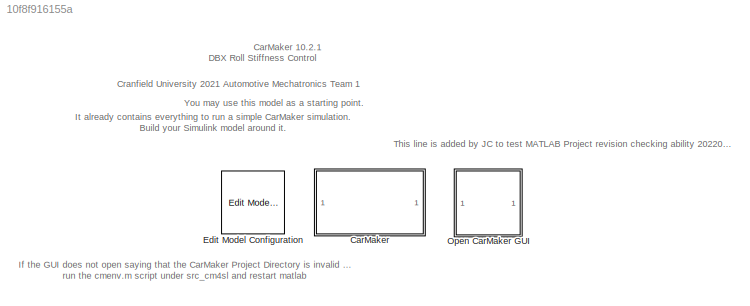
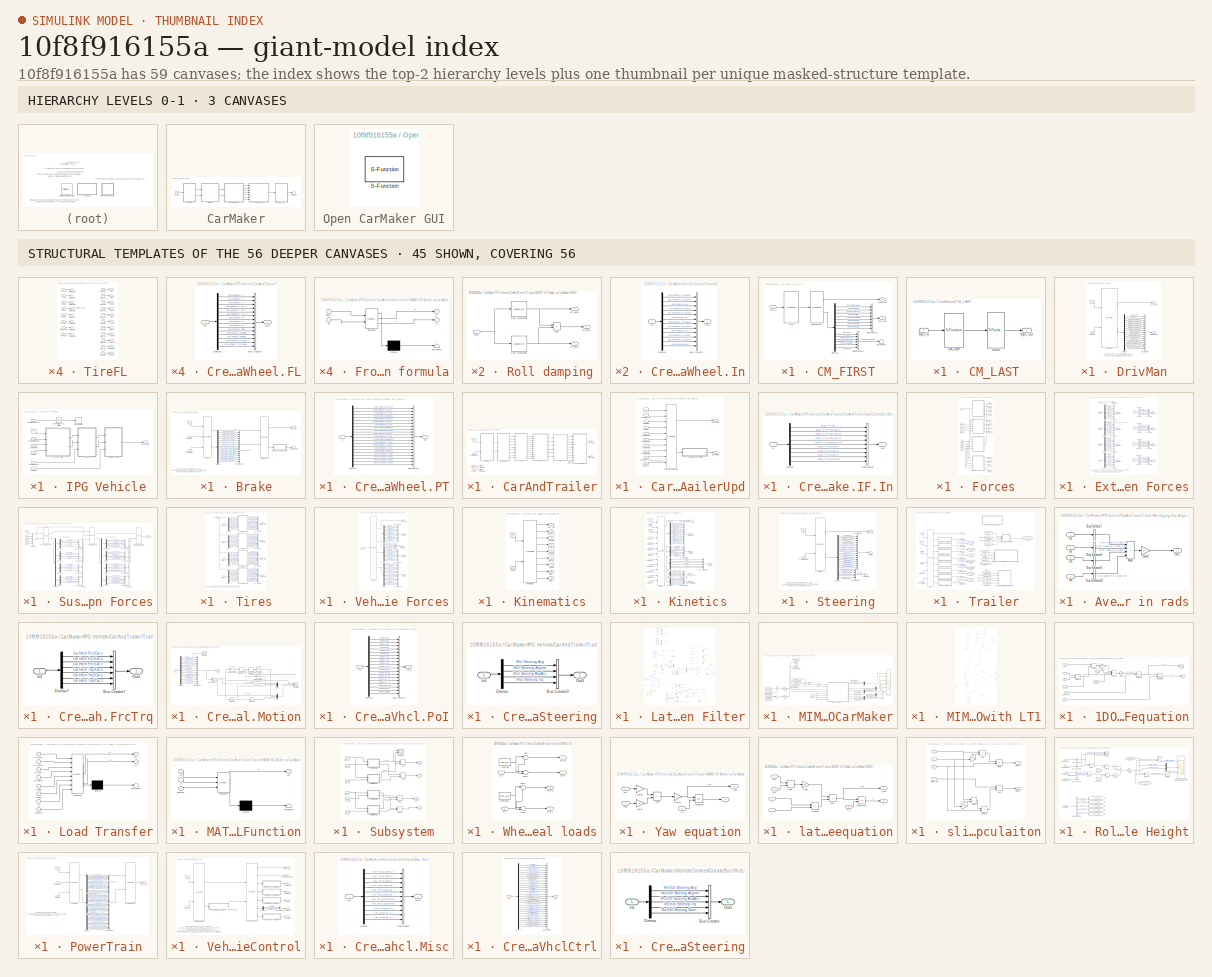
[diagram: thumbnail index - top-2 hierarchy levels (3 canvases) + 45 structural-template representatives of the remaining 56 canvases]
MODEL slx_10f8f916155a
KIND model
CONFIG AbsTol = auto
CONFIG EnableMultiTasking = on
CONFIG FixedStep = 1e-3
CONFIG MaxStep = auto
CONFIG MinStep = auto
CONFIG RelTol = 1e-3
CONFIG SampleTimeConstraint = Unconstrained
CONFIG SolverName = FixedStepAuto
CONFIG StartTime = 0.0
CONFIG StopTime = inf
BLOCK [SubSystem] CarMaker
  Ports = []
  RequestExecContextInheritance = off
  TreatAsAtomicUnit = on
BLOCK [SubSystem] CarMaker/CM_FIRST
  Ports = [1, 2]
  RequestExecContextInheritance = off
BLOCK [BusCreator] CarMaker/CM_FIRST/BusCreator1
  InheritFromInputs = on
  Inputs = 8
  Ports = [8, 1]
BLOCK [BusCreator] CarMaker/CM_FIRST/BusCreator2
  InheritFromInputs = on
  Inputs = 6
  Ports = [6, 1]
BLOCK [Demux] CarMaker/CM_FIRST/Demux1
  DisplayOption = none
  Outputs = 14
  Ports = [1, 14]
BLOCK [Outport] CarMaker/CM_FIRST/Env.Misc
  Port = 2
BLOCK [S-Function] CarMaker/CM_FIRST/Environment
  EnableBusSupport = off
  FunctionName = CM_Sfun
  Parameters = 'Environment'
  Ports = [1, 2]
  SFcnIsStateOwnerBlock = off
  SFunctionDeploymentMode = off
BLOCK [S-Function] CarMaker/CM_FIRST/IoIn
  EnableBusSupport = off
  FunctionName = CM_Sfun
  Parameters = 'IoIn'
  Ports = [1, 1]
  SFcnIsStateOwnerBlock = off
  SFunctionDeploymentMode = off
BLOCK [Inport] CarMaker/CM_FIRST/Sync_In
BLOCK [Outport] CarMaker/CM_FIRST/Sync_Out
BLOCK [Terminator] CarMaker/CM_FIRST/Terminator
BLOCK [SubSystem] CarMaker/CM_LAST
  Ports = [1, 1]
  RequestExecContextInheritance = off
BLOCK [S-Function] CarMaker/CM_LAST/CM_User
  EnableBusSupport = off
  FunctionName = CM_Sfun
  Parameters = 'CM_User'
  Ports = [1, 1]
  SFcnIsStateOwnerBlock = off
  SFunctionDeploymentMode = off
BLOCK [S-Function] CarMaker/CM_LAST/IoOut
  EnableBusSupport = off
  FunctionName = CM_Sfun
  Parameters = 'IoOut'
  Ports = [1, 1]
  SFcnIsStateOwnerBlock = off
  SFunctionDeploymentMode = off
BLOCK [Inport] CarMaker/CM_LAST/Sync_In
BLOCK [Outport] CarMaker/CM_LAST/Sync_Out
BLOCK [SubSystem] CarMaker/DrivMan
  Ports = [2, 2]
  RequestExecContextInheritance = off
BLOCK [BusCreator] CarMaker/DrivMan/BusCreator
  InheritFromInputs = on
  Inputs = 17
  Ports = [17, 1]
BLOCK [Demux] CarMaker/DrivMan/Demux
  DisplayOption = none
  Outputs = 17
  Ports = [1, 17]
BLOCK [S-Function] CarMaker/DrivMan/DrivMan
  EnableBusSupport = off
  FunctionName = CM_Sfun
  Parameters = 'DrivMan'
  Ports = [2, 2]
  SFcnIsStateOwnerBlock = off
  SFunctionDeploymentMode = off
BLOCK [Outport] CarMaker/DrivMan/DrivMan.Out
  Port = 2
BLOCK [Inport] CarMaker/DrivMan/Env.Misc
  Port = 2
BLOCK [Inport] CarMaker/DrivMan/Sync_In
BLOCK [Outport] CarMaker/DrivMan/Sync_Out
BLOCK [Ground] CarMaker/Ground
BLOCK [SubSystem] CarMaker/IPG Vehicle
  Ports = [7, 1]
  RequestExecContextInheritance = off
  TreatAsAtomicUnit = on
BLOCK [SubSystem] CarMaker/IPG Vehicle/Brake
  Ports = [3, 2]
  RequestExecContextInheritance = off
BLOCK [S-Function] CarMaker/IPG Vehicle/Brake/Brake
  EnableBusSupport = off
  FunctionName = CM_Sfun
  Parameters = 'Brake'
  Ports = [3, 2]
  SFcnIsStateOwnerBlock = off
  SFunctionDeploymentMode = off
BLOCK [Inport] CarMaker/IPG Vehicle/Brake/Brake.IF.In
  Port = 2
BLOCK [S-Function] CarMaker/IPG Vehicle/Brake/BrakeUpd
  EnableBusSupport = off
  FunctionName = CM_Sfun
  Parameters = 'BrakeUpd'
  Ports = [2, 2]
  SFcnIsStateOwnerBlock = off
  SFunctionDeploymentMode = off
BLOCK [BusCreator] CarMaker/IPG Vehicle/Brake/BusCreator1
  InheritFromInputs = on
  Inputs = 16
  Ports = [16, 1]
BLOCK [SubSystem] CarMaker/IPG Vehicle/Brake/CreateBus Vhcl.Wheel.PT
  Ports = [1, 1]
  RequestExecContextInheritance = off
BLOCK [BusCreator] CarMaker/IPG Vehicle/Brake/CreateBus Vhcl.Wheel.PT/BusCreator1
  InheritFromInputs = on
  Inputs = 20
  Ports = [20, 1]
BLOCK [Demux] CarMaker/IPG Vehicle/Brake/CreateBus Vhcl.Wheel.PT/Demux1
  DisplayOption = none
  Outputs = 20
  Ports = [1, 20]
BLOCK [Inport] CarMaker/IPG Vehicle/Brake/CreateBus Vhcl.Wheel.PT/In
BLOCK [Outport] CarMaker/IPG Vehicle/Brake/CreateBus Vhcl.Wheel.PT/Out
BLOCK [Demux] CarMaker/IPG Vehicle/Brake/Demux
  DisplayOption = none
  Outputs = 16
  Ports = [1, 16]
BLOCK [Inport] CarMaker/IPG Vehicle/Brake/Sync_In
BLOCK [Outport] CarMaker/IPG Vehicle/Brake/Sync_Out
BLOCK [Outport] CarMaker/IPG Vehicle/Brake/Vhcl.Wheel.PT
  Port = 2
BLOCK [Inport] CarMaker/IPG Vehicle/Brake/VhclCtrl.Brake
  Port = 3
BLOCK [SubSystem] CarMaker/IPG Vehicle/CarAndTrailer
  Ports = [4, 2]
  RequestExecContextInheritance = off
BLOCK [Outport] CarMaker/IPG Vehicle/CarAndTrailer/Brake.IF.In
  Port = 2
BLOCK [SubSystem] CarMaker/IPG Vehicle/CarAndTrailer/CarAndTrailerUpd
  Ports = [10, 2]
  RequestExecContextInheritance = off
BLOCK [Outport] CarMaker/IPG Vehicle/CarAndTrailer/CarAndTrailerUpd/Brake.IF.In
  Port = 2
BLOCK [Inport] CarMaker/IPG Vehicle/CarAndTrailer/CarAndTrailerUpd/Car.Hitch.FrcTrq
  Port = 9
BLOCK [S-Function] CarMaker/IPG Vehicle/CarAndTrailer/CarAndTrailerUpd/CarAndTrailerUpd
  EnableBusSupport = off
  FunctionName = CM_Sfun
  Parameters = 'CarAndTrUpd'
  Ports = [10, 2]
  SFcnIsStateOwnerBlock = off
  SFunctionDeploymentMode = off
BLOCK [SubSystem] CarMaker/IPG Vehicle/CarAndTrailer/CarAndTrailerUpd/CreateBus Brake.IF.In
  Ports = [1, 1]
  RequestExecContextInheritance = off
BLOCK [BusCreator] CarMaker/IPG Vehicle/CarAndTrailer/CarAndTrailerUpd/CreateBus Brake.IF.In/BusCreator
  InheritFromInputs = on
  Inputs = 9
  Ports = [9, 1]
BLOCK [Demux] CarMaker/IPG Vehicle/CarAndTrailer/CarAndTrailerUpd/CreateBus Brake.IF.In/Demux
  DisplayOption = none
  Outputs = 9
  Ports = [1, 9]
BLOCK [Inport] CarMaker/IPG Vehicle/CarAndTrailer/CarAndTrailerUpd/CreateBus Brake.IF.In/In
BLOCK [Outport] CarMaker/IPG Vehicle/CarAndTrailer/CarAndTrailerUpd/CreateBus Brake.IF.In/Out
BLOCK [Inport] CarMaker/IPG Vehicle/CarAndTrailer/CarAndTrailerUpd/Sync_In
BLOCK [Outport] CarMaker/IPG Vehicle/CarAndTrailer/CarAndTrailerUpd/Sync_Out
BLOCK [Inport] CarMaker/IPG Vehicle/CarAndTrailer/CarAndTrailerUpd/Vhcl.Fr1A
  Port = 10
BLOCK [Inport] CarMaker/IPG Vehicle/CarAndTrailer/CarAndTrailerUpd/Vhcl.Motion
  Port = 3
BLOCK [Inport] CarMaker/IPG Vehicle/CarAndTrailer/CarAndTrailerUpd/Vhcl.PoI
  Port = 4
BLOCK [Inport] CarMaker/IPG Vehicle/CarAndTrailer/CarAndTrailerUpd/Vhcl.Steering
  Port = 2
BLOCK [Inport] CarMaker/IPG Vehicle/CarAndTrailer/CarAndTrailerUpd/Vhcl.Wheel.FL
  Port = 5
BLOCK [Inport] CarMaker/IPG Vehicle/CarAndTrailer/CarAndTrailerUpd/Vhcl.Wheel.FR
  Port = 6
BLOCK [Inport] CarMaker/IPG Vehicle/CarAndTrailer/CarAndTrailerUpd/Vhcl.Wheel.RL
  Port = 7
BLOCK [Inport] CarMaker/IPG Vehicle/CarAndTrailer/CarAndTrailerUpd/Vhcl.Wheel.RR
  Port = 8
BLOCK [SubSystem] CarMaker/IPG Vehicle/CarAndTrailer/Forces
  Ports = [9, 12]
  RequestExecContextInheritance = off
BLOCK [Outport] CarMaker/IPG Vehicle/CarAndTrailer/Forces/Car.Aero
  Port = 3
BLOCK [Outport] CarMaker/IPG Vehicle/CarAndTrailer/Forces/Car.Load
  Port = 4
BLOCK [Outport] CarMaker/IPG Vehicle/CarAndTrailer/Forces/Car.Virtual
  Port = 2
BLOCK [SubSystem] CarMaker/IPG Vehicle/CarAndTrailer/Forces/External Suspension Forces
  Ports = [5, 4]
  RequestExecContextInheritance = off
BLOCK [BusCreator] CarMaker/IPG Vehicle/CarAndTrailer/Forces/External Suspension Forces/Bus Creator
  DisplayOption = bar
  InheritFromInputs = on
  Inputs = 8
  Ports = [8, 1]
BLOCK [BusCreator] CarMaker/IPG Vehicle/CarAndTrailer/Forces/External Suspension Forces/Bus Creator1
  DisplayOption = bar
  InheritFromInputs = on
  Inputs = 4
  Ports = [4, 1]
BLOCK [BusCreator] CarMaker/IPG Vehicle/CarAndTrailer/Forces/External Suspension Forces/Bus Creator2
  DisplayOption = bar
  InheritFromInputs = on
  Inputs = 4
  Ports = [4, 1]
BLOCK [BusCreator] CarMaker/IPG Vehicle/CarAndTrailer/Forces/External Suspension Forces/Bus Creator3
  DisplayOption = bar
  InheritFromInputs = on
  Inputs = 4
  Ports = [4, 1]
BLOCK [BusCreator] CarMaker/IPG Vehicle/CarAndTrailer/Forces/External Suspension Forces/Bus Creator4
  DisplayOption = bar
  InheritFromInputs = on
  Inputs = 4
  Ports = [4, 1]
BLOCK [BusCreator] CarMaker/IPG Vehicle/CarAndTrailer/Forces/External Suspension Forces/Bus Creator5
  DisplayOption = bar
  InheritFromInputs = on
  Inputs = 8
  Ports = [8, 1]
BLOCK [BusCreator] CarMaker/IPG Vehicle/CarAndTrailer/Forces/External Suspension Forces/Bus Creator6
  DisplayOption = bar
  InheritFromInputs = on
  Inputs = 8
  Ports = [8, 1]
BLOCK [BusCreator] CarMaker/IPG Vehicle/CarAndTrailer/Forces/External Suspension Forces/Bus Creator7
  DisplayOption = bar
  InheritFromInputs = on
  Inputs = 8
  Ports = [8, 1]
BLOCK [Demux] CarMaker/IPG Vehicle/CarAndTrailer/Forces/External Suspension Forces/Demux1
  DisplayOption = none
  Outputs = 8
  Ports = [1, 8]
BLOCK [Demux] CarMaker/IPG Vehicle/CarAndTrailer/Forces/External Suspension Forces/Demux2
  DisplayOption = none
  Outputs = 8
  Ports = [1, 8]
BLOCK [Demux] CarMaker/IPG Vehicle/CarAndTrailer/Forces/External Suspension Forces/Demux3
  DisplayOption = none
  Outputs = 8
  Ports = [1, 8]
BLOCK [Demux] CarMaker/IPG Vehicle/CarAndTrailer/Forces/External Suspension Forces/Demux4
  DisplayOption = none
  Outputs = 8
  Ports = [1, 8]
BLOCK [Outport] CarMaker/IPG Vehicle/CarAndTrailer/Forces/External Suspension Forces/FBuf_ext
  Port = 4
BLOCK [Outport] CarMaker/IPG Vehicle/CarAndTrailer/Forces/External Suspension Forces/FDamp_ext
  Port = 2
BLOCK [Outport] CarMaker/IPG Vehicle/CarAndTrailer/Forces/External Suspension Forces/FSpring_ext
BLOCK [Outport] CarMaker/IPG Vehicle/CarAndTrailer/Forces/External Suspension Forces/FStabi_ext
  Port = 3
BLOCK [Ground] CarMaker/IPG Vehicle/CarAndTrailer/Forces/External Suspension Forces/Ground
BLOCK [Ground] CarMaker/IPG Vehicle/CarAndTrailer/Forces/External Suspension Forces/Ground1
BLOCK [Ground] CarMaker/IPG Vehicle/CarAndTrailer/Forces/External Suspension Forces/Ground10
BLOCK [Ground] CarMaker/IPG Vehicle/CarAndTrailer/Forces/External Suspension Forces/Ground11
BLOCK [Ground] CarMaker/IPG Vehicle/CarAndTrailer/Forces/External Suspension Forces/Ground12
BLOCK [Ground] CarMaker/IPG Vehicle/CarAndTrailer/Forces/External Suspension Forces/Ground13
BLOCK [Ground] CarMaker/IPG Vehicle/CarAndTrailer/Forces/External Suspension Forces/Ground14
BLOCK [Ground] CarMaker/IPG Vehicle/CarAndTrailer/Forces/External Suspension Forces/Ground15
BLOCK [Ground] CarMaker/IPG Vehicle/CarAndTrailer/Forces/External Suspension Forces/Ground2
BLOCK [Ground] CarMaker/IPG Vehicle/CarAndTrailer/Forces/External Suspension Forces/Ground3
BLOCK [Ground] CarMaker/IPG Vehicle/CarAndTrailer/Forces/External Suspension Forces/Ground4
BLOCK [Ground] CarMaker/IPG Vehicle/CarAndTrailer/Forces/External Suspension Forces/Ground5
BLOCK [Ground] CarMaker/IPG Vehicle/CarAndTrailer/Forces/External Suspension Forces/Ground6
BLOCK [Ground] CarMaker/IPG Vehicle/CarAndTrailer/Forces/External Suspension Forces/Ground7
BLOCK [Ground] CarMaker/IPG Vehicle/CarAndTrailer/Forces/External Suspension Forces/Ground8
BLOCK [Ground] CarMaker/IPG Vehicle/CarAndTrailer/Forces/External Suspension Forces/Ground9
BLOCK [Inport] CarMaker/IPG Vehicle/CarAndTrailer/Forces/External Suspension Forces/Sync_In
BLOCK [Terminator] CarMaker/IPG Vehicle/CarAndTrailer/Forces/External Suspension Forces/Terminator1
BLOCK [Terminator] CarMaker/IPG Vehicle/CarAndTrailer/Forces/External Suspension Forces/Terminator12
BLOCK [Terminator] CarMaker/IPG Vehicle/CarAndTrailer/Forces/External Suspension Forces/Terminator2
BLOCK [Terminator] CarMaker/IPG Vehicle/CarAndTrailer/Forces/External Suspension Forces/Terminator3
BLOCK [Terminator] CarMaker/IPG Vehicle/CarAndTrailer/Forces/External Suspension Forces/Terminator4
BLOCK [Inport] CarMaker/IPG Vehicle/CarAndTrailer/Forces/External Suspension Forces/lBuf
  Port = 5
BLOCK [Inport] CarMaker/IPG Vehicle/CarAndTrailer/Forces/External Suspension Forces/lSpring
  Port = 2
BLOCK [Inport] CarMaker/IPG Vehicle/CarAndTrailer/Forces/External Suspension Forces/lStabi
  Port = 4
BLOCK [Inport] CarMaker/IPG Vehicle/CarAndTrailer/Forces/External Suspension Forces/vDamp
  Port = 3
BLOCK [Outport] CarMaker/IPG Vehicle/CarAndTrailer/Forces/FBuf_ext
  Port = 12
BLOCK [Outport] CarMaker/IPG Vehicle/CarAndTrailer/Forces/FDamp_ext
  Port = 10
BLOCK [Outport] CarMaker/IPG Vehicle/CarAndTrailer/Forces/FSpring_ext
  Port = 9
BLOCK [Outport] CarMaker/IPG Vehicle/CarAndTrailer/Forces/FStabi_ext
  Port = 11
BLOCK [SubSystem] CarMaker/IPG Vehicle/CarAndTrailer/Forces/Suspension Forces
  Ports = [5, 1]
  RequestExecContextInheritance = off
BLOCK [BusCreator] CarMaker/IPG Vehicle/CarAndTrailer/Forces/Suspension Forces/Bus Creator
  DisplayOption = bar
  InheritFromInputs = on
  Inputs = 4
  Ports = [4, 1]
BLOCK [BusCreator] CarMaker/IPG Vehicle/CarAndTrailer/Forces/Suspension Forces/Bus Creator1
  DisplayOption = bar
  InheritFromInputs = on
  Inputs = 4
  Ports = [4, 1]
BLOCK [BusCreator] CarMaker/IPG Vehicle/CarAndTrailer/Forces/Suspension Forces/Bus Creator10
  DisplayOption = bar
  InheritFromInputs = on
  Inputs = 4
  Ports = [4, 1]
BLOCK [BusCreator] CarMaker/IPG Vehicle/CarAndTrailer/Forces/Suspension Forces/Bus Creator2
  DisplayOption = bar
  InheritFromInputs = on
  Inputs = 4
  Ports = [4, 1]
BLOCK [BusCreator] CarMaker/IPG Vehicle/CarAndTrailer/Forces/Suspension Forces/Bus Creator3
  DisplayOption = bar
  InheritFromInputs = on
  Inputs = 4
  Ports = [4, 1]
BLOCK [BusCreator] CarMaker/IPG Vehicle/CarAndTrailer/Forces/Suspension Forces/Bus Creator4
  DisplayOption = bar
  InheritFromInputs = on
  Inputs = 6
  Ports = [6, 1]
BLOCK [BusCreator] CarMaker/IPG Vehicle/CarAndTrailer/Forces/Suspension Forces/Bus Creator5
  DisplayOption = bar
  InheritFromInputs = on
  Inputs = 6
  Ports = [6, 1]
BLOCK [BusCreator] CarMaker/IPG Vehicle/CarAndTrailer/Forces/Suspension Forces/Bus Creator6
  DisplayOption = bar
  InheritFromInputs = on
  Inputs = 6
  Ports = [6, 1]
BLOCK [BusCreator] CarMaker/IPG Vehicle/CarAndTrailer/Forces/Suspension Forces/Bus Creator7
  DisplayOption = bar
  InheritFromInputs = on
  Inputs = 6
  Ports = [6, 1]
BLOCK [BusCreator] CarMaker/IPG Vehicle/CarAndTrailer/Forces/Suspension Forces/Bus Creator8
  DisplayOption = bar
  InheritFromInputs = on
  Inputs = 4
  Ports = [4, 1]
BLOCK [BusCreator] CarMaker/IPG Vehicle/CarAndTrailer/Forces/Suspension Forces/Bus Creator9
  DisplayOption = bar
  InheritFromInputs = on
  Inputs = 4
  Ports = [4, 1]
BLOCK [Demux] CarMaker/IPG Vehicle/CarAndTrailer/Forces/Suspension Forces/Demux
  Ports = [1, 4]
BLOCK [Demux] CarMaker/IPG Vehicle/CarAndTrailer/Forces/Suspension Forces/Demux1
  Ports = [1, 4]
BLOCK [Demux] CarMaker/IPG Vehicle/CarAndTrailer/Forces/Suspension Forces/Demux2
  Ports = [1, 4]
BLOCK [Demux] CarMaker/IPG Vehicle/CarAndTrailer/Forces/Suspension Forces/Demux3
  Ports = [1, 4]
BLOCK [Demux] CarMaker/IPG Vehicle/CarAndTrailer/Forces/Suspension Forces/Demux4
  Ports = [1, 4]
BLOCK [Demux] CarMaker/IPG Vehicle/CarAndTrailer/Forces/Suspension Forces/Demux5
  Ports = [1, 4]
BLOCK [Demux] CarMaker/IPG Vehicle/CarAndTrailer/Forces/Suspension Forces/Demux6
  Outputs = 6
  Ports = [1, 6]
BLOCK [Demux] CarMaker/IPG Vehicle/CarAndTrailer/Forces/Suspension Forces/Demux7
  Outputs = 6
  Ports = [1, 6]
BLOCK [Demux] CarMaker/IPG Vehicle/CarAndTrailer/Forces/Suspension Forces/Demux8
  Outputs = 6
  Ports = [1, 6]
BLOCK [Demux] CarMaker/IPG Vehicle/CarAndTrailer/Forces/Suspension Forces/Demux9
  Outputs = 6
  Ports = [1, 6]
BLOCK [S-Function] CarMaker/IPG Vehicle/CarAndTrailer/Forces/Suspension Forces/Suspension Control Unit
  EnableBusSupport = off
  FunctionName = CM_Sfun
  Parameters = 'ForcesSuspControl'
  Ports = [2, 2]
  SFcnIsStateOwnerBlock = off
  SFunctionDeploymentMode = off
BLOCK [S-Function] CarMaker/IPG Vehicle/CarAndTrailer/Forces/Suspension Forces/Suspension Force Elements
  EnableBusSupport = off
  FunctionName = CM_Sfun
  Parameters = 'ForcesSusp'
  Ports = [3, 2]
  SFcnIsStateOwnerBlock = off
  SFunctionDeploymentMode = off
BLOCK [S-Function] CarMaker/IPG Vehicle/CarAndTrailer/Forces/Suspension Forces/Suspension Force Elements Update
  EnableBusSupport = off
  FunctionName = CM_Sfun
  Parameters = 'ForcesSuspUpd'
  Ports = [2, 1]
  SFcnIsStateOwnerBlock = off
  SFunctionDeploymentMode = off
BLOCK [Inport] CarMaker/IPG Vehicle/CarAndTrailer/Forces/Suspension Forces/Sync_In
BLOCK [Outport] CarMaker/IPG Vehicle/CarAndTrailer/Forces/Suspension Forces/Sync_Out
BLOCK [Inport] CarMaker/IPG Vehicle/CarAndTrailer/Forces/Suspension Forces/lBuf
  Port = 5
BLOCK [Inport] CarMaker/IPG Vehicle/CarAndTrailer/Forces/Suspension Forces/lSpring
  Port = 2
BLOCK [Inport] CarMaker/IPG Vehicle/CarAndTrailer/Forces/Suspension Forces/lStabi
  Port = 4
BLOCK [Inport] CarMaker/IPG Vehicle/CarAndTrailer/Forces/Suspension Forces/vDamp
  Port = 3
BLOCK [Inport] CarMaker/IPG Vehicle/CarAndTrailer/Forces/Sync_In
BLOCK [Outport] CarMaker/IPG Vehicle/CarAndTrailer/Forces/Sync_Out
BLOCK [Inport] CarMaker/IPG Vehicle/CarAndTrailer/Forces/TireFL_In
  Port = 2
BLOCK [Outport] CarMaker/IPG Vehicle/CarAndTrailer/Forces/TireFL_Out
  Port = 5
BLOCK [Inport] CarMaker/IPG Vehicle/CarAndTrailer/Forces/TireFR_In
  Port = 3
BLOCK [Outport] CarMaker/IPG Vehicle/CarAndTrailer/Forces/TireFR_Out
  Port = 6
BLOCK [Inport] CarMaker/IPG Vehicle/CarAndTrailer/Forces/TireRL_In
  Port = 4
BLOCK [Outport] CarMaker/IPG Vehicle/CarAndTrailer/Forces/TireRL_Out
  Port = 7
BLOCK [Inport] CarMaker/IPG Vehicle/CarAndTrailer/Forces/TireRR_In
  Port = 5
BLOCK [Outport] CarMaker/IPG Vehicle/CarAndTrailer/Forces/TireRR_Out
  Port = 8
BLOCK [SubSystem] CarMaker/IPG Vehicle/CarAndTrailer/Forces/Tires
  Ports = [5, 4]
  RequestExecContextInheritance = off
BLOCK [BusCreator] CarMaker/IPG Vehicle/CarAndTrailer/Forces/Tires/Bus Creator1
  DisplayOption = bar
  InheritFromInputs = on
  Inputs = 11
  Ports = [11, 1]
BLOCK [BusCreator] CarMaker/IPG Vehicle/CarAndTrailer/Forces/Tires/Bus Creator2
  DisplayOption = bar
  InheritFromInputs = on
  Inputs = 11
  Ports = [11, 1]
BLOCK [BusCreator] CarMaker/IPG Vehicle/CarAndTrailer/Forces/Tires/Bus Creator3
  DisplayOption = bar
  InheritFromInputs = on
  Inputs = 11
  Ports = [11, 1]
BLOCK [BusCreator] CarMaker/IPG Vehicle/CarAndTrailer/Forces/Tires/Bus Creator4
  DisplayOption = bar
  InheritFromInputs = on
  Inputs = 11
  Ports = [11, 1]
BLOCK [Demux] CarMaker/IPG Vehicle/CarAndTrailer/Forces/Tires/Demux1
  DisplayOption = none
  Outputs = 7
  Ports = [1, 7]
BLOCK [Demux] CarMaker/IPG Vehicle/CarAndTrailer/Forces/Tires/Demux2
  DisplayOption = none
  Outputs = 7
  Ports = [1, 7]
BLOCK [Demux] CarMaker/IPG Vehicle/CarAndTrailer/Forces/Tires/Demux3
  DisplayOption = none
  Outputs = 7
  Ports = [1, 7]
BLOCK [Demux] CarMaker/IPG Vehicle/CarAndTrailer/Forces/Tires/Demux8
  DisplayOption = none
  Outputs = 7
  Ports = [1, 7]
BLOCK [Inport] CarMaker/IPG Vehicle/CarAndTrailer/Forces/Tires/Sync_In
BLOCK [SubSystem] CarMaker/IPG Vehicle/CarAndTrailer/Forces/Tires/TireFL
  Ports = [8, 11]
  RequestExecContextInheritance = off
BLOCK [Outport] CarMaker/IPG Vehicle/CarAndTrailer/Forces/Tires/TireFL/AlignTrq
  Port = 11
BLOCK [Outport] CarMaker/IPG Vehicle/CarAndTrailer/Forces/Tires/TireFL/Alpha
  Port = 2
BLOCK [Ground] CarMaker/IPG Vehicle/CarAndTrailer/Forces/Tires/TireFL/Ground1
BLOCK [Ground] CarMaker/IPG Vehicle/CarAndTrailer/Forces/Tires/TireFL/Ground10
BLOCK [Ground] CarMaker/IPG Vehicle/CarAndTrailer/Forces/Tires/TireFL/Ground11
BLOCK [Ground] CarMaker/IPG Vehicle/CarAndTrailer/Forces/Tires/TireFL/Ground2
BLOCK [Ground] CarMaker/IPG Vehicle/CarAndTrailer/Forces/Tires/TireFL/Ground3
BLOCK [Ground] CarMaker/IPG Vehicle/CarAndTrailer/Forces/Tires/TireFL/Ground4
BLOCK [Ground] CarMaker/IPG Vehicle/CarAndTrailer/Forces/Tires/TireFL/Ground5
BLOCK [Ground] CarMaker/IPG Vehicle/CarAndTrailer/Forces/Tires/TireFL/Ground6
BLOCK [Ground] CarMaker/IPG Vehicle/CarAndTrailer/Forces/Tires/TireFL/Ground7
BLOCK [Ground] CarMaker/IPG Vehicle/CarAndTrailer/Forces/Tires/TireFL/Ground8
BLOCK [Ground] CarMaker/IPG Vehicle/CarAndTrailer/Forces/Tires/TireFL/Ground9
BLOCK [Inport] CarMaker/IPG Vehicle/CarAndTrailer/Forces/Tires/TireFL/InclinAngle
  Port = 7
BLOCK [Inport] CarMaker/IPG Vehicle/CarAndTrailer/Forces/Tires/TireFL/Load
  Port = 2
BLOCK [Outport] CarMaker/IPG Vehicle/CarAndTrailer/Forces/Tires/TireFL/LoadFrc
  Port = 8
BLOCK [Outport] CarMaker/IPG Vehicle/CarAndTrailer/Forces/Tires/TireFL/LongFrc
  Port = 6
BLOCK [Outport] CarMaker/IPG Vehicle/CarAndTrailer/Forces/Tires/TireFL/OverturnTrq
  Port = 9
BLOCK [Inport] CarMaker/IPG Vehicle/CarAndTrailer/Forces/Tires/TireFL/Rim_rotv
  Port = 5
BLOCK [Inport] CarMaker/IPG Vehicle/CarAndTrailer/Forces/Tires/TireFL/Rim_turnv
  Port = 6
BLOCK [Outport] CarMaker/IPG Vehicle/CarAndTrailer/Forces/Tires/TireFL/RollResist
  Port = 10
BLOCK [Outport] CarMaker/IPG Vehicle/CarAndTrailer/Forces/Tires/TireFL/SideFrc
  Port = 7
BLOCK [Outport] CarMaker/IPG Vehicle/CarAndTrailer/Forces/Tires/TireFL/Slp
BLOCK [Inport] CarMaker/IPG Vehicle/CarAndTrailer/Forces/Tires/TireFL/Sync_In
BLOCK [Terminator] CarMaker/IPG Vehicle/CarAndTrailer/Forces/Tires/TireFL/Terminator
BLOCK [Terminator] CarMaker/IPG Vehicle/CarAndTrailer/Forces/Tires/TireFL/Terminator1
BLOCK [Terminator] CarMaker/IPG Vehicle/CarAndTrailer/Forces/Tires/TireFL/Terminator12
BLOCK [Terminator] CarMaker/IPG Vehicle/CarAndTrailer/Forces/Tires/TireFL/Terminator2
BLOCK [Terminator] CarMaker/IPG Vehicle/CarAndTrailer/Forces/Tires/TireFL/Terminator3
BLOCK [Terminator] CarMaker/IPG Vehicle/CarAndTrailer/Forces/Tires/TireFL/Terminator4
BLOCK [Terminator] CarMaker/IPG Vehicle/CarAndTrailer/Forces/Tires/TireFL/Terminator5
BLOCK [Terminator] CarMaker/IPG Vehicle/CarAndTrailer/Forces/Tires/TireFL/Terminator6
BLOCK [Outport] CarMaker/IPG Vehicle/CarAndTrailer/Forces/Tires/TireFL/TurnSlp
  Port = 3
BLOCK [Inport] CarMaker/IPG Vehicle/CarAndTrailer/Forces/Tires/TireFL/muRoad
  Port = 8
BLOCK [Outport] CarMaker/IPG Vehicle/CarAndTrailer/Forces/Tires/TireFL/rBelt_eff
  Port = 4
BLOCK [Outport] CarMaker/IPG Vehicle/CarAndTrailer/Forces/Tires/TireFL/vBelt
  Port = 5
BLOCK [Inport] CarMaker/IPG Vehicle/CarAndTrailer/Forces/Tires/TireFL/vxtrans
  Port = 3
BLOCK [Inport] CarMaker/IPG Vehicle/CarAndTrailer/Forces/Tires/TireFL/vytrans
  Port = 4
BLOCK [Inport] CarMaker/IPG Vehicle/CarAndTrailer/Forces/Tires/TireFL_In
  Port = 2
BLOCK [Outport] CarMaker/IPG Vehicle/CarAndTrailer/Forces/Tires/TireFL_Out
BLOCK [SubSystem] CarMaker/IPG Vehicle/CarAndTrailer/Forces/Tires/TireFR
  Ports = [8, 11]
  RequestExecContextInheritance = off
BLOCK [Outport] CarMaker/IPG Vehicle/CarAndTrailer/Forces/Tires/TireFR/AlignTrq
  Port = 11
BLOCK [Outport] CarMaker/IPG Vehicle/CarAndTrailer/Forces/Tires/TireFR/Alpha
  Port = 2
BLOCK [Ground] CarMaker/IPG Vehicle/CarAndTrailer/Forces/Tires/TireFR/Ground1
BLOCK [Ground] CarMaker/IPG Vehicle/CarAndTrailer/Forces/Tires/TireFR/Ground10
BLOCK [Ground] CarMaker/IPG Vehicle/CarAndTrailer/Forces/Tires/TireFR/Ground11
BLOCK [Ground] CarMaker/IPG Vehicle/CarAndTrailer/Forces/Tires/TireFR/Ground2
BLOCK [Ground] CarMaker/IPG Vehicle/CarAndTrailer/Forces/Tires/TireFR/Ground3
BLOCK [Ground] CarMaker/IPG Vehicle/CarAndTrailer/Forces/Tires/TireFR/Ground4
BLOCK [Ground] CarMaker/IPG Vehicle/CarAndTrailer/Forces/Tires/TireFR/Ground5
BLOCK [Ground] CarMaker/IPG Vehicle/CarAndTrailer/Forces/Tires/TireFR/Ground6
BLOCK [Ground] CarMaker/IPG Vehicle/CarAndTrailer/Forces/Tires/TireFR/Ground7
BLOCK [Ground] CarMaker/IPG Vehicle/CarAndTrailer/Forces/Tires/TireFR/Ground8
BLOCK [Ground] CarMaker/IPG Vehicle/CarAndTrailer/Forces/Tires/TireFR/Ground9
BLOCK [Inport] CarMaker/IPG Vehicle/CarAndTrailer/Forces/Tires/TireFR/InclinAngle
  Port = 7
BLOCK [Inport] CarMaker/IPG Vehicle/CarAndTrailer/Forces/Tires/TireFR/Load
  Port = 2
BLOCK [Outport] CarMaker/IPG Vehicle/CarAndTrailer/Forces/Tires/TireFR/LoadFrc
  Port = 8
BLOCK [Outport] CarMaker/IPG Vehicle/CarAndTrailer/Forces/Tires/TireFR/LongFrc
  Port = 6
BLOCK [Outport] CarMaker/IPG Vehicle/CarAndTrailer/Forces/Tires/TireFR/OverturnTrq
  Port = 9
BLOCK [Inport] CarMaker/IPG Vehicle/CarAndTrailer/Forces/Tires/TireFR/Rim_rotv
  Port = 5
BLOCK [Inport] CarMaker/IPG Vehicle/CarAndTrailer/Forces/Tires/TireFR/Rim_turnv
  Port = 6
BLOCK [Outport] CarMaker/IPG Vehicle/CarAndTrailer/Forces/Tires/TireFR/RollResist
  Port = 10
BLOCK [Outport] CarMaker/IPG Vehicle/CarAndTrailer/Forces/Tires/TireFR/SideFrc
  Port = 7
BLOCK [Outport] CarMaker/IPG Vehicle/CarAndTrailer/Forces/Tires/TireFR/Slp
BLOCK [Inport] CarMaker/IPG Vehicle/CarAndTrailer/Forces/Tires/TireFR/Sync_In
BLOCK [Terminator] CarMaker/IPG Vehicle/CarAndTrailer/Forces/Tires/TireFR/Terminator
BLOCK [Terminator] CarMaker/IPG Vehicle/CarAndTrailer/Forces/Tires/TireFR/Terminator1
BLOCK [Terminator] CarMaker/IPG Vehicle/CarAndTrailer/Forces/Tires/TireFR/Terminator12
BLOCK [Terminator] CarMaker/IPG Vehicle/CarAndTrailer/Forces/Tires/TireFR/Terminator2
BLOCK [Terminator] CarMaker/IPG Vehicle/CarAndTrailer/Forces/Tires/TireFR/Terminator3
BLOCK [Terminator] CarMaker/IPG Vehicle/CarAndTrailer/Forces/Tires/TireFR/Terminator4
BLOCK [Terminator] CarMaker/IPG Vehicle/CarAndTrailer/Forces/Tires/TireFR/Terminator5
BLOCK [Terminator] CarMaker/IPG Vehicle/CarAndTrailer/Forces/Tires/TireFR/Terminator6
BLOCK [Outport] CarMaker/IPG Vehicle/CarAndTrailer/Forces/Tires/TireFR/TurnSlp
  Port = 3
BLOCK [Inport] CarMaker/IPG Vehicle/CarAndTrailer/Forces/Tires/TireFR/muRoad
  Port = 8
BLOCK [Outport] CarMaker/IPG Vehicle/CarAndTrailer/Forces/Tires/TireFR/rBelt_eff
  Port = 4
BLOCK [Outport] CarMaker/IPG Vehicle/CarAndTrailer/Forces/Tires/TireFR/vBelt
  Port = 5
BLOCK [Inport] CarMaker/IPG Vehicle/CarAndTrailer/Forces/Tires/TireFR/vxtrans
  Port = 3
BLOCK [Inport] CarMaker/IPG Vehicle/CarAndTrailer/Forces/Tires/TireFR/vytrans
  Port = 4
BLOCK [Inport] CarMaker/IPG Vehicle/CarAndTrailer/Forces/Tires/TireFR_In
  Port = 3
BLOCK [Outport] CarMaker/IPG Vehicle/CarAndTrailer/Forces/Tires/TireFR_Out
  Port = 2
BLOCK [SubSystem] CarMaker/IPG Vehicle/CarAndTrailer/Forces/Tires/TireRL
  Ports = [8, 11]
  RequestExecContextInheritance = off
BLOCK [Outport] CarMaker/IPG Vehicle/CarAndTrailer/Forces/Tires/TireRL/AlignTrq
  Port = 11
BLOCK [Outport] CarMaker/IPG Vehicle/CarAndTrailer/Forces/Tires/TireRL/Alpha
  Port = 2
BLOCK [Ground] CarMaker/IPG Vehicle/CarAndTrailer/Forces/Tires/TireRL/Ground1
BLOCK [Ground] CarMaker/IPG Vehicle/CarAndTrailer/Forces/Tires/TireRL/Ground10
BLOCK [Ground] CarMaker/IPG Vehicle/CarAndTrailer/Forces/Tires/TireRL/Ground11
BLOCK [Ground] CarMaker/IPG Vehicle/CarAndTrailer/Forces/Tires/TireRL/Ground2
BLOCK [Ground] CarMaker/IPG Vehicle/CarAndTrailer/Forces/Tires/TireRL/Ground3
BLOCK [Ground] CarMaker/IPG Vehicle/CarAndTrailer/Forces/Tires/TireRL/Ground4
BLOCK [Ground] CarMaker/IPG Vehicle/CarAndTrailer/Forces/Tires/TireRL/Ground5
BLOCK [Ground] CarMaker/IPG Vehicle/CarAndTrailer/Forces/Tires/TireRL/Ground6
BLOCK [Ground] CarMaker/IPG Vehicle/CarAndTrailer/Forces/Tires/TireRL/Ground7
BLOCK [Ground] CarMaker/IPG Vehicle/CarAndTrailer/Forces/Tires/TireRL/Ground8
BLOCK [Ground] CarMaker/IPG Vehicle/CarAndTrailer/Forces/Tires/TireRL/Ground9
BLOCK [Inport] CarMaker/IPG Vehicle/CarAndTrailer/Forces/Tires/TireRL/InclinAngle
  Port = 7
BLOCK [Inport] CarMaker/IPG Vehicle/CarAndTrailer/Forces/Tires/TireRL/Load
  Port = 2
BLOCK [Outport] CarMaker/IPG Vehicle/CarAndTrailer/Forces/Tires/TireRL/LoadFrc
  Port = 8
BLOCK [Outport] CarMaker/IPG Vehicle/CarAndTrailer/Forces/Tires/TireRL/LongFrc
  Port = 6
BLOCK [Outport] CarMaker/IPG Vehicle/CarAndTrailer/Forces/Tires/TireRL/OverturnTrq
  Port = 9
BLOCK [Inport] CarMaker/IPG Vehicle/CarAndTrailer/Forces/Tires/TireRL/Rim_rotv
  Port = 5
BLOCK [Inport] CarMaker/IPG Vehicle/CarAndTrailer/Forces/Tires/TireRL/Rim_turnv
  Port = 6
BLOCK [Outport] CarMaker/IPG Vehicle/CarAndTrailer/Forces/Tires/TireRL/RollResist
  Port = 10
BLOCK [Outport] CarMaker/IPG Vehicle/CarAndTrailer/Forces/Tires/TireRL/SideFrc
  Port = 7
BLOCK [Outport] CarMaker/IPG Vehicle/CarAndTrailer/Forces/Tires/TireRL/Slp
BLOCK [Inport] CarMaker/IPG Vehicle/CarAndTrailer/Forces/Tires/TireRL/Sync_In
BLOCK [Terminator] CarMaker/IPG Vehicle/CarAndTrailer/Forces/Tires/TireRL/Terminator
BLOCK [Terminator] CarMaker/IPG Vehicle/CarAndTrailer/Forces/Tires/TireRL/Terminator1
BLOCK [Terminator] CarMaker/IPG Vehicle/CarAndTrailer/Forces/Tires/TireRL/Terminator12
BLOCK [Terminator] CarMaker/IPG Vehicle/CarAndTrailer/Forces/Tires/TireRL/Terminator2
BLOCK [Terminator] CarMaker/IPG Vehicle/CarAndTrailer/Forces/Tires/TireRL/Terminator3
BLOCK [Terminator] CarMaker/IPG Vehicle/CarAndTrailer/Forces/Tires/TireRL/Terminator4
BLOCK [Terminator] CarMaker/IPG Vehicle/CarAndTrailer/Forces/Tires/TireRL/Terminator5
BLOCK [Terminator] CarMaker/IPG Vehicle/CarAndTrailer/Forces/Tires/TireRL/Terminator6
BLOCK [Outport] CarMaker/IPG Vehicle/CarAndTrailer/Forces/Tires/TireRL/TurnSlp
  Port = 3
BLOCK [Inport] CarMaker/IPG Vehicle/CarAndTrailer/Forces/Tires/TireRL/muRoad
  Port = 8
BLOCK [Outport] CarMaker/IPG Vehicle/CarAndTrailer/Forces/Tires/TireRL/rBelt_eff
  Port = 4
BLOCK [Outport] CarMaker/IPG Vehicle/CarAndTrailer/Forces/Tires/TireRL/vBelt
  Port = 5
BLOCK [Inport] CarMaker/IPG Vehicle/CarAndTrailer/Forces/Tires/TireRL/vxtrans
  Port = 3
BLOCK [Inport] CarMaker/IPG Vehicle/CarAndTrailer/Forces/Tires/TireRL/vytrans
  Port = 4
BLOCK [Inport] CarMaker/IPG Vehicle/CarAndTrailer/Forces/Tires/TireRL_In
  Port = 4
BLOCK [Outport] CarMaker/IPG Vehicle/CarAndTrailer/Forces/Tires/TireRL_Out
  Port = 3
BLOCK [SubSystem] CarMaker/IPG Vehicle/CarAndTrailer/Forces/Tires/TireRR
  Ports = [8, 11]
  RequestExecContextInheritance = off
BLOCK [Outport] CarMaker/IPG Vehicle/CarAndTrailer/Forces/Tires/TireRR/AlignTrq
  Port = 11
BLOCK [Outport] CarMaker/IPG Vehicle/CarAndTrailer/Forces/Tires/TireRR/Alpha
  Port = 2
BLOCK [Ground] CarMaker/IPG Vehicle/CarAndTrailer/Forces/Tires/TireRR/Ground1
BLOCK [Ground] CarMaker/IPG Vehicle/CarAndTrailer/Forces/Tires/TireRR/Ground10
BLOCK [Ground] CarMaker/IPG Vehicle/CarAndTrailer/Forces/Tires/TireRR/Ground11
BLOCK [Ground] CarMaker/IPG Vehicle/CarAndTrailer/Forces/Tires/TireRR/Ground2
BLOCK [Ground] CarMaker/IPG Vehicle/CarAndTrailer/Forces/Tires/TireRR/Ground3
BLOCK [Ground] CarMaker/IPG Vehicle/CarAndTrailer/Forces/Tires/TireRR/Ground4
BLOCK [Ground] CarMaker/IPG Vehicle/CarAndTrailer/Forces/Tires/TireRR/Ground5
BLOCK [Ground] CarMaker/IPG Vehicle/CarAndTrailer/Forces/Tires/TireRR/Ground6
BLOCK [Ground] CarMaker/IPG Vehicle/CarAndTrailer/Forces/Tires/TireRR/Ground7
BLOCK [Ground] CarMaker/IPG Vehicle/CarAndTrailer/Forces/Tires/TireRR/Ground8
BLOCK [Ground] CarMaker/IPG Vehicle/CarAndTrailer/Forces/Tires/TireRR/Ground9
BLOCK [Inport] CarMaker/IPG Vehicle/CarAndTrailer/Forces/Tires/TireRR/InclinAngle
  Port = 7
BLOCK [Inport] CarMaker/IPG Vehicle/CarAndTrailer/Forces/Tires/TireRR/Load
  Port = 2
BLOCK [Outport] CarMaker/IPG Vehicle/CarAndTrailer/Forces/Tires/TireRR/LoadFrc
  Port = 8
BLOCK [Outport] CarMaker/IPG Vehicle/CarAndTrailer/Forces/Tires/TireRR/LongFrc
  Port = 6
BLOCK [Outport] CarMaker/IPG Vehicle/CarAndTrailer/Forces/Tires/TireRR/OverturnTrq
  Port = 9
BLOCK [Inport] CarMaker/IPG Vehicle/CarAndTrailer/Forces/Tires/TireRR/Rim_rotv
  Port = 5
BLOCK [Inport] CarMaker/IPG Vehicle/CarAndTrailer/Forces/Tires/TireRR/Rim_turnv
  Port = 6
BLOCK [Outport] CarMaker/IPG Vehicle/CarAndTrailer/Forces/Tires/TireRR/RollResist
  Port = 10
BLOCK [Outport] CarMaker/IPG Vehicle/CarAndTrailer/Forces/Tires/TireRR/SideFrc
  Port = 7
BLOCK [Outport] CarMaker/IPG Vehicle/CarAndTrailer/Forces/Tires/TireRR/Slp
BLOCK [Inport] CarMaker/IPG Vehicle/CarAndTrailer/Forces/Tires/TireRR/Sync_In
BLOCK [Terminator] CarMaker/IPG Vehicle/CarAndTrailer/Forces/Tires/TireRR/Terminator
BLOCK [Terminator] CarMaker/IPG Vehicle/CarAndTrailer/Forces/Tires/TireRR/Terminator1
BLOCK [Terminator] CarMaker/IPG Vehicle/CarAndTrailer/Forces/Tires/TireRR/Terminator12
BLOCK [Terminator] CarMaker/IPG Vehicle/CarAndTrailer/Forces/Tires/TireRR/Terminator2
BLOCK [Terminator] CarMaker/IPG Vehicle/CarAndTrailer/Forces/Tires/TireRR/Terminator3
BLOCK [Terminator] CarMaker/IPG Vehicle/CarAndTrailer/Forces/Tires/TireRR/Terminator4
BLOCK [Terminator] CarMaker/IPG Vehicle/CarAndTrailer/Forces/Tires/TireRR/Terminator5
BLOCK [Terminator] CarMaker/IPG Vehicle/CarAndTrailer/Forces/Tires/TireRR/Terminator6
BLOCK [Outport] CarMaker/IPG Vehicle/CarAndTrailer/Forces/Tires/TireRR/TurnSlp
  Port = 3
BLOCK [Inport] CarMaker/IPG Vehicle/CarAndTrailer/Forces/Tires/TireRR/muRoad
  Port = 8
BLOCK [Outport] CarMaker/IPG Vehicle/CarAndTrailer/Forces/Tires/TireRR/rBelt_eff
  Port = 4
BLOCK [Outport] CarMaker/IPG Vehicle/CarAndTrailer/Forces/Tires/TireRR/vBelt
  Port = 5
BLOCK [Inport] CarMaker/IPG Vehicle/CarAndTrailer/Forces/Tires/TireRR/vxtrans
  Port = 3
BLOCK [Inport] CarMaker/IPG Vehicle/CarAndTrailer/Forces/Tires/TireRR/vytrans
  Port = 4
BLOCK [Inport] CarMaker/IPG Vehicle/CarAndTrailer/Forces/Tires/TireRR_In
  Port = 5
BLOCK [Outport] CarMaker/IPG Vehicle/CarAndTrailer/Forces/Tires/TireRR_Out
  Port = 4
BLOCK [SubSystem] CarMaker/IPG Vehicle/CarAndTrailer/Forces/Vehicle Forces
  Ports = [1, 4]
  RequestExecContextInheritance = off
BLOCK [BusCreator] CarMaker/IPG Vehicle/CarAndTrailer/Forces/Vehicle Forces/Bus Creator1
  DisplayOption = bar
  InheritFromInputs = on
  Inputs = 12
  Ports = [12, 1]
BLOCK [BusCreator] CarMaker/IPG Vehicle/CarAndTrailer/Forces/Vehicle Forces/Bus Creator8
  DisplayOption = bar
  InheritFromInputs = on
  Inputs = 16
  Ports = [16, 1]
BLOCK [BusCreator] CarMaker/IPG Vehicle/CarAndTrailer/Forces/Vehicle Forces/BusCreator1
  InheritFromInputs = on
  Inputs = 4
  Ports = [4, 1]
BLOCK [BusCreator] CarMaker/IPG Vehicle/CarAndTrailer/Forces/Vehicle Forces/BusCreator2
  InheritFromInputs = on
  Inputs = 9
  Ports = [9, 1]
BLOCK [Outport] CarMaker/IPG Vehicle/CarAndTrailer/Forces/Vehicle Forces/Car.Aero
  Port = 3
BLOCK [Outport] CarMaker/IPG Vehicle/CarAndTrailer/Forces/Vehicle Forces/Car.Load
  Port = 4
BLOCK [Outport] CarMaker/IPG Vehicle/CarAndTrailer/Forces/Vehicle Forces/Car.Virtual
  Port = 2
BLOCK [Demux] CarMaker/IPG Vehicle/CarAndTrailer/Forces/Vehicle Forces/Demux
  DisplayOption = none
  Outputs = 16
  Ports = [1, 16]
BLOCK [Demux] CarMaker/IPG Vehicle/CarAndTrailer/Forces/Vehicle Forces/Demux1
  DisplayOption = none
  Outputs = 12
  Ports = [1, 12]
BLOCK [Demux] CarMaker/IPG Vehicle/CarAndTrailer/Forces/Vehicle Forces/Demux2
  DisplayOption = none
  Outputs = 13
  Ports = [1, 13]
BLOCK [S-Function] CarMaker/IPG Vehicle/CarAndTrailer/Forces/Vehicle Forces/Forces
  EnableBusSupport = off
  FunctionName = CM_Sfun
  Parameters = 'Forces'
  Ports = [1, 4]
  SFcnIsStateOwnerBlock = off
  SFunctionDeploymentMode = off
BLOCK [Inport] CarMaker/IPG Vehicle/CarAndTrailer/Forces/Vehicle Forces/Sync_In
BLOCK [Outport] CarMaker/IPG Vehicle/CarAndTrailer/Forces/Vehicle Forces/Sync_Out
BLOCK [Terminator] CarMaker/IPG Vehicle/CarAndTrailer/Forces/Vehicle Forces/Terminator
BLOCK [Inport] CarMaker/IPG Vehicle/CarAndTrailer/Forces/lBuf
  Port = 9
BLOCK [Inport] CarMaker/IPG Vehicle/CarAndTrailer/Forces/lSpring
  Port = 6
BLOCK [Inport] CarMaker/IPG Vehicle/CarAndTrailer/Forces/lStabi
  Port = 8
BLOCK [Inport] CarMaker/IPG Vehicle/CarAndTrailer/Forces/vDamp
  Port = 7
BLOCK [Ground] CarMaker/IPG Vehicle/CarAndTrailer/Ground
BLOCK [SubSystem] CarMaker/IPG Vehicle/CarAndTrailer/Kinematics
  Ports = [2, 9]
  RequestExecContextInheritance = off
BLOCK [S-Function] CarMaker/IPG Vehicle/CarAndTrailer/Kinematics/Kinematics
  EnableBusSupport = off
  FunctionName = CM_Sfun
  Parameters = 'Kinematics'
  Ports = [2, 9]
  SFcnIsStateOwnerBlock = off
  SFunctionDeploymentMode = off
BLOCK [Inport] CarMaker/IPG Vehicle/CarAndTrailer/Kinematics/Steer.IF
  Port = 2
BLOCK [Inport] CarMaker/IPG Vehicle/CarAndTrailer/Kinematics/Sync_In
BLOCK [Outport] CarMaker/IPG Vehicle/CarAndTrailer/Kinematics/Sync_Out
BLOCK [Outport] CarMaker/IPG Vehicle/CarAndTrailer/Kinematics/TireFL_In
  Port = 2
BLOCK [Outport] CarMaker/IPG Vehicle/CarAndTrailer/Kinematics/TireFR_In
  Port = 3
BLOCK [Outport] CarMaker/IPG Vehicle/CarAndTrailer/Kinematics/TireRL_In
  Port = 4
BLOCK [Outport] CarMaker/IPG Vehicle/CarAndTrailer/Kinematics/TireRR_In
  Port = 5
BLOCK [Outport] CarMaker/IPG Vehicle/CarAndTrailer/Kinematics/lBuf
  Port = 9
BLOCK [Outport] CarMaker/IPG Vehicle/CarAndTrailer/Kinematics/lSpring
  Port = 6
BLOCK [Outport] CarMaker/IPG Vehicle/CarAndTrailer/Kinematics/lStabi
  Port = 8
BLOCK [Outport] CarMaker/IPG Vehicle/CarAndTrailer/Kinematics/vDamp
  Port = 7
BLOCK [SubSystem] CarMaker/IPG Vehicle/CarAndTrailer/Kinetics
  Ports = [12, 6]
  RequestExecContextInheritance = off
BLOCK [BusCreator] CarMaker/IPG Vehicle/CarAndTrailer/Kinetics/Bus Creator
  DisplayOption = bar
  InheritFromInputs = on
  Inputs = 4
  Ports = [4, 1]
BLOCK [BusCreator] CarMaker/IPG Vehicle/CarAndTrailer/Kinetics/Bus Creator1
  DisplayOption = bar
  InheritFromInputs = on
  Inputs = 12
  Ports = [12, 1]
BLOCK [BusCreator] CarMaker/IPG Vehicle/CarAndTrailer/Kinetics/Bus Creator2
  DisplayOption = bar
  InheritFromInputs = on
  Inputs = 6
  Ports = [6, 1]
BLOCK [BusCreator] CarMaker/IPG Vehicle/CarAndTrailer/Kinetics/Bus Creator3
  DisplayOption = bar
  InheritFromInputs = on
  Inputs = 6
  Ports = [6, 1]
BLOCK [BusCreator] CarMaker/IPG Vehicle/CarAndTrailer/Kinetics/Bus Creator4
  DisplayOption = bar
  InheritFromInputs = on
  Inputs = 4
  Ports = [4, 1]
BLOCK [Inport] CarMaker/IPG Vehicle/CarAndTrailer/Kinetics/Car.Aero
  Port = 3
BLOCK [Outport] CarMaker/IPG Vehicle/CarAndTrailer/Kinetics/Car.Fr1
  Port = 4
BLOCK [Outport] CarMaker/IPG Vehicle/CarAndTrailer/Kinetics/Car.Hitch
  Port = 3
BLOCK [Inport] CarMaker/IPG Vehicle/CarAndTrailer/Kinetics/Car.Load
  Port = 4
BLOCK [Outport] CarMaker/IPG Vehicle/CarAndTrailer/Kinetics/Car.Trq_T2W
  Port = 5
BLOCK [Inport] CarMaker/IPG Vehicle/CarAndTrailer/Kinetics/Car.Virtual
  Port = 2
BLOCK [Demux] CarMaker/IPG Vehicle/CarAndTrailer/Kinetics/Demux
  DisplayOption = none
  Outputs = 12
  Ports = [1, 12]
BLOCK [Demux] CarMaker/IPG Vehicle/CarAndTrailer/Kinetics/Demux1
  DisplayOption = none
  Outputs = 6
  Ports = [1, 6]
BLOCK [Demux] CarMaker/IPG Vehicle/CarAndTrailer/Kinetics/Demux2
  DisplayOption = none
  Outputs = 6
  Ports = [1, 6]
BLOCK [Demux] CarMaker/IPG Vehicle/CarAndTrailer/Kinetics/Demux3
  DisplayOption = none
  Ports = [1, 4]
BLOCK [Demux] CarMaker/IPG Vehicle/CarAndTrailer/Kinetics/Demux4
  DisplayOption = none
  Ports = [1, 4]
BLOCK [Inport] CarMaker/IPG Vehicle/CarAndTrailer/Kinetics/FBuf_ext
  Port = 12
BLOCK [Inport] CarMaker/IPG Vehicle/CarAndTrailer/Kinetics/FDamp_ext
  Port = 10
BLOCK [Inport] CarMaker/IPG Vehicle/CarAndTrailer/Kinetics/FSpring_ext
  Port = 9
BLOCK [Inport] CarMaker/IPG Vehicle/CarAndTrailer/Kinetics/FStabi_ext
  Port = 11
BLOCK [S-Function] CarMaker/IPG Vehicle/CarAndTrailer/Kinetics/Kinetics
  EnableBusSupport = off
  FunctionName = CM_Sfun
  Parameters = 'Kinetics'
  Ports = [12, 6]
  SFcnIsStateOwnerBlock = off
  SFunctionDeploymentMode = off
BLOCK [Inport] CarMaker/IPG Vehicle/CarAndTrailer/Kinetics/Sync_In
BLOCK [Outport] CarMaker/IPG Vehicle/CarAndTrailer/Kinetics/Sync_Out
BLOCK [Inport] CarMaker/IPG Vehicle/CarAndTrailer/Kinetics/TireFL.Out
  Port = 5
BLOCK [Inport] CarMaker/IPG Vehicle/CarAndTrailer/Kinetics/TireFR.Out
  Port = 6
BLOCK [Inport] CarMaker/IPG Vehicle/CarAndTrailer/Kinetics/TireRL.Out
  Port = 7
BLOCK [Inport] CarMaker/IPG Vehicle/CarAndTrailer/Kinetics/TireRR.Out
  Port = 8
BLOCK [Outport] CarMaker/IPG Vehicle/CarAndTrailer/Kinetics/Trailer.Load
  Port = 2
BLOCK [Outport] CarMaker/IPG Vehicle/CarAndTrailer/Kinetics/WheelCarrier.Misc
  Port = 6
BLOCK [SubSystem] CarMaker/IPG Vehicle/CarAndTrailer/Steering
  Ports = [2, 2]
  RequestExecContextInheritance = off
BLOCK [BusCreator] CarMaker/IPG Vehicle/CarAndTrailer/Steering/Bus Creator1
  DisplayOption = bar
  InheritFromInputs = on
  Inputs = 16
  Ports = [16, 1]
BLOCK [BusCreator] CarMaker/IPG Vehicle/CarAndTrailer/Steering/Bus Creator2
  DisplayOption = bar
  InheritFromInputs = on
  Inputs = 5
  Ports = [5, 1]
BLOCK [Demux] CarMaker/IPG Vehicle/CarAndTrailer/Steering/Demux
  DisplayOption = none
  Outputs = 21
  Ports = [1, 21]
BLOCK [Outport] CarMaker/IPG Vehicle/CarAndTrailer/Steering/Steer.IF
  Port = 2
BLOCK [S-Function] CarMaker/IPG Vehicle/CarAndTrailer/Steering/Steering
  EnableBusSupport = off
  FunctionName = CM_Sfun
  Parameters = 'Steering'
  Ports = [2, 2]
  SFcnIsStateOwnerBlock = off
  SFunctionDeploymentMode = off
BLOCK [Inport] CarMaker/IPG Vehicle/CarAndTrailer/Steering/Sync_In
BLOCK [Outport] CarMaker/IPG Vehicle/CarAndTrailer/Steering/Sync_Out
BLOCK [Terminator] CarMaker/IPG Vehicle/CarAndTrailer/Steering/Terminator
BLOCK [Inport] CarMaker/IPG Vehicle/CarAndTrailer/Steering/VhclCtrl.Steering
  Port = 2
BLOCK [Inport] CarMaker/IPG Vehicle/CarAndTrailer/Sync_In
BLOCK [Outport] CarMaker/IPG Vehicle/CarAndTrailer/Sync_Out
BLOCK [Terminator] CarMaker/IPG Vehicle/CarAndTrailer/Terminator
BLOCK [Terminator] CarMaker/IPG Vehicle/CarAndTrailer/Terminator1
BLOCK [SubSystem] CarMaker/IPG Vehicle/CarAndTrailer/Trailer
  Ports = [6, 9]
  RequestExecContextInheritance = off
BLOCK [SubSystem] CarMaker/IPG Vehicle/CarAndTrailer/Trailer/Averaging Slip Angle in rads
  Ports = [4, 1]
  RequestExecContextInheritance = off
BLOCK [Sum] CarMaker/IPG Vehicle/CarAndTrailer/Trailer/Averaging Slip Angle in rads/Add
  IconShape = rectangular
  Inputs = 4
  Ports = [4, 1]
BLOCK [BusSelector] CarMaker/IPG Vehicle/CarAndTrailer/Trailer/Averaging Slip Angle in rads/Bus Selector10
  NameLocation = left
  OutputSignals = Vhcl Wheel RR SideSlip
  Ports = [1, 1]
BLOCK [BusSelector] CarMaker/IPG Vehicle/CarAndTrailer/Trailer/Averaging Slip Angle in rads/Bus Selector7
  OutputSignals = Vhcl Wheel FL SideSlip
  Ports = [1, 1]
BLOCK [BusSelector] CarMaker/IPG Vehicle/CarAndTrailer/Trailer/Averaging Slip Angle in rads/Bus Selector8
  OutputSignals = Vhcl Wheel FR SideSlip
  Ports = [1, 1]
BLOCK [BusSelector] CarMaker/IPG Vehicle/CarAndTrailer/Trailer/Averaging Slip Angle in rads/Bus Selector9
  OutputSignals = Vhcl Wheel RL SideSlip
  Ports = [1, 1]
BLOCK [Gain] CarMaker/IPG Vehicle/CarAndTrailer/Trailer/Averaging Slip Angle in rads/Gain2
  Gain = 1/4
BLOCK [Inport] CarMaker/IPG Vehicle/CarAndTrailer/Trailer/Averaging Slip Angle in rads/In1
BLOCK [Inport] CarMaker/IPG Vehicle/CarAndTrailer/Trailer/Averaging Slip Angle in rads/In2
  Port = 2
BLOCK [Inport] CarMaker/IPG Vehicle/CarAndTrailer/Trailer/Averaging Slip Angle in rads/In3
  Port = 3
BLOCK [Inport] CarMaker/IPG Vehicle/CarAndTrailer/Trailer/Averaging Slip Angle in rads/In4
  Port = 4
BLOCK [Outport] CarMaker/IPG Vehicle/CarAndTrailer/Trailer/Averaging Slip Angle in rads/Out1
BLOCK [Inport] CarMaker/IPG Vehicle/CarAndTrailer/Trailer/Car.Fr1
  Port = 4
BLOCK [Inport] CarMaker/IPG Vehicle/CarAndTrailer/Trailer/Car.Hitch
  Port = 3
BLOCK [Outport] CarMaker/IPG Vehicle/CarAndTrailer/Trailer/Car.Hitch.FrcTrq
  Port = 9
BLOCK [Inport] CarMaker/IPG Vehicle/CarAndTrailer/Trailer/Car.Trq_T2W
  Port = 5
BLOCK [SubSystem] CarMaker/IPG Vehicle/CarAndTrailer/Trailer/CreateBus Car.Hitch.FrcTrq
  Ports = [1, 1]
  RequestExecContextInheritance = off
BLOCK [BusCreator] CarMaker/IPG Vehicle/CarAndTrailer/Trailer/CreateBus Car.Hitch.FrcTrq/Bus Creator7
  DisplayOption = bar
  InheritFromInputs = on
  Inputs = 6
  Ports = [6, 1]
BLOCK [Demux] CarMaker/IPG Vehicle/CarAndTrailer/Trailer/CreateBus Car.Hitch.FrcTrq/Demux7
  DisplayOption = none
  Outputs = 6
  Ports = [1, 6]
BLOCK [Inport] CarMaker/IPG Vehicle/CarAndTrailer/Trailer/CreateBus Car.Hitch.FrcTrq/In1
BLOCK [Outport] CarMaker/IPG Vehicle/CarAndTrailer/Trailer/CreateBus Car.Hitch.FrcTrq/Out1
BLOCK [SubSystem] CarMaker/IPG Vehicle/CarAndTrailer/Trailer/CreateBus Vhcl.Motion
  Ports = [1, 1]
  RequestExecContextInheritance = off
BLOCK [BusSelector] CarMaker/IPG Vehicle/CarAndTrailer/Trailer/CreateBus Vhcl.Motion/Bus Selector
  OutputSignals = Vhcl RollAcc,Vhcl RollVel,Vhcl Roll
  Ports = [1, 3]
BLOCK [BusCreator] CarMaker/IPG Vehicle/CarAndTrailer/Trailer/CreateBus Vhcl.Motion/BusCreator
  InheritFromInputs = on
  Inputs = 15
  Ports = [15, 1]
BLOCK [Demux] CarMaker/IPG Vehicle/CarAndTrailer/Trailer/CreateBus Vhcl.Motion/Demux
  DisplayOption = none
  Outputs = 15
  Ports = [1, 15]
BLOCK [DiscreteIntegrator] CarMaker/IPG Vehicle/CarAndTrailer/Trailer/CreateBus Vhcl.Motion/Discrete-Time Integrator
  ICPrevOutput = DiscIntNeverNeededParam
  ICPrevScaledInput = DiscIntNeverNeededParam
  InitialConditionSetting = Auto
  Ports = [1, 1]
  SampleTime = 20e-3
BLOCK [DiscreteIntegrator] CarMaker/IPG Vehicle/CarAndTrailer/Trailer/CreateBus Vhcl.Motion/Discrete-Time Integrator1
  ICPrevOutput = DiscIntNeverNeededParam
  ICPrevScaledInput = DiscIntNeverNeededParam
  InitialConditionSetting = Auto
  Ports = [1, 1]
  SampleTime = 20e-3
BLOCK [Inport] CarMaker/IPG Vehicle/CarAndTrailer/Trailer/CreateBus Vhcl.Motion/In1
BLOCK [Integrator] CarMaker/IPG Vehicle/CarAndTrailer/Trailer/CreateBus Vhcl.Motion/Integrator
  Ports = [1, 1]
BLOCK [Integrator] CarMaker/IPG Vehicle/CarAndTrailer/Trailer/CreateBus Vhcl.Motion/Integrator1
  Ports = [1, 1]
BLOCK [Mux] CarMaker/IPG Vehicle/CarAndTrailer/Trailer/CreateBus Vhcl.Motion/Mux
  DisplayOption = bar
  Inputs = 3
  Ports = [3, 1]
BLOCK [Mux] CarMaker/IPG Vehicle/CarAndTrailer/Trailer/CreateBus Vhcl.Motion/Mux1
  DisplayOption = bar
  Inputs = 3
  Ports = [3, 1]
BLOCK [Outport] CarMaker/IPG Vehicle/CarAndTrailer/Trailer/CreateBus Vhcl.Motion/Out1
BLOCK [RateTransition] CarMaker/IPG Vehicle/CarAndTrailer/Trailer/CreateBus Vhcl.Motion/Rate Transition
  OutPortSampleTime = 20e-3
BLOCK [RateTransition] CarMaker/IPG Vehicle/CarAndTrailer/Trailer/CreateBus Vhcl.Motion/Rate Transition1
BLOCK [RateTransition] CarMaker/IPG Vehicle/CarAndTrailer/Trailer/CreateBus Vhcl.Motion/Rate Transition2
BLOCK [Scope] CarMaker/IPG Vehicle/CarAndTrailer/Trailer/CreateBus Vhcl.Motion/Scope
  Floating = off
  NumInputPorts = 1
  Ports = [1]
  ScopeSpecificationString = Simulink.scopes.TimeScopeBlockCfg('CurrentConfiguration', extmgr.ConfigurationSet(extmgr.Configuration('Core','General UI',true),extmgr.Configuration('Core','Source UI',true),extmgr.Configuration('Sources','WiredSimulink',true,'DataLoggingVariableName','ScopeData4'),extmgr.Configuration('Visuals','Time Domain',true,'SerializedDisplays',{struct('MinYLimReal','-1.00000','MaxYLimReal','1.00000','YLab...<+1390ch>
BLOCK [Scope] CarMaker/IPG Vehicle/CarAndTrailer/Trailer/CreateBus Vhcl.Motion/Scope1
  Floating = off
  NumInputPorts = 3
  Ports = [3]
  ScopeSpecificationString = Simulink.scopes.TimeScopeBlockCfg('CurrentConfiguration', extmgr.ConfigurationSet(extmgr.Configuration('Core','General UI',true),extmgr.Configuration('Core','Source UI',true),extmgr.Configuration('Sources','WiredSimulink',true),extmgr.Configuration('Visuals','Time Domain',true,'SerializedDisplays',{struct('MinYLimReal','-4.41129','MaxYLimReal','15.18204','YLabelReal','','MinYLimMag','0.00000','Max...<+2889ch>
BLOCK [SubSystem] CarMaker/IPG Vehicle/CarAndTrailer/Trailer/CreateBus Vhcl.PoI
  Ports = [1, 1]
  RequestExecContextInheritance = off
BLOCK [BusCreator] CarMaker/IPG Vehicle/CarAndTrailer/Trailer/CreateBus Vhcl.PoI/Bus Creator3
  DisplayOption = bar
  InheritFromInputs = on
  Inputs = 18
  Ports = [18, 1]
BLOCK [Demux] CarMaker/IPG Vehicle/CarAndTrailer/Trailer/CreateBus Vhcl.PoI/Demux3
  DisplayOption = none
  Outputs = 18
  Ports = [1, 18]
BLOCK [Inport] CarMaker/IPG Vehicle/CarAndTrailer/Trailer/CreateBus Vhcl.PoI/In1
BLOCK [Outport] CarMaker/IPG Vehicle/CarAndTrailer/Trailer/CreateBus Vhcl.PoI/Out1
BLOCK [SubSystem] CarMaker/IPG Vehicle/CarAndTrailer/Trailer/CreateBus Vhcl.Steering
  Ports = [1, 1]
  RequestExecContextInheritance = off
BLOCK [BusCreator] CarMaker/IPG Vehicle/CarAndTrailer/Trailer/CreateBus Vhcl.Steering/Bus Creator3
  DisplayOption = bar
  InheritFromInputs = on
  Inputs = 4
  Ports = [4, 1]
BLOCK [Demux] CarMaker/IPG Vehicle/CarAndTrailer/Trailer/CreateBus Vhcl.Steering/Demux
  DisplayOption = none
  Ports = [1, 4]
BLOCK [Inport] CarMaker/IPG Vehicle/CarAndTrailer/Trailer/CreateBus Vhcl.Steering/In1
BLOCK [Outport] CarMaker/IPG Vehicle/CarAndTrailer/Trailer/CreateBus Vhcl.Steering/Out1
BLOCK [SubSystem] CarMaker/IPG Vehicle/CarAndTrailer/Trailer/CreateBus Vhcl.Wheel.FL
  Ports = [1, 1]
  RequestExecContextInheritance = off
BLOCK [BusCreator] CarMaker/IPG Vehicle/CarAndTrailer/Trailer/CreateBus Vhcl.Wheel.FL/Bus Creator3
  DisplayOption = bar
  InheritFromInputs = on
  Inputs = 14
  Ports = [14, 1]
BLOCK [Demux] CarMaker/IPG Vehicle/CarAndTrailer/Trailer/CreateBus Vhcl.Wheel.FL/Demux3
  DisplayOption = none
  Outputs = 14
  Ports = [1, 14]
BLOCK [Inport] CarMaker/IPG Vehicle/CarAndTrailer/Trailer/CreateBus Vhcl.Wheel.FL/In1
BLOCK [Outport] CarMaker/IPG Vehicle/CarAndTrailer/Trailer/CreateBus Vhcl.Wheel.FL/Out1
BLOCK [SubSystem] CarMaker/IPG Vehicle/CarAndTrailer/Trailer/CreateBus Vhcl.Wheel.FR
  Ports = [1, 1]
  RequestExecContextInheritance = off
BLOCK [BusCreator] CarMaker/IPG Vehicle/CarAndTrailer/Trailer/CreateBus Vhcl.Wheel.FR/Bus Creator3
  DisplayOption = bar
  InheritFromInputs = on
  Inputs = 14
  Ports = [14, 1]
BLOCK [Demux] CarMaker/IPG Vehicle/CarAndTrailer/Trailer/CreateBus Vhcl.Wheel.FR/Demux3
  DisplayOption = none
  Outputs = 14
  Ports = [1, 14]
BLOCK [Inport] CarMaker/IPG Vehicle/CarAndTrailer/Trailer/CreateBus Vhcl.Wheel.FR/In1
BLOCK [Outport] CarMaker/IPG Vehicle/CarAndTrailer/Trailer/CreateBus Vhcl.Wheel.FR/Out1
BLOCK [SubSystem] CarMaker/IPG Vehicle/CarAndTrailer/Trailer/CreateBus Vhcl.Wheel.RL
  Ports = [1, 1]
  RequestExecContextInheritance = off
BLOCK [BusCreator] CarMaker/IPG Vehicle/CarAndTrailer/Trailer/CreateBus Vhcl.Wheel.RL/Bus Creator3
  DisplayOption = bar
  InheritFromInputs = on
  Inputs = 14
  Ports = [14, 1]
BLOCK [Demux] CarMaker/IPG Vehicle/CarAndTrailer/Trailer/CreateBus Vhcl.Wheel.RL/Demux3
  DisplayOption = none
  Outputs = 14
  Ports = [1, 14]
BLOCK [Inport] CarMaker/IPG Vehicle/CarAndTrailer/Trailer/CreateBus Vhcl.Wheel.RL/In1
BLOCK [Outport] CarMaker/IPG Vehicle/CarAndTrailer/Trailer/CreateBus Vhcl.Wheel.RL/Out1
BLOCK [SubSystem] CarMaker/IPG Vehicle/CarAndTrailer/Trailer/CreateBus Vhcl.Wheel.RR
  Ports = [1, 1]
  RequestExecContextInheritance = off
BLOCK [BusCreator] CarMaker/IPG Vehicle/CarAndTrailer/Trailer/CreateBus Vhcl.Wheel.RR/Bus Creator3
  DisplayOption = bar
  InheritFromInputs = on
  Inputs = 14
  Ports = [14, 1]
BLOCK [Demux] CarMaker/IPG Vehicle/CarAndTrailer/Trailer/CreateBus Vhcl.Wheel.RR/Demux3
  DisplayOption = none
  Outputs = 14
  Ports = [1, 14]
BLOCK [Inport] CarMaker/IPG Vehicle/CarAndTrailer/Trailer/CreateBus Vhcl.Wheel.RR/In1
BLOCK [Outport] CarMaker/IPG Vehicle/CarAndTrailer/Trailer/CreateBus Vhcl.Wheel.RR/Out1
BLOCK [From] CarMaker/IPG Vehicle/CarAndTrailer/Trailer/From
  GotoTag = Vhcl_Steering
BLOCK [From] CarMaker/IPG Vehicle/CarAndTrailer/Trailer/From1
  GotoTag = Vhcl_Wheel_FL
BLOCK [From] CarMaker/IPG Vehicle/CarAndTrailer/Trailer/From11
  GotoTag = Vhcl_Wheel_FL
BLOCK [From] CarMaker/IPG Vehicle/CarAndTrailer/Trailer/From12
  GotoTag = Vhcl_Wheel_FR
BLOCK [From] CarMaker/IPG Vehicle/CarAndTrailer/Trailer/From13
  GotoTag = Vhcl_Wheel_RL
BLOCK [From] CarMaker/IPG Vehicle/CarAndTrailer/Trailer/From14
  GotoTag = Vhcl_Wheel_RR
BLOCK [From] CarMaker/IPG Vehicle/CarAndTrailer/Trailer/From2
  GotoTag = Vhcl_Wheel_FR
BLOCK [From] CarMaker/IPG Vehicle/CarAndTrailer/Trailer/From21
  GotoTag = Vhcl_Wheel_RL
BLOCK [From] CarMaker/IPG Vehicle/CarAndTrailer/Trailer/From22
  GotoTag = Vhcl_Wheel_RR
BLOCK [From] CarMaker/IPG Vehicle/CarAndTrailer/Trailer/From23
  GotoTag = Vhcl_Motion
BLOCK [From] CarMaker/IPG Vehicle/CarAndTrailer/Trailer/From3
  GotoTag = Vhcl_POI
BLOCK [From] CarMaker/IPG Vehicle/CarAndTrailer/Trailer/From4
  GotoTag = Vhcl_Motion
BLOCK [From] CarMaker/IPG Vehicle/CarAndTrailer/Trailer/From5
  GotoTag = Vhcl_AvgSideslip_rad
BLOCK [Goto] CarMaker/IPG Vehicle/CarAndTrailer/Trailer/Goto1
  GotoTag = Vhcl_Steering
BLOCK [Goto] CarMaker/IPG Vehicle/CarAndTrailer/Trailer/Goto10
  GotoTag = Vhcl_Wheel_FL
BLOCK [Goto] CarMaker/IPG Vehicle/CarAndTrailer/Trailer/Goto11
  GotoTag = Vhcl_AvgSideslip_rad
BLOCK [Goto] CarMaker/IPG Vehicle/CarAndTrailer/Trailer/Goto15
  GotoTag = Vhcl_POI
BLOCK [Goto] CarMaker/IPG Vehicle/CarAndTrailer/Trailer/Goto2
  GotoTag = Vhcl_Motion
BLOCK [Goto] CarMaker/IPG Vehicle/CarAndTrailer/Trailer/Goto7
  GotoTag = Vhcl_Wheel_RR
BLOCK [Goto] CarMaker/IPG Vehicle/CarAndTrailer/Trailer/Goto8
  GotoTag = Vhcl_Wheel_RL
BLOCK [Goto] CarMaker/IPG Vehicle/CarAndTrailer/Trailer/Goto9
  GotoTag = Vhcl_Wheel_FR
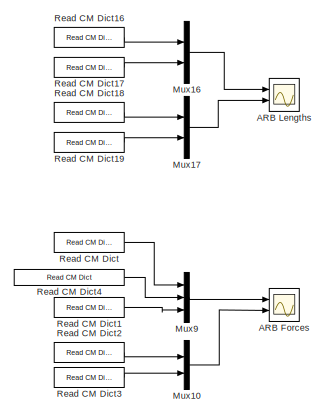
[diagram: CarMaker/IPG Vehicle/CarAndTrailer/Trailer/Lateral Dynamics Estimation by Linear Kalman Filter - part 1/4, top left region]
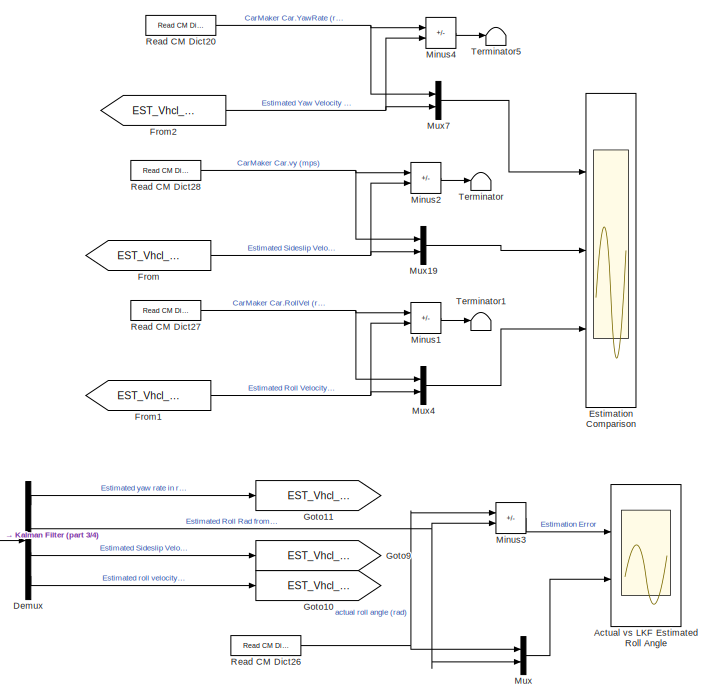
[diagram: CarMaker/IPG Vehicle/CarAndTrailer/Trailer/Lateral Dynamics Estimation by Linear Kalman Filter - part 2/4, middle right region]
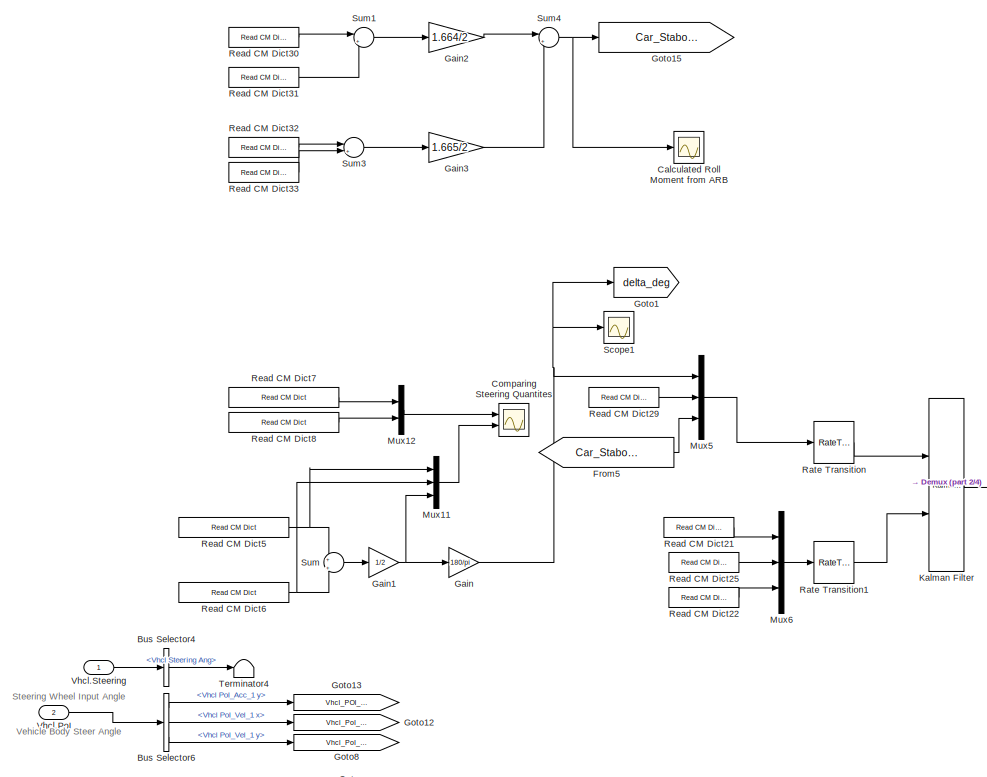
[diagram: CarMaker/IPG Vehicle/CarAndTrailer/Trailer/Lateral Dynamics Estimation by Linear Kalman Filter - part 3/4, middle left region]
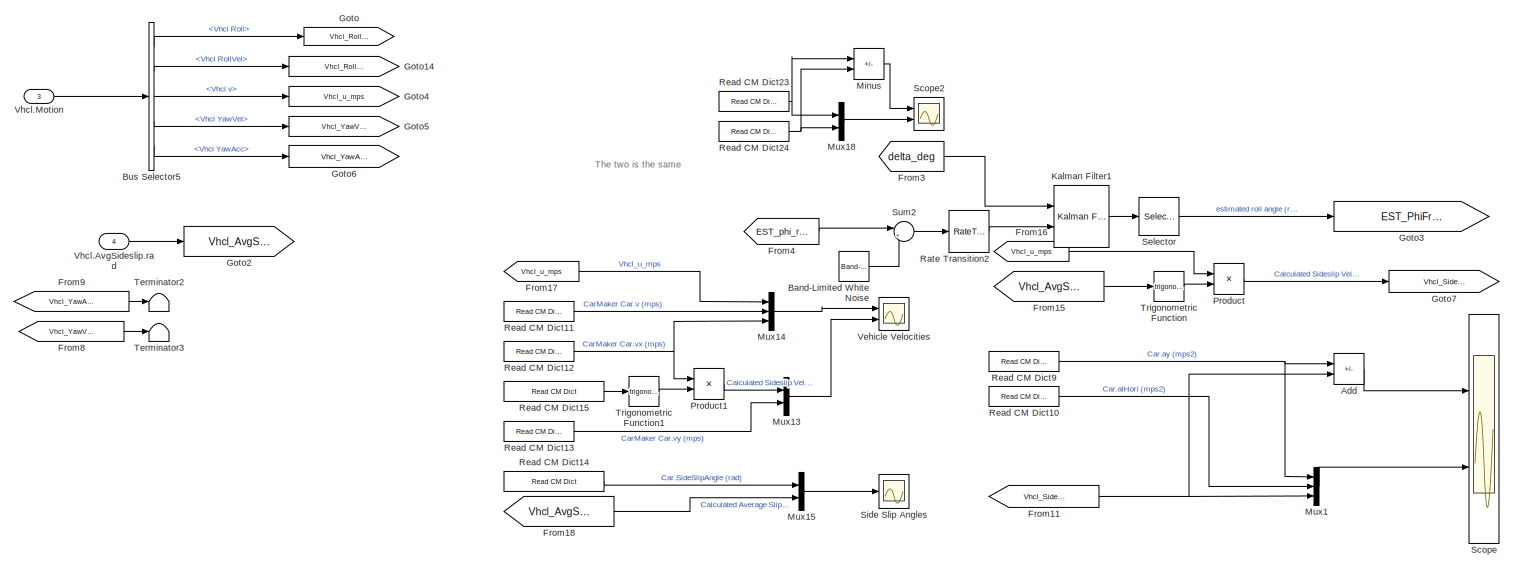
[diagram: CarMaker/IPG Vehicle/CarAndTrailer/Trailer/Lateral Dynamics Estimation by Linear Kalman Filter - part 4/4, full width, bottom band]
BLOCK [SubSystem] CarMaker/IPG Vehicle/CarAndTrailer/Trailer/Lateral Dynamics Estimation by Linear Kalman Filter
  Ports = [4]
  RequestExecContextInheritance = off
BLOCK [Scope] CarMaker/IPG Vehicle/CarAndTrailer/Trailer/Lateral Dynamics Estimation by Linear Kalman Filter/ARB Forces
  Floating = off
  NumInputPorts = 2
  Ports = [2]
  ScopeSpecificationString = Simulink.scopes.TimeScopeBlockCfg('CurrentConfiguration', extmgr.ConfigurationSet(extmgr.Configuration('Core','General UI',true),extmgr.Configuration('Core','Source UI',true),extmgr.Configuration('Sources','WiredSimulink',true,'DataLoggingVariableName','ScopeData3'),extmgr.Configuration('Visuals','Time Domain',true,'SerializedDisplays',{struct('MinYLimReal','-28.73384','MaxYLimReal','28.73384','YL...<+2111ch>
BLOCK [Scope] CarMaker/IPG Vehicle/CarAndTrailer/Trailer/Lateral Dynamics Estimation by Linear Kalman Filter/ARB Lengths
  Floating = off
  NumInputPorts = 2
  Ports = [2]
  ScopeSpecificationString = Simulink.scopes.TimeScopeBlockCfg('CurrentConfiguration', extmgr.ConfigurationSet(extmgr.Configuration('Core','General UI',true),extmgr.Configuration('Core','Source UI',true),extmgr.Configuration('Sources','WiredSimulink',true,'DataLoggingVariableName','ScopeData8'),extmgr.Configuration('Visuals','Time Domain',true,'SerializedDisplays',{struct('MinYLimReal','-0.00304','MaxYLimReal','-0.00017','YLa...<+2399ch>
BLOCK [Scope] CarMaker/IPG Vehicle/CarAndTrailer/Trailer/Lateral Dynamics Estimation by Linear Kalman Filter/Actual vs LKF Estimated Roll Angle
  Floating = off
  NumInputPorts = 2
  Ports = [2]
  ScopeSpecificationString = Simulink.scopes.TimeScopeBlockCfg('CurrentConfiguration', extmgr.ConfigurationSet(extmgr.Configuration('Core','General UI',true),extmgr.Configuration('Core','Source UI',true),extmgr.Configuration('Sources','WiredSimulink',true,'DataLoggingVariableName','ScopeData1'),extmgr.Configuration('Visuals','Time Domain',true,'SerializedDisplays',{struct('MinYLimReal','-0.08171','MaxYLimReal','0.02878','YLab...<+2592ch>
BLOCK [Sum] CarMaker/IPG Vehicle/CarAndTrailer/Trailer/Lateral Dynamics Estimation by Linear Kalman Filter/Add
  IconShape = rectangular
  Inputs = +-
  Ports = [2, 1]
BLOCK [Reference] CarMaker/IPG Vehicle/CarAndTrailer/Trailer/Lateral Dynamics Estimation by Linear Kalman Filter/Band-Limited White Noise  REF=simulink/Sources/Band-Limited
White Noise
  Commented = on
  Ports = [0, 1]
  SourceBlock = simulink/Sources/Band-Limited\nWhite Noise
  SourceProductBaseCode = SL
  SourceType = Band-Limited White Noise.
BLOCK [BusSelector] CarMaker/IPG Vehicle/CarAndTrailer/Trailer/Lateral Dynamics Estimation by Linear Kalman Filter/Bus Selector4
  OutputSignals = Vhcl Steering Ang
  Ports = [1, 1]
BLOCK [BusSelector] CarMaker/IPG Vehicle/CarAndTrailer/Trailer/Lateral Dynamics Estimation by Linear Kalman Filter/Bus Selector5
  OutputSignals = Vhcl Roll,Vhcl RollVel,Vhcl v,Vhcl YawVel,Vhcl YawAcc
  Ports = [1, 5]
BLOCK [BusSelector] CarMaker/IPG Vehicle/CarAndTrailer/Trailer/Lateral Dynamics Estimation by Linear Kalman Filter/Bus Selector6
  OutputSignals = Vhcl PoI_Acc_1 y,Vhcl PoI_Vel_1 x,Vhcl PoI_Vel_1 y
  Ports = [1, 3]
BLOCK [Scope] CarMaker/IPG Vehicle/CarAndTrailer/Trailer/Lateral Dynamics Estimation by Linear Kalman Filter/Calculated Roll Moment from ARB 
  Floating = off
  NameLocation = right
  NumInputPorts = 1
  Ports = [1]
  ScopeSpecificationString = Simulink.scopes.TimeScopeBlockCfg('CurrentConfiguration', extmgr.ConfigurationSet(extmgr.Configuration('Core','General UI',true),extmgr.Configuration('Core','Source UI',true),extmgr.Configuration('Sources','WiredSimulink',true,'DataLoggingVariableName','ScopeData2'),extmgr.Configuration('Visuals','Time Domain',true),extmgr.Configuration('Tools','Plot Navigation',true),extmgr.Configuration('Tools',...<+40ch>
BLOCK [Scope] CarMaker/IPG Vehicle/CarAndTrailer/Trailer/Lateral Dynamics Estimation by Linear Kalman Filter/Comparing Steering Quantites 
  Floating = off
  NumInputPorts = 2
  Ports = [2]
  ScopeSpecificationString = Simulink.scopes.TimeScopeBlockCfg('CurrentConfiguration', extmgr.ConfigurationSet(extmgr.Configuration('Core','General UI',true),extmgr.Configuration('Core','Source UI',true),extmgr.Configuration('Sources','WiredSimulink',true,'DataLoggingVariableName','ScopeData4'),extmgr.Configuration('Visuals','Time Domain',true,'SerializedDisplays',{struct('MinYLimReal','-0.00391','MaxYLimReal','0.00737','YLab...<+2591ch>
BLOCK [Demux] CarMaker/IPG Vehicle/CarAndTrailer/Trailer/Lateral Dynamics Estimation by Linear Kalman Filter/Demux
  DisplayOption = none
  Ports = [1, 4]
BLOCK [Scope] CarMaker/IPG Vehicle/CarAndTrailer/Trailer/Lateral Dynamics Estimation by Linear Kalman Filter/Estimation Comparison
  Floating = off
  NumInputPorts = 3
  Ports = [3]
  ScopeSpecificationString = Simulink.scopes.TimeScopeBlockCfg('CurrentConfiguration', extmgr.ConfigurationSet(extmgr.Configuration('Core','General UI',true),extmgr.Configuration('Core','Source UI',true),extmgr.Configuration('Sources','WiredSimulink',true,'DataLoggingVariableName','ScopeData9'),extmgr.Configuration('Visuals','Time Domain',true,'SerializedDisplays',{struct('MinYLimReal','-0.17508','MaxYLimReal','0.51854','YLab...<+2952ch>
BLOCK [From] CarMaker/IPG Vehicle/CarAndTrailer/Trailer/Lateral Dynamics Estimation by Linear Kalman Filter/From
  GotoTag = EST_Vhcl_Sideslip_mps
BLOCK [From] CarMaker/IPG Vehicle/CarAndTrailer/Trailer/Lateral Dynamics Estimation by Linear Kalman Filter/From1
  GotoTag = EST_Vhcl_RollVel_radps
BLOCK [From] CarMaker/IPG Vehicle/CarAndTrailer/Trailer/Lateral Dynamics Estimation by Linear Kalman Filter/From11
  GotoTag = Vhcl_SideSlip_mps
BLOCK [From] CarMaker/IPG Vehicle/CarAndTrailer/Trailer/Lateral Dynamics Estimation by Linear Kalman Filter/From15
  Commented = on
  GotoTag = Vhcl_AvgSideslip_rad
BLOCK [From] CarMaker/IPG Vehicle/CarAndTrailer/Trailer/Lateral Dynamics Estimation by Linear Kalman Filter/From16
  Commented = on
  GotoTag = Vhcl_u_mps
BLOCK [From] CarMaker/IPG Vehicle/CarAndTrailer/Trailer/Lateral Dynamics Estimation by Linear Kalman Filter/From17
  GotoTag = Vhcl_u_mps
BLOCK [From] CarMaker/IPG Vehicle/CarAndTrailer/Trailer/Lateral Dynamics Estimation by Linear Kalman Filter/From18
  Commented = on
  GotoTag = Vhcl_AvgSideslip_rad
BLOCK [From] CarMaker/IPG Vehicle/CarAndTrailer/Trailer/Lateral Dynamics Estimation by Linear Kalman Filter/From2
  GotoTag = EST_Vhcl_YawVel_radps
BLOCK [From] CarMaker/IPG Vehicle/CarAndTrailer/Trailer/Lateral Dynamics Estimation by Linear Kalman Filter/From3
  Commented = on
  GotoTag = delta_deg
BLOCK [From] CarMaker/IPG Vehicle/CarAndTrailer/Trailer/Lateral Dynamics Estimation by Linear Kalman Filter/From4
  Commented = on
  GotoTag = EST_phi_rad
BLOCK [From] CarMaker/IPG Vehicle/CarAndTrailer/Trailer/Lateral Dynamics Estimation by Linear Kalman Filter/From5
  GotoTag = Car_Stabo_Moment_tot
BLOCK [From] CarMaker/IPG Vehicle/CarAndTrailer/Trailer/Lateral Dynamics Estimation by Linear Kalman Filter/From8
  GotoTag = Vhcl_YawVel_radps
BLOCK [From] CarMaker/IPG Vehicle/CarAndTrailer/Trailer/Lateral Dynamics Estimation by Linear Kalman Filter/From9
  GotoTag = Vhcl_YawAcc_radps2
BLOCK [Gain] CarMaker/IPG Vehicle/CarAndTrailer/Trailer/Lateral Dynamics Estimation by Linear Kalman Filter/Gain
  AttributesFormatString = Gain = %<Gain>
  Gain = 180/pi
BLOCK [Gain] CarMaker/IPG Vehicle/CarAndTrailer/Trailer/Lateral Dynamics Estimation by Linear Kalman Filter/Gain1
  Gain = 1/2
BLOCK [Gain] CarMaker/IPG Vehicle/CarAndTrailer/Trailer/Lateral Dynamics Estimation by Linear Kalman Filter/Gain2
  Gain = 1.664/2
BLOCK [Gain] CarMaker/IPG Vehicle/CarAndTrailer/Trailer/Lateral Dynamics Estimation by Linear Kalman Filter/Gain3
  Gain = 1.665/2
BLOCK [Goto] CarMaker/IPG Vehicle/CarAndTrailer/Trailer/Lateral Dynamics Estimation by Linear Kalman Filter/Goto
  GotoTag = Vhcl_Roll_rad
BLOCK [Goto] CarMaker/IPG Vehicle/CarAndTrailer/Trailer/Lateral Dynamics Estimation by Linear Kalman Filter/Goto1
  GotoTag = delta_deg
BLOCK [Goto] CarMaker/IPG Vehicle/CarAndTrailer/Trailer/Lateral Dynamics Estimation by Linear Kalman Filter/Goto10
  GotoTag = EST_Vhcl_RollVel_radps
BLOCK [Goto] CarMaker/IPG Vehicle/CarAndTrailer/Trailer/Lateral Dynamics Estimation by Linear Kalman Filter/Goto11
  GotoTag = EST_Vhcl_YawVel_radps
BLOCK [Goto] CarMaker/IPG Vehicle/CarAndTrailer/Trailer/Lateral Dynamics Estimation by Linear Kalman Filter/Goto12
  GotoTag = Vhcl_PoI_u_mps
BLOCK [Goto] CarMaker/IPG Vehicle/CarAndTrailer/Trailer/Lateral Dynamics Estimation by Linear Kalman Filter/Goto13
  GotoTag = Vhcl_POI_ay_mps2
BLOCK [Goto] CarMaker/IPG Vehicle/CarAndTrailer/Trailer/Lateral Dynamics Estimation by Linear Kalman Filter/Goto14
  GotoTag = Vhcl_RollVel_radps
BLOCK [Goto] CarMaker/IPG Vehicle/CarAndTrailer/Trailer/Lateral Dynamics Estimation by Linear Kalman Filter/Goto15
  GotoTag = Car_Stabo_Moment_tot
BLOCK [Goto] CarMaker/IPG Vehicle/CarAndTrailer/Trailer/Lateral Dynamics Estimation by Linear Kalman Filter/Goto2
  GotoTag = Vhcl_AvgSideslip_rad
BLOCK [Goto] CarMaker/IPG Vehicle/CarAndTrailer/Trailer/Lateral Dynamics Estimation by Linear Kalman Filter/Goto3
  Commented = on
  GotoTag = EST_PhiFromRideHeight_rad
BLOCK [Goto] CarMaker/IPG Vehicle/CarAndTrailer/Trailer/Lateral Dynamics Estimation by Linear Kalman Filter/Goto4
  GotoTag = Vhcl_u_mps
BLOCK [Goto] CarMaker/IPG Vehicle/CarAndTrailer/Trailer/Lateral Dynamics Estimation by Linear Kalman Filter/Goto5
  GotoTag = Vhcl_YawVel_radps
BLOCK [Goto] CarMaker/IPG Vehicle/CarAndTrailer/Trailer/Lateral Dynamics Estimation by Linear Kalman Filter/Goto6
  GotoTag = Vhcl_YawAcc_radps2
BLOCK [Goto] CarMaker/IPG Vehicle/CarAndTrailer/Trailer/Lateral Dynamics Estimation by Linear Kalman Filter/Goto7
  Commented = on
  GotoTag = Vhcl_SideSlip_mps
BLOCK [Goto] CarMaker/IPG Vehicle/CarAndTrailer/Trailer/Lateral Dynamics Estimation by Linear Kalman Filter/Goto8
  GotoTag = Vhcl_PoI_v_mps
BLOCK [Goto] CarMaker/IPG Vehicle/CarAndTrailer/Trailer/Lateral Dynamics Estimation by Linear Kalman Filter/Goto9
  GotoTag = EST_Vhcl_Sideslip_mps
BLOCK [Reference] CarMaker/IPG Vehicle/CarAndTrailer/Trailer/Lateral Dynamics Estimation by Linear Kalman Filter/Kalman Filter  REF=ctrlSharedLib/Kalman Filter
  Ports = [2, 1]
  SourceBlock = ctrlSharedLib/Kalman Filter
  SourceProductBaseCode = CT,ID
  SourceType = ctrlKalmanFilter
BLOCK [Reference] CarMaker/IPG Vehicle/CarAndTrailer/Trailer/Lateral Dynamics Estimation by Linear Kalman Filter/Kalman Filter1  REF=ctrlSharedLib/Kalman Filter
  Commented = on
  Ports = [2, 1]
  SourceBlock = ctrlSharedLib/Kalman Filter
  SourceProductBaseCode = CT,ID
  SourceType = ctrlKalmanFilter
BLOCK [Sum] CarMaker/IPG Vehicle/CarAndTrailer/Trailer/Lateral Dynamics Estimation by Linear Kalman Filter/Minus
  IconShape = rectangular
  Inputs = +-
  Ports = [2, 1]
BLOCK [Sum] CarMaker/IPG Vehicle/CarAndTrailer/Trailer/Lateral Dynamics Estimation by Linear Kalman Filter/Minus1
  IconShape = rectangular
  Inputs = +-
  Ports = [2, 1]
BLOCK [Sum] CarMaker/IPG Vehicle/CarAndTrailer/Trailer/Lateral Dynamics Estimation by Linear Kalman Filter/Minus2
  IconShape = rectangular
  Inputs = +-
  Ports = [2, 1]
BLOCK [Sum] CarMaker/IPG Vehicle/CarAndTrailer/Trailer/Lateral Dynamics Estimation by Linear Kalman Filter/Minus3
  IconShape = rectangular
  Inputs = +-
  Ports = [2, 1]
BLOCK [Sum] CarMaker/IPG Vehicle/CarAndTrailer/Trailer/Lateral Dynamics Estimation by Linear Kalman Filter/Minus4
  IconShape = rectangular
  Inputs = +-
  Ports = [2, 1]
BLOCK [Mux] CarMaker/IPG Vehicle/CarAndTrailer/Trailer/Lateral Dynamics Estimation by Linear Kalman Filter/Mux
  DisplayOption = bar
  Inputs = 2
  Ports = [2, 1]
BLOCK [Mux] CarMaker/IPG Vehicle/CarAndTrailer/Trailer/Lateral Dynamics Estimation by Linear Kalman Filter/Mux1
  DisplayOption = bar
  Inputs = 3
  Ports = [3, 1]
BLOCK [Mux] CarMaker/IPG Vehicle/CarAndTrailer/Trailer/Lateral Dynamics Estimation by Linear Kalman Filter/Mux10
  DisplayOption = bar
  Inputs = 2
  Ports = [2, 1]
BLOCK [Mux] CarMaker/IPG Vehicle/CarAndTrailer/Trailer/Lateral Dynamics Estimation by Linear Kalman Filter/Mux11
  DisplayOption = bar
  Inputs = 3
  Ports = [3, 1]
BLOCK [Mux] CarMaker/IPG Vehicle/CarAndTrailer/Trailer/Lateral Dynamics Estimation by Linear Kalman Filter/Mux12
  DisplayOption = bar
  Inputs = 2
  Ports = [2, 1]
BLOCK [Mux] CarMaker/IPG Vehicle/CarAndTrailer/Trailer/Lateral Dynamics Estimation by Linear Kalman Filter/Mux13
  DisplayOption = bar
  Inputs = 2
  Ports = [2, 1]
BLOCK [Mux] CarMaker/IPG Vehicle/CarAndTrailer/Trailer/Lateral Dynamics Estimation by Linear Kalman Filter/Mux14
  DisplayOption = bar
  Inputs = 3
  Ports = [3, 1]
BLOCK [Mux] CarMaker/IPG Vehicle/CarAndTrailer/Trailer/Lateral Dynamics Estimation by Linear Kalman Filter/Mux15
  Commented = on
  DisplayOption = bar
  Inputs = 2
  Ports = [2, 1]
BLOCK [Mux] CarMaker/IPG Vehicle/CarAndTrailer/Trailer/Lateral Dynamics Estimation by Linear Kalman Filter/Mux16
  DisplayOption = bar
  Inputs = 2
  Ports = [2, 1]
BLOCK [Mux] CarMaker/IPG Vehicle/CarAndTrailer/Trailer/Lateral Dynamics Estimation by Linear Kalman Filter/Mux17
  DisplayOption = bar
  Inputs = 2
  Ports = [2, 1]
BLOCK [Mux] CarMaker/IPG Vehicle/CarAndTrailer/Trailer/Lateral Dynamics Estimation by Linear Kalman Filter/Mux18
  DisplayOption = bar
  Inputs = 2
  Ports = [2, 1]
BLOCK [Mux] CarMaker/IPG Vehicle/CarAndTrailer/Trailer/Lateral Dynamics Estimation by Linear Kalman Filter/Mux19
  DisplayOption = bar
  Inputs = 2
  Ports = [2, 1]
BLOCK [Mux] CarMaker/IPG Vehicle/CarAndTrailer/Trailer/Lateral Dynamics Estimation by Linear Kalman Filter/Mux4
  DisplayOption = bar
  Inputs = 2
  Ports = [2, 1]
BLOCK [Mux] CarMaker/IPG Vehicle/CarAndTrailer/Trailer/Lateral Dynamics Estimation by Linear Kalman Filter/Mux5
  DisplayOption = bar
  Inputs = 3
  Ports = [3, 1]
BLOCK [Mux] CarMaker/IPG Vehicle/CarAndTrailer/Trailer/Lateral Dynamics Estimation by Linear Kalman Filter/Mux6
  DisplayOption = bar
  Inputs = 3
  Ports = [3, 1]
BLOCK [Mux] CarMaker/IPG Vehicle/CarAndTrailer/Trailer/Lateral Dynamics Estimation by Linear Kalman Filter/Mux7
  DisplayOption = bar
  Inputs = 2
  Ports = [2, 1]
BLOCK [Mux] CarMaker/IPG Vehicle/CarAndTrailer/Trailer/Lateral Dynamics Estimation by Linear Kalman Filter/Mux9
  DisplayOption = bar
  Inputs = 3
  Ports = [3, 1]
BLOCK [Product] CarMaker/IPG Vehicle/CarAndTrailer/Trailer/Lateral Dynamics Estimation by Linear Kalman Filter/Product
  Commented = on
  Ports = [2, 1]
BLOCK [Product] CarMaker/IPG Vehicle/CarAndTrailer/Trailer/Lateral Dynamics Estimation by Linear Kalman Filter/Product1
  Ports = [2, 1]
BLOCK [RateTransition] CarMaker/IPG Vehicle/CarAndTrailer/Trailer/Lateral Dynamics Estimation by Linear Kalman Filter/Rate Transition
BLOCK [RateTransition] CarMaker/IPG Vehicle/CarAndTrailer/Trailer/Lateral Dynamics Estimation by Linear Kalman Filter/Rate Transition1
BLOCK [RateTransition] CarMaker/IPG Vehicle/CarAndTrailer/Trailer/Lateral Dynamics Estimation by Linear Kalman Filter/Rate Transition2
  Commented = on
BLOCK [Reference] CarMaker/IPG Vehicle/CarAndTrailer/Trailer/Lateral Dynamics Estimation by Linear Kalman Filter/Read CM Dict  REF=CarMaker4SL/Read CM Dict
  Ports = [0, 1]
  SourceBlock = CarMaker4SL/Read CM Dict
  SourceProductName = CarMaker4SL
  SourceType = Read CarMaker Dictionary Variable(s)
BLOCK [Reference] CarMaker/IPG Vehicle/CarAndTrailer/Trailer/Lateral Dynamics Estimation by Linear Kalman Filter/Read CM Dict1  REF=CarMaker4SL/Read CM Dict
  Ports = [0, 1]
  SourceBlock = CarMaker4SL/Read CM Dict
  SourceProductName = CarMaker4SL
  SourceType = Read CarMaker Dictionary Variable(s)
BLOCK [Reference] CarMaker/IPG Vehicle/CarAndTrailer/Trailer/Lateral Dynamics Estimation by Linear Kalman Filter/Read CM Dict10  REF=CarMaker4SL/Read CM Dict
  Ports = [0, 1]
  SourceBlock = CarMaker4SL/Read CM Dict
  SourceProductName = CarMaker4SL
  SourceType = Read CarMaker Dictionary Variable(s)
BLOCK [Reference] CarMaker/IPG Vehicle/CarAndTrailer/Trailer/Lateral Dynamics Estimation by Linear Kalman Filter/Read CM Dict11  REF=CarMaker4SL/Read CM Dict
  Ports = [0, 1]
  SourceBlock = CarMaker4SL/Read CM Dict
  SourceProductName = CarMaker4SL
  SourceType = Read CarMaker Dictionary Variable(s)
BLOCK [Reference] CarMaker/IPG Vehicle/CarAndTrailer/Trailer/Lateral Dynamics Estimation by Linear Kalman Filter/Read CM Dict12  REF=CarMaker4SL/Read CM Dict
  NameLocation = left
  Ports = [0, 1]
  SourceBlock = CarMaker4SL/Read CM Dict
  SourceProductName = CarMaker4SL
  SourceType = Read CarMaker Dictionary Variable(s)
BLOCK [Reference] CarMaker/IPG Vehicle/CarAndTrailer/Trailer/Lateral Dynamics Estimation by Linear Kalman Filter/Read CM Dict13  REF=CarMaker4SL/Read CM Dict
  NameLocation = left
  Ports = [0, 1]
  SourceBlock = CarMaker4SL/Read CM Dict
  SourceProductName = CarMaker4SL
  SourceType = Read CarMaker Dictionary Variable(s)
BLOCK [Reference] CarMaker/IPG Vehicle/CarAndTrailer/Trailer/Lateral Dynamics Estimation by Linear Kalman Filter/Read CM Dict14  REF=CarMaker4SL/Read CM Dict
  Commented = on
  NameLocation = left
  Ports = [0, 1]
  SourceBlock = CarMaker4SL/Read CM Dict
  SourceProductName = CarMaker4SL
  SourceType = Read CarMaker Dictionary Variable(s)
BLOCK [Reference] CarMaker/IPG Vehicle/CarAndTrailer/Trailer/Lateral Dynamics Estimation by Linear Kalman Filter/Read CM Dict15  REF=CarMaker4SL/Read CM Dict
  NameLocation = left
  Ports = [0, 1]
  SourceBlock = CarMaker4SL/Read CM Dict
  SourceProductName = CarMaker4SL
  SourceType = Read CarMaker Dictionary Variable(s)
BLOCK [Reference] CarMaker/IPG Vehicle/CarAndTrailer/Trailer/Lateral Dynamics Estimation by Linear Kalman Filter/Read CM Dict16  REF=CarMaker4SL/Read CM Dict
  Ports = [0, 1]
  SourceBlock = CarMaker4SL/Read CM Dict
  SourceProductName = CarMaker4SL
  SourceType = Read CarMaker Dictionary Variable(s)
BLOCK [Reference] CarMaker/IPG Vehicle/CarAndTrailer/Trailer/Lateral Dynamics Estimation by Linear Kalman Filter/Read CM Dict17  REF=CarMaker4SL/Read CM Dict
  Ports = [0, 1]
  SourceBlock = CarMaker4SL/Read CM Dict
  SourceProductName = CarMaker4SL
  SourceType = Read CarMaker Dictionary Variable(s)
BLOCK [Reference] CarMaker/IPG Vehicle/CarAndTrailer/Trailer/Lateral Dynamics Estimation by Linear Kalman Filter/Read CM Dict18  REF=CarMaker4SL/Read CM Dict
  Ports = [0, 1]
  SourceBlock = CarMaker4SL/Read CM Dict
  SourceProductName = CarMaker4SL
  SourceType = Read CarMaker Dictionary Variable(s)
BLOCK [Reference] CarMaker/IPG Vehicle/CarAndTrailer/Trailer/Lateral Dynamics Estimation by Linear Kalman Filter/Read CM Dict19  REF=CarMaker4SL/Read CM Dict
  Ports = [0, 1]
  SourceBlock = CarMaker4SL/Read CM Dict
  SourceProductName = CarMaker4SL
  SourceType = Read CarMaker Dictionary Variable(s)
BLOCK [Reference] CarMaker/IPG Vehicle/CarAndTrailer/Trailer/Lateral Dynamics Estimation by Linear Kalman Filter/Read CM Dict2  REF=CarMaker4SL/Read CM Dict
  Ports = [0, 1]
  SourceBlock = CarMaker4SL/Read CM Dict
  SourceProductName = CarMaker4SL
  SourceType = Read CarMaker Dictionary Variable(s)
BLOCK [Reference] CarMaker/IPG Vehicle/CarAndTrailer/Trailer/Lateral Dynamics Estimation by Linear Kalman Filter/Read CM Dict20  REF=CarMaker4SL/Read CM Dict
  NameLocation = left
  Ports = [0, 1]
  SourceBlock = CarMaker4SL/Read CM Dict
  SourceProductName = CarMaker4SL
  SourceType = Read CarMaker Dictionary Variable(s)
BLOCK [Reference] CarMaker/IPG Vehicle/CarAndTrailer/Trailer/Lateral Dynamics Estimation by Linear Kalman Filter/Read CM Dict21  REF=CarMaker4SL/Read CM Dict
  NameLocation = left
  Ports = [0, 1]
  SourceBlock = CarMaker4SL/Read CM Dict
  SourceProductName = CarMaker4SL
  SourceType = Read CarMaker Dictionary Variable(s)
BLOCK [Reference] CarMaker/IPG Vehicle/CarAndTrailer/Trailer/Lateral Dynamics Estimation by Linear Kalman Filter/Read CM Dict22  REF=CarMaker4SL/Read CM Dict
  NameLocation = left
  Ports = [0, 1]
  SourceBlock = CarMaker4SL/Read CM Dict
  SourceProductName = CarMaker4SL
  SourceType = Read CarMaker Dictionary Variable(s)
BLOCK [Reference] CarMaker/IPG Vehicle/CarAndTrailer/Trailer/Lateral Dynamics Estimation by Linear Kalman Filter/Read CM Dict23  REF=CarMaker4SL/Read CM Dict
  NameLocation = left
  Ports = [0, 1]
  SourceBlock = CarMaker4SL/Read CM Dict
  SourceProductName = CarMaker4SL
  SourceType = Read CarMaker Dictionary Variable(s)
BLOCK [Reference] CarMaker/IPG Vehicle/CarAndTrailer/Trailer/Lateral Dynamics Estimation by Linear Kalman Filter/Read CM Dict24  REF=CarMaker4SL/Read CM Dict
  NameLocation = left
  Ports = [0, 1]
  SourceBlock = CarMaker4SL/Read CM Dict
  SourceProductName = CarMaker4SL
  SourceType = Read CarMaker Dictionary Variable(s)
BLOCK [Reference] CarMaker/IPG Vehicle/CarAndTrailer/Trailer/Lateral Dynamics Estimation by Linear Kalman Filter/Read CM Dict25  REF=CarMaker4SL/Read CM Dict
  NameLocation = left
  Ports = [0, 1]
  SourceBlock = CarMaker4SL/Read CM Dict
  SourceProductName = CarMaker4SL
  SourceType = Read CarMaker Dictionary Variable(s)
BLOCK [Reference] CarMaker/IPG Vehicle/CarAndTrailer/Trailer/Lateral Dynamics Estimation by Linear Kalman Filter/Read CM Dict26  REF=CarMaker4SL/Read CM Dict
  NameLocation = left
  Ports = [0, 1]
  SourceBlock = CarMaker4SL/Read CM Dict
  SourceProductName = CarMaker4SL
  SourceType = Read CarMaker Dictionary Variable(s)
BLOCK [Reference] CarMaker/IPG Vehicle/CarAndTrailer/Trailer/Lateral Dynamics Estimation by Linear Kalman Filter/Read CM Dict27  REF=CarMaker4SL/Read CM Dict
  NameLocation = left
  Ports = [0, 1]
  SourceBlock = CarMaker4SL/Read CM Dict
  SourceProductName = CarMaker4SL
  SourceType = Read CarMaker Dictionary Variable(s)
BLOCK [Reference] CarMaker/IPG Vehicle/CarAndTrailer/Trailer/Lateral Dynamics Estimation by Linear Kalman Filter/Read CM Dict28  REF=CarMaker4SL/Read CM Dict
  NameLocation = left
  Ports = [0, 1]
  SourceBlock = CarMaker4SL/Read CM Dict
  SourceProductName = CarMaker4SL
  SourceType = Read CarMaker Dictionary Variable(s)
BLOCK [Reference] CarMaker/IPG Vehicle/CarAndTrailer/Trailer/Lateral Dynamics Estimation by Linear Kalman Filter/Read CM Dict29  REF=CarMaker4SL/Read CM Dict
  Ports = [0, 1]
  SourceBlock = CarMaker4SL/Read CM Dict
  SourceProductName = CarMaker4SL
  SourceType = Read CarMaker Dictionary Variable(s)
BLOCK [Reference] CarMaker/IPG Vehicle/CarAndTrailer/Trailer/Lateral Dynamics Estimation by Linear Kalman Filter/Read CM Dict3  REF=CarMaker4SL/Read CM Dict
  Ports = [0, 1]
  SourceBlock = CarMaker4SL/Read CM Dict
  SourceProductName = CarMaker4SL
  SourceType = Read CarMaker Dictionary Variable(s)
BLOCK [Reference] CarMaker/IPG Vehicle/CarAndTrailer/Trailer/Lateral Dynamics Estimation by Linear Kalman Filter/Read CM Dict30  REF=CarMaker4SL/Read CM Dict
  Ports = [0, 1]
  SourceBlock = CarMaker4SL/Read CM Dict
  SourceProductName = CarMaker4SL
  SourceType = Read CarMaker Dictionary Variable(s)
BLOCK [Reference] CarMaker/IPG Vehicle/CarAndTrailer/Trailer/Lateral Dynamics Estimation by Linear Kalman Filter/Read CM Dict31  REF=CarMaker4SL/Read CM Dict
  Ports = [0, 1]
  SourceBlock = CarMaker4SL/Read CM Dict
  SourceProductName = CarMaker4SL
  SourceType = Read CarMaker Dictionary Variable(s)
BLOCK [Reference] CarMaker/IPG Vehicle/CarAndTrailer/Trailer/Lateral Dynamics Estimation by Linear Kalman Filter/Read CM Dict32  REF=CarMaker4SL/Read CM Dict
  Ports = [0, 1]
  SourceBlock = CarMaker4SL/Read CM Dict
  SourceProductName = CarMaker4SL
  SourceType = Read CarMaker Dictionary Variable(s)
BLOCK [Reference] CarMaker/IPG Vehicle/CarAndTrailer/Trailer/Lateral Dynamics Estimation by Linear Kalman Filter/Read CM Dict33  REF=CarMaker4SL/Read CM Dict
  Ports = [0, 1]
  SourceBlock = CarMaker4SL/Read CM Dict
  SourceProductName = CarMaker4SL
  SourceType = Read CarMaker Dictionary Variable(s)
BLOCK [Reference] CarMaker/IPG Vehicle/CarAndTrailer/Trailer/Lateral Dynamics Estimation by Linear Kalman Filter/Read CM Dict4  REF=CarMaker4SL/Read CM Dict
  Ports = [0, 1]
  SourceBlock = CarMaker4SL/Read CM Dict
  SourceProductName = CarMaker4SL
  SourceType = Read CarMaker Dictionary Variable(s)
BLOCK [Reference] CarMaker/IPG Vehicle/CarAndTrailer/Trailer/Lateral Dynamics Estimation by Linear Kalman Filter/Read CM Dict5  REF=CarMaker4SL/Read CM Dict
  Ports = [0, 1]
  SourceBlock = CarMaker4SL/Read CM Dict
  SourceProductName = CarMaker4SL
  SourceType = Read CarMaker Dictionary Variable(s)
BLOCK [Reference] CarMaker/IPG Vehicle/CarAndTrailer/Trailer/Lateral Dynamics Estimation by Linear Kalman Filter/Read CM Dict6  REF=CarMaker4SL/Read CM Dict
  Ports = [0, 1]
  SourceBlock = CarMaker4SL/Read CM Dict
  SourceProductName = CarMaker4SL
  SourceType = Read CarMaker Dictionary Variable(s)
BLOCK [Reference] CarMaker/IPG Vehicle/CarAndTrailer/Trailer/Lateral Dynamics Estimation by Linear Kalman Filter/Read CM Dict7  REF=CarMaker4SL/Read CM Dict
  Ports = [0, 1]
  SourceBlock = CarMaker4SL/Read CM Dict
  SourceProductName = CarMaker4SL
  SourceType = Read CarMaker Dictionary Variable(s)
BLOCK [Reference] CarMaker/IPG Vehicle/CarAndTrailer/Trailer/Lateral Dynamics Estimation by Linear Kalman Filter/Read CM Dict8  REF=CarMaker4SL/Read CM Dict
  Ports = [0, 1]
  SourceBlock = CarMaker4SL/Read CM Dict
  SourceProductName = CarMaker4SL
  SourceType = Read CarMaker Dictionary Variable(s)
BLOCK [Reference] CarMaker/IPG Vehicle/CarAndTrailer/Trailer/Lateral Dynamics Estimation by Linear Kalman Filter/Read CM Dict9  REF=CarMaker4SL/Read CM Dict
  Ports = [0, 1]
  SourceBlock = CarMaker4SL/Read CM Dict
  SourceProductName = CarMaker4SL
  SourceType = Read CarMaker Dictionary Variable(s)
BLOCK [Scope] CarMaker/IPG Vehicle/CarAndTrailer/Trailer/Lateral Dynamics Estimation by Linear Kalman Filter/Scope
  Floating = off
  NumInputPorts = 2
  Ports = [2]
  ScopeSpecificationString = Simulink.scopes.TimeScopeBlockCfg('CurrentConfiguration', extmgr.ConfigurationSet(extmgr.Configuration('Core','General UI',true),extmgr.Configuration('Core','Source UI',true),extmgr.Configuration('Sources','WiredSimulink',true,'DataLoggingVariableName','ScopeData1'),extmgr.Configuration('Visuals','Time Domain',true,'SerializedDisplays',{struct('MinYLimReal','-1.90225','MaxYLimReal','16.4396','YLab...<+2186ch>
BLOCK [Scope] CarMaker/IPG Vehicle/CarAndTrailer/Trailer/Lateral Dynamics Estimation by Linear Kalman Filter/Scope1
  Floating = off
  NumInputPorts = 1
  Ports = [1]
  ScopeSpecificationString = Simulink.scopes.TimeScopeBlockCfg('CurrentConfiguration', extmgr.ConfigurationSet(extmgr.Configuration('Core','General UI',true),extmgr.Configuration('Core','Source UI',true),extmgr.Configuration('Sources','WiredSimulink',true,'DataLoggingVariableName','ScopeData5'),extmgr.Configuration('Visuals','Time Domain',true,'SerializedDisplays',{struct('MinYLimReal','-1.68723','MaxYLimReal','4.09614','YLab...<+1417ch>
BLOCK [Scope] CarMaker/IPG Vehicle/CarAndTrailer/Trailer/Lateral Dynamics Estimation by Linear Kalman Filter/Scope2
  Floating = off
  NumInputPorts = 2
  Ports = [2]
  ScopeSpecificationString = Simulink.scopes.TimeScopeBlockCfg('CurrentConfiguration', extmgr.ConfigurationSet(extmgr.Configuration('Core','General UI',true),extmgr.Configuration('Core','Source UI',true),extmgr.Configuration('Sources','WiredSimulink',true,'DataLoggingVariableName','ScopeData7'),extmgr.Configuration('Visuals','Time Domain',true,'SerializedDisplays',{struct('MinYLimReal','-1.00000','MaxYLimReal','1.00000','YLab...<+2073ch>
BLOCK [Selector] CarMaker/IPG Vehicle/CarAndTrailer/Trailer/Lateral Dynamics Estimation by Linear Kalman Filter/Selector
  Commented = on
  IndexOptions = Index vector (dialog)
  Indices = [1]
  InputPortWidth = 4
  OutputSizes = 1
  Ports = [1, 1]
BLOCK [Scope] CarMaker/IPG Vehicle/CarAndTrailer/Trailer/Lateral Dynamics Estimation by Linear Kalman Filter/Side Slip Angles
  Commented = on
  Floating = off
  NumInputPorts = 1
  Ports = [1]
  ScopeSpecificationString = Simulink.scopes.TimeScopeBlockCfg('CurrentConfiguration', extmgr.ConfigurationSet(extmgr.Configuration('Core','General UI',true),extmgr.Configuration('Core','Source UI',true),extmgr.Configuration('Sources','WiredSimulink',true,'DataLoggingVariableName','ScopeData6'),extmgr.Configuration('Visuals','Time Domain',true,'SerializedDisplays',{struct('MinYLimReal','-0.00641','MaxYLimReal','0.03562','YLab...<+1505ch>
BLOCK [Sum] CarMaker/IPG Vehicle/CarAndTrailer/Trailer/Lateral Dynamics Estimation by Linear Kalman Filter/Sum
  Inputs = +|+
  Ports = [2, 1]
BLOCK [Sum] CarMaker/IPG Vehicle/CarAndTrailer/Trailer/Lateral Dynamics Estimation by Linear Kalman Filter/Sum1
  Inputs = |+-
  Ports = [2, 1]
BLOCK [Sum] CarMaker/IPG Vehicle/CarAndTrailer/Trailer/Lateral Dynamics Estimation by Linear Kalman Filter/Sum2
  Commented = on
  Inputs = |++
  Ports = [2, 1]
BLOCK [Sum] CarMaker/IPG Vehicle/CarAndTrailer/Trailer/Lateral Dynamics Estimation by Linear Kalman Filter/Sum3
  Inputs = |+-
  Ports = [2, 1]
BLOCK [Sum] CarMaker/IPG Vehicle/CarAndTrailer/Trailer/Lateral Dynamics Estimation by Linear Kalman Filter/Sum4
  Inputs = |++
  Ports = [2, 1]
BLOCK [Terminator] CarMaker/IPG Vehicle/CarAndTrailer/Trailer/Lateral Dynamics Estimation by Linear Kalman Filter/Terminator
BLOCK [Terminator] CarMaker/IPG Vehicle/CarAndTrailer/Trailer/Lateral Dynamics Estimation by Linear Kalman Filter/Terminator1
BLOCK [Terminator] CarMaker/IPG Vehicle/CarAndTrailer/Trailer/Lateral Dynamics Estimation by Linear Kalman Filter/Terminator2
BLOCK [Terminator] CarMaker/IPG Vehicle/CarAndTrailer/Trailer/Lateral Dynamics Estimation by Linear Kalman Filter/Terminator3
BLOCK [Terminator] CarMaker/IPG Vehicle/CarAndTrailer/Trailer/Lateral Dynamics Estimation by Linear Kalman Filter/Terminator4
BLOCK [Terminator] CarMaker/IPG Vehicle/CarAndTrailer/Trailer/Lateral Dynamics Estimation by Linear Kalman Filter/Terminator5
BLOCK [Trigonometry] CarMaker/IPG Vehicle/CarAndTrailer/Trailer/Lateral Dynamics Estimation by Linear Kalman Filter/Trigonometric Function
  Commented = on
  Ports = [1, 1]
BLOCK [Trigonometry] CarMaker/IPG Vehicle/CarAndTrailer/Trailer/Lateral Dynamics Estimation by Linear Kalman Filter/Trigonometric Function1
  Ports = [1, 1]
BLOCK [Scope] CarMaker/IPG Vehicle/CarAndTrailer/Trailer/Lateral Dynamics Estimation by Linear Kalman Filter/Vehicle Velocities
  Floating = off
  NumInputPorts = 2
  Ports = [2]
  ScopeSpecificationString = Simulink.scopes.TimeScopeBlockCfg('CurrentConfiguration', extmgr.ConfigurationSet(extmgr.Configuration('Core','General UI',true),extmgr.Configuration('Core','Source UI',true),extmgr.Configuration('Sources','WiredSimulink',true,'DataLoggingVariableName','ScopeData1'),extmgr.Configuration('Visuals','Time Domain',true,'SerializedDisplays',{struct('MinYLimReal','-0.46016','MaxYLimReal','4.01153','YLab...<+2128ch>
BLOCK [Inport] CarMaker/IPG Vehicle/CarAndTrailer/Trailer/Lateral Dynamics Estimation by Linear Kalman Filter/Vhcl.AvgSideslip.rad
  Port = 4
BLOCK [Inport] CarMaker/IPG Vehicle/CarAndTrailer/Trailer/Lateral Dynamics Estimation by Linear Kalman Filter/Vhcl.Motion
  Port = 3
BLOCK [Inport] CarMaker/IPG Vehicle/CarAndTrailer/Trailer/Lateral Dynamics Estimation by Linear Kalman Filter/Vhcl.PoI
  Port = 2
BLOCK [Inport] CarMaker/IPG Vehicle/CarAndTrailer/Trailer/Lateral Dynamics Estimation by Linear Kalman Filter/Vhcl.Steering
BLOCK [SubSystem] CarMaker/IPG Vehicle/CarAndTrailer/Trailer/MIMO VD Model vs CarMaker
  Ports = []
  RequestExecContextInheritance = off
BLOCK [Scope] CarMaker/IPG Vehicle/CarAndTrailer/Trailer/MIMO VD Model vs CarMaker/Calculated Front Roll Moment from ARB 
  Floating = off
  NameLocation = right
  NumInputPorts = 1
  Ports = [1]
  ScopeSpecificationString = Simulink.scopes.TimeScopeBlockCfg('CurrentConfiguration', extmgr.ConfigurationSet(extmgr.Configuration('Core','General UI',true),extmgr.Configuration('Core','Source UI',true),extmgr.Configuration('Sources','WiredSimulink',true,'DataLoggingVariableName','ScopeData1'),extmgr.Configuration('Visuals','Time Domain',true),extmgr.Configuration('Tools','Plot Navigation',true),extmgr.Configuration('Tools',...<+40ch>
BLOCK [Scope] CarMaker/IPG Vehicle/CarAndTrailer/Trailer/MIMO VD Model vs CarMaker/Calculated Rear Roll Moment from ARB 1
  Floating = off
  NameLocation = right
  NumInputPorts = 1
  Ports = [1]
  ScopeSpecificationString = Simulink.scopes.TimeScopeBlockCfg('CurrentConfiguration', extmgr.ConfigurationSet(extmgr.Configuration('Core','General UI',true),extmgr.Configuration('Core','Source UI',true),extmgr.Configuration('Sources','WiredSimulink',true,'DataLoggingVariableName','ScopeData2'),extmgr.Configuration('Visuals','Time Domain',true),extmgr.Configuration('Tools','Plot Navigation',true),extmgr.Configuration('Tools',...<+40ch>
BLOCK [Constant] CarMaker/IPG Vehicle/CarAndTrailer/Trailer/MIMO VD Model vs CarMaker/Constant1
  Value = 0
BLOCK [Gain] CarMaker/IPG Vehicle/CarAndTrailer/Trailer/MIMO VD Model vs CarMaker/Gain
  AttributesFormatString = Gain = %<Gain>
  Gain = 180/pi
BLOCK [Gain] CarMaker/IPG Vehicle/CarAndTrailer/Trailer/MIMO VD Model vs CarMaker/Gain1
  Gain = 1/2
BLOCK [Gain] CarMaker/IPG Vehicle/CarAndTrailer/Trailer/MIMO VD Model vs CarMaker/Gain2
  Gain = 1.664/2
BLOCK [Gain] CarMaker/IPG Vehicle/CarAndTrailer/Trailer/MIMO VD Model vs CarMaker/Gain3
  Gain = 1.665/2
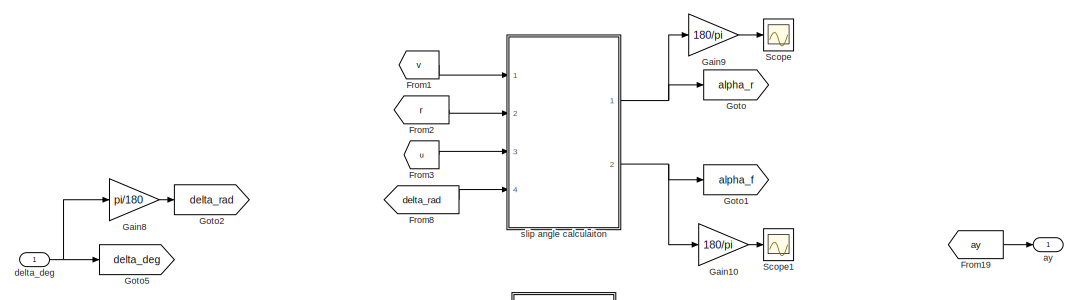
[diagram: CarMaker/IPG Vehicle/CarAndTrailer/Trailer/MIMO VD Model vs CarMaker/MIMO 1DOF roll with LT1 - part 1/4, full width, top band]
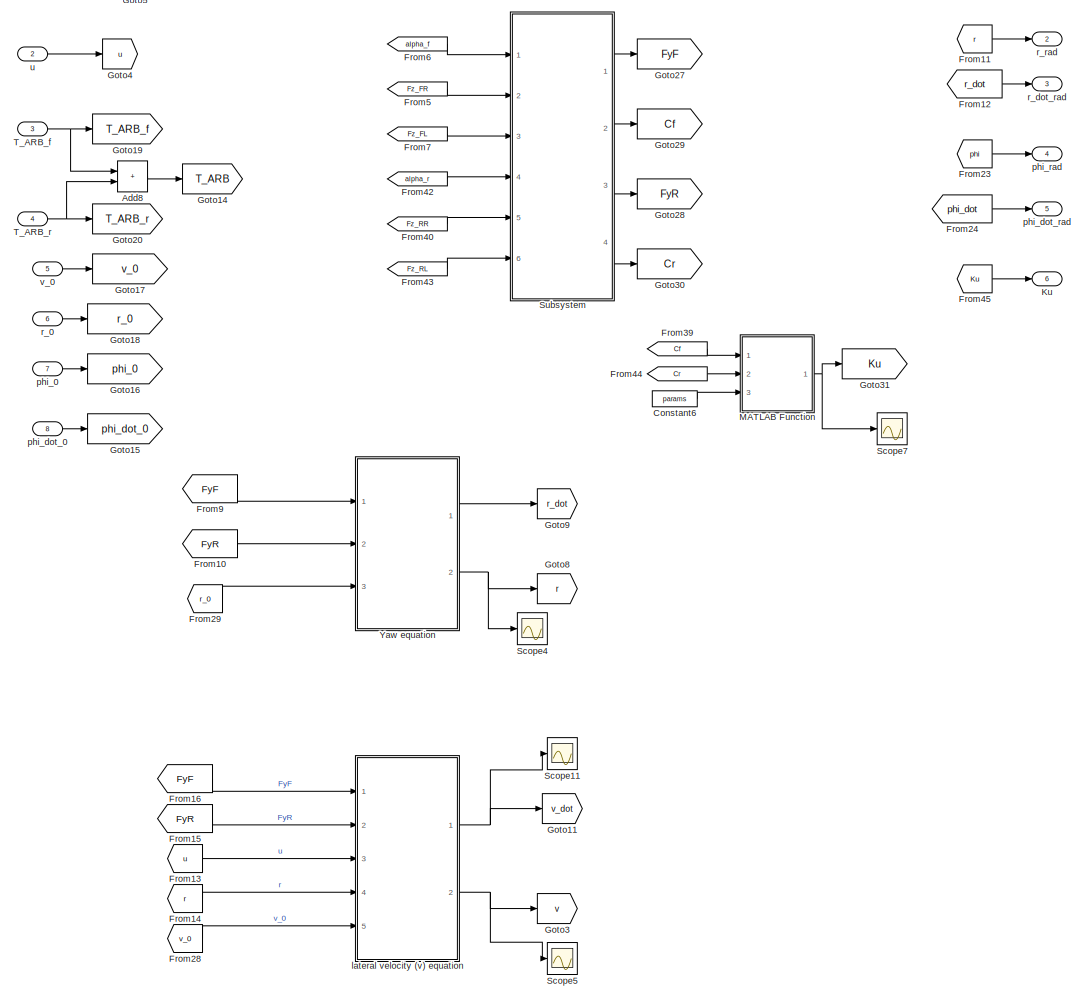
[diagram: CarMaker/IPG Vehicle/CarAndTrailer/Trailer/MIMO VD Model vs CarMaker/MIMO 1DOF roll with LT1 - part 2/4, full width, top band]
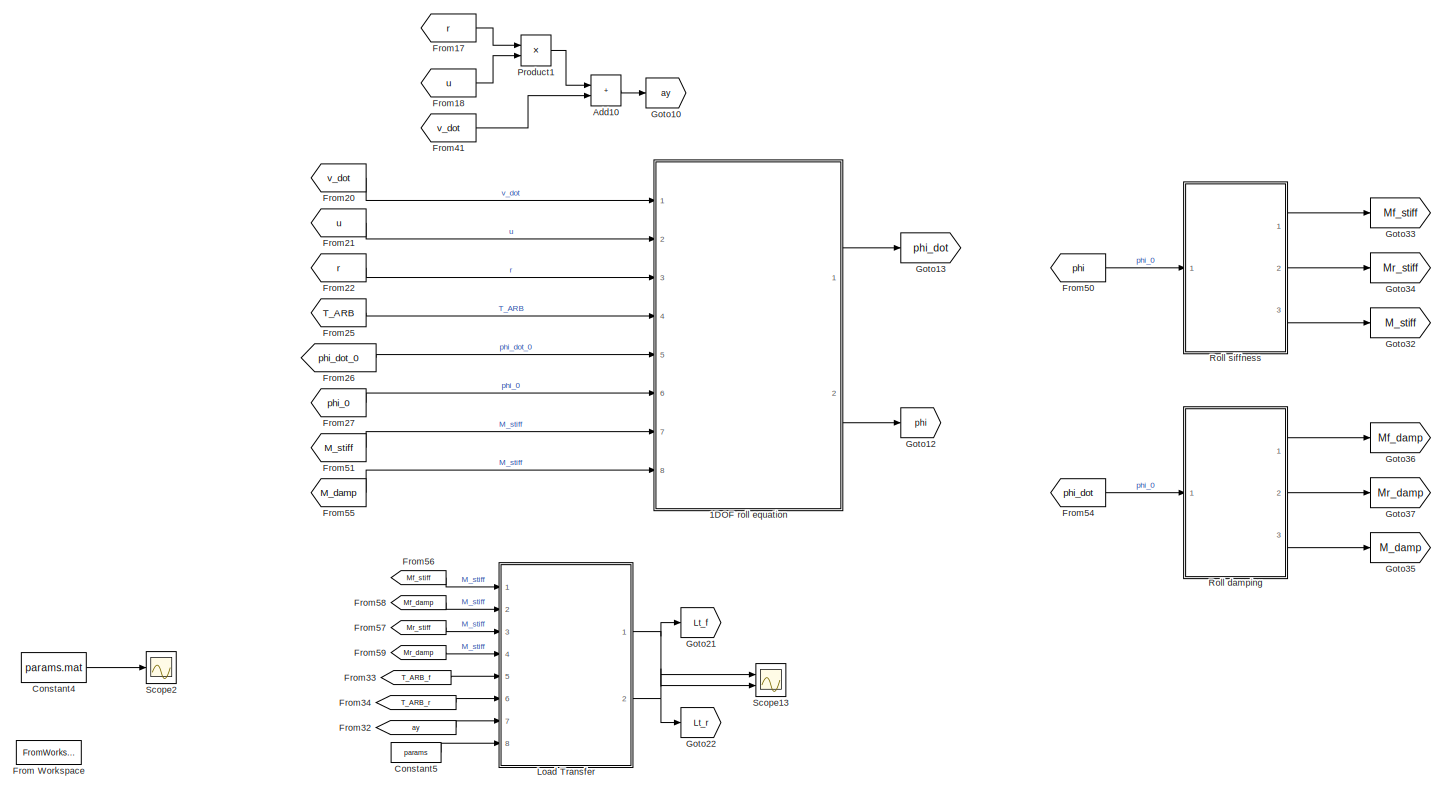
[diagram: CarMaker/IPG Vehicle/CarAndTrailer/Trailer/MIMO VD Model vs CarMaker/MIMO 1DOF roll with LT1 - part 3/4, full width, middle band]
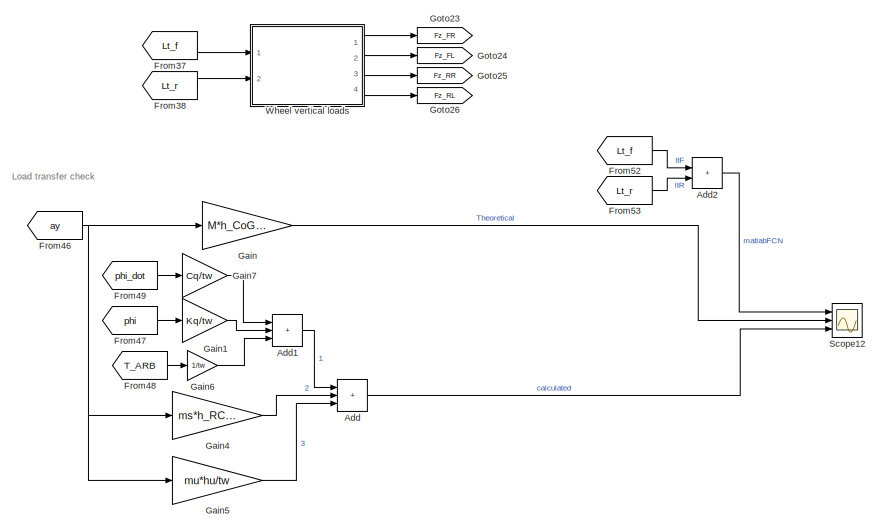
[diagram: CarMaker/IPG Vehicle/CarAndTrailer/Trailer/MIMO VD Model vs CarMaker/MIMO 1DOF roll with LT1 - part 4/4, bottom center region]
BLOCK [SubSystem] CarMaker/IPG Vehicle/CarAndTrailer/Trailer/MIMO VD Model vs CarMaker/MIMO 1DOF roll with LT1
  MinAlgLoopOccurrences = on
  Ports = [8, 6]
  RequestExecContextInheritance = off
  TreatAsAtomicUnit = on
BLOCK [SubSystem] CarMaker/IPG Vehicle/CarAndTrailer/Trailer/MIMO VD Model vs CarMaker/MIMO 1DOF roll with LT1/1DOF roll equation
  Ports = [8, 2]
  RequestExecContextInheritance = off
BLOCK [Sum] CarMaker/IPG Vehicle/CarAndTrailer/Trailer/MIMO VD Model vs CarMaker/MIMO 1DOF roll with LT1/1DOF roll equation/Add6
  IconShape = rectangular
  Ports = [2, 1]
BLOCK [Sum] CarMaker/IPG Vehicle/CarAndTrailer/Trailer/MIMO VD Model vs CarMaker/MIMO 1DOF roll with LT1/1DOF roll equation/Add7
  IconShape = rectangular
  Inputs = +---
  Ports = [4, 1]
BLOCK [Gain] CarMaker/IPG Vehicle/CarAndTrailer/Trailer/MIMO VD Model vs CarMaker/MIMO 1DOF roll with LT1/1DOF roll equation/Gain11
  Gain = 1/Ix
BLOCK [Gain] CarMaker/IPG Vehicle/CarAndTrailer/Trailer/MIMO VD Model vs CarMaker/MIMO 1DOF roll with LT1/1DOF roll equation/Gain12
  Gain = ms*hs
BLOCK [Integrator] CarMaker/IPG Vehicle/CarAndTrailer/Trailer/MIMO VD Model vs CarMaker/MIMO 1DOF roll with LT1/1DOF roll equation/Integrator2
  InitialConditionSource = external
  Ports = [2, 1]
BLOCK [Integrator] CarMaker/IPG Vehicle/CarAndTrailer/Trailer/MIMO VD Model vs CarMaker/MIMO 1DOF roll with LT1/1DOF roll equation/Integrator3
  InitialConditionSource = external
  Ports = [2, 1]
BLOCK [Inport] CarMaker/IPG Vehicle/CarAndTrailer/Trailer/MIMO VD Model vs CarMaker/MIMO 1DOF roll with LT1/1DOF roll equation/M_damp
  Port = 8
BLOCK [Inport] CarMaker/IPG Vehicle/CarAndTrailer/Trailer/MIMO VD Model vs CarMaker/MIMO 1DOF roll with LT1/1DOF roll equation/M_stiff
  Port = 7
BLOCK [Product] CarMaker/IPG Vehicle/CarAndTrailer/Trailer/MIMO VD Model vs CarMaker/MIMO 1DOF roll with LT1/1DOF roll equation/Product2
  Ports = [2, 1]
BLOCK [Inport] CarMaker/IPG Vehicle/CarAndTrailer/Trailer/MIMO VD Model vs CarMaker/MIMO 1DOF roll with LT1/1DOF roll equation/T_ARB
  Port = 4
BLOCK [Outport] CarMaker/IPG Vehicle/CarAndTrailer/Trailer/MIMO VD Model vs CarMaker/MIMO 1DOF roll with LT1/1DOF roll equation/phi
  Port = 2
BLOCK [Inport] CarMaker/IPG Vehicle/CarAndTrailer/Trailer/MIMO VD Model vs CarMaker/MIMO 1DOF roll with LT1/1DOF roll equation/phi_0
  Port = 6
BLOCK [Outport] CarMaker/IPG Vehicle/CarAndTrailer/Trailer/MIMO VD Model vs CarMaker/MIMO 1DOF roll with LT1/1DOF roll equation/phi_dot
BLOCK [Inport] CarMaker/IPG Vehicle/CarAndTrailer/Trailer/MIMO VD Model vs CarMaker/MIMO 1DOF roll with LT1/1DOF roll equation/phi_dot_0
  Port = 5
BLOCK [Inport] CarMaker/IPG Vehicle/CarAndTrailer/Trailer/MIMO VD Model vs CarMaker/MIMO 1DOF roll with LT1/1DOF roll equation/r
  Port = 3
BLOCK [Inport] CarMaker/IPG Vehicle/CarAndTrailer/Trailer/MIMO VD Model vs CarMaker/MIMO 1DOF roll with LT1/1DOF roll equation/u
  Port = 2
BLOCK [Inport] CarMaker/IPG Vehicle/CarAndTrailer/Trailer/MIMO VD Model vs CarMaker/MIMO 1DOF roll with LT1/1DOF roll equation/v_dot
BLOCK [Sum] CarMaker/IPG Vehicle/CarAndTrailer/Trailer/MIMO VD Model vs CarMaker/MIMO 1DOF roll with LT1/Add
  Commented = on
  IconShape = rectangular
  Inputs = +++
  Ports = [3, 1]
BLOCK [Sum] CarMaker/IPG Vehicle/CarAndTrailer/Trailer/MIMO VD Model vs CarMaker/MIMO 1DOF roll with LT1/Add1
  Commented = on
  IconShape = rectangular
  Inputs = +++
  Ports = [3, 1]
BLOCK [Sum] CarMaker/IPG Vehicle/CarAndTrailer/Trailer/MIMO VD Model vs CarMaker/MIMO 1DOF roll with LT1/Add10
  IconShape = rectangular
  Ports = [2, 1]
BLOCK [Sum] CarMaker/IPG Vehicle/CarAndTrailer/Trailer/MIMO VD Model vs CarMaker/MIMO 1DOF roll with LT1/Add2
  Commented = on
  IconShape = rectangular
  Ports = [2, 1]
BLOCK [Sum] CarMaker/IPG Vehicle/CarAndTrailer/Trailer/MIMO VD Model vs CarMaker/MIMO 1DOF roll with LT1/Add8
  IconShape = rectangular
  Ports = [2, 1]
BLOCK [Constant] CarMaker/IPG Vehicle/CarAndTrailer/Trailer/MIMO VD Model vs CarMaker/MIMO 1DOF roll with LT1/Constant4
  Commented = on
  Value = params.mat
BLOCK [Constant] CarMaker/IPG Vehicle/CarAndTrailer/Trailer/MIMO VD Model vs CarMaker/MIMO 1DOF roll with LT1/Constant5
  Value = params
BLOCK [Constant] CarMaker/IPG Vehicle/CarAndTrailer/Trailer/MIMO VD Model vs CarMaker/MIMO 1DOF roll with LT1/Constant6
  Value = params
BLOCK [FromWorkspace] CarMaker/IPG Vehicle/CarAndTrailer/Trailer/MIMO VD Model vs CarMaker/MIMO 1DOF roll with LT1/From Workspace
  Commented = on
  VariableName = simin
BLOCK [From] CarMaker/IPG Vehicle/CarAndTrailer/Trailer/MIMO VD Model vs CarMaker/MIMO 1DOF roll with LT1/From1
  GotoTag = v
BLOCK [From] CarMaker/IPG Vehicle/CarAndTrailer/Trailer/MIMO VD Model vs CarMaker/MIMO 1DOF roll with LT1/From10
  GotoTag = FyR
BLOCK [From] CarMaker/IPG Vehicle/CarAndTrailer/Trailer/MIMO VD Model vs CarMaker/MIMO 1DOF roll with LT1/From11
  GotoTag = r
BLOCK [From] CarMaker/IPG Vehicle/CarAndTrailer/Trailer/MIMO VD Model vs CarMaker/MIMO 1DOF roll with LT1/From12
  GotoTag = r_dot
BLOCK [From] CarMaker/IPG Vehicle/CarAndTrailer/Trailer/MIMO VD Model vs CarMaker/MIMO 1DOF roll with LT1/From13
  GotoTag = u
BLOCK [From] CarMaker/IPG Vehicle/CarAndTrailer/Trailer/MIMO VD Model vs CarMaker/MIMO 1DOF roll with LT1/From14
  GotoTag = r
BLOCK [From] CarMaker/IPG Vehicle/CarAndTrailer/Trailer/MIMO VD Model vs CarMaker/MIMO 1DOF roll with LT1/From15
  GotoTag = FyR
BLOCK [From] CarMaker/IPG Vehicle/CarAndTrailer/Trailer/MIMO VD Model vs CarMaker/MIMO 1DOF roll with LT1/From16
  GotoTag = FyF
BLOCK [From] CarMaker/IPG Vehicle/CarAndTrailer/Trailer/MIMO VD Model vs CarMaker/MIMO 1DOF roll with LT1/From17
  GotoTag = r
BLOCK [From] CarMaker/IPG Vehicle/CarAndTrailer/Trailer/MIMO VD Model vs CarMaker/MIMO 1DOF roll with LT1/From18
  GotoTag = u
BLOCK [From] CarMaker/IPG Vehicle/CarAndTrailer/Trailer/MIMO VD Model vs CarMaker/MIMO 1DOF roll with LT1/From19
  GotoTag = ay
BLOCK [From] CarMaker/IPG Vehicle/CarAndTrailer/Trailer/MIMO VD Model vs CarMaker/MIMO 1DOF roll with LT1/From2
  GotoTag = r
BLOCK [From] CarMaker/IPG Vehicle/CarAndTrailer/Trailer/MIMO VD Model vs CarMaker/MIMO 1DOF roll with LT1/From20
  GotoTag = v_dot
BLOCK [From] CarMaker/IPG Vehicle/CarAndTrailer/Trailer/MIMO VD Model vs CarMaker/MIMO 1DOF roll with LT1/From21
  GotoTag = u
BLOCK [From] CarMaker/IPG Vehicle/CarAndTrailer/Trailer/MIMO VD Model vs CarMaker/MIMO 1DOF roll with LT1/From22
  GotoTag = r
BLOCK [From] CarMaker/IPG Vehicle/CarAndTrailer/Trailer/MIMO VD Model vs CarMaker/MIMO 1DOF roll with LT1/From23
  GotoTag = phi
BLOCK [From] CarMaker/IPG Vehicle/CarAndTrailer/Trailer/MIMO VD Model vs CarMaker/MIMO 1DOF roll with LT1/From24
  GotoTag = phi_dot
BLOCK [From] CarMaker/IPG Vehicle/CarAndTrailer/Trailer/MIMO VD Model vs CarMaker/MIMO 1DOF roll with LT1/From25
  GotoTag = T_ARB
BLOCK [From] CarMaker/IPG Vehicle/CarAndTrailer/Trailer/MIMO VD Model vs CarMaker/MIMO 1DOF roll with LT1/From26
  GotoTag = phi_dot_0
BLOCK [From] CarMaker/IPG Vehicle/CarAndTrailer/Trailer/MIMO VD Model vs CarMaker/MIMO 1DOF roll with LT1/From27
  GotoTag = phi_0
BLOCK [From] CarMaker/IPG Vehicle/CarAndTrailer/Trailer/MIMO VD Model vs CarMaker/MIMO 1DOF roll with LT1/From28
  GotoTag = v_0
BLOCK [From] CarMaker/IPG Vehicle/CarAndTrailer/Trailer/MIMO VD Model vs CarMaker/MIMO 1DOF roll with LT1/From29
  GotoTag = r_0
BLOCK [From] CarMaker/IPG Vehicle/CarAndTrailer/Trailer/MIMO VD Model vs CarMaker/MIMO 1DOF roll with LT1/From3
  GotoTag = u
BLOCK [From] CarMaker/IPG Vehicle/CarAndTrailer/Trailer/MIMO VD Model vs CarMaker/MIMO 1DOF roll with LT1/From32
  GotoTag = ay
BLOCK [From] CarMaker/IPG Vehicle/CarAndTrailer/Trailer/MIMO VD Model vs CarMaker/MIMO 1DOF roll with LT1/From33
  GotoTag = T_ARB_f
BLOCK [From] CarMaker/IPG Vehicle/CarAndTrailer/Trailer/MIMO VD Model vs CarMaker/MIMO 1DOF roll with LT1/From34
  GotoTag = T_ARB_r
BLOCK [From] CarMaker/IPG Vehicle/CarAndTrailer/Trailer/MIMO VD Model vs CarMaker/MIMO 1DOF roll with LT1/From37
  GotoTag = Lt_f
BLOCK [From] CarMaker/IPG Vehicle/CarAndTrailer/Trailer/MIMO VD Model vs CarMaker/MIMO 1DOF roll with LT1/From38
  GotoTag = Lt_r
BLOCK [From] CarMaker/IPG Vehicle/CarAndTrailer/Trailer/MIMO VD Model vs CarMaker/MIMO 1DOF roll with LT1/From39
  GotoTag = Cf
BLOCK [From] CarMaker/IPG Vehicle/CarAndTrailer/Trailer/MIMO VD Model vs CarMaker/MIMO 1DOF roll with LT1/From40
  GotoTag = Fz_RR
BLOCK [From] CarMaker/IPG Vehicle/CarAndTrailer/Trailer/MIMO VD Model vs CarMaker/MIMO 1DOF roll with LT1/From41
  GotoTag = v_dot
BLOCK [From] CarMaker/IPG Vehicle/CarAndTrailer/Trailer/MIMO VD Model vs CarMaker/MIMO 1DOF roll with LT1/From42
  GotoTag = alpha_r
BLOCK [From] CarMaker/IPG Vehicle/CarAndTrailer/Trailer/MIMO VD Model vs CarMaker/MIMO 1DOF roll with LT1/From43
  GotoTag = Fz_RL
BLOCK [From] CarMaker/IPG Vehicle/CarAndTrailer/Trailer/MIMO VD Model vs CarMaker/MIMO 1DOF roll with LT1/From44
  GotoTag = Cr
BLOCK [From] CarMaker/IPG Vehicle/CarAndTrailer/Trailer/MIMO VD Model vs CarMaker/MIMO 1DOF roll with LT1/From45
  GotoTag = Ku
BLOCK [From] CarMaker/IPG Vehicle/CarAndTrailer/Trailer/MIMO VD Model vs CarMaker/MIMO 1DOF roll with LT1/From46
  Commented = on
  GotoTag = ay
BLOCK [From] CarMaker/IPG Vehicle/CarAndTrailer/Trailer/MIMO VD Model vs CarMaker/MIMO 1DOF roll with LT1/From47
  Commented = on
  GotoTag = phi
BLOCK [From] CarMaker/IPG Vehicle/CarAndTrailer/Trailer/MIMO VD Model vs CarMaker/MIMO 1DOF roll with LT1/From48
  Commented = on
  GotoTag = T_ARB
BLOCK [From] CarMaker/IPG Vehicle/CarAndTrailer/Trailer/MIMO VD Model vs CarMaker/MIMO 1DOF roll with LT1/From49
  Commented = on
  GotoTag = phi_dot
BLOCK [From] CarMaker/IPG Vehicle/CarAndTrailer/Trailer/MIMO VD Model vs CarMaker/MIMO 1DOF roll with LT1/From5
  GotoTag = Fz_FR
BLOCK [From] CarMaker/IPG Vehicle/CarAndTrailer/Trailer/MIMO VD Model vs CarMaker/MIMO 1DOF roll with LT1/From50
  GotoTag = phi
BLOCK [From] CarMaker/IPG Vehicle/CarAndTrailer/Trailer/MIMO VD Model vs CarMaker/MIMO 1DOF roll with LT1/From51
  GotoTag = M_stiff
BLOCK [From] CarMaker/IPG Vehicle/CarAndTrailer/Trailer/MIMO VD Model vs CarMaker/MIMO 1DOF roll with LT1/From52
  Commented = on
  GotoTag = Lt_f
BLOCK [From] CarMaker/IPG Vehicle/CarAndTrailer/Trailer/MIMO VD Model vs CarMaker/MIMO 1DOF roll with LT1/From53
  Commented = on
  GotoTag = Lt_r
BLOCK [From] CarMaker/IPG Vehicle/CarAndTrailer/Trailer/MIMO VD Model vs CarMaker/MIMO 1DOF roll with LT1/From54
  GotoTag = phi_dot
BLOCK [From] CarMaker/IPG Vehicle/CarAndTrailer/Trailer/MIMO VD Model vs CarMaker/MIMO 1DOF roll with LT1/From55
  GotoTag = M_damp
BLOCK [From] CarMaker/IPG Vehicle/CarAndTrailer/Trailer/MIMO VD Model vs CarMaker/MIMO 1DOF roll with LT1/From56
  GotoTag = Mf_stiff
BLOCK [From] CarMaker/IPG Vehicle/CarAndTrailer/Trailer/MIMO VD Model vs CarMaker/MIMO 1DOF roll with LT1/From57
  GotoTag = Mr_stiff
BLOCK [From] CarMaker/IPG Vehicle/CarAndTrailer/Trailer/MIMO VD Model vs CarMaker/MIMO 1DOF roll with LT1/From58
  GotoTag = Mf_damp
BLOCK [From] CarMaker/IPG Vehicle/CarAndTrailer/Trailer/MIMO VD Model vs CarMaker/MIMO 1DOF roll with LT1/From59
  GotoTag = Mr_damp
BLOCK [From] CarMaker/IPG Vehicle/CarAndTrailer/Trailer/MIMO VD Model vs CarMaker/MIMO 1DOF roll with LT1/From6
  GotoTag = alpha_f
BLOCK [From] CarMaker/IPG Vehicle/CarAndTrailer/Trailer/MIMO VD Model vs CarMaker/MIMO 1DOF roll with LT1/From7
  GotoTag = Fz_FL
BLOCK [From] CarMaker/IPG Vehicle/CarAndTrailer/Trailer/MIMO VD Model vs CarMaker/MIMO 1DOF roll with LT1/From8
  GotoTag = delta_rad
BLOCK [From] CarMaker/IPG Vehicle/CarAndTrailer/Trailer/MIMO VD Model vs CarMaker/MIMO 1DOF roll with LT1/From9
  GotoTag = FyF
BLOCK [Gain] CarMaker/IPG Vehicle/CarAndTrailer/Trailer/MIMO VD Model vs CarMaker/MIMO 1DOF roll with LT1/Gain
  Commented = on
  Gain = M*h_CoG/tw
BLOCK [Gain] CarMaker/IPG Vehicle/CarAndTrailer/Trailer/MIMO VD Model vs CarMaker/MIMO 1DOF roll with LT1/Gain1
  Commented = on
  Gain = Kq/tw
BLOCK [Gain] CarMaker/IPG Vehicle/CarAndTrailer/Trailer/MIMO VD Model vs CarMaker/MIMO 1DOF roll with LT1/Gain10
  Gain = 180/pi
BLOCK [Gain] CarMaker/IPG Vehicle/CarAndTrailer/Trailer/MIMO VD Model vs CarMaker/MIMO 1DOF roll with LT1/Gain4
  Commented = on
  Gain = ms*h_RC/tw
BLOCK [Gain] CarMaker/IPG Vehicle/CarAndTrailer/Trailer/MIMO VD Model vs CarMaker/MIMO 1DOF roll with LT1/Gain5
  Commented = on
  Gain = mu*hu/tw
BLOCK [Gain] CarMaker/IPG Vehicle/CarAndTrailer/Trailer/MIMO VD Model vs CarMaker/MIMO 1DOF roll with LT1/Gain6
  Commented = on
  Gain = 1/tw
BLOCK [Gain] CarMaker/IPG Vehicle/CarAndTrailer/Trailer/MIMO VD Model vs CarMaker/MIMO 1DOF roll with LT1/Gain7
  Commented = on
  Gain = Cq/tw
BLOCK [Gain] CarMaker/IPG Vehicle/CarAndTrailer/Trailer/MIMO VD Model vs CarMaker/MIMO 1DOF roll with LT1/Gain8
  Gain = pi/180
BLOCK [Gain] CarMaker/IPG Vehicle/CarAndTrailer/Trailer/MIMO VD Model vs CarMaker/MIMO 1DOF roll with LT1/Gain9
  Gain = 180/pi
BLOCK [Goto] CarMaker/IPG Vehicle/CarAndTrailer/Trailer/MIMO VD Model vs CarMaker/MIMO 1DOF roll with LT1/Goto
  GotoTag = alpha_r
BLOCK [Goto] CarMaker/IPG Vehicle/CarAndTrailer/Trailer/MIMO VD Model vs CarMaker/MIMO 1DOF roll with LT1/Goto1
  GotoTag = alpha_f
BLOCK [Goto] CarMaker/IPG Vehicle/CarAndTrailer/Trailer/MIMO VD Model vs CarMaker/MIMO 1DOF roll with LT1/Goto10
  GotoTag = ay
BLOCK [Goto] CarMaker/IPG Vehicle/CarAndTrailer/Trailer/MIMO VD Model vs CarMaker/MIMO 1DOF roll with LT1/Goto11
  GotoTag = v_dot
BLOCK [Goto] CarMaker/IPG Vehicle/CarAndTrailer/Trailer/MIMO VD Model vs CarMaker/MIMO 1DOF roll with LT1/Goto12
  GotoTag = phi
BLOCK [Goto] CarMaker/IPG Vehicle/CarAndTrailer/Trailer/MIMO VD Model vs CarMaker/MIMO 1DOF roll with LT1/Goto13
  GotoTag = phi_dot
BLOCK [Goto] CarMaker/IPG Vehicle/CarAndTrailer/Trailer/MIMO VD Model vs CarMaker/MIMO 1DOF roll with LT1/Goto14
  GotoTag = T_ARB
BLOCK [Goto] CarMaker/IPG Vehicle/CarAndTrailer/Trailer/MIMO VD Model vs CarMaker/MIMO 1DOF roll with LT1/Goto15
  GotoTag = phi_dot_0
BLOCK [Goto] CarMaker/IPG Vehicle/CarAndTrailer/Trailer/MIMO VD Model vs CarMaker/MIMO 1DOF roll with LT1/Goto16
  GotoTag = phi_0
BLOCK [Goto] CarMaker/IPG Vehicle/CarAndTrailer/Trailer/MIMO VD Model vs CarMaker/MIMO 1DOF roll with LT1/Goto17
  GotoTag = v_0
BLOCK [Goto] CarMaker/IPG Vehicle/CarAndTrailer/Trailer/MIMO VD Model vs CarMaker/MIMO 1DOF roll with LT1/Goto18
  GotoTag = r_0
BLOCK [Goto] CarMaker/IPG Vehicle/CarAndTrailer/Trailer/MIMO VD Model vs CarMaker/MIMO 1DOF roll with LT1/Goto19
  GotoTag = T_ARB_f
BLOCK [Goto] CarMaker/IPG Vehicle/CarAndTrailer/Trailer/MIMO VD Model vs CarMaker/MIMO 1DOF roll with LT1/Goto2
  GotoTag = delta_rad
BLOCK [Goto] CarMaker/IPG Vehicle/CarAndTrailer/Trailer/MIMO VD Model vs CarMaker/MIMO 1DOF roll with LT1/Goto20
  GotoTag = T_ARB_r
BLOCK [Goto] CarMaker/IPG Vehicle/CarAndTrailer/Trailer/MIMO VD Model vs CarMaker/MIMO 1DOF roll with LT1/Goto21
  GotoTag = Lt_f
BLOCK [Goto] CarMaker/IPG Vehicle/CarAndTrailer/Trailer/MIMO VD Model vs CarMaker/MIMO 1DOF roll with LT1/Goto22
  GotoTag = Lt_r
BLOCK [Goto] CarMaker/IPG Vehicle/CarAndTrailer/Trailer/MIMO VD Model vs CarMaker/MIMO 1DOF roll with LT1/Goto23
  GotoTag = Fz_FR
BLOCK [Goto] CarMaker/IPG Vehicle/CarAndTrailer/Trailer/MIMO VD Model vs CarMaker/MIMO 1DOF roll with LT1/Goto24
  GotoTag = Fz_FL
BLOCK [Goto] CarMaker/IPG Vehicle/CarAndTrailer/Trailer/MIMO VD Model vs CarMaker/MIMO 1DOF roll with LT1/Goto25
  GotoTag = Fz_RR
BLOCK [Goto] CarMaker/IPG Vehicle/CarAndTrailer/Trailer/MIMO VD Model vs CarMaker/MIMO 1DOF roll with LT1/Goto26
  GotoTag = Fz_RL
BLOCK [Goto] CarMaker/IPG Vehicle/CarAndTrailer/Trailer/MIMO VD Model vs CarMaker/MIMO 1DOF roll with LT1/Goto27
  GotoTag = FyF
BLOCK [Goto] CarMaker/IPG Vehicle/CarAndTrailer/Trailer/MIMO VD Model vs CarMaker/MIMO 1DOF roll with LT1/Goto28
  GotoTag = FyR
BLOCK [Goto] CarMaker/IPG Vehicle/CarAndTrailer/Trailer/MIMO VD Model vs CarMaker/MIMO 1DOF roll with LT1/Goto29
  GotoTag = Cf
BLOCK [Goto] CarMaker/IPG Vehicle/CarAndTrailer/Trailer/MIMO VD Model vs CarMaker/MIMO 1DOF roll with LT1/Goto3
  GotoTag = v
BLOCK [Goto] CarMaker/IPG Vehicle/CarAndTrailer/Trailer/MIMO VD Model vs CarMaker/MIMO 1DOF roll with LT1/Goto30
  GotoTag = Cr
BLOCK [Goto] CarMaker/IPG Vehicle/CarAndTrailer/Trailer/MIMO VD Model vs CarMaker/MIMO 1DOF roll with LT1/Goto31
  GotoTag = Ku
BLOCK [Goto] CarMaker/IPG Vehicle/CarAndTrailer/Trailer/MIMO VD Model vs CarMaker/MIMO 1DOF roll with LT1/Goto32
  GotoTag = M_stiff
BLOCK [Goto] CarMaker/IPG Vehicle/CarAndTrailer/Trailer/MIMO VD Model vs CarMaker/MIMO 1DOF roll with LT1/Goto33
  GotoTag = Mf_stiff
BLOCK [Goto] CarMaker/IPG Vehicle/CarAndTrailer/Trailer/MIMO VD Model vs CarMaker/MIMO 1DOF roll with LT1/Goto34
  GotoTag = Mr_stiff
BLOCK [Goto] CarMaker/IPG Vehicle/CarAndTrailer/Trailer/MIMO VD Model vs CarMaker/MIMO 1DOF roll with LT1/Goto35
  GotoTag = M_damp
BLOCK [Goto] CarMaker/IPG Vehicle/CarAndTrailer/Trailer/MIMO VD Model vs CarMaker/MIMO 1DOF roll with LT1/Goto36
  GotoTag = Mf_damp
BLOCK [Goto] CarMaker/IPG Vehicle/CarAndTrailer/Trailer/MIMO VD Model vs CarMaker/MIMO 1DOF roll with LT1/Goto37
  GotoTag = Mr_damp
BLOCK [Goto] CarMaker/IPG Vehicle/CarAndTrailer/Trailer/MIMO VD Model vs CarMaker/MIMO 1DOF roll with LT1/Goto4
  GotoTag = u
BLOCK [Goto] CarMaker/IPG Vehicle/CarAndTrailer/Trailer/MIMO VD Model vs CarMaker/MIMO 1DOF roll with LT1/Goto5
  Commented = on
  GotoTag = delta_deg
BLOCK [Goto] CarMaker/IPG Vehicle/CarAndTrailer/Trailer/MIMO VD Model vs CarMaker/MIMO 1DOF roll with LT1/Goto8
  GotoTag = r
BLOCK [Goto] CarMaker/IPG Vehicle/CarAndTrailer/Trailer/MIMO VD Model vs CarMaker/MIMO 1DOF roll with LT1/Goto9
  GotoTag = r_dot
BLOCK [Outport] CarMaker/IPG Vehicle/CarAndTrailer/Trailer/MIMO VD Model vs CarMaker/MIMO 1DOF roll with LT1/Ku
  Port = 6
BLOCK [SubSystem] CarMaker/IPG Vehicle/CarAndTrailer/Trailer/MIMO VD Model vs CarMaker/MIMO 1DOF roll with LT1/Load Transfer
  ErrorFcn = Stateflow.Translate.translate
  PermitHierarchicalResolution = ExplicitOnly
  Ports = [8, 2]
  RequestExecContextInheritance = off
  SFBlockType = MATLAB Function
  TreatAsAtomicUnit = on
BLOCK [Demux] CarMaker/IPG Vehicle/CarAndTrailer/Trailer/MIMO VD Model vs CarMaker/MIMO 1DOF roll with LT1/Load Transfer/ Demux 
  Outputs = 1
  Ports = [1, 1]
BLOCK [S-Function] CarMaker/IPG Vehicle/CarAndTrailer/Trailer/MIMO VD Model vs CarMaker/MIMO 1DOF roll with LT1/Load Transfer/ SFunction 
  EnableBusSupport = on
  FunctionName = sf_sfun
  PortCounts = [8 3]
  Ports = [8, 3]
  SFcnIsStateOwnerBlock = off
  SFunctionDeploymentMode = off
  Tag = Stateflow S-Function 13
BLOCK [Terminator] CarMaker/IPG Vehicle/CarAndTrailer/Trailer/MIMO VD Model vs CarMaker/MIMO 1DOF roll with LT1/Load Transfer/ Terminator 
BLOCK [Outport] CarMaker/IPG Vehicle/CarAndTrailer/Trailer/MIMO VD Model vs CarMaker/MIMO 1DOF roll with LT1/Load Transfer/Lt_f
BLOCK [Outport] CarMaker/IPG Vehicle/CarAndTrailer/Trailer/MIMO VD Model vs CarMaker/MIMO 1DOF roll with LT1/Load Transfer/Lt_r
  Port = 2
BLOCK [Inport] CarMaker/IPG Vehicle/CarAndTrailer/Trailer/MIMO VD Model vs CarMaker/MIMO 1DOF roll with LT1/Load Transfer/Mf_damp
  Port = 2
BLOCK [Inport] CarMaker/IPG Vehicle/CarAndTrailer/Trailer/MIMO VD Model vs CarMaker/MIMO 1DOF roll with LT1/Load Transfer/Mf_stiff
BLOCK [Inport] CarMaker/IPG Vehicle/CarAndTrailer/Trailer/MIMO VD Model vs CarMaker/MIMO 1DOF roll with LT1/Load Transfer/Mr_damp
  Port = 4
BLOCK [Inport] CarMaker/IPG Vehicle/CarAndTrailer/Trailer/MIMO VD Model vs CarMaker/MIMO 1DOF roll with LT1/Load Transfer/Mr_stiff
  Port = 3
BLOCK [Inport] CarMaker/IPG Vehicle/CarAndTrailer/Trailer/MIMO VD Model vs CarMaker/MIMO 1DOF roll with LT1/Load Transfer/T_ARB_f
  Port = 5
BLOCK [Inport] CarMaker/IPG Vehicle/CarAndTrailer/Trailer/MIMO VD Model vs CarMaker/MIMO 1DOF roll with LT1/Load Transfer/T_ARB_r
  Port = 6
BLOCK [Inport] CarMaker/IPG Vehicle/CarAndTrailer/Trailer/MIMO VD Model vs CarMaker/MIMO 1DOF roll with LT1/Load Transfer/ay
  Port = 7
BLOCK [Inport] CarMaker/IPG Vehicle/CarAndTrailer/Trailer/MIMO VD Model vs CarMaker/MIMO 1DOF roll with LT1/Load Transfer/params
  Port = 8
BLOCK [SubSystem] CarMaker/IPG Vehicle/CarAndTrailer/Trailer/MIMO VD Model vs CarMaker/MIMO 1DOF roll with LT1/MATLAB Function
  ErrorFcn = Stateflow.Translate.translate
  PermitHierarchicalResolution = ExplicitOnly
  Ports = [3, 1]
  RequestExecContextInheritance = off
  SFBlockType = MATLAB Function
  TreatAsAtomicUnit = on
BLOCK [Demux] CarMaker/IPG Vehicle/CarAndTrailer/Trailer/MIMO VD Model vs CarMaker/MIMO 1DOF roll with LT1/MATLAB Function/ Demux 
  Outputs = 1
  Ports = [1, 1]
BLOCK [S-Function] CarMaker/IPG Vehicle/CarAndTrailer/Trailer/MIMO VD Model vs CarMaker/MIMO 1DOF roll with LT1/MATLAB Function/ SFunction 
  EnableBusSupport = on
  FunctionName = sf_sfun
  PortCounts = [3 2]
  Ports = [3, 2]
  SFcnIsStateOwnerBlock = off
  SFunctionDeploymentMode = off
  Tag = Stateflow S-Function 14
BLOCK [Terminator] CarMaker/IPG Vehicle/CarAndTrailer/Trailer/MIMO VD Model vs CarMaker/MIMO 1DOF roll with LT1/MATLAB Function/ Terminator 
BLOCK [Inport] CarMaker/IPG Vehicle/CarAndTrailer/Trailer/MIMO VD Model vs CarMaker/MIMO 1DOF roll with LT1/MATLAB Function/Cf
BLOCK [Inport] CarMaker/IPG Vehicle/CarAndTrailer/Trailer/MIMO VD Model vs CarMaker/MIMO 1DOF roll with LT1/MATLAB Function/Cr
  Port = 2
BLOCK [Outport] CarMaker/IPG Vehicle/CarAndTrailer/Trailer/MIMO VD Model vs CarMaker/MIMO 1DOF roll with LT1/MATLAB Function/Ku
BLOCK [Inport] CarMaker/IPG Vehicle/CarAndTrailer/Trailer/MIMO VD Model vs CarMaker/MIMO 1DOF roll with LT1/MATLAB Function/params
  Port = 3
BLOCK [Product] CarMaker/IPG Vehicle/CarAndTrailer/Trailer/MIMO VD Model vs CarMaker/MIMO 1DOF roll with LT1/Product1
  Ports = [2, 1]
BLOCK [SubSystem] CarMaker/IPG Vehicle/CarAndTrailer/Trailer/MIMO VD Model vs CarMaker/MIMO 1DOF roll with LT1/Roll damping
  Ports = [1, 3]
  RequestExecContextInheritance = off
BLOCK [Sum] CarMaker/IPG Vehicle/CarAndTrailer/Trailer/MIMO VD Model vs CarMaker/MIMO 1DOF roll with LT1/Roll damping/Add3
  IconShape = rectangular
  Ports = [2, 1]
BLOCK [Lookup_n-D] CarMaker/IPG Vehicle/CarAndTrailer/Trailer/MIMO VD Model vs CarMaker/MIMO 1DOF roll with LT1/Roll damping/Front roll damping
  BreakpointsForDimension1 = theta_dot_f_damp
  InputPortMap = u0
  InternalRulePriority = Speed
  NumberOfTableDimensions = 1
  Ports = [1, 1]
  RndMeth = Simplest
  Table = M_damp_f
BLOCK [Outport] CarMaker/IPG Vehicle/CarAndTrailer/Trailer/MIMO VD Model vs CarMaker/MIMO 1DOF roll with LT1/Roll damping/M_damp
  Port = 3
BLOCK [Outport] CarMaker/IPG Vehicle/CarAndTrailer/Trailer/MIMO VD Model vs CarMaker/MIMO 1DOF roll with LT1/Roll damping/Mf_damp
BLOCK [Outport] CarMaker/IPG Vehicle/CarAndTrailer/Trailer/MIMO VD Model vs CarMaker/MIMO 1DOF roll with LT1/Roll damping/Mr_damp
  Port = 2
BLOCK [Lookup_n-D] CarMaker/IPG Vehicle/CarAndTrailer/Trailer/MIMO VD Model vs CarMaker/MIMO 1DOF roll with LT1/Roll damping/Rear roll damping
  BreakpointsForDimension1 = theta_dot_r_damp
  InputPortMap = u0
  InternalRulePriority = Speed
  NumberOfTableDimensions = 1
  Ports = [1, 1]
  RndMeth = Simplest
  Table = M_damp_r
BLOCK [Inport] CarMaker/IPG Vehicle/CarAndTrailer/Trailer/MIMO VD Model vs CarMaker/MIMO 1DOF roll with LT1/Roll damping/phi_0
BLOCK [SubSystem] CarMaker/IPG Vehicle/CarAndTrailer/Trailer/MIMO VD Model vs CarMaker/MIMO 1DOF roll with LT1/Roll siffness
  Ports = [1, 3]
  RequestExecContextInheritance = off
BLOCK [Sum] CarMaker/IPG Vehicle/CarAndTrailer/Trailer/MIMO VD Model vs CarMaker/MIMO 1DOF roll with LT1/Roll siffness/Add3
  IconShape = rectangular
  Ports = [2, 1]
BLOCK [Lookup_n-D] CarMaker/IPG Vehicle/CarAndTrailer/Trailer/MIMO VD Model vs CarMaker/MIMO 1DOF roll with LT1/Roll siffness/Front roll stiffness
  BreakpointsForDimension1 = theta_f_stiff
  InputPortMap = u0
  InternalRulePriority = Speed
  NumberOfTableDimensions = 1
  Ports = [1, 1]
  RndMeth = Simplest
  Table = Mf_stiff
BLOCK [Outport] CarMaker/IPG Vehicle/CarAndTrailer/Trailer/MIMO VD Model vs CarMaker/MIMO 1DOF roll with LT1/Roll siffness/M_stiff
  Port = 3
BLOCK [Outport] CarMaker/IPG Vehicle/CarAndTrailer/Trailer/MIMO VD Model vs CarMaker/MIMO 1DOF roll with LT1/Roll siffness/Mf_stiff
BLOCK [Outport] CarMaker/IPG Vehicle/CarAndTrailer/Trailer/MIMO VD Model vs CarMaker/MIMO 1DOF roll with LT1/Roll siffness/Mr_stiff
  Port = 2
BLOCK [Lookup_n-D] CarMaker/IPG Vehicle/CarAndTrailer/Trailer/MIMO VD Model vs CarMaker/MIMO 1DOF roll with LT1/Roll siffness/Rear roll stiffness
  BreakpointsForDimension1 = theta_r_stiff
  InputPortMap = u0
  InternalRulePriority = Speed
  NumberOfTableDimensions = 1
  Ports = [1, 1]
  RndMeth = Simplest
  Table = Mr_stiff
BLOCK [Inport] CarMaker/IPG Vehicle/CarAndTrailer/Trailer/MIMO VD Model vs CarMaker/MIMO 1DOF roll with LT1/Roll siffness/phi_0
BLOCK [Scope] CarMaker/IPG Vehicle/CarAndTrailer/Trailer/MIMO VD Model vs CarMaker/MIMO 1DOF roll with LT1/Scope
  Floating = off
  NumInputPorts = 1
  Ports = [1]
  ScopeSpecificationString = Simulink.scopes.TimeScopeBlockCfg('CurrentConfiguration', extmgr.ConfigurationSet(extmgr.Configuration('Core','General UI',true,'FigureColor',[1 1 1]),extmgr.Configuration('Core','Source UI',true),extmgr.Configuration('Sources','WiredSimulink',true,'DataLoggingVariableName','ScopeData2'),extmgr.Configuration('Visuals','Time Domain',true,'SerializedDisplays',{struct('MinYLimReal','-0.13984','MaxYLi...<+1551ch>
BLOCK [Scope] CarMaker/IPG Vehicle/CarAndTrailer/Trailer/MIMO VD Model vs CarMaker/MIMO 1DOF roll with LT1/Scope1
  Floating = off
  NumInputPorts = 1
  Ports = [1]
  ScopeSpecificationString = Simulink.scopes.TimeScopeBlockCfg('CurrentConfiguration', extmgr.ConfigurationSet(extmgr.Configuration('Core','General UI',true,'FigureColor',[1 1 1]),extmgr.Configuration('Core','Source UI',true),extmgr.Configuration('Sources','WiredSimulink',true,'DataLoggingVariableName','ScopeData3'),extmgr.Configuration('Visuals','Time Domain',true,'SerializedDisplays',{struct('MinYLimReal','-0.14511','MaxYLi...<+1530ch>
BLOCK [Scope] CarMaker/IPG Vehicle/CarAndTrailer/Trailer/MIMO VD Model vs CarMaker/MIMO 1DOF roll with LT1/Scope11
  Floating = off
  NumInputPorts = 1
  Ports = [1]
  ScopeSpecificationString = Simulink.scopes.TimeScopeBlockCfg('CurrentConfiguration', extmgr.ConfigurationSet(extmgr.Configuration('Core','General UI',true,'FigureColor',[1 1 1]),extmgr.Configuration('Core','Source UI',true),extmgr.Configuration('Sources','WiredSimulink',true,'DataLoggingVariableName','ScopeData4'),extmgr.Configuration('Visuals','Time Domain',true,'SerializedDisplays',{struct('MinYLimReal','-1.82306','MaxYLi...<+1551ch>
BLOCK [Scope] CarMaker/IPG Vehicle/CarAndTrailer/Trailer/MIMO VD Model vs CarMaker/MIMO 1DOF roll with LT1/Scope12
  Commented = on
  Floating = off
  NumInputPorts = 3
  Ports = [3]
  ScopeSpecificationString = Simulink.scopes.TimeScopeBlockCfg('CurrentConfiguration', extmgr.ConfigurationSet(extmgr.Configuration('Core','General UI',true,'FigureColor',[1 1 1]),extmgr.Configuration('Core','Source UI',true),extmgr.Configuration('Sources','WiredSimulink',true,'DataLoggingVariableName','ScopeData2'),extmgr.Configuration('Visuals','Time Domain',true,'SerializedDisplays',{struct('MinYLimReal','-694.89076','MaxY...<+2062ch>
BLOCK [Scope] CarMaker/IPG Vehicle/CarAndTrailer/Trailer/MIMO VD Model vs CarMaker/MIMO 1DOF roll with LT1/Scope13
  Floating = off
  NumInputPorts = 2
  Ports = [2]
  ScopeSpecificationString = Simulink.scopes.TimeScopeBlockCfg('CurrentConfiguration', extmgr.ConfigurationSet(extmgr.Configuration('Core','General UI',true,'FigureColor',[1 1 1]),extmgr.Configuration('Core','Source UI',true),extmgr.Configuration('Sources','WiredSimulink',true,'DataLoggingVariableName','ScopeData1'),extmgr.Configuration('Visuals','Time Domain',true,'SerializedDisplays',{struct('MinYLimReal','-381.19085','MaxY...<+1588ch>
BLOCK [Scope] CarMaker/IPG Vehicle/CarAndTrailer/Trailer/MIMO VD Model vs CarMaker/MIMO 1DOF roll with LT1/Scope2
  Commented = on
  Floating = off
  NumInputPorts = 1
  Ports = [1]
  ScopeSpecificationString = Simulink.scopes.TimeScopeBlockCfg('CurrentConfiguration', extmgr.ConfigurationSet(extmgr.Configuration('Core','General UI',true),extmgr.Configuration('Core','Source UI',true),extmgr.Configuration('Sources','WiredSimulink',true,'DataLoggingVariableName','ScopeData1'),extmgr.Configuration('Visuals','Time Domain',true,'SerializedDisplays',{struct('MinYLimReal','-10.00000','MaxYLimReal','10.00000','YL...<+1365ch>
BLOCK [Scope] CarMaker/IPG Vehicle/CarAndTrailer/Trailer/MIMO VD Model vs CarMaker/MIMO 1DOF roll with LT1/Scope4
  Floating = off
  NumInputPorts = 1
  Ports = [1]
  ScopeSpecificationString = Simulink.scopes.TimeScopeBlockCfg('CurrentConfiguration', extmgr.ConfigurationSet(extmgr.Configuration('Core','General UI',true,'FigureColor',[1 1 1]),extmgr.Configuration('Core','Source UI',true),extmgr.Configuration('Sources','WiredSimulink',true,'DataLoggingVariableName','ScopeData6'),extmgr.Configuration('Visuals','Time Domain',true,'SerializedDisplays',{struct('MinYLimReal','-0.02792','MaxYLi...<+1560ch>
BLOCK [Scope] CarMaker/IPG Vehicle/CarAndTrailer/Trailer/MIMO VD Model vs CarMaker/MIMO 1DOF roll with LT1/Scope5
  Floating = off
  NumInputPorts = 1
  Ports = [1]
  ScopeSpecificationString = Simulink.scopes.TimeScopeBlockCfg('CurrentConfiguration', extmgr.ConfigurationSet(extmgr.Configuration('Core','General UI',true,'FigureColor',[1 1 1]),extmgr.Configuration('Core','Source UI',true),extmgr.Configuration('Sources','WiredSimulink',true,'DataLoggingVariableName','ScopeData7'),extmgr.Configuration('Visuals','Time Domain',true,'SerializedDisplays',{struct('MinYLimReal','-2.8148','MaxYLim...<+1543ch>
BLOCK [Scope] CarMaker/IPG Vehicle/CarAndTrailer/Trailer/MIMO VD Model vs CarMaker/MIMO 1DOF roll with LT1/Scope7
  Floating = off
  NumInputPorts = 1
  Ports = [1]
  ScopeSpecificationString = Simulink.scopes.TimeScopeBlockCfg('CurrentConfiguration', extmgr.ConfigurationSet(extmgr.Configuration('Core','General UI',true,'FigureColor',[1 1 1]),extmgr.Configuration('Core','Source UI',true),extmgr.Configuration('Sources','WiredSimulink',true,'DataLoggingVariableName','ScopeData5'),extmgr.Configuration('Visuals','Time Domain',true,'SerializedDisplays',{struct('MinYLimReal','0.00013','MaxYLim...<+1545ch>
BLOCK [SubSystem] CarMaker/IPG Vehicle/CarAndTrailer/Trailer/MIMO VD Model vs CarMaker/MIMO 1DOF roll with LT1/Subsystem
  AttributesFormatString = %<MinAlgLoopOccurrences>
  Ports = [6, 4]
  RequestExecContextInheritance = off
BLOCK [Sum] CarMaker/IPG Vehicle/CarAndTrailer/Trailer/MIMO VD Model vs CarMaker/MIMO 1DOF roll with LT1/Subsystem/Add
  IconShape = rectangular
  Ports = [2, 1]
BLOCK [Sum] CarMaker/IPG Vehicle/CarAndTrailer/Trailer/MIMO VD Model vs CarMaker/MIMO 1DOF roll with LT1/Subsystem/Add1
  IconShape = rectangular
  Ports = [2, 1]
BLOCK [Sum] CarMaker/IPG Vehicle/CarAndTrailer/Trailer/MIMO VD Model vs CarMaker/MIMO 1DOF roll with LT1/Subsystem/Add2
  IconShape = rectangular
  Ports = [2, 1]
BLOCK [Sum] CarMaker/IPG Vehicle/CarAndTrailer/Trailer/MIMO VD Model vs CarMaker/MIMO 1DOF roll with LT1/Subsystem/Add3
  IconShape = rectangular
  Ports = [2, 1]
BLOCK [Outport] CarMaker/IPG Vehicle/CarAndTrailer/Trailer/MIMO VD Model vs CarMaker/MIMO 1DOF roll with LT1/Subsystem/Cf
  Port = 2
BLOCK [Outport] CarMaker/IPG Vehicle/CarAndTrailer/Trailer/MIMO VD Model vs CarMaker/MIMO 1DOF roll with LT1/Subsystem/Cr
  Port = 4
BLOCK [SubSystem] CarMaker/IPG Vehicle/CarAndTrailer/Trailer/MIMO VD Model vs CarMaker/MIMO 1DOF roll with LT1/Subsystem/Front tire formula
  AttributesFormatString = %<MinAlgLoopOccurrences>
  ErrorFcn = Stateflow.Translate.translate
  MinAlgLoopOccurrences = on
  PermitHierarchicalResolution = ExplicitOnly
  Ports = [2, 2]
  RequestExecContextInheritance = off
  SFBlockType = MATLAB Function
  TreatAsAtomicUnit = on
BLOCK [Demux] CarMaker/IPG Vehicle/CarAndTrailer/Trailer/MIMO VD Model vs CarMaker/MIMO 1DOF roll with LT1/Subsystem/Front tire formula/ Demux 
  Outputs = 1
  Ports = [1, 1]
BLOCK [S-Function] CarMaker/IPG Vehicle/CarAndTrailer/Trailer/MIMO VD Model vs CarMaker/MIMO 1DOF roll with LT1/Subsystem/Front tire formula/ SFunction 
  EnableBusSupport = on
  FunctionName = sf_sfun
  PortCounts = [2 3]
  Ports = [2, 3]
  SFcnIsStateOwnerBlock = off
  SFunctionDeploymentMode = off
  Tag = Stateflow S-Function 15
BLOCK [Terminator] CarMaker/IPG Vehicle/CarAndTrailer/Trailer/MIMO VD Model vs CarMaker/MIMO 1DOF roll with LT1/Subsystem/Front tire formula/ Terminator 
BLOCK [Outport] CarMaker/IPG Vehicle/CarAndTrailer/Trailer/MIMO VD Model vs CarMaker/MIMO 1DOF roll with LT1/Subsystem/Front tire formula/C_f
  Port = 2
BLOCK [Outport] CarMaker/IPG Vehicle/CarAndTrailer/Trailer/MIMO VD Model vs CarMaker/MIMO 1DOF roll with LT1/Subsystem/Front tire formula/Fy
BLOCK [Inport] CarMaker/IPG Vehicle/CarAndTrailer/Trailer/MIMO VD Model vs CarMaker/MIMO 1DOF roll with LT1/Subsystem/Front tire formula/Fz
  Port = 2
BLOCK [Inport] CarMaker/IPG Vehicle/CarAndTrailer/Trailer/MIMO VD Model vs CarMaker/MIMO 1DOF roll with LT1/Subsystem/Front tire formula/alpha_f
BLOCK [SubSystem] CarMaker/IPG Vehicle/CarAndTrailer/Trailer/MIMO VD Model vs CarMaker/MIMO 1DOF roll with LT1/Subsystem/Front tire formula1
  ErrorFcn = Stateflow.Translate.translate
  MinAlgLoopOccurrences = on
  PermitHierarchicalResolution = ExplicitOnly
  Ports = [2, 2]
  RequestExecContextInheritance = off
  SFBlockType = MATLAB Function
  TreatAsAtomicUnit = on
BLOCK [Demux] CarMaker/IPG Vehicle/CarAndTrailer/Trailer/MIMO VD Model vs CarMaker/MIMO 1DOF roll with LT1/Subsystem/Front tire formula1/ Demux 
  Outputs = 1
  Ports = [1, 1]
BLOCK [S-Function] CarMaker/IPG Vehicle/CarAndTrailer/Trailer/MIMO VD Model vs CarMaker/MIMO 1DOF roll with LT1/Subsystem/Front tire formula1/ SFunction 
  EnableBusSupport = on
  FunctionName = sf_sfun
  PortCounts = [2 3]
  Ports = [2, 3]
  SFcnIsStateOwnerBlock = off
  SFunctionDeploymentMode = off
  Tag = Stateflow S-Function 16
BLOCK [Terminator] CarMaker/IPG Vehicle/CarAndTrailer/Trailer/MIMO VD Model vs CarMaker/MIMO 1DOF roll with LT1/Subsystem/Front tire formula1/ Terminator 
BLOCK [Outport] CarMaker/IPG Vehicle/CarAndTrailer/Trailer/MIMO VD Model vs CarMaker/MIMO 1DOF roll with LT1/Subsystem/Front tire formula1/C_f
  Port = 2
BLOCK [Outport] CarMaker/IPG Vehicle/CarAndTrailer/Trailer/MIMO VD Model vs CarMaker/MIMO 1DOF roll with LT1/Subsystem/Front tire formula1/Fy
BLOCK [Inport] CarMaker/IPG Vehicle/CarAndTrailer/Trailer/MIMO VD Model vs CarMaker/MIMO 1DOF roll with LT1/Subsystem/Front tire formula1/Fz
  Port = 2
BLOCK [Inport] CarMaker/IPG Vehicle/CarAndTrailer/Trailer/MIMO VD Model vs CarMaker/MIMO 1DOF roll with LT1/Subsystem/Front tire formula1/alpha_f
BLOCK [Outport] CarMaker/IPG Vehicle/CarAndTrailer/Trailer/MIMO VD Model vs CarMaker/MIMO 1DOF roll with LT1/Subsystem/FyF
BLOCK [Outport] CarMaker/IPG Vehicle/CarAndTrailer/Trailer/MIMO VD Model vs CarMaker/MIMO 1DOF roll with LT1/Subsystem/FyR
  Port = 3
BLOCK [Inport] CarMaker/IPG Vehicle/CarAndTrailer/Trailer/MIMO VD Model vs CarMaker/MIMO 1DOF roll with LT1/Subsystem/Fz_FL
  Port = 3
BLOCK [Inport] CarMaker/IPG Vehicle/CarAndTrailer/Trailer/MIMO VD Model vs CarMaker/MIMO 1DOF roll with LT1/Subsystem/Fz_FR
  Port = 2
BLOCK [Inport] CarMaker/IPG Vehicle/CarAndTrailer/Trailer/MIMO VD Model vs CarMaker/MIMO 1DOF roll with LT1/Subsystem/Fz_RL
  Port = 6
BLOCK [Inport] CarMaker/IPG Vehicle/CarAndTrailer/Trailer/MIMO VD Model vs CarMaker/MIMO 1DOF roll with LT1/Subsystem/Fz_RR
  Port = 5
BLOCK [SubSystem] CarMaker/IPG Vehicle/CarAndTrailer/Trailer/MIMO VD Model vs CarMaker/MIMO 1DOF roll with LT1/Subsystem/Rear tire formula
  ErrorFcn = Stateflow.Translate.translate
  MinAlgLoopOccurrences = on
  PermitHierarchicalResolution = ExplicitOnly
  Ports = [2, 2]
  RequestExecContextInheritance = off
  SFBlockType = MATLAB Function
  TreatAsAtomicUnit = on
BLOCK [Demux] CarMaker/IPG Vehicle/CarAndTrailer/Trailer/MIMO VD Model vs CarMaker/MIMO 1DOF roll with LT1/Subsystem/Rear tire formula/ Demux 
  Outputs = 1
  Ports = [1, 1]
BLOCK [S-Function] CarMaker/IPG Vehicle/CarAndTrailer/Trailer/MIMO VD Model vs CarMaker/MIMO 1DOF roll with LT1/Subsystem/Rear tire formula/ SFunction 
  EnableBusSupport = on
  FunctionName = sf_sfun
  PortCounts = [2 3]
  Ports = [2, 3]
  SFcnIsStateOwnerBlock = off
  SFunctionDeploymentMode = off
  Tag = Stateflow S-Function 17
BLOCK [Terminator] CarMaker/IPG Vehicle/CarAndTrailer/Trailer/MIMO VD Model vs CarMaker/MIMO 1DOF roll with LT1/Subsystem/Rear tire formula/ Terminator 
BLOCK [Outport] CarMaker/IPG Vehicle/CarAndTrailer/Trailer/MIMO VD Model vs CarMaker/MIMO 1DOF roll with LT1/Subsystem/Rear tire formula/C_r
  Port = 2
BLOCK [Outport] CarMaker/IPG Vehicle/CarAndTrailer/Trailer/MIMO VD Model vs CarMaker/MIMO 1DOF roll with LT1/Subsystem/Rear tire formula/Fy
BLOCK [Inport] CarMaker/IPG Vehicle/CarAndTrailer/Trailer/MIMO VD Model vs CarMaker/MIMO 1DOF roll with LT1/Subsystem/Rear tire formula/Fz
  Port = 2
BLOCK [Inport] CarMaker/IPG Vehicle/CarAndTrailer/Trailer/MIMO VD Model vs CarMaker/MIMO 1DOF roll with LT1/Subsystem/Rear tire formula/alpha_r
BLOCK [SubSystem] CarMaker/IPG Vehicle/CarAndTrailer/Trailer/MIMO VD Model vs CarMaker/MIMO 1DOF roll with LT1/Subsystem/Rear tire formula1
  ErrorFcn = Stateflow.Translate.translate
  MinAlgLoopOccurrences = on
  PermitHierarchicalResolution = ExplicitOnly
  Ports = [2, 2]
  RequestExecContextInheritance = off
  SFBlockType = MATLAB Function
  TreatAsAtomicUnit = on
BLOCK [Demux] CarMaker/IPG Vehicle/CarAndTrailer/Trailer/MIMO VD Model vs CarMaker/MIMO 1DOF roll with LT1/Subsystem/Rear tire formula1/ Demux 
  Outputs = 1
  Ports = [1, 1]
BLOCK [S-Function] CarMaker/IPG Vehicle/CarAndTrailer/Trailer/MIMO VD Model vs CarMaker/MIMO 1DOF roll with LT1/Subsystem/Rear tire formula1/ SFunction 
  EnableBusSupport = on
  FunctionName = sf_sfun
  PortCounts = [2 3]
  Ports = [2, 3]
  SFcnIsStateOwnerBlock = off
  SFunctionDeploymentMode = off
  Tag = Stateflow S-Function 18
BLOCK [Terminator] CarMaker/IPG Vehicle/CarAndTrailer/Trailer/MIMO VD Model vs CarMaker/MIMO 1DOF roll with LT1/Subsystem/Rear tire formula1/ Terminator 
BLOCK [Outport] CarMaker/IPG Vehicle/CarAndTrailer/Trailer/MIMO VD Model vs CarMaker/MIMO 1DOF roll with LT1/Subsystem/Rear tire formula1/C_r
  Port = 2
BLOCK [Outport] CarMaker/IPG Vehicle/CarAndTrailer/Trailer/MIMO VD Model vs CarMaker/MIMO 1DOF roll with LT1/Subsystem/Rear tire formula1/Fy
BLOCK [Inport] CarMaker/IPG Vehicle/CarAndTrailer/Trailer/MIMO VD Model vs CarMaker/MIMO 1DOF roll with LT1/Subsystem/Rear tire formula1/Fz
  Port = 2
BLOCK [Inport] CarMaker/IPG Vehicle/CarAndTrailer/Trailer/MIMO VD Model vs CarMaker/MIMO 1DOF roll with LT1/Subsystem/Rear tire formula1/alpha_r
BLOCK [Scope] CarMaker/IPG Vehicle/CarAndTrailer/Trailer/MIMO VD Model vs CarMaker/MIMO 1DOF roll with LT1/Subsystem/Scope1
  Floating = off
  NumInputPorts = 2
  Ports = [2]
  ScopeSpecificationString = Simulink.scopes.TimeScopeBlockCfg('CurrentConfiguration', extmgr.ConfigurationSet(extmgr.Configuration('Core','General UI',true,'FigureColor',[1 1 1]),extmgr.Configuration('Core','Source UI',true),extmgr.Configuration('Sources','WiredSimulink',true,'DataLoggingVariableName','ScopeData3'),extmgr.Configuration('Visuals','Time Domain',true,'SerializedDisplays',{struct('MinYLimReal','-1508.09061','Max...<+1567ch>
BLOCK [Inport] CarMaker/IPG Vehicle/CarAndTrailer/Trailer/MIMO VD Model vs CarMaker/MIMO 1DOF roll with LT1/Subsystem/alpha_f
BLOCK [Inport] CarMaker/IPG Vehicle/CarAndTrailer/Trailer/MIMO VD Model vs CarMaker/MIMO 1DOF roll with LT1/Subsystem/alpha_r
  Port = 4
BLOCK [Inport] CarMaker/IPG Vehicle/CarAndTrailer/Trailer/MIMO VD Model vs CarMaker/MIMO 1DOF roll with LT1/T_ARB_f
  Port = 3
BLOCK [Inport] CarMaker/IPG Vehicle/CarAndTrailer/Trailer/MIMO VD Model vs CarMaker/MIMO 1DOF roll with LT1/T_ARB_r
  Port = 4
BLOCK [SubSystem] CarMaker/IPG Vehicle/CarAndTrailer/Trailer/MIMO VD Model vs CarMaker/MIMO 1DOF roll with LT1/Wheel vertical loads
  AttributesFormatString = %<MinAlgLoopOccurrences>
  Ports = [2, 4]
  RequestExecContextInheritance = off
BLOCK [Constant] CarMaker/IPG Vehicle/CarAndTrailer/Trailer/MIMO VD Model vs CarMaker/MIMO 1DOF roll with LT1/Wheel vertical loads/Constant
  Value = FzF_0_w
BLOCK [Constant] CarMaker/IPG Vehicle/CarAndTrailer/Trailer/MIMO VD Model vs CarMaker/MIMO 1DOF roll with LT1/Wheel vertical loads/Constant1
  Value = FzR_0_w
BLOCK [Outport] CarMaker/IPG Vehicle/CarAndTrailer/Trailer/MIMO VD Model vs CarMaker/MIMO 1DOF roll with LT1/Wheel vertical loads/Fz_FL
  Port = 2
BLOCK [Outport] CarMaker/IPG Vehicle/CarAndTrailer/Trailer/MIMO VD Model vs CarMaker/MIMO 1DOF roll with LT1/Wheel vertical loads/Fz_FR
BLOCK [Outport] CarMaker/IPG Vehicle/CarAndTrailer/Trailer/MIMO VD Model vs CarMaker/MIMO 1DOF roll with LT1/Wheel vertical loads/Fz_RL
  Port = 4
BLOCK [Outport] CarMaker/IPG Vehicle/CarAndTrailer/Trailer/MIMO VD Model vs CarMaker/MIMO 1DOF roll with LT1/Wheel vertical loads/Fz_RR
  Port = 3
BLOCK [Inport] CarMaker/IPG Vehicle/CarAndTrailer/Trailer/MIMO VD Model vs CarMaker/MIMO 1DOF roll with LT1/Wheel vertical loads/Lt_f
BLOCK [Inport] CarMaker/IPG Vehicle/CarAndTrailer/Trailer/MIMO VD Model vs CarMaker/MIMO 1DOF roll with LT1/Wheel vertical loads/Lt_r
  Port = 2
BLOCK [Sum] CarMaker/IPG Vehicle/CarAndTrailer/Trailer/MIMO VD Model vs CarMaker/MIMO 1DOF roll with LT1/Wheel vertical loads/Sum
  Inputs = |++
  Ports = [2, 1]
BLOCK [Sum] CarMaker/IPG Vehicle/CarAndTrailer/Trailer/MIMO VD Model vs CarMaker/MIMO 1DOF roll with LT1/Wheel vertical loads/Sum1
  Inputs = |++
  Ports = [2, 1]
BLOCK [Sum] CarMaker/IPG Vehicle/CarAndTrailer/Trailer/MIMO VD Model vs CarMaker/MIMO 1DOF roll with LT1/Wheel vertical loads/Sum2
  Inputs = +-|
  Ports = [2, 1]
BLOCK [Sum] CarMaker/IPG Vehicle/CarAndTrailer/Trailer/MIMO VD Model vs CarMaker/MIMO 1DOF roll with LT1/Wheel vertical loads/Sum3
  Inputs = +-|
  Ports = [2, 1]
BLOCK [SubSystem] CarMaker/IPG Vehicle/CarAndTrailer/Trailer/MIMO VD Model vs CarMaker/MIMO 1DOF roll with LT1/Yaw equation
  Ports = [3, 2]
  RequestExecContextInheritance = off
BLOCK [Sum] CarMaker/IPG Vehicle/CarAndTrailer/Trailer/MIMO VD Model vs CarMaker/MIMO 1DOF roll with LT1/Yaw equation/Add3
  IconShape = rectangular
  Inputs = +-
  Ports = [2, 1]
BLOCK [Inport] CarMaker/IPG Vehicle/CarAndTrailer/Trailer/MIMO VD Model vs CarMaker/MIMO 1DOF roll with LT1/Yaw equation/FyF
BLOCK [Inport] CarMaker/IPG Vehicle/CarAndTrailer/Trailer/MIMO VD Model vs CarMaker/MIMO 1DOF roll with LT1/Yaw equation/FyR
  Port = 2
BLOCK [Gain] CarMaker/IPG Vehicle/CarAndTrailer/Trailer/MIMO VD Model vs CarMaker/MIMO 1DOF roll with LT1/Yaw equation/Gain4
  Gain = 1/Iz
BLOCK [Gain] CarMaker/IPG Vehicle/CarAndTrailer/Trailer/MIMO VD Model vs CarMaker/MIMO 1DOF roll with LT1/Yaw equation/Gain5
  Gain = a
BLOCK [Gain] CarMaker/IPG Vehicle/CarAndTrailer/Trailer/MIMO VD Model vs CarMaker/MIMO 1DOF roll with LT1/Yaw equation/Gain6
  Gain = b
BLOCK [Integrator] CarMaker/IPG Vehicle/CarAndTrailer/Trailer/MIMO VD Model vs CarMaker/MIMO 1DOF roll with LT1/Yaw equation/Integrator
  InitialConditionSource = external
  Ports = [2, 1]
BLOCK [Outport] CarMaker/IPG Vehicle/CarAndTrailer/Trailer/MIMO VD Model vs CarMaker/MIMO 1DOF roll with LT1/Yaw equation/r
  Port = 2
BLOCK [Inport] CarMaker/IPG Vehicle/CarAndTrailer/Trailer/MIMO VD Model vs CarMaker/MIMO 1DOF roll with LT1/Yaw equation/r_0
  Port = 3
BLOCK [Outport] CarMaker/IPG Vehicle/CarAndTrailer/Trailer/MIMO VD Model vs CarMaker/MIMO 1DOF roll with LT1/Yaw equation/r_dot
BLOCK [Outport] CarMaker/IPG Vehicle/CarAndTrailer/Trailer/MIMO VD Model vs CarMaker/MIMO 1DOF roll with LT1/ay
BLOCK [Inport] CarMaker/IPG Vehicle/CarAndTrailer/Trailer/MIMO VD Model vs CarMaker/MIMO 1DOF roll with LT1/delta_deg
BLOCK [SubSystem] CarMaker/IPG Vehicle/CarAndTrailer/Trailer/MIMO VD Model vs CarMaker/MIMO 1DOF roll with LT1/lateral velocity (v) equation
  Ports = [5, 2]
  RequestExecContextInheritance = off
BLOCK [Sum] CarMaker/IPG Vehicle/CarAndTrailer/Trailer/MIMO VD Model vs CarMaker/MIMO 1DOF roll with LT1/lateral velocity (v) equation/Add4
  IconShape = rectangular
  Inputs = +-
  Ports = [2, 1]
BLOCK [Sum] CarMaker/IPG Vehicle/CarAndTrailer/Trailer/MIMO VD Model vs CarMaker/MIMO 1DOF roll with LT1/lateral velocity (v) equation/Add5
  IconShape = rectangular
  Ports = [2, 1]
BLOCK [Inport] CarMaker/IPG Vehicle/CarAndTrailer/Trailer/MIMO VD Model vs CarMaker/MIMO 1DOF roll with LT1/lateral velocity (v) equation/FyF
BLOCK [Inport] CarMaker/IPG Vehicle/CarAndTrailer/Trailer/MIMO VD Model vs CarMaker/MIMO 1DOF roll with LT1/lateral velocity (v) equation/FyR
  Port = 2
BLOCK [Gain] CarMaker/IPG Vehicle/CarAndTrailer/Trailer/MIMO VD Model vs CarMaker/MIMO 1DOF roll with LT1/lateral velocity (v) equation/Gain7
  Gain = 1/M
BLOCK [Integrator] CarMaker/IPG Vehicle/CarAndTrailer/Trailer/MIMO VD Model vs CarMaker/MIMO 1DOF roll with LT1/lateral velocity (v) equation/Integrator1
  InitialConditionSource = external
  Ports = [2, 1]
BLOCK [Product] CarMaker/IPG Vehicle/CarAndTrailer/Trailer/MIMO VD Model vs CarMaker/MIMO 1DOF roll with LT1/lateral velocity (v) equation/Product
  Ports = [2, 1]
BLOCK [Inport] CarMaker/IPG Vehicle/CarAndTrailer/Trailer/MIMO VD Model vs CarMaker/MIMO 1DOF roll with LT1/lateral velocity (v) equation/r
  Port = 4
BLOCK [Inport] CarMaker/IPG Vehicle/CarAndTrailer/Trailer/MIMO VD Model vs CarMaker/MIMO 1DOF roll with LT1/lateral velocity (v) equation/u
  Port = 3
BLOCK [Outport] CarMaker/IPG Vehicle/CarAndTrailer/Trailer/MIMO VD Model vs CarMaker/MIMO 1DOF roll with LT1/lateral velocity (v) equation/v
  Port = 2
BLOCK [Inport] CarMaker/IPG Vehicle/CarAndTrailer/Trailer/MIMO VD Model vs CarMaker/MIMO 1DOF roll with LT1/lateral velocity (v) equation/v_0
  Port = 5
BLOCK [Outport] CarMaker/IPG Vehicle/CarAndTrailer/Trailer/MIMO VD Model vs CarMaker/MIMO 1DOF roll with LT1/lateral velocity (v) equation/v_dot
BLOCK [Inport] CarMaker/IPG Vehicle/CarAndTrailer/Trailer/MIMO VD Model vs CarMaker/MIMO 1DOF roll with LT1/phi_0
  Port = 7
BLOCK [Inport] CarMaker/IPG Vehicle/CarAndTrailer/Trailer/MIMO VD Model vs CarMaker/MIMO 1DOF roll with LT1/phi_dot_0
  Port = 8
BLOCK [Outport] CarMaker/IPG Vehicle/CarAndTrailer/Trailer/MIMO VD Model vs CarMaker/MIMO 1DOF roll with LT1/phi_dot_rad
  Port = 5
BLOCK [Outport] CarMaker/IPG Vehicle/CarAndTrailer/Trailer/MIMO VD Model vs CarMaker/MIMO 1DOF roll with LT1/phi_rad
  Port = 4
BLOCK [Inport] CarMaker/IPG Vehicle/CarAndTrailer/Trailer/MIMO VD Model vs CarMaker/MIMO 1DOF roll with LT1/r_0
  Port = 6
BLOCK [Outport] CarMaker/IPG Vehicle/CarAndTrailer/Trailer/MIMO VD Model vs CarMaker/MIMO 1DOF roll with LT1/r_dot_rad
  Port = 3
BLOCK [Outport] CarMaker/IPG Vehicle/CarAndTrailer/Trailer/MIMO VD Model vs CarMaker/MIMO 1DOF roll with LT1/r_rad
  Port = 2
BLOCK [SubSystem] CarMaker/IPG Vehicle/CarAndTrailer/Trailer/MIMO VD Model vs CarMaker/MIMO 1DOF roll with LT1/slip angle calculaiton
  Ports = [4, 2]
  RequestExecContextInheritance = off
BLOCK [Sum] CarMaker/IPG Vehicle/CarAndTrailer/Trailer/MIMO VD Model vs CarMaker/MIMO 1DOF roll with LT1/slip angle calculaiton/Add
  IconShape = rectangular
  Inputs = -+
  Ports = [2, 1]
BLOCK [Sum] CarMaker/IPG Vehicle/CarAndTrailer/Trailer/MIMO VD Model vs CarMaker/MIMO 1DOF roll with LT1/slip angle calculaiton/Add1
  IconShape = rectangular
  Ports = [2, 1]
BLOCK [Sum] CarMaker/IPG Vehicle/CarAndTrailer/Trailer/MIMO VD Model vs CarMaker/MIMO 1DOF roll with LT1/slip angle calculaiton/Add2
  IconShape = rectangular
  Inputs = +-
  Ports = [2, 1]
BLOCK [Product] CarMaker/IPG Vehicle/CarAndTrailer/Trailer/MIMO VD Model vs CarMaker/MIMO 1DOF roll with LT1/slip angle calculaiton/Divide
  Inputs = */
  Ports = [2, 1]
BLOCK [Product] CarMaker/IPG Vehicle/CarAndTrailer/Trailer/MIMO VD Model vs CarMaker/MIMO 1DOF roll with LT1/slip angle calculaiton/Divide1
  Inputs = */
  Ports = [2, 1]
BLOCK [Gain] CarMaker/IPG Vehicle/CarAndTrailer/Trailer/MIMO VD Model vs CarMaker/MIMO 1DOF roll with LT1/slip angle calculaiton/Gain
  Gain = b
BLOCK [Gain] CarMaker/IPG Vehicle/CarAndTrailer/Trailer/MIMO VD Model vs CarMaker/MIMO 1DOF roll with LT1/slip angle calculaiton/Gain1
  Gain = a
BLOCK [Outport] CarMaker/IPG Vehicle/CarAndTrailer/Trailer/MIMO VD Model vs CarMaker/MIMO 1DOF roll with LT1/slip angle calculaiton/alpha_f
  Port = 2
BLOCK [Outport] CarMaker/IPG Vehicle/CarAndTrailer/Trailer/MIMO VD Model vs CarMaker/MIMO 1DOF roll with LT1/slip angle calculaiton/alpha_r
BLOCK [Inport] CarMaker/IPG Vehicle/CarAndTrailer/Trailer/MIMO VD Model vs CarMaker/MIMO 1DOF roll with LT1/slip angle calculaiton/delta_rad
  Port = 4
BLOCK [Inport] CarMaker/IPG Vehicle/CarAndTrailer/Trailer/MIMO VD Model vs CarMaker/MIMO 1DOF roll with LT1/slip angle calculaiton/r
  Port = 2
BLOCK [Inport] CarMaker/IPG Vehicle/CarAndTrailer/Trailer/MIMO VD Model vs CarMaker/MIMO 1DOF roll with LT1/slip angle calculaiton/u
  Port = 3
BLOCK [Inport] CarMaker/IPG Vehicle/CarAndTrailer/Trailer/MIMO VD Model vs CarMaker/MIMO 1DOF roll with LT1/slip angle calculaiton/v
BLOCK [Inport] CarMaker/IPG Vehicle/CarAndTrailer/Trailer/MIMO VD Model vs CarMaker/MIMO 1DOF roll with LT1/u
  Port = 2
BLOCK [Inport] CarMaker/IPG Vehicle/CarAndTrailer/Trailer/MIMO VD Model vs CarMaker/MIMO 1DOF roll with LT1/v_0
  Port = 5
BLOCK [Mux] CarMaker/IPG Vehicle/CarAndTrailer/Trailer/MIMO VD Model vs CarMaker/Mux
  DisplayOption = bar
  Inputs = 2
  Ports = [2, 1]
BLOCK [Mux] CarMaker/IPG Vehicle/CarAndTrailer/Trailer/MIMO VD Model vs CarMaker/Mux1
  DisplayOption = bar
  Inputs = 2
  Ports = [2, 1]
BLOCK [Mux] CarMaker/IPG Vehicle/CarAndTrailer/Trailer/MIMO VD Model vs CarMaker/Mux2
  DisplayOption = bar
  Inputs = 2
  Ports = [2, 1]
BLOCK [Mux] CarMaker/IPG Vehicle/CarAndTrailer/Trailer/MIMO VD Model vs CarMaker/Mux3
  DisplayOption = bar
  Inputs = 2
  Ports = [2, 1]
BLOCK [Mux] CarMaker/IPG Vehicle/CarAndTrailer/Trailer/MIMO VD Model vs CarMaker/Mux4
  DisplayOption = bar
  Inputs = 2
  Ports = [2, 1]
BLOCK [Reference] CarMaker/IPG Vehicle/CarAndTrailer/Trailer/MIMO VD Model vs CarMaker/Read CM Dict  REF=CarMaker4SL/Read CM Dict
  Ports = [0, 1]
  SourceBlock = CarMaker4SL/Read CM Dict
  SourceProductName = CarMaker4SL
  SourceType = Read CarMaker Dictionary Variable(s)
BLOCK [Reference] CarMaker/IPG Vehicle/CarAndTrailer/Trailer/MIMO VD Model vs CarMaker/Read CM Dict1  REF=CarMaker4SL/Read CM Dict
  NameLocation = left
  Ports = [0, 1]
  SourceBlock = CarMaker4SL/Read CM Dict
  SourceProductName = CarMaker4SL
  SourceType = Read CarMaker Dictionary Variable(s)
BLOCK [Reference] CarMaker/IPG Vehicle/CarAndTrailer/Trailer/MIMO VD Model vs CarMaker/Read CM Dict30  REF=CarMaker4SL/Read CM Dict
  Ports = [0, 1]
  SourceBlock = CarMaker4SL/Read CM Dict
  SourceProductName = CarMaker4SL
  SourceType = Read CarMaker Dictionary Variable(s)
BLOCK [Reference] CarMaker/IPG Vehicle/CarAndTrailer/Trailer/MIMO VD Model vs CarMaker/Read CM Dict31  REF=CarMaker4SL/Read CM Dict
  Ports = [0, 1]
  SourceBlock = CarMaker4SL/Read CM Dict
  SourceProductName = CarMaker4SL
  SourceType = Read CarMaker Dictionary Variable(s)
BLOCK [Reference] CarMaker/IPG Vehicle/CarAndTrailer/Trailer/MIMO VD Model vs CarMaker/Read CM Dict32  REF=CarMaker4SL/Read CM Dict
  Ports = [0, 1]
  SourceBlock = CarMaker4SL/Read CM Dict
  SourceProductName = CarMaker4SL
  SourceType = Read CarMaker Dictionary Variable(s)
BLOCK [Reference] CarMaker/IPG Vehicle/CarAndTrailer/Trailer/MIMO VD Model vs CarMaker/Read CM Dict33  REF=CarMaker4SL/Read CM Dict
  Ports = [0, 1]
  SourceBlock = CarMaker4SL/Read CM Dict
  SourceProductName = CarMaker4SL
  SourceType = Read CarMaker Dictionary Variable(s)
BLOCK [Reference] CarMaker/IPG Vehicle/CarAndTrailer/Trailer/MIMO VD Model vs CarMaker/Read CM Dict4  REF=CarMaker4SL/Read CM Dict
  Ports = [0, 1]
  SourceBlock = CarMaker4SL/Read CM Dict
  SourceProductName = CarMaker4SL
  SourceType = Read CarMaker Dictionary Variable(s)
BLOCK [Reference] CarMaker/IPG Vehicle/CarAndTrailer/Trailer/MIMO VD Model vs CarMaker/Read CM Dict5  REF=CarMaker4SL/Read CM Dict
  Ports = [0, 1]
  SourceBlock = CarMaker4SL/Read CM Dict
  SourceProductName = CarMaker4SL
  SourceType = Read CarMaker Dictionary Variable(s)
BLOCK [Reference] CarMaker/IPG Vehicle/CarAndTrailer/Trailer/MIMO VD Model vs CarMaker/Read CM Dict6  REF=CarMaker4SL/Read CM Dict
  Ports = [0, 1]
  SourceBlock = CarMaker4SL/Read CM Dict
  SourceProductName = CarMaker4SL
  SourceType = Read CarMaker Dictionary Variable(s)
BLOCK [Reference] CarMaker/IPG Vehicle/CarAndTrailer/Trailer/MIMO VD Model vs CarMaker/Read CM Dict7  REF=CarMaker4SL/Read CM Dict
  NameLocation = left
  Ports = [0, 1]
  SourceBlock = CarMaker4SL/Read CM Dict
  SourceProductName = CarMaker4SL
  SourceType = Read CarMaker Dictionary Variable(s)
BLOCK [Reference] CarMaker/IPG Vehicle/CarAndTrailer/Trailer/MIMO VD Model vs CarMaker/Read CM Dict8  REF=CarMaker4SL/Read CM Dict
  NameLocation = left
  Ports = [0, 1]
  SourceBlock = CarMaker4SL/Read CM Dict
  SourceProductName = CarMaker4SL
  SourceType = Read CarMaker Dictionary Variable(s)
BLOCK [Reference] CarMaker/IPG Vehicle/CarAndTrailer/Trailer/MIMO VD Model vs CarMaker/Read CM Dict9  REF=CarMaker4SL/Read CM Dict
  NameLocation = left
  Ports = [0, 1]
  SourceBlock = CarMaker4SL/Read CM Dict
  SourceProductName = CarMaker4SL
  SourceType = Read CarMaker Dictionary Variable(s)
BLOCK [Scope] CarMaker/IPG Vehicle/CarAndTrailer/Trailer/MIMO VD Model vs CarMaker/Scope
  Floating = off
  NumInputPorts = 6
  Ports = [6]
  ScopeSpecificationString = Simulink.scopes.TimeScopeBlockCfg('CurrentConfiguration', extmgr.ConfigurationSet(extmgr.Configuration('Core','General UI',true),extmgr.Configuration('Core','Source UI',true),extmgr.Configuration('Sources','WiredSimulink',true,'DataLoggingVariableName','ScopeData3'),extmgr.Configuration('Visuals','Time Domain',true),extmgr.Configuration('Tools','Plot Navigation',true),extmgr.Configuration('Tools',...<+40ch>
BLOCK [Sum] CarMaker/IPG Vehicle/CarAndTrailer/Trailer/MIMO VD Model vs CarMaker/Sum
  Inputs = ++|
  Ports = [2, 1]
BLOCK [Sum] CarMaker/IPG Vehicle/CarAndTrailer/Trailer/MIMO VD Model vs CarMaker/Sum1
  Inputs = |+-
  Ports = [2, 1]
BLOCK [Sum] CarMaker/IPG Vehicle/CarAndTrailer/Trailer/MIMO VD Model vs CarMaker/Sum3
  Inputs = |+-
  Ports = [2, 1]
BLOCK [SubSystem] CarMaker/IPG Vehicle/CarAndTrailer/Trailer/Roll Angle Estimation from Ride Height
  Ports = [5]
  RequestExecContextInheritance = off
BLOCK [Trigonometry] CarMaker/IPG Vehicle/CarAndTrailer/Trailer/Roll Angle Estimation from Ride Height/Acos
  Operator = atan
  Ports = [1, 1]
BLOCK [Trigonometry] CarMaker/IPG Vehicle/CarAndTrailer/Trailer/Roll Angle Estimation from Ride Height/Acos1
  Operator = atan
  Ports = [1, 1]
BLOCK [Scope] CarMaker/IPG Vehicle/CarAndTrailer/Trailer/Roll Angle Estimation from Ride Height/Actual vs Ride Height Calculated Roll Angle
  Floating = off
  NumInputPorts = 3
  Ports = [3]
  ScopeSpecificationString = Simulink.scopes.TimeScopeBlockCfg('CurrentConfiguration', extmgr.ConfigurationSet(extmgr.Configuration('Core','General UI',true),extmgr.Configuration('Core','Source UI',true),extmgr.Configuration('Sources','WiredSimulink',true,'DataLoggingVariableName','ScopeData2'),extmgr.Configuration('Visuals','Time Domain',true,'SerializedDisplays',{struct('MinYLimReal','-0.00617','MaxYLimReal','0.04654','YLab...<+3294ch>
BLOCK [BusSelector] CarMaker/IPG Vehicle/CarAndTrailer/Trailer/Roll Angle Estimation from Ride Height/Bus Selector
  OutputSignals = Vhcl Wheel FL t z
  Ports = [1, 1]
BLOCK [BusSelector] CarMaker/IPG Vehicle/CarAndTrailer/Trailer/Roll Angle Estimation from Ride Height/Bus Selector1
  OutputSignals = Vhcl Wheel FR t z
  Ports = [1, 1]
BLOCK [BusSelector] CarMaker/IPG Vehicle/CarAndTrailer/Trailer/Roll Angle Estimation from Ride Height/Bus Selector2
  OutputSignals = Vhcl Wheel RL t z
  Ports = [1, 1]
BLOCK [BusSelector] CarMaker/IPG Vehicle/CarAndTrailer/Trailer/Roll Angle Estimation from Ride Height/Bus Selector3
  OutputSignals = Vhcl Wheel RR r_zxy z
  Ports = [1, 1]
BLOCK [BusSelector] CarMaker/IPG Vehicle/CarAndTrailer/Trailer/Roll Angle Estimation from Ride Height/Bus Selector5
  OutputSignals = Vhcl Roll,Vhcl RollVel,Vhcl v,Vhcl YawVel,Vhcl YawAcc
  Ports = [1, 5]
BLOCK [Constant] CarMaker/IPG Vehicle/CarAndTrailer/Trailer/Roll Angle Estimation from Ride Height/Constant
  Value = 1.664
BLOCK [Constant] CarMaker/IPG Vehicle/CarAndTrailer/Trailer/Roll Angle Estimation from Ride Height/Constant1
  Value = 1.656
BLOCK [Product] CarMaker/IPG Vehicle/CarAndTrailer/Trailer/Roll Angle Estimation from Ride Height/Divide
  Inputs = */
  Ports = [2, 1]
BLOCK [Product] CarMaker/IPG Vehicle/CarAndTrailer/Trailer/Roll Angle Estimation from Ride Height/Divide1
  Inputs = */
  Ports = [2, 1]
BLOCK [Product] CarMaker/IPG Vehicle/CarAndTrailer/Trailer/Roll Angle Estimation from Ride Height/Divide2
  Inputs = */
  Ports = [2, 1]
BLOCK [From] CarMaker/IPG Vehicle/CarAndTrailer/Trailer/Roll Angle Estimation from Ride Height/From
  GotoTag = Vhcl_Roll_rad
BLOCK [Gain] CarMaker/IPG Vehicle/CarAndTrailer/Trailer/Roll Angle Estimation from Ride Height/Gain
  Gain = 0.5
BLOCK [Goto] CarMaker/IPG Vehicle/CarAndTrailer/Trailer/Roll Angle Estimation from Ride Height/Goto
  GotoTag = Vhcl_Roll_rad
BLOCK [Goto] CarMaker/IPG Vehicle/CarAndTrailer/Trailer/Roll Angle Estimation from Ride Height/Goto14
  GotoTag = Vhcl_RollVel_radps
BLOCK [Goto] CarMaker/IPG Vehicle/CarAndTrailer/Trailer/Roll Angle Estimation from Ride Height/Goto2
  GotoTag = EST_phi_rad
BLOCK [Goto] CarMaker/IPG Vehicle/CarAndTrailer/Trailer/Roll Angle Estimation from Ride Height/Goto4
  GotoTag = Vhcl_u_mps
BLOCK [Goto] CarMaker/IPG Vehicle/CarAndTrailer/Trailer/Roll Angle Estimation from Ride Height/Goto5
  GotoTag = Vhcl_YawVel_radps
BLOCK [Goto] CarMaker/IPG Vehicle/CarAndTrailer/Trailer/Roll Angle Estimation from Ride Height/Goto6
  GotoTag = Vhcl_YawAcc_radps2
BLOCK [Sum] CarMaker/IPG Vehicle/CarAndTrailer/Trailer/Roll Angle Estimation from Ride Height/Minus
  IconShape = rectangular
  Inputs = -+
  Ports = [2, 1]
BLOCK [Sum] CarMaker/IPG Vehicle/CarAndTrailer/Trailer/Roll Angle Estimation from Ride Height/Minus1
  IconShape = rectangular
  Inputs = -+
  Ports = [2, 1]
BLOCK [Sum] CarMaker/IPG Vehicle/CarAndTrailer/Trailer/Roll Angle Estimation from Ride Height/Minus4
  IconShape = rectangular
  Inputs = +-
  Ports = [2, 1]
BLOCK [Mux] CarMaker/IPG Vehicle/CarAndTrailer/Trailer/Roll Angle Estimation from Ride Height/Mux1
  DisplayOption = bar
  Inputs = 2
  Ports = [2, 1]
BLOCK [Saturate] CarMaker/IPG Vehicle/CarAndTrailer/Trailer/Roll Angle Estimation from Ride Height/Saturation
  LowerLimit = -10
  UpperLimit = 10
BLOCK [Scope] CarMaker/IPG Vehicle/CarAndTrailer/Trailer/Roll Angle Estimation from Ride Height/Scope
  Floating = off
  NumInputPorts = 3
  Ports = [3]
  ScopeSpecificationString = Simulink.scopes.TimeScopeBlockCfg('CurrentConfiguration', extmgr.ConfigurationSet(extmgr.Configuration('Core','General UI',true),extmgr.Configuration('Core','Source UI',true),extmgr.Configuration('Sources','WiredSimulink',true,'DataLoggingVariableName','ScopeData1'),extmgr.Configuration('Visuals','Time Domain',true,'SerializedDisplays',{struct('MinYLimReal','-0.00966','MaxYLimReal','0.08697','YLab...<+2098ch>
BLOCK [Sum] CarMaker/IPG Vehicle/CarAndTrailer/Trailer/Roll Angle Estimation from Ride Height/Sum
  Inputs = +|+
  Ports = [2, 1]
BLOCK [Inport] CarMaker/IPG Vehicle/CarAndTrailer/Trailer/Roll Angle Estimation from Ride Height/Vhcl.Motion
  Port = 5
BLOCK [Inport] CarMaker/IPG Vehicle/CarAndTrailer/Trailer/Roll Angle Estimation from Ride Height/Vhcl.Wheel.FL
BLOCK [Inport] CarMaker/IPG Vehicle/CarAndTrailer/Trailer/Roll Angle Estimation from Ride Height/Vhcl.Wheel.FR
  Port = 2
BLOCK [Inport] CarMaker/IPG Vehicle/CarAndTrailer/Trailer/Roll Angle Estimation from Ride Height/Vhcl.Wheel.RL
  Port = 3
BLOCK [Inport] CarMaker/IPG Vehicle/CarAndTrailer/Trailer/Roll Angle Estimation from Ride Height/Vhcl.Wheel.RR
  Port = 4
BLOCK [Inport] CarMaker/IPG Vehicle/CarAndTrailer/Trailer/Sync_In
BLOCK [Outport] CarMaker/IPG Vehicle/CarAndTrailer/Trailer/Sync_Out
BLOCK [S-Function] CarMaker/IPG Vehicle/CarAndTrailer/Trailer/Trailer
  EnableBusSupport = off
  FunctionName = CM_Sfun
  Parameters = 'Trailer'
  Ports = [6, 9]
  SFcnIsStateOwnerBlock = off
  SFunctionDeploymentMode = off
BLOCK [Inport] CarMaker/IPG Vehicle/CarAndTrailer/Trailer/Trailer.Load
  Port = 2
BLOCK [Outport] CarMaker/IPG Vehicle/CarAndTrailer/Trailer/Vhcl.Motion
  Port = 3
BLOCK [Outport] CarMaker/IPG Vehicle/CarAndTrailer/Trailer/Vhcl.PoI
  Port = 4
BLOCK [Outport] CarMaker/IPG Vehicle/CarAndTrailer/Trailer/Vhcl.Steering
  Port = 2
BLOCK [Outport] CarMaker/IPG Vehicle/CarAndTrailer/Trailer/Vhcl.Wheel.FL
  Port = 5
BLOCK [Outport] CarMaker/IPG Vehicle/CarAndTrailer/Trailer/Vhcl.Wheel.FR
  Port = 6
BLOCK [Outport] CarMaker/IPG Vehicle/CarAndTrailer/Trailer/Vhcl.Wheel.RL
  Port = 7
BLOCK [Outport] CarMaker/IPG Vehicle/CarAndTrailer/Trailer/Vhcl.Wheel.RR
  Port = 8
BLOCK [Inport] CarMaker/IPG Vehicle/CarAndTrailer/Trailer/WheelCarrier.Misc
  Port = 6
BLOCK [Inport] CarMaker/IPG Vehicle/CarAndTrailer/Vhcl.Misc
  Port = 4
BLOCK [Inport] CarMaker/IPG Vehicle/CarAndTrailer/Vhcl.Wheel.In
  Port = 3
BLOCK [Inport] CarMaker/IPG Vehicle/CarAndTrailer/VhclCtrl.Steering
  Port = 2
BLOCK [SubSystem] CarMaker/IPG Vehicle/PowerTrain
  Ports = [3, 1]
  RequestExecContextInheritance = off
BLOCK [BusCreator] CarMaker/IPG Vehicle/PowerTrain/BusCreator1
  InheritFromInputs = on
  Inputs = 42
  Ports = [42, 1]
BLOCK [Demux] CarMaker/IPG Vehicle/PowerTrain/Demux1
  DisplayOption = none
  Outputs = 42
  Ports = [1, 42]
BLOCK [S-Function] CarMaker/IPG Vehicle/PowerTrain/PowerTrain
  EnableBusSupport = off
  FunctionName = CM_Sfun
  Parameters = 'PowerTrain'
  Ports = [3, 2]
  SFcnIsStateOwnerBlock = off
  SFunctionDeploymentMode = off
BLOCK [S-Function] CarMaker/IPG Vehicle/PowerTrain/PowerTrainUpd
  EnableBusSupport = off
  FunctionName = CM_Sfun
  Parameters = 'PowerTrainUpd'
  Ports = [2, 1]
  SFcnIsStateOwnerBlock = off
  SFunctionDeploymentMode = off
BLOCK [Inport] CarMaker/IPG Vehicle/PowerTrain/Sync_In
BLOCK [Outport] CarMaker/IPG Vehicle/PowerTrain/Sync_Out
BLOCK [Inport] CarMaker/IPG Vehicle/PowerTrain/Vhcl.Wheel.PT
  Port = 2
BLOCK [Inport] CarMaker/IPG Vehicle/PowerTrain/VhclCtrl.PT
  Port = 3
BLOCK [Stop] CarMaker/IPG Vehicle/Stop Simulation
BLOCK [Inport] CarMaker/IPG Vehicle/Sync_In
BLOCK [Outport] CarMaker/IPG Vehicle/Sync_Out
BLOCK [Reference] CarMaker/IPG Vehicle/VehicleSource_BuiltIn  REF=simulink/Logic and Bit
Operations/Compare
To Constant
  Ports = [1, 1]
  SourceBlock = simulink/Logic and Bit\nOperations/Compare\nTo Constant
  SourceProductBaseCode = SL
  SourceType = Compare To Constant
BLOCK [Inport] CarMaker/IPG Vehicle/Vhcl.Misc
  Port = 5
BLOCK [Inport] CarMaker/IPG Vehicle/Vhcl.Model.Source
  Port = 2
BLOCK [Inport] CarMaker/IPG Vehicle/Vhcl.Wheel.In
  Port = 4
BLOCK [Inport] CarMaker/IPG Vehicle/VhclCtrl.Brake
  Port = 6
BLOCK [Inport] CarMaker/IPG Vehicle/VhclCtrl.PT
  Port = 7
BLOCK [Inport] CarMaker/IPG Vehicle/VhclCtrl.Steering
  Port = 3
BLOCK [Terminator] CarMaker/Terminator
BLOCK [SubSystem] CarMaker/VehicleControl
  Ports = [2, 7]
  RequestExecContextInheritance = off
BLOCK [BusCreator] CarMaker/VehicleControl/Bus Creator2
  DisplayOption = bar
  InheritFromInputs = on
  Inputs = 2
  Ports = [2, 1]
BLOCK [SubSystem] CarMaker/VehicleControl/CreateBus Vhcl.Misc
  Ports = [1, 1]
  RequestExecContextInheritance = off
BLOCK [BusCreator] CarMaker/VehicleControl/CreateBus Vhcl.Misc/BusCreator
  InheritFromInputs = on
  Inputs = 11
  Ports = [11, 1]
BLOCK [Demux] CarMaker/VehicleControl/CreateBus Vhcl.Misc/Demux
  DisplayOption = none
  Outputs = 11
  Ports = [1, 11]
BLOCK [Inport] CarMaker/VehicleControl/CreateBus Vhcl.Misc/In1
BLOCK [Outport] CarMaker/VehicleControl/CreateBus Vhcl.Misc/Out1
BLOCK [SubSystem] CarMaker/VehicleControl/CreateBus Vhcl.Wheel.In
  Ports = [1, 1]
  RequestExecContextInheritance = off
BLOCK [BusCreator] CarMaker/VehicleControl/CreateBus Vhcl.Wheel.In/Bus Creator1
  DisplayOption = bar
  InheritFromInputs = on
  Inputs = 12
  Ports = [12, 1]
BLOCK [Demux] CarMaker/VehicleControl/CreateBus Vhcl.Wheel.In/Demux1
  DisplayOption = none
  Outputs = 12
  Ports = [1, 12]
BLOCK [Inport] CarMaker/VehicleControl/CreateBus Vhcl.Wheel.In/In1
BLOCK [Outport] CarMaker/VehicleControl/CreateBus Vhcl.Wheel.In/Out1
BLOCK [SubSystem] CarMaker/VehicleControl/CreateBus VhclCtrl
  Ports = [1, 1]
  RequestExecContextInheritance = off
BLOCK [SubSystem] CarMaker/VehicleControl/CreateBus VhclCtrl.PT
  Ports = [1, 1]
  RequestExecContextInheritance = off
BLOCK [BusCreator] CarMaker/VehicleControl/CreateBus VhclCtrl.PT/BusCreator1
  InheritFromInputs = on
  Inputs = 12
  Ports = [12, 1]
BLOCK [Demux] CarMaker/VehicleControl/CreateBus VhclCtrl.PT/Demux1
  DisplayOption = none
  Outputs = 12
  Ports = [1, 12]
BLOCK [Inport] CarMaker/VehicleControl/CreateBus VhclCtrl.PT/In1
BLOCK [Outport] CarMaker/VehicleControl/CreateBus VhclCtrl.PT/Out1
BLOCK [SubSystem] CarMaker/VehicleControl/CreateBus VhclCtrl.Steering
  Ports = [1, 1]
  RequestExecContextInheritance = off
BLOCK [BusCreator] CarMaker/VehicleControl/CreateBus VhclCtrl.Steering/Bus Creator
  DisplayOption = bar
  InheritFromInputs = on
  Inputs = 5
  Ports = [5, 1]
BLOCK [Demux] CarMaker/VehicleControl/CreateBus VhclCtrl.Steering/Demux
  DisplayOption = none
  Outputs = 5
  Ports = [1, 5]
BLOCK [Inport] CarMaker/VehicleControl/CreateBus VhclCtrl.Steering/In1
BLOCK [Outport] CarMaker/VehicleControl/CreateBus VhclCtrl.Steering/Out1
BLOCK [BusCreator] CarMaker/VehicleControl/CreateBus VhclCtrl/BusCreator
  InheritFromInputs = on
  Inputs = 29
  Ports = [29, 1]
BLOCK [Demux] CarMaker/VehicleControl/CreateBus VhclCtrl/Demux
  DisplayOption = none
  Outputs = 29
  Ports = [1, 29]
BLOCK [Inport] CarMaker/VehicleControl/CreateBus VhclCtrl/In
BLOCK [Outport] CarMaker/VehicleControl/CreateBus VhclCtrl/Out
BLOCK [Demux] CarMaker/VehicleControl/Demux2
  DisplayOption = none
  Outputs = 2
  Ports = [1, 2]
BLOCK [Inport] CarMaker/VehicleControl/DrivMan.In
  Port = 2
BLOCK [Inport] CarMaker/VehicleControl/Sync_In
BLOCK [Outport] CarMaker/VehicleControl/Sync_Out
BLOCK [S-Function] CarMaker/VehicleControl/VehicleControl
  EnableBusSupport = off
  FunctionName = CM_Sfun
  Parameters = 'VehicleControl'
  Ports = [2, 2]
  SFcnIsStateOwnerBlock = off
  SFunctionDeploymentMode = off
BLOCK [S-Function] CarMaker/VehicleControl/VehicleControlUpd
  EnableBusSupport = off
  FunctionName = CM_Sfun
  Parameters = 'VehicleControlUpd'
  Ports = [2, 7]
  SFcnIsStateOwnerBlock = off
  SFunctionDeploymentMode = off
BLOCK [Outport] CarMaker/VehicleControl/Vhcl.Misc
  Port = 5
BLOCK [Outport] CarMaker/VehicleControl/Vhcl.Model.Source
  Port = 2
BLOCK [Outport] CarMaker/VehicleControl/Vhcl.Wheel.In
  Port = 4
BLOCK [Outport] CarMaker/VehicleControl/VhclCtrl.Brake
  Port = 6
BLOCK [Outport] CarMaker/VehicleControl/VhclCtrl.PT
  Port = 7
BLOCK [Outport] CarMaker/VehicleControl/VhclCtrl.Steering
  Port = 3
BLOCK [Reference] Edit Model Configuration  REF=CarMaker4SL/Edit Model
Configuration
  Ports = []
  SourceBlock = CarMaker4SL/Edit Model\nConfiguration
  SourceProductName = CarMaker4SL
BLOCK [SubSystem] Open CarMaker GUI
  LoadFcn = if ~length(which('cmself')), cmenv; end
  OpenFcn = cmblockmagic('gui_fix_display'); CM_Simulink
  Ports = []
  RequestExecContextInheritance = off
BLOCK [S-Function] Open CarMaker GUI/S-Function
  EnableBusSupport = off
  FunctionName = cm_gui
  Ports = []
  SFcnIsStateOwnerBlock = off
  SFunctionDeploymentMode = off
ANNOTATION (root): If the GUI does not open saying that the CarMaker Project Directory is invalid or incomplete, run the cmenv.m script under src_cm4sl and restart matlab
ANNOTATION (root): This line is added by JC to test MATLAB Project revision checking ability 20220309 0418
ANNOTATION (root): CarMaker 10.2.1
ANNOTATION (root): Cranfield University 2021 Automotive Mechatronics Team 1
ANNOTATION (root): DBX Roll Stiffness Control
ANNOTATION (root): It already contains everything to run a simple CarMaker simulation. Build your Simulink model around it.
ANNOTATION (root): You may use this model as a starting point.
ANNOTATION CarMaker/DrivMan: There's rarely a reason to override DrivMan signals. Use the VehicleControl interface for this purpose.
ANNOTATION CarMaker/IPG Vehicle/Brake: When replacing the entire braking system, be sure to disable the IPG brake model by using the brake model 'Model Manager off' in the vehicle GUI.
ANNOTATION CarMaker/IPG Vehicle/CarAndTrailer/Forces/External Suspension Forces: Insert your suspension forces model here.
ANNOTATION CarMaker/IPG Vehicle/CarAndTrailer/Forces/External Suspension Forces: The FSpring_ext/FDamp_ext/FStabi_ext/FBuf_ext outputs of this subsystem will be active if the SuspExtFrcs.Kind entry in the vehicle parameter file is either not present or is empty or has the value "CM4SL".
ANNOTATION CarMaker/IPG Vehicle/CarAndTrailer/Forces/Tires: The TireXX_Out signals will only be used if FileIdent is "CarMaker-Tire-CM4SL" in the tire parameter file! An example parameter file can be found in Data/Tire/DT_CM4SL_UserTire.
ANNOTATION CarMaker/IPG Vehicle/CarAndTrailer/Forces/Tires/TireFL: Insert your tire model here.
ANNOTATION CarMaker/IPG Vehicle/CarAndTrailer/Forces/Tires/TireFR: Insert your tire model here.
ANNOTATION CarMaker/IPG Vehicle/CarAndTrailer/Forces/Tires/TireRL: Insert your tire model here.
ANNOTATION CarMaker/IPG Vehicle/CarAndTrailer/Forces/Tires/TireRR: Insert your tire model here.
ANNOTATION CarMaker/IPG Vehicle/CarAndTrailer/Steering: When replacing the entire steering system, be sure to disable the IPG steering model by using the steering model 'Model Manager off' in the vehicle GUI.
ANNOTATION CarMaker/IPG Vehicle/CarAndTrailer/Trailer/CreateBus Vhcl.Motion: Integrated Roll Angle Needs Correction from Roll Angle calculation based on Ride Height Sensor Measurement
ANNOTATION CarMaker/IPG Vehicle/CarAndTrailer/Trailer/Lateral Dynamics Estimation by Linear Kalman Filter: Steering Wheel Input Angle Vehicle Body Steer Angle
ANNOTATION CarMaker/IPG Vehicle/CarAndTrailer/Trailer/Lateral Dynamics Estimation by Linear Kalman Filter: The two is the same
ANNOTATION CarMaker/IPG Vehicle/CarAndTrailer/Trailer/MIMO VD Model vs CarMaker/MIMO 1DOF roll with LT1: Load transfer check
ANNOTATION CarMaker/IPG Vehicle/PowerTrain: When replacing the entire powertrain, be sure to disable the IPG powertrain model by using the powertrain model 'Model Manager off' in the vehicle GUI.
ANNOTATION CarMaker/VehicleControl: When implementing a vehicle control model, be sure to add '-disablevehiclecontrol' to the command line arguments in the CarMaker Model Configuration block. Otherwise your model will possibly not see the original DrivMan signals on its inputs, but those of a currently activated C-coded vehicle control model instead.
LINE CarMaker/CM_FIRST/BusCreator1:1 -> CarMaker/CM_FIRST/Env.Misc:1
LINE CarMaker/CM_FIRST/BusCreator2:1 -> CarMaker/CM_FIRST/Terminator:1
LINE CarMaker/CM_FIRST/Demux1:1 -> CarMaker/CM_FIRST/BusCreator1:1
LINE CarMaker/CM_FIRST/Demux1:10 -> CarMaker/CM_FIRST/BusCreator2:2
LINE CarMaker/CM_FIRST/Demux1:11 -> CarMaker/CM_FIRST/BusCreator2:3
LINE CarMaker/CM_FIRST/Demux1:12 -> CarMaker/CM_FIRST/BusCreator2:4
LINE CarMaker/CM_FIRST/Demux1:13 -> CarMaker/CM_FIRST/BusCreator2:5
LINE CarMaker/CM_FIRST/Demux1:14 -> CarMaker/CM_FIRST/BusCreator2:6
LINE CarMaker/CM_FIRST/Demux1:2 -> CarMaker/CM_FIRST/BusCreator1:2
LINE CarMaker/CM_FIRST/Demux1:3 -> CarMaker/CM_FIRST/BusCreator1:3
LINE CarMaker/CM_FIRST/Demux1:4 -> CarMaker/CM_FIRST/BusCreator1:4
LINE CarMaker/CM_FIRST/Demux1:5 -> CarMaker/CM_FIRST/BusCreator1:5
LINE CarMaker/CM_FIRST/Demux1:6 -> CarMaker/CM_FIRST/BusCreator1:6
LINE CarMaker/CM_FIRST/Demux1:7 -> CarMaker/CM_FIRST/BusCreator1:7
LINE CarMaker/CM_FIRST/Demux1:8 -> CarMaker/CM_FIRST/BusCreator1:8
LINE CarMaker/CM_FIRST/Demux1:9 -> CarMaker/CM_FIRST/BusCreator2:1
LINE CarMaker/CM_FIRST/Environment:1 -> CarMaker/CM_FIRST/Sync_Out:1
LINE CarMaker/CM_FIRST/Environment:2 -> CarMaker/CM_FIRST/Demux1:1
LINE CarMaker/CM_FIRST/IoIn:1 -> CarMaker/CM_FIRST/Environment:1
LINE CarMaker/CM_FIRST/Sync_In:1 -> CarMaker/CM_FIRST/IoIn:1
LINE CarMaker/CM_FIRST:1 -> CarMaker/DrivMan:1
LINE CarMaker/CM_FIRST:2 -> CarMaker/DrivMan:2
LINE CarMaker/CM_LAST/CM_User:1 -> CarMaker/CM_LAST/IoOut:1
LINE CarMaker/CM_LAST/IoOut:1 -> CarMaker/CM_LAST/Sync_Out:1
LINE CarMaker/CM_LAST/Sync_In:1 -> CarMaker/CM_LAST/CM_User:1
LINE CarMaker/CM_LAST:1 -> CarMaker/Terminator:1
LINE CarMaker/DrivMan/BusCreator:1 -> CarMaker/DrivMan/DrivMan.Out:1
LINE CarMaker/DrivMan/Demux:1 -> CarMaker/DrivMan/BusCreator:1
LINE CarMaker/DrivMan/Demux:10 -> CarMaker/DrivMan/BusCreator:10
LINE CarMaker/DrivMan/Demux:11 -> CarMaker/DrivMan/BusCreator:11
LINE CarMaker/DrivMan/Demux:12 -> CarMaker/DrivMan/BusCreator:12
LINE CarMaker/DrivMan/Demux:13 -> CarMaker/DrivMan/BusCreator:13
LINE CarMaker/DrivMan/Demux:14 -> CarMaker/DrivMan/BusCreator:14
LINE CarMaker/DrivMan/Demux:15 -> CarMaker/DrivMan/BusCreator:15
LINE CarMaker/DrivMan/Demux:16 -> CarMaker/DrivMan/BusCreator:16
LINE CarMaker/DrivMan/Demux:17 -> CarMaker/DrivMan/BusCreator:17
LINE CarMaker/DrivMan/Demux:2 -> CarMaker/DrivMan/BusCreator:2
LINE CarMaker/DrivMan/Demux:3 -> CarMaker/DrivMan/BusCreator:3
LINE CarMaker/DrivMan/Demux:4 -> CarMaker/DrivMan/BusCreator:4
LINE CarMaker/DrivMan/Demux:5 -> CarMaker/DrivMan/BusCreator:5
LINE CarMaker/DrivMan/Demux:6 -> CarMaker/DrivMan/BusCreator:6
LINE CarMaker/DrivMan/Demux:7 -> CarMaker/DrivMan/BusCreator:7
LINE CarMaker/DrivMan/Demux:8 -> CarMaker/DrivMan/BusCreator:8
LINE CarMaker/DrivMan/Demux:9 -> CarMaker/DrivMan/BusCreator:9
LINE CarMaker/DrivMan/DrivMan:1 -> CarMaker/DrivMan/Sync_Out:1
LINE CarMaker/DrivMan/DrivMan:2 -> CarMaker/DrivMan/Demux:1
LINE CarMaker/DrivMan/Env.Misc:1 -> CarMaker/DrivMan/DrivMan:2
LINE CarMaker/DrivMan/Sync_In:1 -> CarMaker/DrivMan/DrivMan:1
LINE CarMaker/DrivMan:1 -> CarMaker/VehicleControl:1
LINE CarMaker/DrivMan:2 -> CarMaker/VehicleControl:2
LINE CarMaker/Ground:1 -> CarMaker/CM_FIRST:1
LINE CarMaker/IPG Vehicle/Brake/Brake.IF.In:1 -> CarMaker/IPG Vehicle/Brake/Brake:2
LINE CarMaker/IPG Vehicle/Brake/Brake:1 -> CarMaker/IPG Vehicle/Brake/BrakeUpd:1
LINE CarMaker/IPG Vehicle/Brake/Brake:2 -> CarMaker/IPG Vehicle/Brake/Demux:1
LINE CarMaker/IPG Vehicle/Brake/BrakeUpd:1 -> CarMaker/IPG Vehicle/Brake/Sync_Out:1
LINE CarMaker/IPG Vehicle/Brake/BrakeUpd:2 -> CarMaker/IPG Vehicle/Brake/CreateBus Vhcl.Wheel.PT:1
LINE CarMaker/IPG Vehicle/Brake/BusCreator1:1 -> CarMaker/IPG Vehicle/Brake/BrakeUpd:2
LINE CarMaker/IPG Vehicle/Brake/CreateBus Vhcl.Wheel.PT/BusCreator1:1 -> CarMaker/IPG Vehicle/Brake/CreateBus Vhcl.Wheel.PT/Out:1
LINE CarMaker/IPG Vehicle/Brake/CreateBus Vhcl.Wheel.PT/Demux1:1 -> CarMaker/IPG Vehicle/Brake/CreateBus Vhcl.Wheel.PT/BusCreator1:1
LINE CarMaker/IPG Vehicle/Brake/CreateBus Vhcl.Wheel.PT/Demux1:10 -> CarMaker/IPG Vehicle/Brake/CreateBus Vhcl.Wheel.PT/BusCreator1:10
LINE CarMaker/IPG Vehicle/Brake/CreateBus Vhcl.Wheel.PT/Demux1:11 -> CarMaker/IPG Vehicle/Brake/CreateBus Vhcl.Wheel.PT/BusCreator1:11
LINE CarMaker/IPG Vehicle/Brake/CreateBus Vhcl.Wheel.PT/Demux1:12 -> CarMaker/IPG Vehicle/Brake/CreateBus Vhcl.Wheel.PT/BusCreator1:12
LINE CarMaker/IPG Vehicle/Brake/CreateBus Vhcl.Wheel.PT/Demux1:13 -> CarMaker/IPG Vehicle/Brake/CreateBus Vhcl.Wheel.PT/BusCreator1:13
LINE CarMaker/IPG Vehicle/Brake/CreateBus Vhcl.Wheel.PT/Demux1:14 -> CarMaker/IPG Vehicle/Brake/CreateBus Vhcl.Wheel.PT/BusCreator1:14
LINE CarMaker/IPG Vehicle/Brake/CreateBus Vhcl.Wheel.PT/Demux1:15 -> CarMaker/IPG Vehicle/Brake/CreateBus Vhcl.Wheel.PT/BusCreator1:15
LINE CarMaker/IPG Vehicle/Brake/CreateBus Vhcl.Wheel.PT/Demux1:16 -> CarMaker/IPG Vehicle/Brake/CreateBus Vhcl.Wheel.PT/BusCreator1:16
LINE CarMaker/IPG Vehicle/Brake/CreateBus Vhcl.Wheel.PT/Demux1:17 -> CarMaker/IPG Vehicle/Brake/CreateBus Vhcl.Wheel.PT/BusCreator1:17
LINE CarMaker/IPG Vehicle/Brake/CreateBus Vhcl.Wheel.PT/Demux1:18 -> CarMaker/IPG Vehicle/Brake/CreateBus Vhcl.Wheel.PT/BusCreator1:18
LINE CarMaker/IPG Vehicle/Brake/CreateBus Vhcl.Wheel.PT/Demux1:19 -> CarMaker/IPG Vehicle/Brake/CreateBus Vhcl.Wheel.PT/BusCreator1:19
LINE CarMaker/IPG Vehicle/Brake/CreateBus Vhcl.Wheel.PT/Demux1:2 -> CarMaker/IPG Vehicle/Brake/CreateBus Vhcl.Wheel.PT/BusCreator1:2
LINE CarMaker/IPG Vehicle/Brake/CreateBus Vhcl.Wheel.PT/Demux1:20 -> CarMaker/IPG Vehicle/Brake/CreateBus Vhcl.Wheel.PT/BusCreator1:20
LINE CarMaker/IPG Vehicle/Brake/CreateBus Vhcl.Wheel.PT/Demux1:3 -> CarMaker/IPG Vehicle/Brake/CreateBus Vhcl.Wheel.PT/BusCreator1:3
LINE CarMaker/IPG Vehicle/Brake/CreateBus Vhcl.Wheel.PT/Demux1:4 -> CarMaker/IPG Vehicle/Brake/CreateBus Vhcl.Wheel.PT/BusCreator1:4
LINE CarMaker/IPG Vehicle/Brake/CreateBus Vhcl.Wheel.PT/Demux1:5 -> CarMaker/IPG Vehicle/Brake/CreateBus Vhcl.Wheel.PT/BusCreator1:5
LINE CarMaker/IPG Vehicle/Brake/CreateBus Vhcl.Wheel.PT/Demux1:6 -> CarMaker/IPG Vehicle/Brake/CreateBus Vhcl.Wheel.PT/BusCreator1:6
LINE CarMaker/IPG Vehicle/Brake/CreateBus Vhcl.Wheel.PT/Demux1:7 -> CarMaker/IPG Vehicle/Brake/CreateBus Vhcl.Wheel.PT/BusCreator1:7
LINE CarMaker/IPG Vehicle/Brake/CreateBus Vhcl.Wheel.PT/Demux1:8 -> CarMaker/IPG Vehicle/Brake/CreateBus Vhcl.Wheel.PT/BusCreator1:8
LINE CarMaker/IPG Vehicle/Brake/CreateBus Vhcl.Wheel.PT/Demux1:9 -> CarMaker/IPG Vehicle/Brake/CreateBus Vhcl.Wheel.PT/BusCreator1:9
LINE CarMaker/IPG Vehicle/Brake/CreateBus Vhcl.Wheel.PT/In:1 -> CarMaker/IPG Vehicle/Brake/CreateBus Vhcl.Wheel.PT/Demux1:1
LINE CarMaker/IPG Vehicle/Brake/CreateBus Vhcl.Wheel.PT:1 -> CarMaker/IPG Vehicle/Brake/Vhcl.Wheel.PT:1
LINE CarMaker/IPG Vehicle/Brake/Demux:1 -> CarMaker/IPG Vehicle/Brake/BusCreator1:1
LINE CarMaker/IPG Vehicle/Brake/Demux:10 -> CarMaker/IPG Vehicle/Brake/BusCreator1:10
LINE CarMaker/IPG Vehicle/Brake/Demux:11 -> CarMaker/IPG Vehicle/Brake/BusCreator1:11
LINE CarMaker/IPG Vehicle/Brake/Demux:12 -> CarMaker/IPG Vehicle/Brake/BusCreator1:12
LINE CarMaker/IPG Vehicle/Brake/Demux:13 -> CarMaker/IPG Vehicle/Brake/BusCreator1:13
LINE CarMaker/IPG Vehicle/Brake/Demux:14 -> CarMaker/IPG Vehicle/Brake/BusCreator1:14
LINE CarMaker/IPG Vehicle/Brake/Demux:15 -> CarMaker/IPG Vehicle/Brake/BusCreator1:15
LINE CarMaker/IPG Vehicle/Brake/Demux:16 -> CarMaker/IPG Vehicle/Brake/BusCreator1:16
LINE CarMaker/IPG Vehicle/Brake/Demux:2 -> CarMaker/IPG Vehicle/Brake/BusCreator1:2
LINE CarMaker/IPG Vehicle/Brake/Demux:3 -> CarMaker/IPG Vehicle/Brake/BusCreator1:3
LINE CarMaker/IPG Vehicle/Brake/Demux:4 -> CarMaker/IPG Vehicle/Brake/BusCreator1:4
LINE CarMaker/IPG Vehicle/Brake/Demux:5 -> CarMaker/IPG Vehicle/Brake/BusCreator1:5
LINE CarMaker/IPG Vehicle/Brake/Demux:6 -> CarMaker/IPG Vehicle/Brake/BusCreator1:6
LINE CarMaker/IPG Vehicle/Brake/Demux:7 -> CarMaker/IPG Vehicle/Brake/BusCreator1:7
LINE CarMaker/IPG Vehicle/Brake/Demux:8 -> CarMaker/IPG Vehicle/Brake/BusCreator1:8
LINE CarMaker/IPG Vehicle/Brake/Demux:9 -> CarMaker/IPG Vehicle/Brake/BusCreator1:9
LINE CarMaker/IPG Vehicle/Brake/Sync_In:1 -> CarMaker/IPG Vehicle/Brake/Brake:1
LINE CarMaker/IPG Vehicle/Brake/VhclCtrl.Brake:1 -> CarMaker/IPG Vehicle/Brake/Brake:3
LINE CarMaker/IPG Vehicle/Brake:1 -> CarMaker/IPG Vehicle/PowerTrain:1
LINE CarMaker/IPG Vehicle/Brake:2 -> CarMaker/IPG Vehicle/PowerTrain:2
LINE CarMaker/IPG Vehicle/CarAndTrailer/CarAndTrailerUpd/Car.Hitch.FrcTrq:1 -> CarMaker/IPG Vehicle/CarAndTrailer/CarAndTrailerUpd/CarAndTrailerUpd:9
LINE CarMaker/IPG Vehicle/CarAndTrailer/CarAndTrailerUpd/CarAndTrailerUpd:1 -> CarMaker/IPG Vehicle/CarAndTrailer/CarAndTrailerUpd/Sync_Out:1
LINE CarMaker/IPG Vehicle/CarAndTrailer/CarAndTrailerUpd/CarAndTrailerUpd:2 -> CarMaker/IPG Vehicle/CarAndTrailer/CarAndTrailerUpd/CreateBus Brake.IF.In:1
LINE CarMaker/IPG Vehicle/CarAndTrailer/CarAndTrailerUpd/CreateBus Brake.IF.In/BusCreator:1 -> CarMaker/IPG Vehicle/CarAndTrailer/CarAndTrailerUpd/CreateBus Brake.IF.In/Out:1
LINE CarMaker/IPG Vehicle/CarAndTrailer/CarAndTrailerUpd/CreateBus Brake.IF.In/Demux:1 -> CarMaker/IPG Vehicle/CarAndTrailer/CarAndTrailerUpd/CreateBus Brake.IF.In/BusCreator:1
LINE CarMaker/IPG Vehicle/CarAndTrailer/CarAndTrailerUpd/CreateBus Brake.IF.In/Demux:2 -> CarMaker/IPG Vehicle/CarAndTrailer/CarAndTrailerUpd/CreateBus Brake.IF.In/BusCreator:2
LINE CarMaker/IPG Vehicle/CarAndTrailer/CarAndTrailerUpd/CreateBus Brake.IF.In/Demux:3 -> CarMaker/IPG Vehicle/CarAndTrailer/CarAndTrailerUpd/CreateBus Brake.IF.In/BusCreator:3
LINE CarMaker/IPG Vehicle/CarAndTrailer/CarAndTrailerUpd/CreateBus Brake.IF.In/Demux:4 -> CarMaker/IPG Vehicle/CarAndTrailer/CarAndTrailerUpd/CreateBus Brake.IF.In/BusCreator:4
LINE CarMaker/IPG Vehicle/CarAndTrailer/CarAndTrailerUpd/CreateBus Brake.IF.In/Demux:5 -> CarMaker/IPG Vehicle/CarAndTrailer/CarAndTrailerUpd/CreateBus Brake.IF.In/BusCreator:5
LINE CarMaker/IPG Vehicle/CarAndTrailer/CarAndTrailerUpd/CreateBus Brake.IF.In/Demux:6 -> CarMaker/IPG Vehicle/CarAndTrailer/CarAndTrailerUpd/CreateBus Brake.IF.In/BusCreator:6
LINE CarMaker/IPG Vehicle/CarAndTrailer/CarAndTrailerUpd/CreateBus Brake.IF.In/Demux:7 -> CarMaker/IPG Vehicle/CarAndTrailer/CarAndTrailerUpd/CreateBus Brake.IF.In/BusCreator:7
LINE CarMaker/IPG Vehicle/CarAndTrailer/CarAndTrailerUpd/CreateBus Brake.IF.In/Demux:8 -> CarMaker/IPG Vehicle/CarAndTrailer/CarAndTrailerUpd/CreateBus Brake.IF.In/BusCreator:8
LINE CarMaker/IPG Vehicle/CarAndTrailer/CarAndTrailerUpd/CreateBus Brake.IF.In/Demux:9 -> CarMaker/IPG Vehicle/CarAndTrailer/CarAndTrailerUpd/CreateBus Brake.IF.In/BusCreator:9
LINE CarMaker/IPG Vehicle/CarAndTrailer/CarAndTrailerUpd/CreateBus Brake.IF.In/In:1 -> CarMaker/IPG Vehicle/CarAndTrailer/CarAndTrailerUpd/CreateBus Brake.IF.In/Demux:1
LINE CarMaker/IPG Vehicle/CarAndTrailer/CarAndTrailerUpd/CreateBus Brake.IF.In:1 -> CarMaker/IPG Vehicle/CarAndTrailer/CarAndTrailerUpd/Brake.IF.In:1
LINE CarMaker/IPG Vehicle/CarAndTrailer/CarAndTrailerUpd/Sync_In:1 -> CarMaker/IPG Vehicle/CarAndTrailer/CarAndTrailerUpd/CarAndTrailerUpd:1
LINE CarMaker/IPG Vehicle/CarAndTrailer/CarAndTrailerUpd/Vhcl.Fr1A:1 -> CarMaker/IPG Vehicle/CarAndTrailer/CarAndTrailerUpd/CarAndTrailerUpd:10
LINE CarMaker/IPG Vehicle/CarAndTrailer/CarAndTrailerUpd/Vhcl.Motion:1 -> CarMaker/IPG Vehicle/CarAndTrailer/CarAndTrailerUpd/CarAndTrailerUpd:3
LINE CarMaker/IPG Vehicle/CarAndTrailer/CarAndTrailerUpd/Vhcl.PoI:1 -> CarMaker/IPG Vehicle/CarAndTrailer/CarAndTrailerUpd/CarAndTrailerUpd:4
LINE CarMaker/IPG Vehicle/CarAndTrailer/CarAndTrailerUpd/Vhcl.Steering:1 -> CarMaker/IPG Vehicle/CarAndTrailer/CarAndTrailerUpd/CarAndTrailerUpd:2
LINE CarMaker/IPG Vehicle/CarAndTrailer/CarAndTrailerUpd/Vhcl.Wheel.FL:1 -> CarMaker/IPG Vehicle/CarAndTrailer/CarAndTrailerUpd/CarAndTrailerUpd:5
LINE CarMaker/IPG Vehicle/CarAndTrailer/CarAndTrailerUpd/Vhcl.Wheel.FR:1 -> CarMaker/IPG Vehicle/CarAndTrailer/CarAndTrailerUpd/CarAndTrailerUpd:6
LINE CarMaker/IPG Vehicle/CarAndTrailer/CarAndTrailerUpd/Vhcl.Wheel.RL:1 -> CarMaker/IPG Vehicle/CarAndTrailer/CarAndTrailerUpd/CarAndTrailerUpd:7
LINE CarMaker/IPG Vehicle/CarAndTrailer/CarAndTrailerUpd/Vhcl.Wheel.RR:1 -> CarMaker/IPG Vehicle/CarAndTrailer/CarAndTrailerUpd/CarAndTrailerUpd:8
LINE CarMaker/IPG Vehicle/CarAndTrailer/CarAndTrailerUpd:1 -> CarMaker/IPG Vehicle/CarAndTrailer/Sync_Out:1
LINE CarMaker/IPG Vehicle/CarAndTrailer/CarAndTrailerUpd:2 -> CarMaker/IPG Vehicle/CarAndTrailer/Brake.IF.In:1
LINE CarMaker/IPG Vehicle/CarAndTrailer/Forces/External Suspension Forces/Bus Creator1:1 -> CarMaker/IPG Vehicle/CarAndTrailer/Forces/External Suspension Forces/FDamp_ext:1
LINE CarMaker/IPG Vehicle/CarAndTrailer/Forces/External Suspension Forces/Bus Creator2:1 -> CarMaker/IPG Vehicle/CarAndTrailer/Forces/External Suspension Forces/FSpring_ext:1
LINE CarMaker/IPG Vehicle/CarAndTrailer/Forces/External Suspension Forces/Bus Creator3:1 -> CarMaker/IPG Vehicle/CarAndTrailer/Forces/External Suspension Forces/FStabi_ext:1
LINE CarMaker/IPG Vehicle/CarAndTrailer/Forces/External Suspension Forces/Bus Creator4:1 -> CarMaker/IPG Vehicle/CarAndTrailer/Forces/External Suspension Forces/FBuf_ext:1
LINE CarMaker/IPG Vehicle/CarAndTrailer/Forces/External Suspension Forces/Bus Creator5:1 -> CarMaker/IPG Vehicle/CarAndTrailer/Forces/External Suspension Forces/Terminator2:1
LINE CarMaker/IPG Vehicle/CarAndTrailer/Forces/External Suspension Forces/Bus Creator6:1 -> CarMaker/IPG Vehicle/CarAndTrailer/Forces/External Suspension Forces/Terminator3:1
LINE CarMaker/IPG Vehicle/CarAndTrailer/Forces/External Suspension Forces/Bus Creator7:1 -> CarMaker/IPG Vehicle/CarAndTrailer/Forces/External Suspension Forces/Terminator4:1
LINE CarMaker/IPG Vehicle/CarAndTrailer/Forces/External Suspension Forces/Bus Creator:1 -> CarMaker/IPG Vehicle/CarAndTrailer/Forces/External Suspension Forces/Terminator1:1
LINE CarMaker/IPG Vehicle/CarAndTrailer/Forces/External Suspension Forces/Demux1:1 -> CarMaker/IPG Vehicle/CarAndTrailer/Forces/External Suspension Forces/Bus Creator:1
LINE CarMaker/IPG Vehicle/CarAndTrailer/Forces/External Suspension Forces/Demux1:2 -> CarMaker/IPG Vehicle/CarAndTrailer/Forces/External Suspension Forces/Bus Creator:2
LINE CarMaker/IPG Vehicle/CarAndTrailer/Forces/External Suspension Forces/Demux1:3 -> CarMaker/IPG Vehicle/CarAndTrailer/Forces/External Suspension Forces/Bus Creator:3
LINE CarMaker/IPG Vehicle/CarAndTrailer/Forces/External Suspension Forces/Demux1:4 -> CarMaker/IPG Vehicle/CarAndTrailer/Forces/External Suspension Forces/Bus Creator:4
LINE CarMaker/IPG Vehicle/CarAndTrailer/Forces/External Suspension Forces/Demux1:5 -> CarMaker/IPG Vehicle/CarAndTrailer/Forces/External Suspension Forces/Bus Creator:5
LINE CarMaker/IPG Vehicle/CarAndTrailer/Forces/External Suspension Forces/Demux1:6 -> CarMaker/IPG Vehicle/CarAndTrailer/Forces/External Suspension Forces/Bus Creator:6
LINE CarMaker/IPG Vehicle/CarAndTrailer/Forces/External Suspension Forces/Demux1:7 -> CarMaker/IPG Vehicle/CarAndTrailer/Forces/External Suspension Forces/Bus Creator:7
LINE CarMaker/IPG Vehicle/CarAndTrailer/Forces/External Suspension Forces/Demux1:8 -> CarMaker/IPG Vehicle/CarAndTrailer/Forces/External Suspension Forces/Bus Creator:8
LINE CarMaker/IPG Vehicle/CarAndTrailer/Forces/External Suspension Forces/Demux2:1 -> CarMaker/IPG Vehicle/CarAndTrailer/Forces/External Suspension Forces/Bus Creator5:1
LINE CarMaker/IPG Vehicle/CarAndTrailer/Forces/External Suspension Forces/Demux2:2 -> CarMaker/IPG Vehicle/CarAndTrailer/Forces/External Suspension Forces/Bus Creator5:2
LINE CarMaker/IPG Vehicle/CarAndTrailer/Forces/External Suspension Forces/Demux2:3 -> CarMaker/IPG Vehicle/CarAndTrailer/Forces/External Suspension Forces/Bus Creator5:3
LINE CarMaker/IPG Vehicle/CarAndTrailer/Forces/External Suspension Forces/Demux2:4 -> CarMaker/IPG Vehicle/CarAndTrailer/Forces/External Suspension Forces/Bus Creator5:4
LINE CarMaker/IPG Vehicle/CarAndTrailer/Forces/External Suspension Forces/Demux2:5 -> CarMaker/IPG Vehicle/CarAndTrailer/Forces/External Suspension Forces/Bus Creator5:5
LINE CarMaker/IPG Vehicle/CarAndTrailer/Forces/External Suspension Forces/Demux2:6 -> CarMaker/IPG Vehicle/CarAndTrailer/Forces/External Suspension Forces/Bus Creator5:6
LINE CarMaker/IPG Vehicle/CarAndTrailer/Forces/External Suspension Forces/Demux2:7 -> CarMaker/IPG Vehicle/CarAndTrailer/Forces/External Suspension Forces/Bus Creator5:7
LINE CarMaker/IPG Vehicle/CarAndTrailer/Forces/External Suspension Forces/Demux2:8 -> CarMaker/IPG Vehicle/CarAndTrailer/Forces/External Suspension Forces/Bus Creator5:8
LINE CarMaker/IPG Vehicle/CarAndTrailer/Forces/External Suspension Forces/Demux3:1 -> CarMaker/IPG Vehicle/CarAndTrailer/Forces/External Suspension Forces/Bus Creator6:1
LINE CarMaker/IPG Vehicle/CarAndTrailer/Forces/External Suspension Forces/Demux3:2 -> CarMaker/IPG Vehicle/CarAndTrailer/Forces/External Suspension Forces/Bus Creator6:2
LINE CarMaker/IPG Vehicle/CarAndTrailer/Forces/External Suspension Forces/Demux3:3 -> CarMaker/IPG Vehicle/CarAndTrailer/Forces/External Suspension Forces/Bus Creator6:3
LINE CarMaker/IPG Vehicle/CarAndTrailer/Forces/External Suspension Forces/Demux3:4 -> CarMaker/IPG Vehicle/CarAndTrailer/Forces/External Suspension Forces/Bus Creator6:4
LINE CarMaker/IPG Vehicle/CarAndTrailer/Forces/External Suspension Forces/Demux3:5 -> CarMaker/IPG Vehicle/CarAndTrailer/Forces/External Suspension Forces/Bus Creator6:5
LINE CarMaker/IPG Vehicle/CarAndTrailer/Forces/External Suspension Forces/Demux3:6 -> CarMaker/IPG Vehicle/CarAndTrailer/Forces/External Suspension Forces/Bus Creator6:6
LINE CarMaker/IPG Vehicle/CarAndTrailer/Forces/External Suspension Forces/Demux3:7 -> CarMaker/IPG Vehicle/CarAndTrailer/Forces/External Suspension Forces/Bus Creator6:7
LINE CarMaker/IPG Vehicle/CarAndTrailer/Forces/External Suspension Forces/Demux3:8 -> CarMaker/IPG Vehicle/CarAndTrailer/Forces/External Suspension Forces/Bus Creator6:8
LINE CarMaker/IPG Vehicle/CarAndTrailer/Forces/External Suspension Forces/Demux4:1 -> CarMaker/IPG Vehicle/CarAndTrailer/Forces/External Suspension Forces/Bus Creator7:1
LINE CarMaker/IPG Vehicle/CarAndTrailer/Forces/External Suspension Forces/Demux4:2 -> CarMaker/IPG Vehicle/CarAndTrailer/Forces/External Suspension Forces/Bus Creator7:2
LINE CarMaker/IPG Vehicle/CarAndTrailer/Forces/External Suspension Forces/Demux4:3 -> CarMaker/IPG Vehicle/CarAndTrailer/Forces/External Suspension Forces/Bus Creator7:3
LINE CarMaker/IPG Vehicle/CarAndTrailer/Forces/External Suspension Forces/Demux4:4 -> CarMaker/IPG Vehicle/CarAndTrailer/Forces/External Suspension Forces/Bus Creator7:4
LINE CarMaker/IPG Vehicle/CarAndTrailer/Forces/External Suspension Forces/Demux4:5 -> CarMaker/IPG Vehicle/CarAndTrailer/Forces/External Suspension Forces/Bus Creator7:5
LINE CarMaker/IPG Vehicle/CarAndTrailer/Forces/External Suspension Forces/Demux4:6 -> CarMaker/IPG Vehicle/CarAndTrailer/Forces/External Suspension Forces/Bus Creator7:6
LINE CarMaker/IPG Vehicle/CarAndTrailer/Forces/External Suspension Forces/Demux4:7 -> CarMaker/IPG Vehicle/CarAndTrailer/Forces/External Suspension Forces/Bus Creator7:7
LINE CarMaker/IPG Vehicle/CarAndTrailer/Forces/External Suspension Forces/Demux4:8 -> CarMaker/IPG Vehicle/CarAndTrailer/Forces/External Suspension Forces/Bus Creator7:8
LINE CarMaker/IPG Vehicle/CarAndTrailer/Forces/External Suspension Forces/Ground10:1 -> CarMaker/IPG Vehicle/CarAndTrailer/Forces/External Suspension Forces/Bus Creator3:3
LINE CarMaker/IPG Vehicle/CarAndTrailer/Forces/External Suspension Forces/Ground11:1 -> CarMaker/IPG Vehicle/CarAndTrailer/Forces/External Suspension Forces/Bus Creator3:4
LINE CarMaker/IPG Vehicle/CarAndTrailer/Forces/External Suspension Forces/Ground12:1 -> CarMaker/IPG Vehicle/CarAndTrailer/Forces/External Suspension Forces/Bus Creator4:3
LINE CarMaker/IPG Vehicle/CarAndTrailer/Forces/External Suspension Forces/Ground13:1 -> CarMaker/IPG Vehicle/CarAndTrailer/Forces/External Suspension Forces/Bus Creator4:4
LINE CarMaker/IPG Vehicle/CarAndTrailer/Forces/External Suspension Forces/Ground14:1 -> CarMaker/IPG Vehicle/CarAndTrailer/Forces/External Suspension Forces/Bus Creator4:1
LINE CarMaker/IPG Vehicle/CarAndTrailer/Forces/External Suspension Forces/Ground15:1 -> CarMaker/IPG Vehicle/CarAndTrailer/Forces/External Suspension Forces/Bus Creator4:2
LINE CarMaker/IPG Vehicle/CarAndTrailer/Forces/External Suspension Forces/Ground1:1 -> CarMaker/IPG Vehicle/CarAndTrailer/Forces/External Suspension Forces/Bus Creator2:2
LINE CarMaker/IPG Vehicle/CarAndTrailer/Forces/External Suspension Forces/Ground2:1 -> CarMaker/IPG Vehicle/CarAndTrailer/Forces/External Suspension Forces/Bus Creator2:3
LINE CarMaker/IPG Vehicle/CarAndTrailer/Forces/External Suspension Forces/Ground3:1 -> CarMaker/IPG Vehicle/CarAndTrailer/Forces/External Suspension Forces/Bus Creator2:4
LINE CarMaker/IPG Vehicle/CarAndTrailer/Forces/External Suspension Forces/Ground4:1 -> CarMaker/IPG Vehicle/CarAndTrailer/Forces/External Suspension Forces/Bus Creator1:1
LINE CarMaker/IPG Vehicle/CarAndTrailer/Forces/External Suspension Forces/Ground5:1 -> CarMaker/IPG Vehicle/CarAndTrailer/Forces/External Suspension Forces/Bus Creator1:2
LINE CarMaker/IPG Vehicle/CarAndTrailer/Forces/External Suspension Forces/Ground6:1 -> CarMaker/IPG Vehicle/CarAndTrailer/Forces/External Suspension Forces/Bus Creator1:3
LINE CarMaker/IPG Vehicle/CarAndTrailer/Forces/External Suspension Forces/Ground7:1 -> CarMaker/IPG Vehicle/CarAndTrailer/Forces/External Suspension Forces/Bus Creator1:4
LINE CarMaker/IPG Vehicle/CarAndTrailer/Forces/External Suspension Forces/Ground8:1 -> CarMaker/IPG Vehicle/CarAndTrailer/Forces/External Suspension Forces/Bus Creator3:1
LINE CarMaker/IPG Vehicle/CarAndTrailer/Forces/External Suspension Forces/Ground9:1 -> CarMaker/IPG Vehicle/CarAndTrailer/Forces/External Suspension Forces/Bus Creator3:2
LINE CarMaker/IPG Vehicle/CarAndTrailer/Forces/External Suspension Forces/Ground:1 -> CarMaker/IPG Vehicle/CarAndTrailer/Forces/External Suspension Forces/Bus Creator2:1
LINE CarMaker/IPG Vehicle/CarAndTrailer/Forces/External Suspension Forces/Sync_In:1 -> CarMaker/IPG Vehicle/CarAndTrailer/Forces/External Suspension Forces/Terminator12:1
LINE CarMaker/IPG Vehicle/CarAndTrailer/Forces/External Suspension Forces/lBuf:1 -> CarMaker/IPG Vehicle/CarAndTrailer/Forces/External Suspension Forces/Demux4:1
LINE CarMaker/IPG Vehicle/CarAndTrailer/Forces/External Suspension Forces/lSpring:1 -> CarMaker/IPG Vehicle/CarAndTrailer/Forces/External Suspension Forces/Demux1:1
LINE CarMaker/IPG Vehicle/CarAndTrailer/Forces/External Suspension Forces/lStabi:1 -> CarMaker/IPG Vehicle/CarAndTrailer/Forces/External Suspension Forces/Demux3:1
LINE CarMaker/IPG Vehicle/CarAndTrailer/Forces/External Suspension Forces/vDamp:1 -> CarMaker/IPG Vehicle/CarAndTrailer/Forces/External Suspension Forces/Demux2:1
LINE CarMaker/IPG Vehicle/CarAndTrailer/Forces/External Suspension Forces:1 -> CarMaker/IPG Vehicle/CarAndTrailer/Forces/FSpring_ext:1
LINE CarMaker/IPG Vehicle/CarAndTrailer/Forces/External Suspension Forces:2 -> CarMaker/IPG Vehicle/CarAndTrailer/Forces/FDamp_ext:1
LINE CarMaker/IPG Vehicle/CarAndTrailer/Forces/External Suspension Forces:3 -> CarMaker/IPG Vehicle/CarAndTrailer/Forces/FStabi_ext:1
LINE CarMaker/IPG Vehicle/CarAndTrailer/Forces/External Suspension Forces:4 -> CarMaker/IPG Vehicle/CarAndTrailer/Forces/FBuf_ext:1
LINE CarMaker/IPG Vehicle/CarAndTrailer/Forces/Suspension Forces/Bus Creator10:1 -> CarMaker/IPG Vehicle/CarAndTrailer/Forces/Suspension Forces/Suspension Force Elements Update:2
LINE CarMaker/IPG Vehicle/CarAndTrailer/Forces/Suspension Forces/Bus Creator1:1 -> CarMaker/IPG Vehicle/CarAndTrailer/Forces/Suspension Forces/Bus Creator9:2
LINE CarMaker/IPG Vehicle/CarAndTrailer/Forces/Suspension Forces/Bus Creator2:1 -> CarMaker/IPG Vehicle/CarAndTrailer/Forces/Suspension Forces/Bus Creator9:3
LINE CarMaker/IPG Vehicle/CarAndTrailer/Forces/Suspension Forces/Bus Creator3:1 -> CarMaker/IPG Vehicle/CarAndTrailer/Forces/Suspension Forces/Bus Creator9:4
LINE CarMaker/IPG Vehicle/CarAndTrailer/Forces/Suspension Forces/Bus Creator4:1 -> CarMaker/IPG Vehicle/CarAndTrailer/Forces/Suspension Forces/Bus Creator10:1
LINE CarMaker/IPG Vehicle/CarAndTrailer/Forces/Suspension Forces/Bus Creator5:1 -> CarMaker/IPG Vehicle/CarAndTrailer/Forces/Suspension Forces/Bus Creator10:2
LINE CarMaker/IPG Vehicle/CarAndTrailer/Forces/Suspension Forces/Bus Creator6:1 -> CarMaker/IPG Vehicle/CarAndTrailer/Forces/Suspension Forces/Bus Creator10:3
LINE CarMaker/IPG Vehicle/CarAndTrailer/Forces/Suspension Forces/Bus Creator7:1 -> CarMaker/IPG Vehicle/CarAndTrailer/Forces/Suspension Forces/Bus Creator10:4
NET CarMaker/IPG Vehicle/CarAndTrailer/Forces/Suspension Forces/Bus Creator8:1 -> CarMaker/IPG Vehicle/CarAndTrailer/Forces/Suspension Forces/Suspension Control Unit:2, CarMaker/IPG Vehicle/CarAndTrailer/Forces/Suspension Forces/Suspension Force Elements:2
LINE CarMaker/IPG Vehicle/CarAndTrailer/Forces/Suspension Forces/Bus Creator9:1 -> CarMaker/IPG Vehicle/CarAndTrailer/Forces/Suspension Forces/Suspension Force Elements:3
LINE CarMaker/IPG Vehicle/CarAndTrailer/Forces/Suspension Forces/Bus Creator:1 -> CarMaker/IPG Vehicle/CarAndTrailer/Forces/Suspension Forces/Bus Creator9:1
LINE CarMaker/IPG Vehicle/CarAndTrailer/Forces/Suspension Forces/Demux1:1 -> CarMaker/IPG Vehicle/CarAndTrailer/Forces/Suspension Forces/Demux6:1
LINE CarMaker/IPG Vehicle/CarAndTrailer/Forces/Suspension Forces/Demux1:2 -> CarMaker/IPG Vehicle/CarAndTrailer/Forces/Suspension Forces/Demux7:1
LINE CarMaker/IPG Vehicle/CarAndTrailer/Forces/Suspension Forces/Demux1:3 -> CarMaker/IPG Vehicle/CarAndTrailer/Forces/Suspension Forces/Demux8:1
LINE CarMaker/IPG Vehicle/CarAndTrailer/Forces/Suspension Forces/Demux1:4 -> CarMaker/IPG Vehicle/CarAndTrailer/Forces/Suspension Forces/Demux9:1
LINE CarMaker/IPG Vehicle/CarAndTrailer/Forces/Suspension Forces/Demux2:1 -> CarMaker/IPG Vehicle/CarAndTrailer/Forces/Suspension Forces/Bus Creator:1
LINE CarMaker/IPG Vehicle/CarAndTrailer/Forces/Suspension Forces/Demux2:2 -> CarMaker/IPG Vehicle/CarAndTrailer/Forces/Suspension Forces/Bus Creator:2
LINE CarMaker/IPG Vehicle/CarAndTrailer/Forces/Suspension Forces/Demux2:3 -> CarMaker/IPG Vehicle/CarAndTrailer/Forces/Suspension Forces/Bus Creator:3
LINE CarMaker/IPG Vehicle/CarAndTrailer/Forces/Suspension Forces/Demux2:4 -> CarMaker/IPG Vehicle/CarAndTrailer/Forces/Suspension Forces/Bus Creator:4
LINE CarMaker/IPG Vehicle/CarAndTrailer/Forces/Suspension Forces/Demux3:1 -> CarMaker/IPG Vehicle/CarAndTrailer/Forces/Suspension Forces/Bus Creator1:1
LINE CarMaker/IPG Vehicle/CarAndTrailer/Forces/Suspension Forces/Demux3:2 -> CarMaker/IPG Vehicle/CarAndTrailer/Forces/Suspension Forces/Bus Creator1:2
LINE CarMaker/IPG Vehicle/CarAndTrailer/Forces/Suspension Forces/Demux3:3 -> CarMaker/IPG Vehicle/CarAndTrailer/Forces/Suspension Forces/Bus Creator1:3
LINE CarMaker/IPG Vehicle/CarAndTrailer/Forces/Suspension Forces/Demux3:4 -> CarMaker/IPG Vehicle/CarAndTrailer/Forces/Suspension Forces/Bus Creator1:4
LINE CarMaker/IPG Vehicle/CarAndTrailer/Forces/Suspension Forces/Demux4:1 -> CarMaker/IPG Vehicle/CarAndTrailer/Forces/Suspension Forces/Bus Creator2:1
LINE CarMaker/IPG Vehicle/CarAndTrailer/Forces/Suspension Forces/Demux4:2 -> CarMaker/IPG Vehicle/CarAndTrailer/Forces/Suspension Forces/Bus Creator2:2
LINE CarMaker/IPG Vehicle/CarAndTrailer/Forces/Suspension Forces/Demux4:3 -> CarMaker/IPG Vehicle/CarAndTrailer/Forces/Suspension Forces/Bus Creator2:3
LINE CarMaker/IPG Vehicle/CarAndTrailer/Forces/Suspension Forces/Demux4:4 -> CarMaker/IPG Vehicle/CarAndTrailer/Forces/Suspension Forces/Bus Creator2:4
LINE CarMaker/IPG Vehicle/CarAndTrailer/Forces/Suspension Forces/Demux5:1 -> CarMaker/IPG Vehicle/CarAndTrailer/Forces/Suspension Forces/Bus Creator3:1
LINE CarMaker/IPG Vehicle/CarAndTrailer/Forces/Suspension Forces/Demux5:2 -> CarMaker/IPG Vehicle/CarAndTrailer/Forces/Suspension Forces/Bus Creator3:2
LINE CarMaker/IPG Vehicle/CarAndTrailer/Forces/Suspension Forces/Demux5:3 -> CarMaker/IPG Vehicle/CarAndTrailer/Forces/Suspension Forces/Bus Creator3:3
LINE CarMaker/IPG Vehicle/CarAndTrailer/Forces/Suspension Forces/Demux5:4 -> CarMaker/IPG Vehicle/CarAndTrailer/Forces/Suspension Forces/Bus Creator3:4
LINE CarMaker/IPG Vehicle/CarAndTrailer/Forces/Suspension Forces/Demux6:1 -> CarMaker/IPG Vehicle/CarAndTrailer/Forces/Suspension Forces/Bus Creator4:1
LINE CarMaker/IPG Vehicle/CarAndTrailer/Forces/Suspension Forces/Demux6:2 -> CarMaker/IPG Vehicle/CarAndTrailer/Forces/Suspension Forces/Bus Creator4:2
LINE CarMaker/IPG Vehicle/CarAndTrailer/Forces/Suspension Forces/Demux6:3 -> CarMaker/IPG Vehicle/CarAndTrailer/Forces/Suspension Forces/Bus Creator4:3
LINE CarMaker/IPG Vehicle/CarAndTrailer/Forces/Suspension Forces/Demux6:4 -> CarMaker/IPG Vehicle/CarAndTrailer/Forces/Suspension Forces/Bus Creator4:4
LINE CarMaker/IPG Vehicle/CarAndTrailer/Forces/Suspension Forces/Demux6:5 -> CarMaker/IPG Vehicle/CarAndTrailer/Forces/Suspension Forces/Bus Creator4:5
LINE CarMaker/IPG Vehicle/CarAndTrailer/Forces/Suspension Forces/Demux6:6 -> CarMaker/IPG Vehicle/CarAndTrailer/Forces/Suspension Forces/Bus Creator4:6
LINE CarMaker/IPG Vehicle/CarAndTrailer/Forces/Suspension Forces/Demux7:1 -> CarMaker/IPG Vehicle/CarAndTrailer/Forces/Suspension Forces/Bus Creator5:1
LINE CarMaker/IPG Vehicle/CarAndTrailer/Forces/Suspension Forces/Demux7:2 -> CarMaker/IPG Vehicle/CarAndTrailer/Forces/Suspension Forces/Bus Creator5:2
LINE CarMaker/IPG Vehicle/CarAndTrailer/Forces/Suspension Forces/Demux7:3 -> CarMaker/IPG Vehicle/CarAndTrailer/Forces/Suspension Forces/Bus Creator5:3
LINE CarMaker/IPG Vehicle/CarAndTrailer/Forces/Suspension Forces/Demux7:4 -> CarMaker/IPG Vehicle/CarAndTrailer/Forces/Suspension Forces/Bus Creator5:4
LINE CarMaker/IPG Vehicle/CarAndTrailer/Forces/Suspension Forces/Demux7:5 -> CarMaker/IPG Vehicle/CarAndTrailer/Forces/Suspension Forces/Bus Creator5:5
LINE CarMaker/IPG Vehicle/CarAndTrailer/Forces/Suspension Forces/Demux7:6 -> CarMaker/IPG Vehicle/CarAndTrailer/Forces/Suspension Forces/Bus Creator5:6
LINE CarMaker/IPG Vehicle/CarAndTrailer/Forces/Suspension Forces/Demux8:1 -> CarMaker/IPG Vehicle/CarAndTrailer/Forces/Suspension Forces/Bus Creator6:1
LINE CarMaker/IPG Vehicle/CarAndTrailer/Forces/Suspension Forces/Demux8:2 -> CarMaker/IPG Vehicle/CarAndTrailer/Forces/Suspension Forces/Bus Creator6:2
LINE CarMaker/IPG Vehicle/CarAndTrailer/Forces/Suspension Forces/Demux8:3 -> CarMaker/IPG Vehicle/CarAndTrailer/Forces/Suspension Forces/Bus Creator6:3
LINE CarMaker/IPG Vehicle/CarAndTrailer/Forces/Suspension Forces/Demux8:4 -> CarMaker/IPG Vehicle/CarAndTrailer/Forces/Suspension Forces/Bus Creator6:4
LINE CarMaker/IPG Vehicle/CarAndTrailer/Forces/Suspension Forces/Demux8:5 -> CarMaker/IPG Vehicle/CarAndTrailer/Forces/Suspension Forces/Bus Creator6:5
LINE CarMaker/IPG Vehicle/CarAndTrailer/Forces/Suspension Forces/Demux8:6 -> CarMaker/IPG Vehicle/CarAndTrailer/Forces/Suspension Forces/Bus Creator6:6
LINE CarMaker/IPG Vehicle/CarAndTrailer/Forces/Suspension Forces/Demux9:1 -> CarMaker/IPG Vehicle/CarAndTrailer/Forces/Suspension Forces/Bus Creator7:1
LINE CarMaker/IPG Vehicle/CarAndTrailer/Forces/Suspension Forces/Demux9:2 -> CarMaker/IPG Vehicle/CarAndTrailer/Forces/Suspension Forces/Bus Creator7:2
LINE CarMaker/IPG Vehicle/CarAndTrailer/Forces/Suspension Forces/Demux9:3 -> CarMaker/IPG Vehicle/CarAndTrailer/Forces/Suspension Forces/Bus Creator7:3
LINE CarMaker/IPG Vehicle/CarAndTrailer/Forces/Suspension Forces/Demux9:4 -> CarMaker/IPG Vehicle/CarAndTrailer/Forces/Suspension Forces/Bus Creator7:4
LINE CarMaker/IPG Vehicle/CarAndTrailer/Forces/Suspension Forces/Demux9:5 -> CarMaker/IPG Vehicle/CarAndTrailer/Forces/Suspension Forces/Bus Creator7:5
LINE CarMaker/IPG Vehicle/CarAndTrailer/Forces/Suspension Forces/Demux9:6 -> CarMaker/IPG Vehicle/CarAndTrailer/Forces/Suspension Forces/Bus Creator7:6
LINE CarMaker/IPG Vehicle/CarAndTrailer/Forces/Suspension Forces/Demux:1 -> CarMaker/IPG Vehicle/CarAndTrailer/Forces/Suspension Forces/Demux2:1
LINE CarMaker/IPG Vehicle/CarAndTrailer/Forces/Suspension Forces/Demux:2 -> CarMaker/IPG Vehicle/CarAndTrailer/Forces/Suspension Forces/Demux3:1
LINE CarMaker/IPG Vehicle/CarAndTrailer/Forces/Suspension Forces/Demux:3 -> CarMaker/IPG Vehicle/CarAndTrailer/Forces/Suspension Forces/Demux4:1
LINE CarMaker/IPG Vehicle/CarAndTrailer/Forces/Suspension Forces/Demux:4 -> CarMaker/IPG Vehicle/CarAndTrailer/Forces/Suspension Forces/Demux5:1
LINE CarMaker/IPG Vehicle/CarAndTrailer/Forces/Suspension Forces/Suspension Control Unit:1 -> CarMaker/IPG Vehicle/CarAndTrailer/Forces/Suspension Forces/Suspension Force Elements:1
LINE CarMaker/IPG Vehicle/CarAndTrailer/Forces/Suspension Forces/Suspension Control Unit:2 -> CarMaker/IPG Vehicle/CarAndTrailer/Forces/Suspension Forces/Demux:1
LINE CarMaker/IPG Vehicle/CarAndTrailer/Forces/Suspension Forces/Suspension Force Elements Update:1 -> CarMaker/IPG Vehicle/CarAndTrailer/Forces/Suspension Forces/Sync_Out:1
LINE CarMaker/IPG Vehicle/CarAndTrailer/Forces/Suspension Forces/Suspension Force Elements:1 -> CarMaker/IPG Vehicle/CarAndTrailer/Forces/Suspension Forces/Suspension Force Elements Update:1
LINE CarMaker/IPG Vehicle/CarAndTrailer/Forces/Suspension Forces/Suspension Force Elements:2 -> CarMaker/IPG Vehicle/CarAndTrailer/Forces/Suspension Forces/Demux1:1
LINE CarMaker/IPG Vehicle/CarAndTrailer/Forces/Suspension Forces/Sync_In:1 -> CarMaker/IPG Vehicle/CarAndTrailer/Forces/Suspension Forces/Suspension Control Unit:1
LINE CarMaker/IPG Vehicle/CarAndTrailer/Forces/Suspension Forces/lBuf:1 -> CarMaker/IPG Vehicle/CarAndTrailer/Forces/Suspension Forces/Bus Creator8:4
LINE CarMaker/IPG Vehicle/CarAndTrailer/Forces/Suspension Forces/lSpring:1 -> CarMaker/IPG Vehicle/CarAndTrailer/Forces/Suspension Forces/Bus Creator8:1
LINE CarMaker/IPG Vehicle/CarAndTrailer/Forces/Suspension Forces/lStabi:1 -> CarMaker/IPG Vehicle/CarAndTrailer/Forces/Suspension Forces/Bus Creator8:3
LINE CarMaker/IPG Vehicle/CarAndTrailer/Forces/Suspension Forces/vDamp:1 -> CarMaker/IPG Vehicle/CarAndTrailer/Forces/Suspension Forces/Bus Creator8:2
LINE CarMaker/IPG Vehicle/CarAndTrailer/Forces/Suspension Forces:1 -> CarMaker/IPG Vehicle/CarAndTrailer/Forces/Sync_Out:1
NET CarMaker/IPG Vehicle/CarAndTrailer/Forces/Sync_In:1 -> CarMaker/IPG Vehicle/CarAndTrailer/Forces/External Suspension Forces:1, CarMaker/IPG Vehicle/CarAndTrailer/Forces/Tires:1, CarMaker/IPG Vehicle/CarAndTrailer/Forces/Vehicle Forces:1
LINE CarMaker/IPG Vehicle/CarAndTrailer/Forces/TireFL_In:1 -> CarMaker/IPG Vehicle/CarAndTrailer/Forces/Tires:2
LINE CarMaker/IPG Vehicle/CarAndTrailer/Forces/TireFR_In:1 -> CarMaker/IPG Vehicle/CarAndTrailer/Forces/Tires:3
LINE CarMaker/IPG Vehicle/CarAndTrailer/Forces/TireRL_In:1 -> CarMaker/IPG Vehicle/CarAndTrailer/Forces/Tires:4
LINE CarMaker/IPG Vehicle/CarAndTrailer/Forces/TireRR_In:1 -> CarMaker/IPG Vehicle/CarAndTrailer/Forces/Tires:5
LINE CarMaker/IPG Vehicle/CarAndTrailer/Forces/Tires/Bus Creator1:1 -> CarMaker/IPG Vehicle/CarAndTrailer/Forces/Tires/TireFR_Out:1
LINE CarMaker/IPG Vehicle/CarAndTrailer/Forces/Tires/Bus Creator2:1 -> CarMaker/IPG Vehicle/CarAndTrailer/Forces/Tires/TireRL_Out:1
LINE CarMaker/IPG Vehicle/CarAndTrailer/Forces/Tires/Bus Creator3:1 -> CarMaker/IPG Vehicle/CarAndTrailer/Forces/Tires/TireFL_Out:1
LINE CarMaker/IPG Vehicle/CarAndTrailer/Forces/Tires/Bus Creator4:1 -> CarMaker/IPG Vehicle/CarAndTrailer/Forces/Tires/TireRR_Out:1
LINE CarMaker/IPG Vehicle/CarAndTrailer/Forces/Tires/Demux1:1 -> CarMaker/IPG Vehicle/CarAndTrailer/Forces/Tires/TireFR:2
LINE CarMaker/IPG Vehicle/CarAndTrailer/Forces/Tires/Demux1:2 -> CarMaker/IPG Vehicle/CarAndTrailer/Forces/Tires/TireFR:3
LINE CarMaker/IPG Vehicle/CarAndTrailer/Forces/Tires/Demux1:3 -> CarMaker/IPG Vehicle/CarAndTrailer/Forces/Tires/TireFR:4
LINE CarMaker/IPG Vehicle/CarAndTrailer/Forces/Tires/Demux1:4 -> CarMaker/IPG Vehicle/CarAndTrailer/Forces/Tires/TireFR:5
LINE CarMaker/IPG Vehicle/CarAndTrailer/Forces/Tires/Demux1:5 -> CarMaker/IPG Vehicle/CarAndTrailer/Forces/Tires/TireFR:6
LINE CarMaker/IPG Vehicle/CarAndTrailer/Forces/Tires/Demux1:6 -> CarMaker/IPG Vehicle/CarAndTrailer/Forces/Tires/TireFR:7
LINE CarMaker/IPG Vehicle/CarAndTrailer/Forces/Tires/Demux1:7 -> CarMaker/IPG Vehicle/CarAndTrailer/Forces/Tires/TireFR:8
LINE CarMaker/IPG Vehicle/CarAndTrailer/Forces/Tires/Demux2:1 -> CarMaker/IPG Vehicle/CarAndTrailer/Forces/Tires/TireRL:2
LINE CarMaker/IPG Vehicle/CarAndTrailer/Forces/Tires/Demux2:2 -> CarMaker/IPG Vehicle/CarAndTrailer/Forces/Tires/TireRL:3
LINE CarMaker/IPG Vehicle/CarAndTrailer/Forces/Tires/Demux2:3 -> CarMaker/IPG Vehicle/CarAndTrailer/Forces/Tires/TireRL:4
LINE CarMaker/IPG Vehicle/CarAndTrailer/Forces/Tires/Demux2:4 -> CarMaker/IPG Vehicle/CarAndTrailer/Forces/Tires/TireRL:5
LINE CarMaker/IPG Vehicle/CarAndTrailer/Forces/Tires/Demux2:5 -> CarMaker/IPG Vehicle/CarAndTrailer/Forces/Tires/TireRL:6
LINE CarMaker/IPG Vehicle/CarAndTrailer/Forces/Tires/Demux2:6 -> CarMaker/IPG Vehicle/CarAndTrailer/Forces/Tires/TireRL:7
LINE CarMaker/IPG Vehicle/CarAndTrailer/Forces/Tires/Demux2:7 -> CarMaker/IPG Vehicle/CarAndTrailer/Forces/Tires/TireRL:8
LINE CarMaker/IPG Vehicle/CarAndTrailer/Forces/Tires/Demux3:1 -> CarMaker/IPG Vehicle/CarAndTrailer/Forces/Tires/TireRR:2
LINE CarMaker/IPG Vehicle/CarAndTrailer/Forces/Tires/Demux3:2 -> CarMaker/IPG Vehicle/CarAndTrailer/Forces/Tires/TireRR:3
LINE CarMaker/IPG Vehicle/CarAndTrailer/Forces/Tires/Demux3:3 -> CarMaker/IPG Vehicle/CarAndTrailer/Forces/Tires/TireRR:4
LINE CarMaker/IPG Vehicle/CarAndTrailer/Forces/Tires/Demux3:4 -> CarMaker/IPG Vehicle/CarAndTrailer/Forces/Tires/TireRR:5
LINE CarMaker/IPG Vehicle/CarAndTrailer/Forces/Tires/Demux3:5 -> CarMaker/IPG Vehicle/CarAndTrailer/Forces/Tires/TireRR:6
LINE CarMaker/IPG Vehicle/CarAndTrailer/Forces/Tires/Demux3:6 -> CarMaker/IPG Vehicle/CarAndTrailer/Forces/Tires/TireRR:7
LINE CarMaker/IPG Vehicle/CarAndTrailer/Forces/Tires/Demux3:7 -> CarMaker/IPG Vehicle/CarAndTrailer/Forces/Tires/TireRR:8
LINE CarMaker/IPG Vehicle/CarAndTrailer/Forces/Tires/Demux8:1 -> CarMaker/IPG Vehicle/CarAndTrailer/Forces/Tires/TireFL:2
LINE CarMaker/IPG Vehicle/CarAndTrailer/Forces/Tires/Demux8:2 -> CarMaker/IPG Vehicle/CarAndTrailer/Forces/Tires/TireFL:3
LINE CarMaker/IPG Vehicle/CarAndTrailer/Forces/Tires/Demux8:3 -> CarMaker/IPG Vehicle/CarAndTrailer/Forces/Tires/TireFL:4
LINE CarMaker/IPG Vehicle/CarAndTrailer/Forces/Tires/Demux8:4 -> CarMaker/IPG Vehicle/CarAndTrailer/Forces/Tires/TireFL:5
LINE CarMaker/IPG Vehicle/CarAndTrailer/Forces/Tires/Demux8:5 -> CarMaker/IPG Vehicle/CarAndTrailer/Forces/Tires/TireFL:6
LINE CarMaker/IPG Vehicle/CarAndTrailer/Forces/Tires/Demux8:6 -> CarMaker/IPG Vehicle/CarAndTrailer/Forces/Tires/TireFL:7
LINE CarMaker/IPG Vehicle/CarAndTrailer/Forces/Tires/Demux8:7 -> CarMaker/IPG Vehicle/CarAndTrailer/Forces/Tires/TireFL:8
NET CarMaker/IPG Vehicle/CarAndTrailer/Forces/Tires/Sync_In:1 -> CarMaker/IPG Vehicle/CarAndTrailer/Forces/Tires/TireFL:1, CarMaker/IPG Vehicle/CarAndTrailer/Forces/Tires/TireFR:1, CarMaker/IPG Vehicle/CarAndTrailer/Forces/Tires/TireRL:1, CarMaker/IPG Vehicle/CarAndTrailer/Forces/Tires/TireRR:1
LINE CarMaker/IPG Vehicle/CarAndTrailer/Forces/Tires/TireFL/Ground10:1 -> CarMaker/IPG Vehicle/CarAndTrailer/Forces/Tires/TireFL/rBelt_eff:1
LINE CarMaker/IPG Vehicle/CarAndTrailer/Forces/Tires/TireFL/Ground11:1 -> CarMaker/IPG Vehicle/CarAndTrailer/Forces/Tires/TireFL/vBelt:1
LINE CarMaker/IPG Vehicle/CarAndTrailer/Forces/Tires/TireFL/Ground1:1 -> CarMaker/IPG Vehicle/CarAndTrailer/Forces/Tires/TireFL/Slp:1
LINE CarMaker/IPG Vehicle/CarAndTrailer/Forces/Tires/TireFL/Ground2:1 -> CarMaker/IPG Vehicle/CarAndTrailer/Forces/Tires/TireFL/Alpha:1
LINE CarMaker/IPG Vehicle/CarAndTrailer/Forces/Tires/TireFL/Ground3:1 -> CarMaker/IPG Vehicle/CarAndTrailer/Forces/Tires/TireFL/LongFrc:1
LINE CarMaker/IPG Vehicle/CarAndTrailer/Forces/Tires/TireFL/Ground4:1 -> CarMaker/IPG Vehicle/CarAndTrailer/Forces/Tires/TireFL/SideFrc:1
LINE CarMaker/IPG Vehicle/CarAndTrailer/Forces/Tires/TireFL/Ground5:1 -> CarMaker/IPG Vehicle/CarAndTrailer/Forces/Tires/TireFL/OverturnTrq:1
LINE CarMaker/IPG Vehicle/CarAndTrailer/Forces/Tires/TireFL/Ground6:1 -> CarMaker/IPG Vehicle/CarAndTrailer/Forces/Tires/TireFL/LoadFrc:1
LINE CarMaker/IPG Vehicle/CarAndTrailer/Forces/Tires/TireFL/Ground7:1 -> CarMaker/IPG Vehicle/CarAndTrailer/Forces/Tires/TireFL/RollResist:1
LINE CarMaker/IPG Vehicle/CarAndTrailer/Forces/Tires/TireFL/Ground8:1 -> CarMaker/IPG Vehicle/CarAndTrailer/Forces/Tires/TireFL/AlignTrq:1
LINE CarMaker/IPG Vehicle/CarAndTrailer/Forces/Tires/TireFL/Ground9:1 -> CarMaker/IPG Vehicle/CarAndTrailer/Forces/Tires/TireFL/TurnSlp:1
LINE CarMaker/IPG Vehicle/CarAndTrailer/Forces/Tires/TireFL/InclinAngle:1 -> CarMaker/IPG Vehicle/CarAndTrailer/Forces/Tires/TireFL/Terminator4:1
LINE CarMaker/IPG Vehicle/CarAndTrailer/Forces/Tires/TireFL/Load:1 -> CarMaker/IPG Vehicle/CarAndTrailer/Forces/Tires/TireFL/Terminator:1
LINE CarMaker/IPG Vehicle/CarAndTrailer/Forces/Tires/TireFL/Rim_rotv:1 -> CarMaker/IPG Vehicle/CarAndTrailer/Forces/Tires/TireFL/Terminator3:1
LINE CarMaker/IPG Vehicle/CarAndTrailer/Forces/Tires/TireFL/Rim_turnv:1 -> CarMaker/IPG Vehicle/CarAndTrailer/Forces/Tires/TireFL/Terminator6:1
LINE CarMaker/IPG Vehicle/CarAndTrailer/Forces/Tires/TireFL/Sync_In:1 -> CarMaker/IPG Vehicle/CarAndTrailer/Forces/Tires/TireFL/Terminator12:1
LINE CarMaker/IPG Vehicle/CarAndTrailer/Forces/Tires/TireFL/muRoad:1 -> CarMaker/IPG Vehicle/CarAndTrailer/Forces/Tires/TireFL/Terminator5:1
LINE CarMaker/IPG Vehicle/CarAndTrailer/Forces/Tires/TireFL/vxtrans:1 -> CarMaker/IPG Vehicle/CarAndTrailer/Forces/Tires/TireFL/Terminator1:1
LINE CarMaker/IPG Vehicle/CarAndTrailer/Forces/Tires/TireFL/vytrans:1 -> CarMaker/IPG Vehicle/CarAndTrailer/Forces/Tires/TireFL/Terminator2:1
LINE CarMaker/IPG Vehicle/CarAndTrailer/Forces/Tires/TireFL:1 -> CarMaker/IPG Vehicle/CarAndTrailer/Forces/Tires/Bus Creator3:1
LINE CarMaker/IPG Vehicle/CarAndTrailer/Forces/Tires/TireFL:10 -> CarMaker/IPG Vehicle/CarAndTrailer/Forces/Tires/Bus Creator3:10
LINE CarMaker/IPG Vehicle/CarAndTrailer/Forces/Tires/TireFL:11 -> CarMaker/IPG Vehicle/CarAndTrailer/Forces/Tires/Bus Creator3:11
LINE CarMaker/IPG Vehicle/CarAndTrailer/Forces/Tires/TireFL:2 -> CarMaker/IPG Vehicle/CarAndTrailer/Forces/Tires/Bus Creator3:2
LINE CarMaker/IPG Vehicle/CarAndTrailer/Forces/Tires/TireFL:3 -> CarMaker/IPG Vehicle/CarAndTrailer/Forces/Tires/Bus Creator3:3
LINE CarMaker/IPG Vehicle/CarAndTrailer/Forces/Tires/TireFL:4 -> CarMaker/IPG Vehicle/CarAndTrailer/Forces/Tires/Bus Creator3:4
LINE CarMaker/IPG Vehicle/CarAndTrailer/Forces/Tires/TireFL:5 -> CarMaker/IPG Vehicle/CarAndTrailer/Forces/Tires/Bus Creator3:5
LINE CarMaker/IPG Vehicle/CarAndTrailer/Forces/Tires/TireFL:6 -> CarMaker/IPG Vehicle/CarAndTrailer/Forces/Tires/Bus Creator3:6
LINE CarMaker/IPG Vehicle/CarAndTrailer/Forces/Tires/TireFL:7 -> CarMaker/IPG Vehicle/CarAndTrailer/Forces/Tires/Bus Creator3:7
LINE CarMaker/IPG Vehicle/CarAndTrailer/Forces/Tires/TireFL:8 -> CarMaker/IPG Vehicle/CarAndTrailer/Forces/Tires/Bus Creator3:8
LINE CarMaker/IPG Vehicle/CarAndTrailer/Forces/Tires/TireFL:9 -> CarMaker/IPG Vehicle/CarAndTrailer/Forces/Tires/Bus Creator3:9
LINE CarMaker/IPG Vehicle/CarAndTrailer/Forces/Tires/TireFL_In:1 -> CarMaker/IPG Vehicle/CarAndTrailer/Forces/Tires/Demux8:1
LINE CarMaker/IPG Vehicle/CarAndTrailer/Forces/Tires/TireFR/Ground10:1 -> CarMaker/IPG Vehicle/CarAndTrailer/Forces/Tires/TireFR/rBelt_eff:1
LINE CarMaker/IPG Vehicle/CarAndTrailer/Forces/Tires/TireFR/Ground11:1 -> CarMaker/IPG Vehicle/CarAndTrailer/Forces/Tires/TireFR/vBelt:1
LINE CarMaker/IPG Vehicle/CarAndTrailer/Forces/Tires/TireFR/Ground1:1 -> CarMaker/IPG Vehicle/CarAndTrailer/Forces/Tires/TireFR/Slp:1
LINE CarMaker/IPG Vehicle/CarAndTrailer/Forces/Tires/TireFR/Ground2:1 -> CarMaker/IPG Vehicle/CarAndTrailer/Forces/Tires/TireFR/Alpha:1
LINE CarMaker/IPG Vehicle/CarAndTrailer/Forces/Tires/TireFR/Ground3:1 -> CarMaker/IPG Vehicle/CarAndTrailer/Forces/Tires/TireFR/LongFrc:1
LINE CarMaker/IPG Vehicle/CarAndTrailer/Forces/Tires/TireFR/Ground4:1 -> CarMaker/IPG Vehicle/CarAndTrailer/Forces/Tires/TireFR/SideFrc:1
LINE CarMaker/IPG Vehicle/CarAndTrailer/Forces/Tires/TireFR/Ground5:1 -> CarMaker/IPG Vehicle/CarAndTrailer/Forces/Tires/TireFR/OverturnTrq:1
LINE CarMaker/IPG Vehicle/CarAndTrailer/Forces/Tires/TireFR/Ground6:1 -> CarMaker/IPG Vehicle/CarAndTrailer/Forces/Tires/TireFR/LoadFrc:1
LINE CarMaker/IPG Vehicle/CarAndTrailer/Forces/Tires/TireFR/Ground7:1 -> CarMaker/IPG Vehicle/CarAndTrailer/Forces/Tires/TireFR/RollResist:1
LINE CarMaker/IPG Vehicle/CarAndTrailer/Forces/Tires/TireFR/Ground8:1 -> CarMaker/IPG Vehicle/CarAndTrailer/Forces/Tires/TireFR/AlignTrq:1
LINE CarMaker/IPG Vehicle/CarAndTrailer/Forces/Tires/TireFR/Ground9:1 -> CarMaker/IPG Vehicle/CarAndTrailer/Forces/Tires/TireFR/TurnSlp:1
LINE CarMaker/IPG Vehicle/CarAndTrailer/Forces/Tires/TireFR/InclinAngle:1 -> CarMaker/IPG Vehicle/CarAndTrailer/Forces/Tires/TireFR/Terminator4:1
LINE CarMaker/IPG Vehicle/CarAndTrailer/Forces/Tires/TireFR/Load:1 -> CarMaker/IPG Vehicle/CarAndTrailer/Forces/Tires/TireFR/Terminator:1
LINE CarMaker/IPG Vehicle/CarAndTrailer/Forces/Tires/TireFR/Rim_rotv:1 -> CarMaker/IPG Vehicle/CarAndTrailer/Forces/Tires/TireFR/Terminator3:1
LINE CarMaker/IPG Vehicle/CarAndTrailer/Forces/Tires/TireFR/Rim_turnv:1 -> CarMaker/IPG Vehicle/CarAndTrailer/Forces/Tires/TireFR/Terminator6:1
LINE CarMaker/IPG Vehicle/CarAndTrailer/Forces/Tires/TireFR/Sync_In:1 -> CarMaker/IPG Vehicle/CarAndTrailer/Forces/Tires/TireFR/Terminator12:1
LINE CarMaker/IPG Vehicle/CarAndTrailer/Forces/Tires/TireFR/muRoad:1 -> CarMaker/IPG Vehicle/CarAndTrailer/Forces/Tires/TireFR/Terminator5:1
LINE CarMaker/IPG Vehicle/CarAndTrailer/Forces/Tires/TireFR/vxtrans:1 -> CarMaker/IPG Vehicle/CarAndTrailer/Forces/Tires/TireFR/Terminator1:1
LINE CarMaker/IPG Vehicle/CarAndTrailer/Forces/Tires/TireFR/vytrans:1 -> CarMaker/IPG Vehicle/CarAndTrailer/Forces/Tires/TireFR/Terminator2:1
LINE CarMaker/IPG Vehicle/CarAndTrailer/Forces/Tires/TireFR:1 -> CarMaker/IPG Vehicle/CarAndTrailer/Forces/Tires/Bus Creator1:1
LINE CarMaker/IPG Vehicle/CarAndTrailer/Forces/Tires/TireFR:10 -> CarMaker/IPG Vehicle/CarAndTrailer/Forces/Tires/Bus Creator1:10
LINE CarMaker/IPG Vehicle/CarAndTrailer/Forces/Tires/TireFR:11 -> CarMaker/IPG Vehicle/CarAndTrailer/Forces/Tires/Bus Creator1:11
LINE CarMaker/IPG Vehicle/CarAndTrailer/Forces/Tires/TireFR:2 -> CarMaker/IPG Vehicle/CarAndTrailer/Forces/Tires/Bus Creator1:2
LINE CarMaker/IPG Vehicle/CarAndTrailer/Forces/Tires/TireFR:3 -> CarMaker/IPG Vehicle/CarAndTrailer/Forces/Tires/Bus Creator1:3
LINE CarMaker/IPG Vehicle/CarAndTrailer/Forces/Tires/TireFR:4 -> CarMaker/IPG Vehicle/CarAndTrailer/Forces/Tires/Bus Creator1:4
LINE CarMaker/IPG Vehicle/CarAndTrailer/Forces/Tires/TireFR:5 -> CarMaker/IPG Vehicle/CarAndTrailer/Forces/Tires/Bus Creator1:5
LINE CarMaker/IPG Vehicle/CarAndTrailer/Forces/Tires/TireFR:6 -> CarMaker/IPG Vehicle/CarAndTrailer/Forces/Tires/Bus Creator1:6
LINE CarMaker/IPG Vehicle/CarAndTrailer/Forces/Tires/TireFR:7 -> CarMaker/IPG Vehicle/CarAndTrailer/Forces/Tires/Bus Creator1:7
LINE CarMaker/IPG Vehicle/CarAndTrailer/Forces/Tires/TireFR:8 -> CarMaker/IPG Vehicle/CarAndTrailer/Forces/Tires/Bus Creator1:8
LINE CarMaker/IPG Vehicle/CarAndTrailer/Forces/Tires/TireFR:9 -> CarMaker/IPG Vehicle/CarAndTrailer/Forces/Tires/Bus Creator1:9
LINE CarMaker/IPG Vehicle/CarAndTrailer/Forces/Tires/TireFR_In:1 -> CarMaker/IPG Vehicle/CarAndTrailer/Forces/Tires/Demux1:1
LINE CarMaker/IPG Vehicle/CarAndTrailer/Forces/Tires/TireRL/Ground10:1 -> CarMaker/IPG Vehicle/CarAndTrailer/Forces/Tires/TireRL/rBelt_eff:1
LINE CarMaker/IPG Vehicle/CarAndTrailer/Forces/Tires/TireRL/Ground11:1 -> CarMaker/IPG Vehicle/CarAndTrailer/Forces/Tires/TireRL/vBelt:1
LINE CarMaker/IPG Vehicle/CarAndTrailer/Forces/Tires/TireRL/Ground1:1 -> CarMaker/IPG Vehicle/CarAndTrailer/Forces/Tires/TireRL/Slp:1
LINE CarMaker/IPG Vehicle/CarAndTrailer/Forces/Tires/TireRL/Ground2:1 -> CarMaker/IPG Vehicle/CarAndTrailer/Forces/Tires/TireRL/Alpha:1
LINE CarMaker/IPG Vehicle/CarAndTrailer/Forces/Tires/TireRL/Ground3:1 -> CarMaker/IPG Vehicle/CarAndTrailer/Forces/Tires/TireRL/LongFrc:1
LINE CarMaker/IPG Vehicle/CarAndTrailer/Forces/Tires/TireRL/Ground4:1 -> CarMaker/IPG Vehicle/CarAndTrailer/Forces/Tires/TireRL/SideFrc:1
LINE CarMaker/IPG Vehicle/CarAndTrailer/Forces/Tires/TireRL/Ground5:1 -> CarMaker/IPG Vehicle/CarAndTrailer/Forces/Tires/TireRL/OverturnTrq:1
LINE CarMaker/IPG Vehicle/CarAndTrailer/Forces/Tires/TireRL/Ground6:1 -> CarMaker/IPG Vehicle/CarAndTrailer/Forces/Tires/TireRL/LoadFrc:1
LINE CarMaker/IPG Vehicle/CarAndTrailer/Forces/Tires/TireRL/Ground7:1 -> CarMaker/IPG Vehicle/CarAndTrailer/Forces/Tires/TireRL/RollResist:1
LINE CarMaker/IPG Vehicle/CarAndTrailer/Forces/Tires/TireRL/Ground8:1 -> CarMaker/IPG Vehicle/CarAndTrailer/Forces/Tires/TireRL/AlignTrq:1
LINE CarMaker/IPG Vehicle/CarAndTrailer/Forces/Tires/TireRL/Ground9:1 -> CarMaker/IPG Vehicle/CarAndTrailer/Forces/Tires/TireRL/TurnSlp:1
LINE CarMaker/IPG Vehicle/CarAndTrailer/Forces/Tires/TireRL/InclinAngle:1 -> CarMaker/IPG Vehicle/CarAndTrailer/Forces/Tires/TireRL/Terminator4:1
LINE CarMaker/IPG Vehicle/CarAndTrailer/Forces/Tires/TireRL/Load:1 -> CarMaker/IPG Vehicle/CarAndTrailer/Forces/Tires/TireRL/Terminator:1
LINE CarMaker/IPG Vehicle/CarAndTrailer/Forces/Tires/TireRL/Rim_rotv:1 -> CarMaker/IPG Vehicle/CarAndTrailer/Forces/Tires/TireRL/Terminator3:1
LINE CarMaker/IPG Vehicle/CarAndTrailer/Forces/Tires/TireRL/Rim_turnv:1 -> CarMaker/IPG Vehicle/CarAndTrailer/Forces/Tires/TireRL/Terminator6:1
LINE CarMaker/IPG Vehicle/CarAndTrailer/Forces/Tires/TireRL/Sync_In:1 -> CarMaker/IPG Vehicle/CarAndTrailer/Forces/Tires/TireRL/Terminator12:1
LINE CarMaker/IPG Vehicle/CarAndTrailer/Forces/Tires/TireRL/muRoad:1 -> CarMaker/IPG Vehicle/CarAndTrailer/Forces/Tires/TireRL/Terminator5:1
LINE CarMaker/IPG Vehicle/CarAndTrailer/Forces/Tires/TireRL/vxtrans:1 -> CarMaker/IPG Vehicle/CarAndTrailer/Forces/Tires/TireRL/Terminator1:1
LINE CarMaker/IPG Vehicle/CarAndTrailer/Forces/Tires/TireRL/vytrans:1 -> CarMaker/IPG Vehicle/CarAndTrailer/Forces/Tires/TireRL/Terminator2:1
LINE CarMaker/IPG Vehicle/CarAndTrailer/Forces/Tires/TireRL:1 -> CarMaker/IPG Vehicle/CarAndTrailer/Forces/Tires/Bus Creator2:1
LINE CarMaker/IPG Vehicle/CarAndTrailer/Forces/Tires/TireRL:10 -> CarMaker/IPG Vehicle/CarAndTrailer/Forces/Tires/Bus Creator2:10
LINE CarMaker/IPG Vehicle/CarAndTrailer/Forces/Tires/TireRL:11 -> CarMaker/IPG Vehicle/CarAndTrailer/Forces/Tires/Bus Creator2:11
LINE CarMaker/IPG Vehicle/CarAndTrailer/Forces/Tires/TireRL:2 -> CarMaker/IPG Vehicle/CarAndTrailer/Forces/Tires/Bus Creator2:2
LINE CarMaker/IPG Vehicle/CarAndTrailer/Forces/Tires/TireRL:3 -> CarMaker/IPG Vehicle/CarAndTrailer/Forces/Tires/Bus Creator2:3
LINE CarMaker/IPG Vehicle/CarAndTrailer/Forces/Tires/TireRL:4 -> CarMaker/IPG Vehicle/CarAndTrailer/Forces/Tires/Bus Creator2:4
LINE CarMaker/IPG Vehicle/CarAndTrailer/Forces/Tires/TireRL:5 -> CarMaker/IPG Vehicle/CarAndTrailer/Forces/Tires/Bus Creator2:5
LINE CarMaker/IPG Vehicle/CarAndTrailer/Forces/Tires/TireRL:6 -> CarMaker/IPG Vehicle/CarAndTrailer/Forces/Tires/Bus Creator2:6
LINE CarMaker/IPG Vehicle/CarAndTrailer/Forces/Tires/TireRL:7 -> CarMaker/IPG Vehicle/CarAndTrailer/Forces/Tires/Bus Creator2:7
LINE CarMaker/IPG Vehicle/CarAndTrailer/Forces/Tires/TireRL:8 -> CarMaker/IPG Vehicle/CarAndTrailer/Forces/Tires/Bus Creator2:8
LINE CarMaker/IPG Vehicle/CarAndTrailer/Forces/Tires/TireRL:9 -> CarMaker/IPG Vehicle/CarAndTrailer/Forces/Tires/Bus Creator2:9
LINE CarMaker/IPG Vehicle/CarAndTrailer/Forces/Tires/TireRL_In:1 -> CarMaker/IPG Vehicle/CarAndTrailer/Forces/Tires/Demux2:1
LINE CarMaker/IPG Vehicle/CarAndTrailer/Forces/Tires/TireRR/Ground10:1 -> CarMaker/IPG Vehicle/CarAndTrailer/Forces/Tires/TireRR/rBelt_eff:1
LINE CarMaker/IPG Vehicle/CarAndTrailer/Forces/Tires/TireRR/Ground11:1 -> CarMaker/IPG Vehicle/CarAndTrailer/Forces/Tires/TireRR/vBelt:1
LINE CarMaker/IPG Vehicle/CarAndTrailer/Forces/Tires/TireRR/Ground1:1 -> CarMaker/IPG Vehicle/CarAndTrailer/Forces/Tires/TireRR/Slp:1
LINE CarMaker/IPG Vehicle/CarAndTrailer/Forces/Tires/TireRR/Ground2:1 -> CarMaker/IPG Vehicle/CarAndTrailer/Forces/Tires/TireRR/Alpha:1
LINE CarMaker/IPG Vehicle/CarAndTrailer/Forces/Tires/TireRR/Ground3:1 -> CarMaker/IPG Vehicle/CarAndTrailer/Forces/Tires/TireRR/LongFrc:1
LINE CarMaker/IPG Vehicle/CarAndTrailer/Forces/Tires/TireRR/Ground4:1 -> CarMaker/IPG Vehicle/CarAndTrailer/Forces/Tires/TireRR/SideFrc:1
LINE CarMaker/IPG Vehicle/CarAndTrailer/Forces/Tires/TireRR/Ground5:1 -> CarMaker/IPG Vehicle/CarAndTrailer/Forces/Tires/TireRR/OverturnTrq:1
LINE CarMaker/IPG Vehicle/CarAndTrailer/Forces/Tires/TireRR/Ground6:1 -> CarMaker/IPG Vehicle/CarAndTrailer/Forces/Tires/TireRR/LoadFrc:1
LINE CarMaker/IPG Vehicle/CarAndTrailer/Forces/Tires/TireRR/Ground7:1 -> CarMaker/IPG Vehicle/CarAndTrailer/Forces/Tires/TireRR/RollResist:1
LINE CarMaker/IPG Vehicle/CarAndTrailer/Forces/Tires/TireRR/Ground8:1 -> CarMaker/IPG Vehicle/CarAndTrailer/Forces/Tires/TireRR/AlignTrq:1
LINE CarMaker/IPG Vehicle/CarAndTrailer/Forces/Tires/TireRR/Ground9:1 -> CarMaker/IPG Vehicle/CarAndTrailer/Forces/Tires/TireRR/TurnSlp:1
LINE CarMaker/IPG Vehicle/CarAndTrailer/Forces/Tires/TireRR/InclinAngle:1 -> CarMaker/IPG Vehicle/CarAndTrailer/Forces/Tires/TireRR/Terminator4:1
LINE CarMaker/IPG Vehicle/CarAndTrailer/Forces/Tires/TireRR/Load:1 -> CarMaker/IPG Vehicle/CarAndTrailer/Forces/Tires/TireRR/Terminator:1
LINE CarMaker/IPG Vehicle/CarAndTrailer/Forces/Tires/TireRR/Rim_rotv:1 -> CarMaker/IPG Vehicle/CarAndTrailer/Forces/Tires/TireRR/Terminator3:1
LINE CarMaker/IPG Vehicle/CarAndTrailer/Forces/Tires/TireRR/Rim_turnv:1 -> CarMaker/IPG Vehicle/CarAndTrailer/Forces/Tires/TireRR/Terminator6:1
LINE CarMaker/IPG Vehicle/CarAndTrailer/Forces/Tires/TireRR/Sync_In:1 -> CarMaker/IPG Vehicle/CarAndTrailer/Forces/Tires/TireRR/Terminator12:1
LINE CarMaker/IPG Vehicle/CarAndTrailer/Forces/Tires/TireRR/muRoad:1 -> CarMaker/IPG Vehicle/CarAndTrailer/Forces/Tires/TireRR/Terminator5:1
LINE CarMaker/IPG Vehicle/CarAndTrailer/Forces/Tires/TireRR/vxtrans:1 -> CarMaker/IPG Vehicle/CarAndTrailer/Forces/Tires/TireRR/Terminator1:1
LINE CarMaker/IPG Vehicle/CarAndTrailer/Forces/Tires/TireRR/vytrans:1 -> CarMaker/IPG Vehicle/CarAndTrailer/Forces/Tires/TireRR/Terminator2:1
LINE CarMaker/IPG Vehicle/CarAndTrailer/Forces/Tires/TireRR:1 -> CarMaker/IPG Vehicle/CarAndTrailer/Forces/Tires/Bus Creator4:1
LINE CarMaker/IPG Vehicle/CarAndTrailer/Forces/Tires/TireRR:10 -> CarMaker/IPG Vehicle/CarAndTrailer/Forces/Tires/Bus Creator4:10
LINE CarMaker/IPG Vehicle/CarAndTrailer/Forces/Tires/TireRR:11 -> CarMaker/IPG Vehicle/CarAndTrailer/Forces/Tires/Bus Creator4:11
LINE CarMaker/IPG Vehicle/CarAndTrailer/Forces/Tires/TireRR:2 -> CarMaker/IPG Vehicle/CarAndTrailer/Forces/Tires/Bus Creator4:2
LINE CarMaker/IPG Vehicle/CarAndTrailer/Forces/Tires/TireRR:3 -> CarMaker/IPG Vehicle/CarAndTrailer/Forces/Tires/Bus Creator4:3
LINE CarMaker/IPG Vehicle/CarAndTrailer/Forces/Tires/TireRR:4 -> CarMaker/IPG Vehicle/CarAndTrailer/Forces/Tires/Bus Creator4:4
LINE CarMaker/IPG Vehicle/CarAndTrailer/Forces/Tires/TireRR:5 -> CarMaker/IPG Vehicle/CarAndTrailer/Forces/Tires/Bus Creator4:5
LINE CarMaker/IPG Vehicle/CarAndTrailer/Forces/Tires/TireRR:6 -> CarMaker/IPG Vehicle/CarAndTrailer/Forces/Tires/Bus Creator4:6
LINE CarMaker/IPG Vehicle/CarAndTrailer/Forces/Tires/TireRR:7 -> CarMaker/IPG Vehicle/CarAndTrailer/Forces/Tires/Bus Creator4:7
LINE CarMaker/IPG Vehicle/CarAndTrailer/Forces/Tires/TireRR:8 -> CarMaker/IPG Vehicle/CarAndTrailer/Forces/Tires/Bus Creator4:8
LINE CarMaker/IPG Vehicle/CarAndTrailer/Forces/Tires/TireRR:9 -> CarMaker/IPG Vehicle/CarAndTrailer/Forces/Tires/Bus Creator4:9
LINE CarMaker/IPG Vehicle/CarAndTrailer/Forces/Tires/TireRR_In:1 -> CarMaker/IPG Vehicle/CarAndTrailer/Forces/Tires/Demux3:1
LINE CarMaker/IPG Vehicle/CarAndTrailer/Forces/Tires:1 -> CarMaker/IPG Vehicle/CarAndTrailer/Forces/TireFL_Out:1
LINE CarMaker/IPG Vehicle/CarAndTrailer/Forces/Tires:2 -> CarMaker/IPG Vehicle/CarAndTrailer/Forces/TireFR_Out:1
LINE CarMaker/IPG Vehicle/CarAndTrailer/Forces/Tires:3 -> CarMaker/IPG Vehicle/CarAndTrailer/Forces/TireRL_Out:1
LINE CarMaker/IPG Vehicle/CarAndTrailer/Forces/Tires:4 -> CarMaker/IPG Vehicle/CarAndTrailer/Forces/TireRR_Out:1
LINE CarMaker/IPG Vehicle/CarAndTrailer/Forces/Vehicle Forces/Bus Creator1:1 -> CarMaker/IPG Vehicle/CarAndTrailer/Forces/Vehicle Forces/Car.Virtual:1
LINE CarMaker/IPG Vehicle/CarAndTrailer/Forces/Vehicle Forces/Bus Creator8:1 -> CarMaker/IPG Vehicle/CarAndTrailer/Forces/Vehicle Forces/Car.Load:1
LINE CarMaker/IPG Vehicle/CarAndTrailer/Forces/Vehicle Forces/BusCreator1:1 -> CarMaker/IPG Vehicle/CarAndTrailer/Forces/Vehicle Forces/Terminator:1
LINE CarMaker/IPG Vehicle/CarAndTrailer/Forces/Vehicle Forces/BusCreator2:1 -> CarMaker/IPG Vehicle/CarAndTrailer/Forces/Vehicle Forces/Car.Aero:1
LINE CarMaker/IPG Vehicle/CarAndTrailer/Forces/Vehicle Forces/Demux1:1 -> CarMaker/IPG Vehicle/CarAndTrailer/Forces/Vehicle Forces/Bus Creator1:1
LINE CarMaker/IPG Vehicle/CarAndTrailer/Forces/Vehicle Forces/Demux1:10 -> CarMaker/IPG Vehicle/CarAndTrailer/Forces/Vehicle Forces/Bus Creator1:10
LINE CarMaker/IPG Vehicle/CarAndTrailer/Forces/Vehicle Forces/Demux1:11 -> CarMaker/IPG Vehicle/CarAndTrailer/Forces/Vehicle Forces/Bus Creator1:11
LINE CarMaker/IPG Vehicle/CarAndTrailer/Forces/Vehicle Forces/Demux1:12 -> CarMaker/IPG Vehicle/CarAndTrailer/Forces/Vehicle Forces/Bus Creator1:12
LINE CarMaker/IPG Vehicle/CarAndTrailer/Forces/Vehicle Forces/Demux1:2 -> CarMaker/IPG Vehicle/CarAndTrailer/Forces/Vehicle Forces/Bus Creator1:2
LINE CarMaker/IPG Vehicle/CarAndTrailer/Forces/Vehicle Forces/Demux1:3 -> CarMaker/IPG Vehicle/CarAndTrailer/Forces/Vehicle Forces/Bus Creator1:3
LINE CarMaker/IPG Vehicle/CarAndTrailer/Forces/Vehicle Forces/Demux1:4 -> CarMaker/IPG Vehicle/CarAndTrailer/Forces/Vehicle Forces/Bus Creator1:4
LINE CarMaker/IPG Vehicle/CarAndTrailer/Forces/Vehicle Forces/Demux1:5 -> CarMaker/IPG Vehicle/CarAndTrailer/Forces/Vehicle Forces/Bus Creator1:5
LINE CarMaker/IPG Vehicle/CarAndTrailer/Forces/Vehicle Forces/Demux1:6 -> CarMaker/IPG Vehicle/CarAndTrailer/Forces/Vehicle Forces/Bus Creator1:6
LINE CarMaker/IPG Vehicle/CarAndTrailer/Forces/Vehicle Forces/Demux1:7 -> CarMaker/IPG Vehicle/CarAndTrailer/Forces/Vehicle Forces/Bus Creator1:7
LINE CarMaker/IPG Vehicle/CarAndTrailer/Forces/Vehicle Forces/Demux1:8 -> CarMaker/IPG Vehicle/CarAndTrailer/Forces/Vehicle Forces/Bus Creator1:8
LINE CarMaker/IPG Vehicle/CarAndTrailer/Forces/Vehicle Forces/Demux1:9 -> CarMaker/IPG Vehicle/CarAndTrailer/Forces/Vehicle Forces/Bus Creator1:9
LINE CarMaker/IPG Vehicle/CarAndTrailer/Forces/Vehicle Forces/Demux2:1 -> CarMaker/IPG Vehicle/CarAndTrailer/Forces/Vehicle Forces/BusCreator1:1
LINE CarMaker/IPG Vehicle/CarAndTrailer/Forces/Vehicle Forces/Demux2:10 -> CarMaker/IPG Vehicle/CarAndTrailer/Forces/Vehicle Forces/BusCreator2:6
LINE CarMaker/IPG Vehicle/CarAndTrailer/Forces/Vehicle Forces/Demux2:11 -> CarMaker/IPG Vehicle/CarAndTrailer/Forces/Vehicle Forces/BusCreator2:7
LINE CarMaker/IPG Vehicle/CarAndTrailer/Forces/Vehicle Forces/Demux2:12 -> CarMaker/IPG Vehicle/CarAndTrailer/Forces/Vehicle Forces/BusCreator2:8
LINE CarMaker/IPG Vehicle/CarAndTrailer/Forces/Vehicle Forces/Demux2:13 -> CarMaker/IPG Vehicle/CarAndTrailer/Forces/Vehicle Forces/BusCreator2:9
LINE CarMaker/IPG Vehicle/CarAndTrailer/Forces/Vehicle Forces/Demux2:2 -> CarMaker/IPG Vehicle/CarAndTrailer/Forces/Vehicle Forces/BusCreator1:2
LINE CarMaker/IPG Vehicle/CarAndTrailer/Forces/Vehicle Forces/Demux2:3 -> CarMaker/IPG Vehicle/CarAndTrailer/Forces/Vehicle Forces/BusCreator1:3
LINE CarMaker/IPG Vehicle/CarAndTrailer/Forces/Vehicle Forces/Demux2:4 -> CarMaker/IPG Vehicle/CarAndTrailer/Forces/Vehicle Forces/BusCreator1:4
LINE CarMaker/IPG Vehicle/CarAndTrailer/Forces/Vehicle Forces/Demux2:5 -> CarMaker/IPG Vehicle/CarAndTrailer/Forces/Vehicle Forces/BusCreator2:1
LINE CarMaker/IPG Vehicle/CarAndTrailer/Forces/Vehicle Forces/Demux2:6 -> CarMaker/IPG Vehicle/CarAndTrailer/Forces/Vehicle Forces/BusCreator2:2
LINE CarMaker/IPG Vehicle/CarAndTrailer/Forces/Vehicle Forces/Demux2:7 -> CarMaker/IPG Vehicle/CarAndTrailer/Forces/Vehicle Forces/BusCreator2:3
LINE CarMaker/IPG Vehicle/CarAndTrailer/Forces/Vehicle Forces/Demux2:8 -> CarMaker/IPG Vehicle/CarAndTrailer/Forces/Vehicle Forces/BusCreator2:4
LINE CarMaker/IPG Vehicle/CarAndTrailer/Forces/Vehicle Forces/Demux2:9 -> CarMaker/IPG Vehicle/CarAndTrailer/Forces/Vehicle Forces/BusCreator2:5
LINE CarMaker/IPG Vehicle/CarAndTrailer/Forces/Vehicle Forces/Demux:1 -> CarMaker/IPG Vehicle/CarAndTrailer/Forces/Vehicle Forces/Bus Creator8:1
LINE CarMaker/IPG Vehicle/CarAndTrailer/Forces/Vehicle Forces/Demux:10 -> CarMaker/IPG Vehicle/CarAndTrailer/Forces/Vehicle Forces/Bus Creator8:10
LINE CarMaker/IPG Vehicle/CarAndTrailer/Forces/Vehicle Forces/Demux:11 -> CarMaker/IPG Vehicle/CarAndTrailer/Forces/Vehicle Forces/Bus Creator8:11
LINE CarMaker/IPG Vehicle/CarAndTrailer/Forces/Vehicle Forces/Demux:12 -> CarMaker/IPG Vehicle/CarAndTrailer/Forces/Vehicle Forces/Bus Creator8:12
LINE CarMaker/IPG Vehicle/CarAndTrailer/Forces/Vehicle Forces/Demux:13 -> CarMaker/IPG Vehicle/CarAndTrailer/Forces/Vehicle Forces/Bus Creator8:13
LINE CarMaker/IPG Vehicle/CarAndTrailer/Forces/Vehicle Forces/Demux:14 -> CarMaker/IPG Vehicle/CarAndTrailer/Forces/Vehicle Forces/Bus Creator8:14
LINE CarMaker/IPG Vehicle/CarAndTrailer/Forces/Vehicle Forces/Demux:15 -> CarMaker/IPG Vehicle/CarAndTrailer/Forces/Vehicle Forces/Bus Creator8:15
LINE CarMaker/IPG Vehicle/CarAndTrailer/Forces/Vehicle Forces/Demux:16 -> CarMaker/IPG Vehicle/CarAndTrailer/Forces/Vehicle Forces/Bus Creator8:16
LINE CarMaker/IPG Vehicle/CarAndTrailer/Forces/Vehicle Forces/Demux:2 -> CarMaker/IPG Vehicle/CarAndTrailer/Forces/Vehicle Forces/Bus Creator8:2
LINE CarMaker/IPG Vehicle/CarAndTrailer/Forces/Vehicle Forces/Demux:3 -> CarMaker/IPG Vehicle/CarAndTrailer/Forces/Vehicle Forces/Bus Creator8:3
LINE CarMaker/IPG Vehicle/CarAndTrailer/Forces/Vehicle Forces/Demux:4 -> CarMaker/IPG Vehicle/CarAndTrailer/Forces/Vehicle Forces/Bus Creator8:4
LINE CarMaker/IPG Vehicle/CarAndTrailer/Forces/Vehicle Forces/Demux:5 -> CarMaker/IPG Vehicle/CarAndTrailer/Forces/Vehicle Forces/Bus Creator8:5
LINE CarMaker/IPG Vehicle/CarAndTrailer/Forces/Vehicle Forces/Demux:6 -> CarMaker/IPG Vehicle/CarAndTrailer/Forces/Vehicle Forces/Bus Creator8:6
LINE CarMaker/IPG Vehicle/CarAndTrailer/Forces/Vehicle Forces/Demux:7 -> CarMaker/IPG Vehicle/CarAndTrailer/Forces/Vehicle Forces/Bus Creator8:7
LINE CarMaker/IPG Vehicle/CarAndTrailer/Forces/Vehicle Forces/Demux:8 -> CarMaker/IPG Vehicle/CarAndTrailer/Forces/Vehicle Forces/Bus Creator8:8
LINE CarMaker/IPG Vehicle/CarAndTrailer/Forces/Vehicle Forces/Demux:9 -> CarMaker/IPG Vehicle/CarAndTrailer/Forces/Vehicle Forces/Bus Creator8:9
LINE CarMaker/IPG Vehicle/CarAndTrailer/Forces/Vehicle Forces/Forces:1 -> CarMaker/IPG Vehicle/CarAndTrailer/Forces/Vehicle Forces/Sync_Out:1
LINE CarMaker/IPG Vehicle/CarAndTrailer/Forces/Vehicle Forces/Forces:2 -> CarMaker/IPG Vehicle/CarAndTrailer/Forces/Vehicle Forces/Demux1:1
LINE CarMaker/IPG Vehicle/CarAndTrailer/Forces/Vehicle Forces/Forces:3 -> CarMaker/IPG Vehicle/CarAndTrailer/Forces/Vehicle Forces/Demux2:1
LINE CarMaker/IPG Vehicle/CarAndTrailer/Forces/Vehicle Forces/Forces:4 -> CarMaker/IPG Vehicle/CarAndTrailer/Forces/Vehicle Forces/Demux:1
LINE CarMaker/IPG Vehicle/CarAndTrailer/Forces/Vehicle Forces/Sync_In:1 -> CarMaker/IPG Vehicle/CarAndTrailer/Forces/Vehicle Forces/Forces:1
LINE CarMaker/IPG Vehicle/CarAndTrailer/Forces/Vehicle Forces:1 -> CarMaker/IPG Vehicle/CarAndTrailer/Forces/Suspension Forces:1
LINE CarMaker/IPG Vehicle/CarAndTrailer/Forces/Vehicle Forces:2 -> CarMaker/IPG Vehicle/CarAndTrailer/Forces/Car.Virtual:1
LINE CarMaker/IPG Vehicle/CarAndTrailer/Forces/Vehicle Forces:3 -> CarMaker/IPG Vehicle/CarAndTrailer/Forces/Car.Aero:1
LINE CarMaker/IPG Vehicle/CarAndTrailer/Forces/Vehicle Forces:4 -> CarMaker/IPG Vehicle/CarAndTrailer/Forces/Car.Load:1
NET CarMaker/IPG Vehicle/CarAndTrailer/Forces/lBuf:1 -> CarMaker/IPG Vehicle/CarAndTrailer/Forces/External Suspension Forces:5, CarMaker/IPG Vehicle/CarAndTrailer/Forces/Suspension Forces:5
NET CarMaker/IPG Vehicle/CarAndTrailer/Forces/lSpring:1 -> CarMaker/IPG Vehicle/CarAndTrailer/Forces/External Suspension Forces:2, CarMaker/IPG Vehicle/CarAndTrailer/Forces/Suspension Forces:2
NET CarMaker/IPG Vehicle/CarAndTrailer/Forces/lStabi:1 -> CarMaker/IPG Vehicle/CarAndTrailer/Forces/External Suspension Forces:4, CarMaker/IPG Vehicle/CarAndTrailer/Forces/Suspension Forces:4
NET CarMaker/IPG Vehicle/CarAndTrailer/Forces/vDamp:1 -> CarMaker/IPG Vehicle/CarAndTrailer/Forces/External Suspension Forces:3, CarMaker/IPG Vehicle/CarAndTrailer/Forces/Suspension Forces:3
LINE CarMaker/IPG Vehicle/CarAndTrailer/Forces:1 -> CarMaker/IPG Vehicle/CarAndTrailer/Kinetics:1
LINE CarMaker/IPG Vehicle/CarAndTrailer/Forces:10 -> CarMaker/IPG Vehicle/CarAndTrailer/Kinetics:10
LINE CarMaker/IPG Vehicle/CarAndTrailer/Forces:11 -> CarMaker/IPG Vehicle/CarAndTrailer/Kinetics:11
LINE CarMaker/IPG Vehicle/CarAndTrailer/Forces:12 -> CarMaker/IPG Vehicle/CarAndTrailer/Kinetics:12
LINE CarMaker/IPG Vehicle/CarAndTrailer/Forces:2 -> CarMaker/IPG Vehicle/CarAndTrailer/Kinetics:2
LINE CarMaker/IPG Vehicle/CarAndTrailer/Forces:3 -> CarMaker/IPG Vehicle/CarAndTrailer/Kinetics:3
LINE CarMaker/IPG Vehicle/CarAndTrailer/Forces:4 -> CarMaker/IPG Vehicle/CarAndTrailer/Kinetics:4
LINE CarMaker/IPG Vehicle/CarAndTrailer/Forces:5 -> CarMaker/IPG Vehicle/CarAndTrailer/Kinetics:5
LINE CarMaker/IPG Vehicle/CarAndTrailer/Forces:6 -> CarMaker/IPG Vehicle/CarAndTrailer/Kinetics:6
LINE CarMaker/IPG Vehicle/CarAndTrailer/Forces:7 -> CarMaker/IPG Vehicle/CarAndTrailer/Kinetics:7
LINE CarMaker/IPG Vehicle/CarAndTrailer/Forces:8 -> CarMaker/IPG Vehicle/CarAndTrailer/Kinetics:8
LINE CarMaker/IPG Vehicle/CarAndTrailer/Forces:9 -> CarMaker/IPG Vehicle/CarAndTrailer/Kinetics:9
LINE CarMaker/IPG Vehicle/CarAndTrailer/Ground:1 -> CarMaker/IPG Vehicle/CarAndTrailer/CarAndTrailerUpd:10
LINE CarMaker/IPG Vehicle/CarAndTrailer/Kinematics/Kinematics:1 -> CarMaker/IPG Vehicle/CarAndTrailer/Kinematics/Sync_Out:1
LINE CarMaker/IPG Vehicle/CarAndTrailer/Kinematics/Kinematics:2 -> CarMaker/IPG Vehicle/CarAndTrailer/Kinematics/TireFL_In:1
LINE CarMaker/IPG Vehicle/CarAndTrailer/Kinematics/Kinematics:3 -> CarMaker/IPG Vehicle/CarAndTrailer/Kinematics/TireFR_In:1
LINE CarMaker/IPG Vehicle/CarAndTrailer/Kinematics/Kinematics:4 -> CarMaker/IPG Vehicle/CarAndTrailer/Kinematics/TireRL_In:1
LINE CarMaker/IPG Vehicle/CarAndTrailer/Kinematics/Kinematics:5 -> CarMaker/IPG Vehicle/CarAndTrailer/Kinematics/TireRR_In:1
LINE CarMaker/IPG Vehicle/CarAndTrailer/Kinematics/Kinematics:6 -> CarMaker/IPG Vehicle/CarAndTrailer/Kinematics/lSpring:1
LINE CarMaker/IPG Vehicle/CarAndTrailer/Kinematics/Kinematics:7 -> CarMaker/IPG Vehicle/CarAndTrailer/Kinematics/vDamp:1
LINE CarMaker/IPG Vehicle/CarAndTrailer/Kinematics/Kinematics:8 -> CarMaker/IPG Vehicle/CarAndTrailer/Kinematics/lStabi:1
LINE CarMaker/IPG Vehicle/CarAndTrailer/Kinematics/Kinematics:9 -> CarMaker/IPG Vehicle/CarAndTrailer/Kinematics/lBuf:1
LINE CarMaker/IPG Vehicle/CarAndTrailer/Kinematics/Steer.IF:1 -> CarMaker/IPG Vehicle/CarAndTrailer/Kinematics/Kinematics:2
LINE CarMaker/IPG Vehicle/CarAndTrailer/Kinematics/Sync_In:1 -> CarMaker/IPG Vehicle/CarAndTrailer/Kinematics/Kinematics:1
LINE CarMaker/IPG Vehicle/CarAndTrailer/Kinematics:1 -> CarMaker/IPG Vehicle/CarAndTrailer/Forces:1
LINE CarMaker/IPG Vehicle/CarAndTrailer/Kinematics:2 -> CarMaker/IPG Vehicle/CarAndTrailer/Forces:2
LINE CarMaker/IPG Vehicle/CarAndTrailer/Kinematics:3 -> CarMaker/IPG Vehicle/CarAndTrailer/Forces:3
LINE CarMaker/IPG Vehicle/CarAndTrailer/Kinematics:4 -> CarMaker/IPG Vehicle/CarAndTrailer/Forces:4
LINE CarMaker/IPG Vehicle/CarAndTrailer/Kinematics:5 -> CarMaker/IPG Vehicle/CarAndTrailer/Forces:5
LINE CarMaker/IPG Vehicle/CarAndTrailer/Kinematics:6 -> CarMaker/IPG Vehicle/CarAndTrailer/Forces:6
LINE CarMaker/IPG Vehicle/CarAndTrailer/Kinematics:7 -> CarMaker/IPG Vehicle/CarAndTrailer/Forces:7
LINE CarMaker/IPG Vehicle/CarAndTrailer/Kinematics:8 -> CarMaker/IPG Vehicle/CarAndTrailer/Forces:8
LINE CarMaker/IPG Vehicle/CarAndTrailer/Kinematics:9 -> CarMaker/IPG Vehicle/CarAndTrailer/Forces:9
LINE CarMaker/IPG Vehicle/CarAndTrailer/Kinetics/Bus Creator1:1 -> CarMaker/IPG Vehicle/CarAndTrailer/Kinetics/Trailer.Load:1
LINE CarMaker/IPG Vehicle/CarAndTrailer/Kinetics/Bus Creator2:1 -> CarMaker/IPG Vehicle/CarAndTrailer/Kinetics/Car.Hitch:1
LINE CarMaker/IPG Vehicle/CarAndTrailer/Kinetics/Bus Creator3:1 -> CarMaker/IPG Vehicle/CarAndTrailer/Kinetics/Car.Fr1:1
LINE CarMaker/IPG Vehicle/CarAndTrailer/Kinetics/Bus Creator4:1 -> CarMaker/IPG Vehicle/CarAndTrailer/Kinetics/WheelCarrier.Misc:1
LINE CarMaker/IPG Vehicle/CarAndTrailer/Kinetics/Bus Creator:1 -> CarMaker/IPG Vehicle/CarAndTrailer/Kinetics/Car.Trq_T2W:1
LINE CarMaker/IPG Vehicle/CarAndTrailer/Kinetics/Car.Aero:1 -> CarMaker/IPG Vehicle/CarAndTrailer/Kinetics/Kinetics:3
LINE CarMaker/IPG Vehicle/CarAndTrailer/Kinetics/Car.Load:1 -> CarMaker/IPG Vehicle/CarAndTrailer/Kinetics/Kinetics:4
LINE CarMaker/IPG Vehicle/CarAndTrailer/Kinetics/Car.Virtual:1 -> CarMaker/IPG Vehicle/CarAndTrailer/Kinetics/Kinetics:2
LINE CarMaker/IPG Vehicle/CarAndTrailer/Kinetics/Demux1:1 -> CarMaker/IPG Vehicle/CarAndTrailer/Kinetics/Bus Creator2:1
LINE CarMaker/IPG Vehicle/CarAndTrailer/Kinetics/Demux1:2 -> CarMaker/IPG Vehicle/CarAndTrailer/Kinetics/Bus Creator2:2
LINE CarMaker/IPG Vehicle/CarAndTrailer/Kinetics/Demux1:3 -> CarMaker/IPG Vehicle/CarAndTrailer/Kinetics/Bus Creator2:3
LINE CarMaker/IPG Vehicle/CarAndTrailer/Kinetics/Demux1:4 -> CarMaker/IPG Vehicle/CarAndTrailer/Kinetics/Bus Creator2:4
LINE CarMaker/IPG Vehicle/CarAndTrailer/Kinetics/Demux1:5 -> CarMaker/IPG Vehicle/CarAndTrailer/Kinetics/Bus Creator2:5
LINE CarMaker/IPG Vehicle/CarAndTrailer/Kinetics/Demux1:6 -> CarMaker/IPG Vehicle/CarAndTrailer/Kinetics/Bus Creator2:6
LINE CarMaker/IPG Vehicle/CarAndTrailer/Kinetics/Demux2:1 -> CarMaker/IPG Vehicle/CarAndTrailer/Kinetics/Bus Creator3:1
LINE CarMaker/IPG Vehicle/CarAndTrailer/Kinetics/Demux2:2 -> CarMaker/IPG Vehicle/CarAndTrailer/Kinetics/Bus Creator3:2
LINE CarMaker/IPG Vehicle/CarAndTrailer/Kinetics/Demux2:3 -> CarMaker/IPG Vehicle/CarAndTrailer/Kinetics/Bus Creator3:3
LINE CarMaker/IPG Vehicle/CarAndTrailer/Kinetics/Demux2:4 -> CarMaker/IPG Vehicle/CarAndTrailer/Kinetics/Bus Creator3:4
LINE CarMaker/IPG Vehicle/CarAndTrailer/Kinetics/Demux2:5 -> CarMaker/IPG Vehicle/CarAndTrailer/Kinetics/Bus Creator3:5
LINE CarMaker/IPG Vehicle/CarAndTrailer/Kinetics/Demux2:6 -> CarMaker/IPG Vehicle/CarAndTrailer/Kinetics/Bus Creator3:6
LINE CarMaker/IPG Vehicle/CarAndTrailer/Kinetics/Demux3:1 -> CarMaker/IPG Vehicle/CarAndTrailer/Kinetics/Bus Creator4:1
LINE CarMaker/IPG Vehicle/CarAndTrailer/Kinetics/Demux3:2 -> CarMaker/IPG Vehicle/CarAndTrailer/Kinetics/Bus Creator4:2
LINE CarMaker/IPG Vehicle/CarAndTrailer/Kinetics/Demux3:3 -> CarMaker/IPG Vehicle/CarAndTrailer/Kinetics/Bus Creator4:3
LINE CarMaker/IPG Vehicle/CarAndTrailer/Kinetics/Demux3:4 -> CarMaker/IPG Vehicle/CarAndTrailer/Kinetics/Bus Creator4:4
LINE CarMaker/IPG Vehicle/CarAndTrailer/Kinetics/Demux4:1 -> CarMaker/IPG Vehicle/CarAndTrailer/Kinetics/Bus Creator:1
LINE CarMaker/IPG Vehicle/CarAndTrailer/Kinetics/Demux4:2 -> CarMaker/IPG Vehicle/CarAndTrailer/Kinetics/Bus Creator:2
LINE CarMaker/IPG Vehicle/CarAndTrailer/Kinetics/Demux4:3 -> CarMaker/IPG Vehicle/CarAndTrailer/Kinetics/Bus Creator:3
LINE CarMaker/IPG Vehicle/CarAndTrailer/Kinetics/Demux4:4 -> CarMaker/IPG Vehicle/CarAndTrailer/Kinetics/Bus Creator:4
LINE CarMaker/IPG Vehicle/CarAndTrailer/Kinetics/Demux:1 -> CarMaker/IPG Vehicle/CarAndTrailer/Kinetics/Bus Creator1:1
LINE CarMaker/IPG Vehicle/CarAndTrailer/Kinetics/Demux:10 -> CarMaker/IPG Vehicle/CarAndTrailer/Kinetics/Bus Creator1:10
LINE CarMaker/IPG Vehicle/CarAndTrailer/Kinetics/Demux:11 -> CarMaker/IPG Vehicle/CarAndTrailer/Kinetics/Bus Creator1:11
LINE CarMaker/IPG Vehicle/CarAndTrailer/Kinetics/Demux:12 -> CarMaker/IPG Vehicle/CarAndTrailer/Kinetics/Bus Creator1:12
LINE CarMaker/IPG Vehicle/CarAndTrailer/Kinetics/Demux:2 -> CarMaker/IPG Vehicle/CarAndTrailer/Kinetics/Bus Creator1:2
LINE CarMaker/IPG Vehicle/CarAndTrailer/Kinetics/Demux:3 -> CarMaker/IPG Vehicle/CarAndTrailer/Kinetics/Bus Creator1:3
LINE CarMaker/IPG Vehicle/CarAndTrailer/Kinetics/Demux:4 -> CarMaker/IPG Vehicle/CarAndTrailer/Kinetics/Bus Creator1:4
LINE CarMaker/IPG Vehicle/CarAndTrailer/Kinetics/Demux:5 -> CarMaker/IPG Vehicle/CarAndTrailer/Kinetics/Bus Creator1:5
LINE CarMaker/IPG Vehicle/CarAndTrailer/Kinetics/Demux:6 -> CarMaker/IPG Vehicle/CarAndTrailer/Kinetics/Bus Creator1:6
LINE CarMaker/IPG Vehicle/CarAndTrailer/Kinetics/Demux:7 -> CarMaker/IPG Vehicle/CarAndTrailer/Kinetics/Bus Creator1:7
LINE CarMaker/IPG Vehicle/CarAndTrailer/Kinetics/Demux:8 -> CarMaker/IPG Vehicle/CarAndTrailer/Kinetics/Bus Creator1:8
LINE CarMaker/IPG Vehicle/CarAndTrailer/Kinetics/Demux:9 -> CarMaker/IPG Vehicle/CarAndTrailer/Kinetics/Bus Creator1:9
LINE CarMaker/IPG Vehicle/CarAndTrailer/Kinetics/FBuf_ext:1 -> CarMaker/IPG Vehicle/CarAndTrailer/Kinetics/Kinetics:12
LINE CarMaker/IPG Vehicle/CarAndTrailer/Kinetics/FDamp_ext:1 -> CarMaker/IPG Vehicle/CarAndTrailer/Kinetics/Kinetics:10
LINE CarMaker/IPG Vehicle/CarAndTrailer/Kinetics/FSpring_ext:1 -> CarMaker/IPG Vehicle/CarAndTrailer/Kinetics/Kinetics:9
LINE CarMaker/IPG Vehicle/CarAndTrailer/Kinetics/FStabi_ext:1 -> CarMaker/IPG Vehicle/CarAndTrailer/Kinetics/Kinetics:11
LINE CarMaker/IPG Vehicle/CarAndTrailer/Kinetics/Kinetics:1 -> CarMaker/IPG Vehicle/CarAndTrailer/Kinetics/Sync_Out:1
LINE CarMaker/IPG Vehicle/CarAndTrailer/Kinetics/Kinetics:2 -> CarMaker/IPG Vehicle/CarAndTrailer/Kinetics/Demux:1
LINE CarMaker/IPG Vehicle/CarAndTrailer/Kinetics/Kinetics:3 -> CarMaker/IPG Vehicle/CarAndTrailer/Kinetics/Demux1:1
LINE CarMaker/IPG Vehicle/CarAndTrailer/Kinetics/Kinetics:4 -> CarMaker/IPG Vehicle/CarAndTrailer/Kinetics/Demux2:1
LINE CarMaker/IPG Vehicle/CarAndTrailer/Kinetics/Kinetics:5 -> CarMaker/IPG Vehicle/CarAndTrailer/Kinetics/Demux4:1
LINE CarMaker/IPG Vehicle/CarAndTrailer/Kinetics/Kinetics:6 -> CarMaker/IPG Vehicle/CarAndTrailer/Kinetics/Demux3:1
LINE CarMaker/IPG Vehicle/CarAndTrailer/Kinetics/Sync_In:1 -> CarMaker/IPG Vehicle/CarAndTrailer/Kinetics/Kinetics:1
LINE CarMaker/IPG Vehicle/CarAndTrailer/Kinetics/TireFL.Out:1 -> CarMaker/IPG Vehicle/CarAndTrailer/Kinetics/Kinetics:5
LINE CarMaker/IPG Vehicle/CarAndTrailer/Kinetics/TireFR.Out:1 -> CarMaker/IPG Vehicle/CarAndTrailer/Kinetics/Kinetics:6
LINE CarMaker/IPG Vehicle/CarAndTrailer/Kinetics/TireRL.Out:1 -> CarMaker/IPG Vehicle/CarAndTrailer/Kinetics/Kinetics:7
LINE CarMaker/IPG Vehicle/CarAndTrailer/Kinetics/TireRR.Out:1 -> CarMaker/IPG Vehicle/CarAndTrailer/Kinetics/Kinetics:8
LINE CarMaker/IPG Vehicle/CarAndTrailer/Kinetics:1 -> CarMaker/IPG Vehicle/CarAndTrailer/Trailer:1
LINE CarMaker/IPG Vehicle/CarAndTrailer/Kinetics:2 -> CarMaker/IPG Vehicle/CarAndTrailer/Trailer:2
LINE CarMaker/IPG Vehicle/CarAndTrailer/Kinetics:3 -> CarMaker/IPG Vehicle/CarAndTrailer/Trailer:3
LINE CarMaker/IPG Vehicle/CarAndTrailer/Kinetics:4 -> CarMaker/IPG Vehicle/CarAndTrailer/Trailer:4
LINE CarMaker/IPG Vehicle/CarAndTrailer/Kinetics:5 -> CarMaker/IPG Vehicle/CarAndTrailer/Trailer:5
LINE CarMaker/IPG Vehicle/CarAndTrailer/Kinetics:6 -> CarMaker/IPG Vehicle/CarAndTrailer/Trailer:6
LINE CarMaker/IPG Vehicle/CarAndTrailer/Steering/Bus Creator1:1 -> CarMaker/IPG Vehicle/CarAndTrailer/Steering/Steer.IF:1
LINE CarMaker/IPG Vehicle/CarAndTrailer/Steering/Bus Creator2:1 -> CarMaker/IPG Vehicle/CarAndTrailer/Steering/Terminator:1
LINE CarMaker/IPG Vehicle/CarAndTrailer/Steering/Demux:1 -> CarMaker/IPG Vehicle/CarAndTrailer/Steering/Bus Creator1:1
LINE CarMaker/IPG Vehicle/CarAndTrailer/Steering/Demux:10 -> CarMaker/IPG Vehicle/CarAndTrailer/Steering/Bus Creator1:10
LINE CarMaker/IPG Vehicle/CarAndTrailer/Steering/Demux:11 -> CarMaker/IPG Vehicle/CarAndTrailer/Steering/Bus Creator1:11
LINE CarMaker/IPG Vehicle/CarAndTrailer/Steering/Demux:12 -> CarMaker/IPG Vehicle/CarAndTrailer/Steering/Bus Creator1:12
LINE CarMaker/IPG Vehicle/CarAndTrailer/Steering/Demux:13 -> CarMaker/IPG Vehicle/CarAndTrailer/Steering/Bus Creator1:13
LINE CarMaker/IPG Vehicle/CarAndTrailer/Steering/Demux:14 -> CarMaker/IPG Vehicle/CarAndTrailer/Steering/Bus Creator1:14
LINE CarMaker/IPG Vehicle/CarAndTrailer/Steering/Demux:15 -> CarMaker/IPG Vehicle/CarAndTrailer/Steering/Bus Creator1:15
LINE CarMaker/IPG Vehicle/CarAndTrailer/Steering/Demux:16 -> CarMaker/IPG Vehicle/CarAndTrailer/Steering/Bus Creator1:16
LINE CarMaker/IPG Vehicle/CarAndTrailer/Steering/Demux:17 -> CarMaker/IPG Vehicle/CarAndTrailer/Steering/Bus Creator2:1
LINE CarMaker/IPG Vehicle/CarAndTrailer/Steering/Demux:18 -> CarMaker/IPG Vehicle/CarAndTrailer/Steering/Bus Creator2:2
LINE CarMaker/IPG Vehicle/CarAndTrailer/Steering/Demux:19 -> CarMaker/IPG Vehicle/CarAndTrailer/Steering/Bus Creator2:3
LINE CarMaker/IPG Vehicle/CarAndTrailer/Steering/Demux:2 -> CarMaker/IPG Vehicle/CarAndTrailer/Steering/Bus Creator1:2
LINE CarMaker/IPG Vehicle/CarAndTrailer/Steering/Demux:20 -> CarMaker/IPG Vehicle/CarAndTrailer/Steering/Bus Creator2:4
LINE CarMaker/IPG Vehicle/CarAndTrailer/Steering/Demux:21 -> CarMaker/IPG Vehicle/CarAndTrailer/Steering/Bus Creator2:5
LINE CarMaker/IPG Vehicle/CarAndTrailer/Steering/Demux:3 -> CarMaker/IPG Vehicle/CarAndTrailer/Steering/Bus Creator1:3
LINE CarMaker/IPG Vehicle/CarAndTrailer/Steering/Demux:4 -> CarMaker/IPG Vehicle/CarAndTrailer/Steering/Bus Creator1:4
LINE CarMaker/IPG Vehicle/CarAndTrailer/Steering/Demux:5 -> CarMaker/IPG Vehicle/CarAndTrailer/Steering/Bus Creator1:5
LINE CarMaker/IPG Vehicle/CarAndTrailer/Steering/Demux:6 -> CarMaker/IPG Vehicle/CarAndTrailer/Steering/Bus Creator1:6
LINE CarMaker/IPG Vehicle/CarAndTrailer/Steering/Demux:7 -> CarMaker/IPG Vehicle/CarAndTrailer/Steering/Bus Creator1:7
LINE CarMaker/IPG Vehicle/CarAndTrailer/Steering/Demux:8 -> CarMaker/IPG Vehicle/CarAndTrailer/Steering/Bus Creator1:8
LINE CarMaker/IPG Vehicle/CarAndTrailer/Steering/Demux:9 -> CarMaker/IPG Vehicle/CarAndTrailer/Steering/Bus Creator1:9
LINE CarMaker/IPG Vehicle/CarAndTrailer/Steering/Steering:1 -> CarMaker/IPG Vehicle/CarAndTrailer/Steering/Sync_Out:1
LINE CarMaker/IPG Vehicle/CarAndTrailer/Steering/Steering:2 -> CarMaker/IPG Vehicle/CarAndTrailer/Steering/Demux:1
LINE CarMaker/IPG Vehicle/CarAndTrailer/Steering/Sync_In:1 -> CarMaker/IPG Vehicle/CarAndTrailer/Steering/Steering:1
LINE CarMaker/IPG Vehicle/CarAndTrailer/Steering/VhclCtrl.Steering:1 -> CarMaker/IPG Vehicle/CarAndTrailer/Steering/Steering:2
LINE CarMaker/IPG Vehicle/CarAndTrailer/Steering:1 -> CarMaker/IPG Vehicle/CarAndTrailer/Kinematics:1
LINE CarMaker/IPG Vehicle/CarAndTrailer/Steering:2 -> CarMaker/IPG Vehicle/CarAndTrailer/Kinematics:2
LINE CarMaker/IPG Vehicle/CarAndTrailer/Sync_In:1 -> CarMaker/IPG Vehicle/CarAndTrailer/Steering:1
LINE CarMaker/IPG Vehicle/CarAndTrailer/Trailer/Averaging Slip Angle in rads/Add:1 -> CarMaker/IPG Vehicle/CarAndTrailer/Trailer/Averaging Slip Angle in rads/Gain2:1
LINE CarMaker/IPG Vehicle/CarAndTrailer/Trailer/Averaging Slip Angle in rads/Bus Selector10:1 -> CarMaker/IPG Vehicle/CarAndTrailer/Trailer/Averaging Slip Angle in rads/Add:4
LINE CarMaker/IPG Vehicle/CarAndTrailer/Trailer/Averaging Slip Angle in rads/Bus Selector7:1 -> CarMaker/IPG Vehicle/CarAndTrailer/Trailer/Averaging Slip Angle in rads/Add:1
LINE CarMaker/IPG Vehicle/CarAndTrailer/Trailer/Averaging Slip Angle in rads/Bus Selector8:1 -> CarMaker/IPG Vehicle/CarAndTrailer/Trailer/Averaging Slip Angle in rads/Add:2
LINE CarMaker/IPG Vehicle/CarAndTrailer/Trailer/Averaging Slip Angle in rads/Bus Selector9:1 -> CarMaker/IPG Vehicle/CarAndTrailer/Trailer/Averaging Slip Angle in rads/Add:3
LINE CarMaker/IPG Vehicle/CarAndTrailer/Trailer/Averaging Slip Angle in rads/Gain2:1 -> CarMaker/IPG Vehicle/CarAndTrailer/Trailer/Averaging Slip Angle in rads/Out1:1
LINE CarMaker/IPG Vehicle/CarAndTrailer/Trailer/Averaging Slip Angle in rads/In1:1 -> CarMaker/IPG Vehicle/CarAndTrailer/Trailer/Averaging Slip Angle in rads/Bus Selector7:1
LINE CarMaker/IPG Vehicle/CarAndTrailer/Trailer/Averaging Slip Angle in rads/In2:1 -> CarMaker/IPG Vehicle/CarAndTrailer/Trailer/Averaging Slip Angle in rads/Bus Selector8:1
LINE CarMaker/IPG Vehicle/CarAndTrailer/Trailer/Averaging Slip Angle in rads/In3:1 -> CarMaker/IPG Vehicle/CarAndTrailer/Trailer/Averaging Slip Angle in rads/Bus Selector9:1
LINE CarMaker/IPG Vehicle/CarAndTrailer/Trailer/Averaging Slip Angle in rads/In4:1 -> CarMaker/IPG Vehicle/CarAndTrailer/Trailer/Averaging Slip Angle in rads/Bus Selector10:1
LINE CarMaker/IPG Vehicle/CarAndTrailer/Trailer/Averaging Slip Angle in rads:1 -> CarMaker/IPG Vehicle/CarAndTrailer/Trailer/Goto11:1
LINE CarMaker/IPG Vehicle/CarAndTrailer/Trailer/Car.Fr1:1 -> CarMaker/IPG Vehicle/CarAndTrailer/Trailer/Trailer:4
LINE CarMaker/IPG Vehicle/CarAndTrailer/Trailer/Car.Hitch:1 -> CarMaker/IPG Vehicle/CarAndTrailer/Trailer/Trailer:3
LINE CarMaker/IPG Vehicle/CarAndTrailer/Trailer/Car.Trq_T2W:1 -> CarMaker/IPG Vehicle/CarAndTrailer/Trailer/Trailer:5
LINE CarMaker/IPG Vehicle/CarAndTrailer/Trailer/CreateBus Car.Hitch.FrcTrq/Bus Creator7:1 -> CarMaker/IPG Vehicle/CarAndTrailer/Trailer/CreateBus Car.Hitch.FrcTrq/Out1:1
LINE CarMaker/IPG Vehicle/CarAndTrailer/Trailer/CreateBus Car.Hitch.FrcTrq/Demux7:1 -> CarMaker/IPG Vehicle/CarAndTrailer/Trailer/CreateBus Car.Hitch.FrcTrq/Bus Creator7:1
LINE CarMaker/IPG Vehicle/CarAndTrailer/Trailer/CreateBus Car.Hitch.FrcTrq/Demux7:2 -> CarMaker/IPG Vehicle/CarAndTrailer/Trailer/CreateBus Car.Hitch.FrcTrq/Bus Creator7:2
LINE CarMaker/IPG Vehicle/CarAndTrailer/Trailer/CreateBus Car.Hitch.FrcTrq/Demux7:3 -> CarMaker/IPG Vehicle/CarAndTrailer/Trailer/CreateBus Car.Hitch.FrcTrq/Bus Creator7:3
LINE CarMaker/IPG Vehicle/CarAndTrailer/Trailer/CreateBus Car.Hitch.FrcTrq/Demux7:4 -> CarMaker/IPG Vehicle/CarAndTrailer/Trailer/CreateBus Car.Hitch.FrcTrq/Bus Creator7:4
LINE CarMaker/IPG Vehicle/CarAndTrailer/Trailer/CreateBus Car.Hitch.FrcTrq/Demux7:5 -> CarMaker/IPG Vehicle/CarAndTrailer/Trailer/CreateBus Car.Hitch.FrcTrq/Bus Creator7:5
LINE CarMaker/IPG Vehicle/CarAndTrailer/Trailer/CreateBus Car.Hitch.FrcTrq/Demux7:6 -> CarMaker/IPG Vehicle/CarAndTrailer/Trailer/CreateBus Car.Hitch.FrcTrq/Bus Creator7:6
LINE CarMaker/IPG Vehicle/CarAndTrailer/Trailer/CreateBus Car.Hitch.FrcTrq/In1:1 -> CarMaker/IPG Vehicle/CarAndTrailer/Trailer/CreateBus Car.Hitch.FrcTrq/Demux7:1
LINE CarMaker/IPG Vehicle/CarAndTrailer/Trailer/CreateBus Car.Hitch.FrcTrq:1 -> CarMaker/IPG Vehicle/CarAndTrailer/Trailer/Car.Hitch.FrcTrq:1
NET CarMaker/IPG Vehicle/CarAndTrailer/Trailer/CreateBus Vhcl.Motion/Bus Selector:1 -> CarMaker/IPG Vehicle/CarAndTrailer/Trailer/CreateBus Vhcl.Motion/Integrator:1, CarMaker/IPG Vehicle/CarAndTrailer/Trailer/CreateBus Vhcl.Motion/Rate Transition:1, CarMaker/IPG Vehicle/CarAndTrailer/Trailer/CreateBus Vhcl.Motion/Scope1:1
LINE CarMaker/IPG Vehicle/CarAndTrailer/Trailer/CreateBus Vhcl.Motion/Bus Selector:2 -> CarMaker/IPG Vehicle/CarAndTrailer/Trailer/CreateBus Vhcl.Motion/Mux:1
LINE CarMaker/IPG Vehicle/CarAndTrailer/Trailer/CreateBus Vhcl.Motion/Bus Selector:3 -> CarMaker/IPG Vehicle/CarAndTrailer/Trailer/CreateBus Vhcl.Motion/Mux1:1
NET CarMaker/IPG Vehicle/CarAndTrailer/Trailer/CreateBus Vhcl.Motion/BusCreator:1 -> CarMaker/IPG Vehicle/CarAndTrailer/Trailer/CreateBus Vhcl.Motion/Bus Selector:1, CarMaker/IPG Vehicle/CarAndTrailer/Trailer/CreateBus Vhcl.Motion/Out1:1
NET CarMaker/IPG Vehicle/CarAndTrailer/Trailer/CreateBus Vhcl.Motion/Demux:1 -> CarMaker/IPG Vehicle/CarAndTrailer/Trailer/CreateBus Vhcl.Motion/BusCreator:1, CarMaker/IPG Vehicle/CarAndTrailer/Trailer/CreateBus Vhcl.Motion/Scope:1
LINE CarMaker/IPG Vehicle/CarAndTrailer/Trailer/CreateBus Vhcl.Motion/Demux:10 -> CarMaker/IPG Vehicle/CarAndTrailer/Trailer/CreateBus Vhcl.Motion/BusCreator:10
LINE CarMaker/IPG Vehicle/CarAndTrailer/Trailer/CreateBus Vhcl.Motion/Demux:11 -> CarMaker/IPG Vehicle/CarAndTrailer/Trailer/CreateBus Vhcl.Motion/BusCreator:11
LINE CarMaker/IPG Vehicle/CarAndTrailer/Trailer/CreateBus Vhcl.Motion/Demux:12 -> CarMaker/IPG Vehicle/CarAndTrailer/Trailer/CreateBus Vhcl.Motion/BusCreator:12
LINE CarMaker/IPG Vehicle/CarAndTrailer/Trailer/CreateBus Vhcl.Motion/Demux:13 -> CarMaker/IPG Vehicle/CarAndTrailer/Trailer/CreateBus Vhcl.Motion/BusCreator:13
LINE CarMaker/IPG Vehicle/CarAndTrailer/Trailer/CreateBus Vhcl.Motion/Demux:14 -> CarMaker/IPG Vehicle/CarAndTrailer/Trailer/CreateBus Vhcl.Motion/BusCreator:14
LINE CarMaker/IPG Vehicle/CarAndTrailer/Trailer/CreateBus Vhcl.Motion/Demux:15 -> CarMaker/IPG Vehicle/CarAndTrailer/Trailer/CreateBus Vhcl.Motion/BusCreator:15
LINE CarMaker/IPG Vehicle/CarAndTrailer/Trailer/CreateBus Vhcl.Motion/Demux:2 -> CarMaker/IPG Vehicle/CarAndTrailer/Trailer/CreateBus Vhcl.Motion/BusCreator:2
LINE CarMaker/IPG Vehicle/CarAndTrailer/Trailer/CreateBus Vhcl.Motion/Demux:3 -> CarMaker/IPG Vehicle/CarAndTrailer/Trailer/CreateBus Vhcl.Motion/BusCreator:3
LINE CarMaker/IPG Vehicle/CarAndTrailer/Trailer/CreateBus Vhcl.Motion/Demux:4 -> CarMaker/IPG Vehicle/CarAndTrailer/Trailer/CreateBus Vhcl.Motion/BusCreator:4
LINE CarMaker/IPG Vehicle/CarAndTrailer/Trailer/CreateBus Vhcl.Motion/Demux:5 -> CarMaker/IPG Vehicle/CarAndTrailer/Trailer/CreateBus Vhcl.Motion/BusCreator:5
LINE CarMaker/IPG Vehicle/CarAndTrailer/Trailer/CreateBus Vhcl.Motion/Demux:6 -> CarMaker/IPG Vehicle/CarAndTrailer/Trailer/CreateBus Vhcl.Motion/BusCreator:6
LINE CarMaker/IPG Vehicle/CarAndTrailer/Trailer/CreateBus Vhcl.Motion/Demux:7 -> CarMaker/IPG Vehicle/CarAndTrailer/Trailer/CreateBus Vhcl.Motion/BusCreator:7
LINE CarMaker/IPG Vehicle/CarAndTrailer/Trailer/CreateBus Vhcl.Motion/Demux:8 -> CarMaker/IPG Vehicle/CarAndTrailer/Trailer/CreateBus Vhcl.Motion/BusCreator:8
LINE CarMaker/IPG Vehicle/CarAndTrailer/Trailer/CreateBus Vhcl.Motion/Demux:9 -> CarMaker/IPG Vehicle/CarAndTrailer/Trailer/CreateBus Vhcl.Motion/BusCreator:9
LINE CarMaker/IPG Vehicle/CarAndTrailer/Trailer/CreateBus Vhcl.Motion/Discrete-Time Integrator1:1 -> CarMaker/IPG Vehicle/CarAndTrailer/Trailer/CreateBus Vhcl.Motion/Rate Transition1:1
NET CarMaker/IPG Vehicle/CarAndTrailer/Trailer/CreateBus Vhcl.Motion/Discrete-Time Integrator:1 -> CarMaker/IPG Vehicle/CarAndTrailer/Trailer/CreateBus Vhcl.Motion/Discrete-Time Integrator1:1, CarMaker/IPG Vehicle/CarAndTrailer/Trailer/CreateBus Vhcl.Motion/Rate Transition2:1
LINE CarMaker/IPG Vehicle/CarAndTrailer/Trailer/CreateBus Vhcl.Motion/In1:1 -> CarMaker/IPG Vehicle/CarAndTrailer/Trailer/CreateBus Vhcl.Motion/Demux:1
LINE CarMaker/IPG Vehicle/CarAndTrailer/Trailer/CreateBus Vhcl.Motion/Integrator1:1 -> CarMaker/IPG Vehicle/CarAndTrailer/Trailer/CreateBus Vhcl.Motion/Mux1:3
NET CarMaker/IPG Vehicle/CarAndTrailer/Trailer/CreateBus Vhcl.Motion/Integrator:1 -> CarMaker/IPG Vehicle/CarAndTrailer/Trailer/CreateBus Vhcl.Motion/Integrator1:1, CarMaker/IPG Vehicle/CarAndTrailer/Trailer/CreateBus Vhcl.Motion/Mux:3
LINE CarMaker/IPG Vehicle/CarAndTrailer/Trailer/CreateBus Vhcl.Motion/Mux1:1 -> CarMaker/IPG Vehicle/CarAndTrailer/Trailer/CreateBus Vhcl.Motion/Scope1:3
LINE CarMaker/IPG Vehicle/CarAndTrailer/Trailer/CreateBus Vhcl.Motion/Mux:1 -> CarMaker/IPG Vehicle/CarAndTrailer/Trailer/CreateBus Vhcl.Motion/Scope1:2
LINE CarMaker/IPG Vehicle/CarAndTrailer/Trailer/CreateBus Vhcl.Motion/Rate Transition1:1 -> CarMaker/IPG Vehicle/CarAndTrailer/Trailer/CreateBus Vhcl.Motion/Mux1:2
LINE CarMaker/IPG Vehicle/CarAndTrailer/Trailer/CreateBus Vhcl.Motion/Rate Transition2:1 -> CarMaker/IPG Vehicle/CarAndTrailer/Trailer/CreateBus Vhcl.Motion/Mux:2
LINE CarMaker/IPG Vehicle/CarAndTrailer/Trailer/CreateBus Vhcl.Motion/Rate Transition:1 -> CarMaker/IPG Vehicle/CarAndTrailer/Trailer/CreateBus Vhcl.Motion/Discrete-Time Integrator:1
NET CarMaker/IPG Vehicle/CarAndTrailer/Trailer/CreateBus Vhcl.Motion:1 -> CarMaker/IPG Vehicle/CarAndTrailer/Trailer/Goto2:1, CarMaker/IPG Vehicle/CarAndTrailer/Trailer/Vhcl.Motion:1
LINE CarMaker/IPG Vehicle/CarAndTrailer/Trailer/CreateBus Vhcl.PoI/Bus Creator3:1 -> CarMaker/IPG Vehicle/CarAndTrailer/Trailer/CreateBus Vhcl.PoI/Out1:1
LINE CarMaker/IPG Vehicle/CarAndTrailer/Trailer/CreateBus Vhcl.PoI/Demux3:1 -> CarMaker/IPG Vehicle/CarAndTrailer/Trailer/CreateBus Vhcl.PoI/Bus Creator3:1
LINE CarMaker/IPG Vehicle/CarAndTrailer/Trailer/CreateBus Vhcl.PoI/Demux3:10 -> CarMaker/IPG Vehicle/CarAndTrailer/Trailer/CreateBus Vhcl.PoI/Bus Creator3:10
LINE CarMaker/IPG Vehicle/CarAndTrailer/Trailer/CreateBus Vhcl.PoI/Demux3:11 -> CarMaker/IPG Vehicle/CarAndTrailer/Trailer/CreateBus Vhcl.PoI/Bus Creator3:11
LINE CarMaker/IPG Vehicle/CarAndTrailer/Trailer/CreateBus Vhcl.PoI/Demux3:12 -> CarMaker/IPG Vehicle/CarAndTrailer/Trailer/CreateBus Vhcl.PoI/Bus Creator3:12
LINE CarMaker/IPG Vehicle/CarAndTrailer/Trailer/CreateBus Vhcl.PoI/Demux3:13 -> CarMaker/IPG Vehicle/CarAndTrailer/Trailer/CreateBus Vhcl.PoI/Bus Creator3:13
LINE CarMaker/IPG Vehicle/CarAndTrailer/Trailer/CreateBus Vhcl.PoI/Demux3:14 -> CarMaker/IPG Vehicle/CarAndTrailer/Trailer/CreateBus Vhcl.PoI/Bus Creator3:14
LINE CarMaker/IPG Vehicle/CarAndTrailer/Trailer/CreateBus Vhcl.PoI/Demux3:15 -> CarMaker/IPG Vehicle/CarAndTrailer/Trailer/CreateBus Vhcl.PoI/Bus Creator3:15
LINE CarMaker/IPG Vehicle/CarAndTrailer/Trailer/CreateBus Vhcl.PoI/Demux3:16 -> CarMaker/IPG Vehicle/CarAndTrailer/Trailer/CreateBus Vhcl.PoI/Bus Creator3:16
LINE CarMaker/IPG Vehicle/CarAndTrailer/Trailer/CreateBus Vhcl.PoI/Demux3:17 -> CarMaker/IPG Vehicle/CarAndTrailer/Trailer/CreateBus Vhcl.PoI/Bus Creator3:17
LINE CarMaker/IPG Vehicle/CarAndTrailer/Trailer/CreateBus Vhcl.PoI/Demux3:18 -> CarMaker/IPG Vehicle/CarAndTrailer/Trailer/CreateBus Vhcl.PoI/Bus Creator3:18
LINE CarMaker/IPG Vehicle/CarAndTrailer/Trailer/CreateBus Vhcl.PoI/Demux3:2 -> CarMaker/IPG Vehicle/CarAndTrailer/Trailer/CreateBus Vhcl.PoI/Bus Creator3:2
LINE CarMaker/IPG Vehicle/CarAndTrailer/Trailer/CreateBus Vhcl.PoI/Demux3:3 -> CarMaker/IPG Vehicle/CarAndTrailer/Trailer/CreateBus Vhcl.PoI/Bus Creator3:3
LINE CarMaker/IPG Vehicle/CarAndTrailer/Trailer/CreateBus Vhcl.PoI/Demux3:4 -> CarMaker/IPG Vehicle/CarAndTrailer/Trailer/CreateBus Vhcl.PoI/Bus Creator3:4
LINE CarMaker/IPG Vehicle/CarAndTrailer/Trailer/CreateBus Vhcl.PoI/Demux3:5 -> CarMaker/IPG Vehicle/CarAndTrailer/Trailer/CreateBus Vhcl.PoI/Bus Creator3:5
LINE CarMaker/IPG Vehicle/CarAndTrailer/Trailer/CreateBus Vhcl.PoI/Demux3:6 -> CarMaker/IPG Vehicle/CarAndTrailer/Trailer/CreateBus Vhcl.PoI/Bus Creator3:6
LINE CarMaker/IPG Vehicle/CarAndTrailer/Trailer/CreateBus Vhcl.PoI/Demux3:7 -> CarMaker/IPG Vehicle/CarAndTrailer/Trailer/CreateBus Vhcl.PoI/Bus Creator3:7
LINE CarMaker/IPG Vehicle/CarAndTrailer/Trailer/CreateBus Vhcl.PoI/Demux3:8 -> CarMaker/IPG Vehicle/CarAndTrailer/Trailer/CreateBus Vhcl.PoI/Bus Creator3:8
LINE CarMaker/IPG Vehicle/CarAndTrailer/Trailer/CreateBus Vhcl.PoI/Demux3:9 -> CarMaker/IPG Vehicle/CarAndTrailer/Trailer/CreateBus Vhcl.PoI/Bus Creator3:9
LINE CarMaker/IPG Vehicle/CarAndTrailer/Trailer/CreateBus Vhcl.PoI/In1:1 -> CarMaker/IPG Vehicle/CarAndTrailer/Trailer/CreateBus Vhcl.PoI/Demux3:1
NET CarMaker/IPG Vehicle/CarAndTrailer/Trailer/CreateBus Vhcl.PoI:1 -> CarMaker/IPG Vehicle/CarAndTrailer/Trailer/Goto15:1, CarMaker/IPG Vehicle/CarAndTrailer/Trailer/Vhcl.PoI:1
LINE CarMaker/IPG Vehicle/CarAndTrailer/Trailer/CreateBus Vhcl.Steering/Bus Creator3:1 -> CarMaker/IPG Vehicle/CarAndTrailer/Trailer/CreateBus Vhcl.Steering/Out1:1
LINE CarMaker/IPG Vehicle/CarAndTrailer/Trailer/CreateBus Vhcl.Steering/Demux:1 -> CarMaker/IPG Vehicle/CarAndTrailer/Trailer/CreateBus Vhcl.Steering/Bus Creator3:1
LINE CarMaker/IPG Vehicle/CarAndTrailer/Trailer/CreateBus Vhcl.Steering/Demux:2 -> CarMaker/IPG Vehicle/CarAndTrailer/Trailer/CreateBus Vhcl.Steering/Bus Creator3:2
LINE CarMaker/IPG Vehicle/CarAndTrailer/Trailer/CreateBus Vhcl.Steering/Demux:3 -> CarMaker/IPG Vehicle/CarAndTrailer/Trailer/CreateBus Vhcl.Steering/Bus Creator3:3
LINE CarMaker/IPG Vehicle/CarAndTrailer/Trailer/CreateBus Vhcl.Steering/Demux:4 -> CarMaker/IPG Vehicle/CarAndTrailer/Trailer/CreateBus Vhcl.Steering/Bus Creator3:4
LINE CarMaker/IPG Vehicle/CarAndTrailer/Trailer/CreateBus Vhcl.Steering/In1:1 -> CarMaker/IPG Vehicle/CarAndTrailer/Trailer/CreateBus Vhcl.Steering/Demux:1
NET CarMaker/IPG Vehicle/CarAndTrailer/Trailer/CreateBus Vhcl.Steering:1 -> CarMaker/IPG Vehicle/CarAndTrailer/Trailer/Goto1:1, CarMaker/IPG Vehicle/CarAndTrailer/Trailer/Vhcl.Steering:1
LINE CarMaker/IPG Vehicle/CarAndTrailer/Trailer/CreateBus Vhcl.Wheel.FL/Bus Creator3:1 -> CarMaker/IPG Vehicle/CarAndTrailer/Trailer/CreateBus Vhcl.Wheel.FL/Out1:1
LINE CarMaker/IPG Vehicle/CarAndTrailer/Trailer/CreateBus Vhcl.Wheel.FL/Demux3:1 -> CarMaker/IPG Vehicle/CarAndTrailer/Trailer/CreateBus Vhcl.Wheel.FL/Bus Creator3:1
LINE CarMaker/IPG Vehicle/CarAndTrailer/Trailer/CreateBus Vhcl.Wheel.FL/Demux3:10 -> CarMaker/IPG Vehicle/CarAndTrailer/Trailer/CreateBus Vhcl.Wheel.FL/Bus Creator3:10
LINE CarMaker/IPG Vehicle/CarAndTrailer/Trailer/CreateBus Vhcl.Wheel.FL/Demux3:11 -> CarMaker/IPG Vehicle/CarAndTrailer/Trailer/CreateBus Vhcl.Wheel.FL/Bus Creator3:11
LINE CarMaker/IPG Vehicle/CarAndTrailer/Trailer/CreateBus Vhcl.Wheel.FL/Demux3:12 -> CarMaker/IPG Vehicle/CarAndTrailer/Trailer/CreateBus Vhcl.Wheel.FL/Bus Creator3:12
LINE CarMaker/IPG Vehicle/CarAndTrailer/Trailer/CreateBus Vhcl.Wheel.FL/Demux3:13 -> CarMaker/IPG Vehicle/CarAndTrailer/Trailer/CreateBus Vhcl.Wheel.FL/Bus Creator3:13
LINE CarMaker/IPG Vehicle/CarAndTrailer/Trailer/CreateBus Vhcl.Wheel.FL/Demux3:14 -> CarMaker/IPG Vehicle/CarAndTrailer/Trailer/CreateBus Vhcl.Wheel.FL/Bus Creator3:14
LINE CarMaker/IPG Vehicle/CarAndTrailer/Trailer/CreateBus Vhcl.Wheel.FL/Demux3:2 -> CarMaker/IPG Vehicle/CarAndTrailer/Trailer/CreateBus Vhcl.Wheel.FL/Bus Creator3:2
LINE CarMaker/IPG Vehicle/CarAndTrailer/Trailer/CreateBus Vhcl.Wheel.FL/Demux3:3 -> CarMaker/IPG Vehicle/CarAndTrailer/Trailer/CreateBus Vhcl.Wheel.FL/Bus Creator3:3
LINE CarMaker/IPG Vehicle/CarAndTrailer/Trailer/CreateBus Vhcl.Wheel.FL/Demux3:4 -> CarMaker/IPG Vehicle/CarAndTrailer/Trailer/CreateBus Vhcl.Wheel.FL/Bus Creator3:4
LINE CarMaker/IPG Vehicle/CarAndTrailer/Trailer/CreateBus Vhcl.Wheel.FL/Demux3:5 -> CarMaker/IPG Vehicle/CarAndTrailer/Trailer/CreateBus Vhcl.Wheel.FL/Bus Creator3:5
LINE CarMaker/IPG Vehicle/CarAndTrailer/Trailer/CreateBus Vhcl.Wheel.FL/Demux3:6 -> CarMaker/IPG Vehicle/CarAndTrailer/Trailer/CreateBus Vhcl.Wheel.FL/Bus Creator3:6
LINE CarMaker/IPG Vehicle/CarAndTrailer/Trailer/CreateBus Vhcl.Wheel.FL/Demux3:7 -> CarMaker/IPG Vehicle/CarAndTrailer/Trailer/CreateBus Vhcl.Wheel.FL/Bus Creator3:7
LINE CarMaker/IPG Vehicle/CarAndTrailer/Trailer/CreateBus Vhcl.Wheel.FL/Demux3:8 -> CarMaker/IPG Vehicle/CarAndTrailer/Trailer/CreateBus Vhcl.Wheel.FL/Bus Creator3:8
LINE CarMaker/IPG Vehicle/CarAndTrailer/Trailer/CreateBus Vhcl.Wheel.FL/Demux3:9 -> CarMaker/IPG Vehicle/CarAndTrailer/Trailer/CreateBus Vhcl.Wheel.FL/Bus Creator3:9
LINE CarMaker/IPG Vehicle/CarAndTrailer/Trailer/CreateBus Vhcl.Wheel.FL/In1:1 -> CarMaker/IPG Vehicle/CarAndTrailer/Trailer/CreateBus Vhcl.Wheel.FL/Demux3:1
NET CarMaker/IPG Vehicle/CarAndTrailer/Trailer/CreateBus Vhcl.Wheel.FL:1 -> CarMaker/IPG Vehicle/CarAndTrailer/Trailer/Goto10:1, CarMaker/IPG Vehicle/CarAndTrailer/Trailer/Vhcl.Wheel.FL:1
LINE CarMaker/IPG Vehicle/CarAndTrailer/Trailer/CreateBus Vhcl.Wheel.FR/Bus Creator3:1 -> CarMaker/IPG Vehicle/CarAndTrailer/Trailer/CreateBus Vhcl.Wheel.FR/Out1:1
LINE CarMaker/IPG Vehicle/CarAndTrailer/Trailer/CreateBus Vhcl.Wheel.FR/Demux3:1 -> CarMaker/IPG Vehicle/CarAndTrailer/Trailer/CreateBus Vhcl.Wheel.FR/Bus Creator3:1
LINE CarMaker/IPG Vehicle/CarAndTrailer/Trailer/CreateBus Vhcl.Wheel.FR/Demux3:10 -> CarMaker/IPG Vehicle/CarAndTrailer/Trailer/CreateBus Vhcl.Wheel.FR/Bus Creator3:10
LINE CarMaker/IPG Vehicle/CarAndTrailer/Trailer/CreateBus Vhcl.Wheel.FR/Demux3:11 -> CarMaker/IPG Vehicle/CarAndTrailer/Trailer/CreateBus Vhcl.Wheel.FR/Bus Creator3:11
LINE CarMaker/IPG Vehicle/CarAndTrailer/Trailer/CreateBus Vhcl.Wheel.FR/Demux3:12 -> CarMaker/IPG Vehicle/CarAndTrailer/Trailer/CreateBus Vhcl.Wheel.FR/Bus Creator3:12
LINE CarMaker/IPG Vehicle/CarAndTrailer/Trailer/CreateBus Vhcl.Wheel.FR/Demux3:13 -> CarMaker/IPG Vehicle/CarAndTrailer/Trailer/CreateBus Vhcl.Wheel.FR/Bus Creator3:13
LINE CarMaker/IPG Vehicle/CarAndTrailer/Trailer/CreateBus Vhcl.Wheel.FR/Demux3:14 -> CarMaker/IPG Vehicle/CarAndTrailer/Trailer/CreateBus Vhcl.Wheel.FR/Bus Creator3:14
LINE CarMaker/IPG Vehicle/CarAndTrailer/Trailer/CreateBus Vhcl.Wheel.FR/Demux3:2 -> CarMaker/IPG Vehicle/CarAndTrailer/Trailer/CreateBus Vhcl.Wheel.FR/Bus Creator3:2
LINE CarMaker/IPG Vehicle/CarAndTrailer/Trailer/CreateBus Vhcl.Wheel.FR/Demux3:3 -> CarMaker/IPG Vehicle/CarAndTrailer/Trailer/CreateBus Vhcl.Wheel.FR/Bus Creator3:3
LINE CarMaker/IPG Vehicle/CarAndTrailer/Trailer/CreateBus Vhcl.Wheel.FR/Demux3:4 -> CarMaker/IPG Vehicle/CarAndTrailer/Trailer/CreateBus Vhcl.Wheel.FR/Bus Creator3:4
LINE CarMaker/IPG Vehicle/CarAndTrailer/Trailer/CreateBus Vhcl.Wheel.FR/Demux3:5 -> CarMaker/IPG Vehicle/CarAndTrailer/Trailer/CreateBus Vhcl.Wheel.FR/Bus Creator3:5
LINE CarMaker/IPG Vehicle/CarAndTrailer/Trailer/CreateBus Vhcl.Wheel.FR/Demux3:6 -> CarMaker/IPG Vehicle/CarAndTrailer/Trailer/CreateBus Vhcl.Wheel.FR/Bus Creator3:6
LINE CarMaker/IPG Vehicle/CarAndTrailer/Trailer/CreateBus Vhcl.Wheel.FR/Demux3:7 -> CarMaker/IPG Vehicle/CarAndTrailer/Trailer/CreateBus Vhcl.Wheel.FR/Bus Creator3:7
LINE CarMaker/IPG Vehicle/CarAndTrailer/Trailer/CreateBus Vhcl.Wheel.FR/Demux3:8 -> CarMaker/IPG Vehicle/CarAndTrailer/Trailer/CreateBus Vhcl.Wheel.FR/Bus Creator3:8
LINE CarMaker/IPG Vehicle/CarAndTrailer/Trailer/CreateBus Vhcl.Wheel.FR/Demux3:9 -> CarMaker/IPG Vehicle/CarAndTrailer/Trailer/CreateBus Vhcl.Wheel.FR/Bus Creator3:9
LINE CarMaker/IPG Vehicle/CarAndTrailer/Trailer/CreateBus Vhcl.Wheel.FR/In1:1 -> CarMaker/IPG Vehicle/CarAndTrailer/Trailer/CreateBus Vhcl.Wheel.FR/Demux3:1
NET CarMaker/IPG Vehicle/CarAndTrailer/Trailer/CreateBus Vhcl.Wheel.FR:1 -> CarMaker/IPG Vehicle/CarAndTrailer/Trailer/Goto9:1, CarMaker/IPG Vehicle/CarAndTrailer/Trailer/Vhcl.Wheel.FR:1
LINE CarMaker/IPG Vehicle/CarAndTrailer/Trailer/CreateBus Vhcl.Wheel.RL/Bus Creator3:1 -> CarMaker/IPG Vehicle/CarAndTrailer/Trailer/CreateBus Vhcl.Wheel.RL/Out1:1
LINE CarMaker/IPG Vehicle/CarAndTrailer/Trailer/CreateBus Vhcl.Wheel.RL/Demux3:1 -> CarMaker/IPG Vehicle/CarAndTrailer/Trailer/CreateBus Vhcl.Wheel.RL/Bus Creator3:1
LINE CarMaker/IPG Vehicle/CarAndTrailer/Trailer/CreateBus Vhcl.Wheel.RL/Demux3:10 -> CarMaker/IPG Vehicle/CarAndTrailer/Trailer/CreateBus Vhcl.Wheel.RL/Bus Creator3:10
LINE CarMaker/IPG Vehicle/CarAndTrailer/Trailer/CreateBus Vhcl.Wheel.RL/Demux3:11 -> CarMaker/IPG Vehicle/CarAndTrailer/Trailer/CreateBus Vhcl.Wheel.RL/Bus Creator3:11
LINE CarMaker/IPG Vehicle/CarAndTrailer/Trailer/CreateBus Vhcl.Wheel.RL/Demux3:12 -> CarMaker/IPG Vehicle/CarAndTrailer/Trailer/CreateBus Vhcl.Wheel.RL/Bus Creator3:12
LINE CarMaker/IPG Vehicle/CarAndTrailer/Trailer/CreateBus Vhcl.Wheel.RL/Demux3:13 -> CarMaker/IPG Vehicle/CarAndTrailer/Trailer/CreateBus Vhcl.Wheel.RL/Bus Creator3:13
LINE CarMaker/IPG Vehicle/CarAndTrailer/Trailer/CreateBus Vhcl.Wheel.RL/Demux3:14 -> CarMaker/IPG Vehicle/CarAndTrailer/Trailer/CreateBus Vhcl.Wheel.RL/Bus Creator3:14
LINE CarMaker/IPG Vehicle/CarAndTrailer/Trailer/CreateBus Vhcl.Wheel.RL/Demux3:2 -> CarMaker/IPG Vehicle/CarAndTrailer/Trailer/CreateBus Vhcl.Wheel.RL/Bus Creator3:2
LINE CarMaker/IPG Vehicle/CarAndTrailer/Trailer/CreateBus Vhcl.Wheel.RL/Demux3:3 -> CarMaker/IPG Vehicle/CarAndTrailer/Trailer/CreateBus Vhcl.Wheel.RL/Bus Creator3:3
LINE CarMaker/IPG Vehicle/CarAndTrailer/Trailer/CreateBus Vhcl.Wheel.RL/Demux3:4 -> CarMaker/IPG Vehicle/CarAndTrailer/Trailer/CreateBus Vhcl.Wheel.RL/Bus Creator3:4
LINE CarMaker/IPG Vehicle/CarAndTrailer/Trailer/CreateBus Vhcl.Wheel.RL/Demux3:5 -> CarMaker/IPG Vehicle/CarAndTrailer/Trailer/CreateBus Vhcl.Wheel.RL/Bus Creator3:5
LINE CarMaker/IPG Vehicle/CarAndTrailer/Trailer/CreateBus Vhcl.Wheel.RL/Demux3:6 -> CarMaker/IPG Vehicle/CarAndTrailer/Trailer/CreateBus Vhcl.Wheel.RL/Bus Creator3:6
LINE CarMaker/IPG Vehicle/CarAndTrailer/Trailer/CreateBus Vhcl.Wheel.RL/Demux3:7 -> CarMaker/IPG Vehicle/CarAndTrailer/Trailer/CreateBus Vhcl.Wheel.RL/Bus Creator3:7
LINE CarMaker/IPG Vehicle/CarAndTrailer/Trailer/CreateBus Vhcl.Wheel.RL/Demux3:8 -> CarMaker/IPG Vehicle/CarAndTrailer/Trailer/CreateBus Vhcl.Wheel.RL/Bus Creator3:8
LINE CarMaker/IPG Vehicle/CarAndTrailer/Trailer/CreateBus Vhcl.Wheel.RL/Demux3:9 -> CarMaker/IPG Vehicle/CarAndTrailer/Trailer/CreateBus Vhcl.Wheel.RL/Bus Creator3:9
LINE CarMaker/IPG Vehicle/CarAndTrailer/Trailer/CreateBus Vhcl.Wheel.RL/In1:1 -> CarMaker/IPG Vehicle/CarAndTrailer/Trailer/CreateBus Vhcl.Wheel.RL/Demux3:1
NET CarMaker/IPG Vehicle/CarAndTrailer/Trailer/CreateBus Vhcl.Wheel.RL:1 -> CarMaker/IPG Vehicle/CarAndTrailer/Trailer/Goto8:1, CarMaker/IPG Vehicle/CarAndTrailer/Trailer/Vhcl.Wheel.RL:1
LINE CarMaker/IPG Vehicle/CarAndTrailer/Trailer/CreateBus Vhcl.Wheel.RR/Bus Creator3:1 -> CarMaker/IPG Vehicle/CarAndTrailer/Trailer/CreateBus Vhcl.Wheel.RR/Out1:1
LINE CarMaker/IPG Vehicle/CarAndTrailer/Trailer/CreateBus Vhcl.Wheel.RR/Demux3:1 -> CarMaker/IPG Vehicle/CarAndTrailer/Trailer/CreateBus Vhcl.Wheel.RR/Bus Creator3:1
LINE CarMaker/IPG Vehicle/CarAndTrailer/Trailer/CreateBus Vhcl.Wheel.RR/Demux3:10 -> CarMaker/IPG Vehicle/CarAndTrailer/Trailer/CreateBus Vhcl.Wheel.RR/Bus Creator3:10
LINE CarMaker/IPG Vehicle/CarAndTrailer/Trailer/CreateBus Vhcl.Wheel.RR/Demux3:11 -> CarMaker/IPG Vehicle/CarAndTrailer/Trailer/CreateBus Vhcl.Wheel.RR/Bus Creator3:11
LINE CarMaker/IPG Vehicle/CarAndTrailer/Trailer/CreateBus Vhcl.Wheel.RR/Demux3:12 -> CarMaker/IPG Vehicle/CarAndTrailer/Trailer/CreateBus Vhcl.Wheel.RR/Bus Creator3:12
LINE CarMaker/IPG Vehicle/CarAndTrailer/Trailer/CreateBus Vhcl.Wheel.RR/Demux3:13 -> CarMaker/IPG Vehicle/CarAndTrailer/Trailer/CreateBus Vhcl.Wheel.RR/Bus Creator3:13
LINE CarMaker/IPG Vehicle/CarAndTrailer/Trailer/CreateBus Vhcl.Wheel.RR/Demux3:14 -> CarMaker/IPG Vehicle/CarAndTrailer/Trailer/CreateBus Vhcl.Wheel.RR/Bus Creator3:14
LINE CarMaker/IPG Vehicle/CarAndTrailer/Trailer/CreateBus Vhcl.Wheel.RR/Demux3:2 -> CarMaker/IPG Vehicle/CarAndTrailer/Trailer/CreateBus Vhcl.Wheel.RR/Bus Creator3:2
LINE CarMaker/IPG Vehicle/CarAndTrailer/Trailer/CreateBus Vhcl.Wheel.RR/Demux3:3 -> CarMaker/IPG Vehicle/CarAndTrailer/Trailer/CreateBus Vhcl.Wheel.RR/Bus Creator3:3
LINE CarMaker/IPG Vehicle/CarAndTrailer/Trailer/CreateBus Vhcl.Wheel.RR/Demux3:4 -> CarMaker/IPG Vehicle/CarAndTrailer/Trailer/CreateBus Vhcl.Wheel.RR/Bus Creator3:4
LINE CarMaker/IPG Vehicle/CarAndTrailer/Trailer/CreateBus Vhcl.Wheel.RR/Demux3:5 -> CarMaker/IPG Vehicle/CarAndTrailer/Trailer/CreateBus Vhcl.Wheel.RR/Bus Creator3:5
LINE CarMaker/IPG Vehicle/CarAndTrailer/Trailer/CreateBus Vhcl.Wheel.RR/Demux3:6 -> CarMaker/IPG Vehicle/CarAndTrailer/Trailer/CreateBus Vhcl.Wheel.RR/Bus Creator3:6
LINE CarMaker/IPG Vehicle/CarAndTrailer/Trailer/CreateBus Vhcl.Wheel.RR/Demux3:7 -> CarMaker/IPG Vehicle/CarAndTrailer/Trailer/CreateBus Vhcl.Wheel.RR/Bus Creator3:7
LINE CarMaker/IPG Vehicle/CarAndTrailer/Trailer/CreateBus Vhcl.Wheel.RR/Demux3:8 -> CarMaker/IPG Vehicle/CarAndTrailer/Trailer/CreateBus Vhcl.Wheel.RR/Bus Creator3:8
LINE CarMaker/IPG Vehicle/CarAndTrailer/Trailer/CreateBus Vhcl.Wheel.RR/Demux3:9 -> CarMaker/IPG Vehicle/CarAndTrailer/Trailer/CreateBus Vhcl.Wheel.RR/Bus Creator3:9
LINE CarMaker/IPG Vehicle/CarAndTrailer/Trailer/CreateBus Vhcl.Wheel.RR/In1:1 -> CarMaker/IPG Vehicle/CarAndTrailer/Trailer/CreateBus Vhcl.Wheel.RR/Demux3:1
NET CarMaker/IPG Vehicle/CarAndTrailer/Trailer/CreateBus Vhcl.Wheel.RR:1 -> CarMaker/IPG Vehicle/CarAndTrailer/Trailer/Goto7:1, CarMaker/IPG Vehicle/CarAndTrailer/Trailer/Vhcl.Wheel.RR:1
LINE CarMaker/IPG Vehicle/CarAndTrailer/Trailer/From11:1 -> CarMaker/IPG Vehicle/CarAndTrailer/Trailer/Averaging Slip Angle in rads:1
LINE CarMaker/IPG Vehicle/CarAndTrailer/Trailer/From12:1 -> CarMaker/IPG Vehicle/CarAndTrailer/Trailer/Averaging Slip Angle in rads:2
LINE CarMaker/IPG Vehicle/CarAndTrailer/Trailer/From13:1 -> CarMaker/IPG Vehicle/CarAndTrailer/Trailer/Averaging Slip Angle in rads:3
LINE CarMaker/IPG Vehicle/CarAndTrailer/Trailer/From14:1 -> CarMaker/IPG Vehicle/CarAndTrailer/Trailer/Averaging Slip Angle in rads:4
LINE CarMaker/IPG Vehicle/CarAndTrailer/Trailer/From1:1 -> CarMaker/IPG Vehicle/CarAndTrailer/Trailer/Roll Angle Estimation from Ride Height:1
LINE CarMaker/IPG Vehicle/CarAndTrailer/Trailer/From21:1 -> CarMaker/IPG Vehicle/CarAndTrailer/Trailer/Roll Angle Estimation from Ride Height:3
LINE CarMaker/IPG Vehicle/CarAndTrailer/Trailer/From22:1 -> CarMaker/IPG Vehicle/CarAndTrailer/Trailer/Roll Angle Estimation from Ride Height:4
LINE CarMaker/IPG Vehicle/CarAndTrailer/Trailer/From23:1 -> CarMaker/IPG Vehicle/CarAndTrailer/Trailer/Roll Angle Estimation from Ride Height:5
LINE CarMaker/IPG Vehicle/CarAndTrailer/Trailer/From2:1 -> CarMaker/IPG Vehicle/CarAndTrailer/Trailer/Roll Angle Estimation from Ride Height:2
LINE CarMaker/IPG Vehicle/CarAndTrailer/Trailer/From3:1 -> CarMaker/IPG Vehicle/CarAndTrailer/Trailer/Lateral Dynamics Estimation by Linear Kalman Filter:2
LINE CarMaker/IPG Vehicle/CarAndTrailer/Trailer/From4:1 -> CarMaker/IPG Vehicle/CarAndTrailer/Trailer/Lateral Dynamics Estimation by Linear Kalman Filter:3
LINE CarMaker/IPG Vehicle/CarAndTrailer/Trailer/From5:1 -> CarMaker/IPG Vehicle/CarAndTrailer/Trailer/Lateral Dynamics Estimation by Linear Kalman Filter:4
LINE CarMaker/IPG Vehicle/CarAndTrailer/Trailer/From:1 -> CarMaker/IPG Vehicle/CarAndTrailer/Trailer/Lateral Dynamics Estimation by Linear Kalman Filter:1
LINE CarMaker/IPG Vehicle/CarAndTrailer/Trailer/Lateral Dynamics Estimation by Linear Kalman Filter/Add:1 -> CarMaker/IPG Vehicle/CarAndTrailer/Trailer/Lateral Dynamics Estimation by Linear Kalman Filter/Scope:1
LINE CarMaker/IPG Vehicle/CarAndTrailer/Trailer/Lateral Dynamics Estimation by Linear Kalman Filter/Band-Limited White Noise:1 -> CarMaker/IPG Vehicle/CarAndTrailer/Trailer/Lateral Dynamics Estimation by Linear Kalman Filter/Sum2:2
LINE CarMaker/IPG Vehicle/CarAndTrailer/Trailer/Lateral Dynamics Estimation by Linear Kalman Filter/Bus Selector4:1 -> CarMaker/IPG Vehicle/CarAndTrailer/Trailer/Lateral Dynamics Estimation by Linear Kalman Filter/Terminator4:1
LINE CarMaker/IPG Vehicle/CarAndTrailer/Trailer/Lateral Dynamics Estimation by Linear Kalman Filter/Bus Selector5:1 -> CarMaker/IPG Vehicle/CarAndTrailer/Trailer/Lateral Dynamics Estimation by Linear Kalman Filter/Goto:1
LINE CarMaker/IPG Vehicle/CarAndTrailer/Trailer/Lateral Dynamics Estimation by Linear Kalman Filter/Bus Selector5:2 -> CarMaker/IPG Vehicle/CarAndTrailer/Trailer/Lateral Dynamics Estimation by Linear Kalman Filter/Goto14:1
LINE CarMaker/IPG Vehicle/CarAndTrailer/Trailer/Lateral Dynamics Estimation by Linear Kalman Filter/Bus Selector5:3 -> CarMaker/IPG Vehicle/CarAndTrailer/Trailer/Lateral Dynamics Estimation by Linear Kalman Filter/Goto4:1
LINE CarMaker/IPG Vehicle/CarAndTrailer/Trailer/Lateral Dynamics Estimation by Linear Kalman Filter/Bus Selector5:4 -> CarMaker/IPG Vehicle/CarAndTrailer/Trailer/Lateral Dynamics Estimation by Linear Kalman Filter/Goto5:1
LINE CarMaker/IPG Vehicle/CarAndTrailer/Trailer/Lateral Dynamics Estimation by Linear Kalman Filter/Bus Selector5:5 -> CarMaker/IPG Vehicle/CarAndTrailer/Trailer/Lateral Dynamics Estimation by Linear Kalman Filter/Goto6:1
LINE CarMaker/IPG Vehicle/CarAndTrailer/Trailer/Lateral Dynamics Estimation by Linear Kalman Filter/Bus Selector6:1 -> CarMaker/IPG Vehicle/CarAndTrailer/Trailer/Lateral Dynamics Estimation by Linear Kalman Filter/Goto13:1
LINE CarMaker/IPG Vehicle/CarAndTrailer/Trailer/Lateral Dynamics Estimation by Linear Kalman Filter/Bus Selector6:2 -> CarMaker/IPG Vehicle/CarAndTrailer/Trailer/Lateral Dynamics Estimation by Linear Kalman Filter/Goto12:1
LINE CarMaker/IPG Vehicle/CarAndTrailer/Trailer/Lateral Dynamics Estimation by Linear Kalman Filter/Bus Selector6:3 -> CarMaker/IPG Vehicle/CarAndTrailer/Trailer/Lateral Dynamics Estimation by Linear Kalman Filter/Goto8:1
LINE CarMaker/IPG Vehicle/CarAndTrailer/Trailer/Lateral Dynamics Estimation by Linear Kalman Filter/Demux:1 -> CarMaker/IPG Vehicle/CarAndTrailer/Trailer/Lateral Dynamics Estimation by Linear Kalman Filter/Goto11:1
NET CarMaker/IPG Vehicle/CarAndTrailer/Trailer/Lateral Dynamics Estimation by Linear Kalman Filter/Demux:2 -> CarMaker/IPG Vehicle/CarAndTrailer/Trailer/Lateral Dynamics Estimation by Linear Kalman Filter/Minus3:2, CarMaker/IPG Vehicle/CarAndTrailer/Trailer/Lateral Dynamics Estimation by Linear Kalman Filter/Mux:2
LINE CarMaker/IPG Vehicle/CarAndTrailer/Trailer/Lateral Dynamics Estimation by Linear Kalman Filter/Demux:3 -> CarMaker/IPG Vehicle/CarAndTrailer/Trailer/Lateral Dynamics Estimation by Linear Kalman Filter/Goto9:1
LINE CarMaker/IPG Vehicle/CarAndTrailer/Trailer/Lateral Dynamics Estimation by Linear Kalman Filter/Demux:4 -> CarMaker/IPG Vehicle/CarAndTrailer/Trailer/Lateral Dynamics Estimation by Linear Kalman Filter/Goto10:1
NET CarMaker/IPG Vehicle/CarAndTrailer/Trailer/Lateral Dynamics Estimation by Linear Kalman Filter/From11:1 -> CarMaker/IPG Vehicle/CarAndTrailer/Trailer/Lateral Dynamics Estimation by Linear Kalman Filter/Add:2, CarMaker/IPG Vehicle/CarAndTrailer/Trailer/Lateral Dynamics Estimation by Linear Kalman Filter/Mux1:3
LINE CarMaker/IPG Vehicle/CarAndTrailer/Trailer/Lateral Dynamics Estimation by Linear Kalman Filter/From15:1 -> CarMaker/IPG Vehicle/CarAndTrailer/Trailer/Lateral Dynamics Estimation by Linear Kalman Filter/Trigonometric Function:1
LINE CarMaker/IPG Vehicle/CarAndTrailer/Trailer/Lateral Dynamics Estimation by Linear Kalman Filter/From16:1 -> CarMaker/IPG Vehicle/CarAndTrailer/Trailer/Lateral Dynamics Estimation by Linear Kalman Filter/Product:1
LINE CarMaker/IPG Vehicle/CarAndTrailer/Trailer/Lateral Dynamics Estimation by Linear Kalman Filter/From17:1 -> CarMaker/IPG Vehicle/CarAndTrailer/Trailer/Lateral Dynamics Estimation by Linear Kalman Filter/Mux14:1
LINE CarMaker/IPG Vehicle/CarAndTrailer/Trailer/Lateral Dynamics Estimation by Linear Kalman Filter/From18:1 -> CarMaker/IPG Vehicle/CarAndTrailer/Trailer/Lateral Dynamics Estimation by Linear Kalman Filter/Mux15:2
NET CarMaker/IPG Vehicle/CarAndTrailer/Trailer/Lateral Dynamics Estimation by Linear Kalman Filter/From1:1 -> CarMaker/IPG Vehicle/CarAndTrailer/Trailer/Lateral Dynamics Estimation by Linear Kalman Filter/Minus1:2, CarMaker/IPG Vehicle/CarAndTrailer/Trailer/Lateral Dynamics Estimation by Linear Kalman Filter/Mux4:2
NET CarMaker/IPG Vehicle/CarAndTrailer/Trailer/Lateral Dynamics Estimation by Linear Kalman Filter/From2:1 -> CarMaker/IPG Vehicle/CarAndTrailer/Trailer/Lateral Dynamics Estimation by Linear Kalman Filter/Minus4:2, CarMaker/IPG Vehicle/CarAndTrailer/Trailer/Lateral Dynamics Estimation by Linear Kalman Filter/Mux7:2
LINE CarMaker/IPG Vehicle/CarAndTrailer/Trailer/Lateral Dynamics Estimation by Linear Kalman Filter/From3:1 -> CarMaker/IPG Vehicle/CarAndTrailer/Trailer/Lateral Dynamics Estimation by Linear Kalman Filter/Kalman Filter1:1
LINE CarMaker/IPG Vehicle/CarAndTrailer/Trailer/Lateral Dynamics Estimation by Linear Kalman Filter/From4:1 -> CarMaker/IPG Vehicle/CarAndTrailer/Trailer/Lateral Dynamics Estimation by Linear Kalman Filter/Sum2:1
LINE CarMaker/IPG Vehicle/CarAndTrailer/Trailer/Lateral Dynamics Estimation by Linear Kalman Filter/From5:1 -> CarMaker/IPG Vehicle/CarAndTrailer/Trailer/Lateral Dynamics Estimation by Linear Kalman Filter/Mux5:3
LINE CarMaker/IPG Vehicle/CarAndTrailer/Trailer/Lateral Dynamics Estimation by Linear Kalman Filter/From8:1 -> CarMaker/IPG Vehicle/CarAndTrailer/Trailer/Lateral Dynamics Estimation by Linear Kalman Filter/Terminator3:1
LINE CarMaker/IPG Vehicle/CarAndTrailer/Trailer/Lateral Dynamics Estimation by Linear Kalman Filter/From9:1 -> CarMaker/IPG Vehicle/CarAndTrailer/Trailer/Lateral Dynamics Estimation by Linear Kalman Filter/Terminator2:1
NET CarMaker/IPG Vehicle/CarAndTrailer/Trailer/Lateral Dynamics Estimation by Linear Kalman Filter/From:1 -> CarMaker/IPG Vehicle/CarAndTrailer/Trailer/Lateral Dynamics Estimation by Linear Kalman Filter/Minus2:2, CarMaker/IPG Vehicle/CarAndTrailer/Trailer/Lateral Dynamics Estimation by Linear Kalman Filter/Mux19:2
NET CarMaker/IPG Vehicle/CarAndTrailer/Trailer/Lateral Dynamics Estimation by Linear Kalman Filter/Gain1:1 -> CarMaker/IPG Vehicle/CarAndTrailer/Trailer/Lateral Dynamics Estimation by Linear Kalman Filter/Gain:1, CarMaker/IPG Vehicle/CarAndTrailer/Trailer/Lateral Dynamics Estimation by Linear Kalman Filter/Mux11:3
LINE CarMaker/IPG Vehicle/CarAndTrailer/Trailer/Lateral Dynamics Estimation by Linear Kalman Filter/Gain2:1 -> CarMaker/IPG Vehicle/CarAndTrailer/Trailer/Lateral Dynamics Estimation by Linear Kalman Filter/Sum4:1
LINE CarMaker/IPG Vehicle/CarAndTrailer/Trailer/Lateral Dynamics Estimation by Linear Kalman Filter/Gain3:1 -> CarMaker/IPG Vehicle/CarAndTrailer/Trailer/Lateral Dynamics Estimation by Linear Kalman Filter/Sum4:2
NET CarMaker/IPG Vehicle/CarAndTrailer/Trailer/Lateral Dynamics Estimation by Linear Kalman Filter/Gain:1 -> CarMaker/IPG Vehicle/CarAndTrailer/Trailer/Lateral Dynamics Estimation by Linear Kalman Filter/Goto1:1, CarMaker/IPG Vehicle/CarAndTrailer/Trailer/Lateral Dynamics Estimation by Linear Kalman Filter/Mux5:1, CarMaker/IPG Vehicle/CarAndTrailer/Trailer/Lateral Dynamics Estimation by Linear Kalman Filter/Scope1:1
LINE CarMaker/IPG Vehicle/CarAndTrailer/Trailer/Lateral Dynamics Estimation by Linear Kalman Filter/Kalman Filter1:1 -> CarMaker/IPG Vehicle/CarAndTrailer/Trailer/Lateral Dynamics Estimation by Linear Kalman Filter/Selector:1
LINE CarMaker/IPG Vehicle/CarAndTrailer/Trailer/Lateral Dynamics Estimation by Linear Kalman Filter/Kalman Filter:1 -> CarMaker/IPG Vehicle/CarAndTrailer/Trailer/Lateral Dynamics Estimation by Linear Kalman Filter/Demux:1
LINE CarMaker/IPG Vehicle/CarAndTrailer/Trailer/Lateral Dynamics Estimation by Linear Kalman Filter/Minus1:1 -> CarMaker/IPG Vehicle/CarAndTrailer/Trailer/Lateral Dynamics Estimation by Linear Kalman Filter/Terminator1:1
LINE CarMaker/IPG Vehicle/CarAndTrailer/Trailer/Lateral Dynamics Estimation by Linear Kalman Filter/Minus2:1 -> CarMaker/IPG Vehicle/CarAndTrailer/Trailer/Lateral Dynamics Estimation by Linear Kalman Filter/Terminator:1
LINE CarMaker/IPG Vehicle/CarAndTrailer/Trailer/Lateral Dynamics Estimation by Linear Kalman Filter/Minus3:1 -> CarMaker/IPG Vehicle/CarAndTrailer/Trailer/Lateral Dynamics Estimation by Linear Kalman Filter/Actual vs LKF Estimated Roll Angle:1
LINE CarMaker/IPG Vehicle/CarAndTrailer/Trailer/Lateral Dynamics Estimation by Linear Kalman Filter/Minus4:1 -> CarMaker/IPG Vehicle/CarAndTrailer/Trailer/Lateral Dynamics Estimation by Linear Kalman Filter/Terminator5:1
LINE CarMaker/IPG Vehicle/CarAndTrailer/Trailer/Lateral Dynamics Estimation by Linear Kalman Filter/Minus:1 -> CarMaker/IPG Vehicle/CarAndTrailer/Trailer/Lateral Dynamics Estimation by Linear Kalman Filter/Scope2:1
LINE CarMaker/IPG Vehicle/CarAndTrailer/Trailer/Lateral Dynamics Estimation by Linear Kalman Filter/Mux10:1 -> CarMaker/IPG Vehicle/CarAndTrailer/Trailer/Lateral Dynamics Estimation by Linear Kalman Filter/ARB Forces:2
LINE CarMaker/IPG Vehicle/CarAndTrailer/Trailer/Lateral Dynamics Estimation by Linear Kalman Filter/Mux11:1 -> CarMaker/IPG Vehicle/CarAndTrailer/Trailer/Lateral Dynamics Estimation by Linear Kalman Filter/Comparing Steering Quantites :2
LINE CarMaker/IPG Vehicle/CarAndTrailer/Trailer/Lateral Dynamics Estimation by Linear Kalman Filter/Mux12:1 -> CarMaker/IPG Vehicle/CarAndTrailer/Trailer/Lateral Dynamics Estimation by Linear Kalman Filter/Comparing Steering Quantites :1
LINE CarMaker/IPG Vehicle/CarAndTrailer/Trailer/Lateral Dynamics Estimation by Linear Kalman Filter/Mux13:1 -> CarMaker/IPG Vehicle/CarAndTrailer/Trailer/Lateral Dynamics Estimation by Linear Kalman Filter/Vehicle Velocities:2
LINE CarMaker/IPG Vehicle/CarAndTrailer/Trailer/Lateral Dynamics Estimation by Linear Kalman Filter/Mux14:1 -> CarMaker/IPG Vehicle/CarAndTrailer/Trailer/Lateral Dynamics Estimation by Linear Kalman Filter/Vehicle Velocities:1
LINE CarMaker/IPG Vehicle/CarAndTrailer/Trailer/Lateral Dynamics Estimation by Linear Kalman Filter/Mux15:1 -> CarMaker/IPG Vehicle/CarAndTrailer/Trailer/Lateral Dynamics Estimation by Linear Kalman Filter/Side Slip Angles:1
LINE CarMaker/IPG Vehicle/CarAndTrailer/Trailer/Lateral Dynamics Estimation by Linear Kalman Filter/Mux16:1 -> CarMaker/IPG Vehicle/CarAndTrailer/Trailer/Lateral Dynamics Estimation by Linear Kalman Filter/ARB Lengths:1
LINE CarMaker/IPG Vehicle/CarAndTrailer/Trailer/Lateral Dynamics Estimation by Linear Kalman Filter/Mux17:1 -> CarMaker/IPG Vehicle/CarAndTrailer/Trailer/Lateral Dynamics Estimation by Linear Kalman Filter/ARB Lengths:2
LINE CarMaker/IPG Vehicle/CarAndTrailer/Trailer/Lateral Dynamics Estimation by Linear Kalman Filter/Mux18:1 -> CarMaker/IPG Vehicle/CarAndTrailer/Trailer/Lateral Dynamics Estimation by Linear Kalman Filter/Scope2:2
LINE CarMaker/IPG Vehicle/CarAndTrailer/Trailer/Lateral Dynamics Estimation by Linear Kalman Filter/Mux19:1 -> CarMaker/IPG Vehicle/CarAndTrailer/Trailer/Lateral Dynamics Estimation by Linear Kalman Filter/Estimation Comparison:2
LINE CarMaker/IPG Vehicle/CarAndTrailer/Trailer/Lateral Dynamics Estimation by Linear Kalman Filter/Mux1:1 -> CarMaker/IPG Vehicle/CarAndTrailer/Trailer/Lateral Dynamics Estimation by Linear Kalman Filter/Scope:2
LINE CarMaker/IPG Vehicle/CarAndTrailer/Trailer/Lateral Dynamics Estimation by Linear Kalman Filter/Mux4:1 -> CarMaker/IPG Vehicle/CarAndTrailer/Trailer/Lateral Dynamics Estimation by Linear Kalman Filter/Estimation Comparison:3
LINE CarMaker/IPG Vehicle/CarAndTrailer/Trailer/Lateral Dynamics Estimation by Linear Kalman Filter/Mux5:1 -> CarMaker/IPG Vehicle/CarAndTrailer/Trailer/Lateral Dynamics Estimation by Linear Kalman Filter/Rate Transition:1
LINE CarMaker/IPG Vehicle/CarAndTrailer/Trailer/Lateral Dynamics Estimation by Linear Kalman Filter/Mux6:1 -> CarMaker/IPG Vehicle/CarAndTrailer/Trailer/Lateral Dynamics Estimation by Linear Kalman Filter/Rate Transition1:1
LINE CarMaker/IPG Vehicle/CarAndTrailer/Trailer/Lateral Dynamics Estimation by Linear Kalman Filter/Mux7:1 -> CarMaker/IPG Vehicle/CarAndTrailer/Trailer/Lateral Dynamics Estimation by Linear Kalman Filter/Estimation Comparison:1
LINE CarMaker/IPG Vehicle/CarAndTrailer/Trailer/Lateral Dynamics Estimation by Linear Kalman Filter/Mux9:1 -> CarMaker/IPG Vehicle/CarAndTrailer/Trailer/Lateral Dynamics Estimation by Linear Kalman Filter/ARB Forces:1
LINE CarMaker/IPG Vehicle/CarAndTrailer/Trailer/Lateral Dynamics Estimation by Linear Kalman Filter/Mux:1 -> CarMaker/IPG Vehicle/CarAndTrailer/Trailer/Lateral Dynamics Estimation by Linear Kalman Filter/Actual vs LKF Estimated Roll Angle:2
LINE CarMaker/IPG Vehicle/CarAndTrailer/Trailer/Lateral Dynamics Estimation by Linear Kalman Filter/Product1:1 -> CarMaker/IPG Vehicle/CarAndTrailer/Trailer/Lateral Dynamics Estimation by Linear Kalman Filter/Mux13:1
LINE CarMaker/IPG Vehicle/CarAndTrailer/Trailer/Lateral Dynamics Estimation by Linear Kalman Filter/Product:1 -> CarMaker/IPG Vehicle/CarAndTrailer/Trailer/Lateral Dynamics Estimation by Linear Kalman Filter/Goto7:1
LINE CarMaker/IPG Vehicle/CarAndTrailer/Trailer/Lateral Dynamics Estimation by Linear Kalman Filter/Rate Transition1:1 -> CarMaker/IPG Vehicle/CarAndTrailer/Trailer/Lateral Dynamics Estimation by Linear Kalman Filter/Kalman Filter:2
LINE CarMaker/IPG Vehicle/CarAndTrailer/Trailer/Lateral Dynamics Estimation by Linear Kalman Filter/Rate Transition2:1 -> CarMaker/IPG Vehicle/CarAndTrailer/Trailer/Lateral Dynamics Estimation by Linear Kalman Filter/Kalman Filter1:2
LINE CarMaker/IPG Vehicle/CarAndTrailer/Trailer/Lateral Dynamics Estimation by Linear Kalman Filter/Rate Transition:1 -> CarMaker/IPG Vehicle/CarAndTrailer/Trailer/Lateral Dynamics Estimation by Linear Kalman Filter/Kalman Filter:1
LINE CarMaker/IPG Vehicle/CarAndTrailer/Trailer/Lateral Dynamics Estimation by Linear Kalman Filter/Read CM Dict10:1 -> CarMaker/IPG Vehicle/CarAndTrailer/Trailer/Lateral Dynamics Estimation by Linear Kalman Filter/Mux1:2
LINE CarMaker/IPG Vehicle/CarAndTrailer/Trailer/Lateral Dynamics Estimation by Linear Kalman Filter/Read CM Dict11:1 -> CarMaker/IPG Vehicle/CarAndTrailer/Trailer/Lateral Dynamics Estimation by Linear Kalman Filter/Mux14:2
NET CarMaker/IPG Vehicle/CarAndTrailer/Trailer/Lateral Dynamics Estimation by Linear Kalman Filter/Read CM Dict12:1 -> CarMaker/IPG Vehicle/CarAndTrailer/Trailer/Lateral Dynamics Estimation by Linear Kalman Filter/Mux14:3, CarMaker/IPG Vehicle/CarAndTrailer/Trailer/Lateral Dynamics Estimation by Linear Kalman Filter/Product1:1
LINE CarMaker/IPG Vehicle/CarAndTrailer/Trailer/Lateral Dynamics Estimation by Linear Kalman Filter/Read CM Dict13:1 -> CarMaker/IPG Vehicle/CarAndTrailer/Trailer/Lateral Dynamics Estimation by Linear Kalman Filter/Mux13:2
LINE CarMaker/IPG Vehicle/CarAndTrailer/Trailer/Lateral Dynamics Estimation by Linear Kalman Filter/Read CM Dict14:1 -> CarMaker/IPG Vehicle/CarAndTrailer/Trailer/Lateral Dynamics Estimation by Linear Kalman Filter/Mux15:1
LINE CarMaker/IPG Vehicle/CarAndTrailer/Trailer/Lateral Dynamics Estimation by Linear Kalman Filter/Read CM Dict15:1 -> CarMaker/IPG Vehicle/CarAndTrailer/Trailer/Lateral Dynamics Estimation by Linear Kalman Filter/Trigonometric Function1:1
LINE CarMaker/IPG Vehicle/CarAndTrailer/Trailer/Lateral Dynamics Estimation by Linear Kalman Filter/Read CM Dict16:1 -> CarMaker/IPG Vehicle/CarAndTrailer/Trailer/Lateral Dynamics Estimation by Linear Kalman Filter/Mux16:1
LINE CarMaker/IPG Vehicle/CarAndTrailer/Trailer/Lateral Dynamics Estimation by Linear Kalman Filter/Read CM Dict17:1 -> CarMaker/IPG Vehicle/CarAndTrailer/Trailer/Lateral Dynamics Estimation by Linear Kalman Filter/Mux16:2
LINE CarMaker/IPG Vehicle/CarAndTrailer/Trailer/Lateral Dynamics Estimation by Linear Kalman Filter/Read CM Dict18:1 -> CarMaker/IPG Vehicle/CarAndTrailer/Trailer/Lateral Dynamics Estimation by Linear Kalman Filter/Mux17:1
LINE CarMaker/IPG Vehicle/CarAndTrailer/Trailer/Lateral Dynamics Estimation by Linear Kalman Filter/Read CM Dict19:1 -> CarMaker/IPG Vehicle/CarAndTrailer/Trailer/Lateral Dynamics Estimation by Linear Kalman Filter/Mux17:2
LINE CarMaker/IPG Vehicle/CarAndTrailer/Trailer/Lateral Dynamics Estimation by Linear Kalman Filter/Read CM Dict1:1 -> CarMaker/IPG Vehicle/CarAndTrailer/Trailer/Lateral Dynamics Estimation by Linear Kalman Filter/Mux9:3
NET CarMaker/IPG Vehicle/CarAndTrailer/Trailer/Lateral Dynamics Estimation by Linear Kalman Filter/Read CM Dict20:1 -> CarMaker/IPG Vehicle/CarAndTrailer/Trailer/Lateral Dynamics Estimation by Linear Kalman Filter/Minus4:1, CarMaker/IPG Vehicle/CarAndTrailer/Trailer/Lateral Dynamics Estimation by Linear Kalman Filter/Mux7:1
LINE CarMaker/IPG Vehicle/CarAndTrailer/Trailer/Lateral Dynamics Estimation by Linear Kalman Filter/Read CM Dict21:1 -> CarMaker/IPG Vehicle/CarAndTrailer/Trailer/Lateral Dynamics Estimation by Linear Kalman Filter/Mux6:1
LINE CarMaker/IPG Vehicle/CarAndTrailer/Trailer/Lateral Dynamics Estimation by Linear Kalman Filter/Read CM Dict22:1 -> CarMaker/IPG Vehicle/CarAndTrailer/Trailer/Lateral Dynamics Estimation by Linear Kalman Filter/Mux6:3
NET CarMaker/IPG Vehicle/CarAndTrailer/Trailer/Lateral Dynamics Estimation by Linear Kalman Filter/Read CM Dict23:1 -> CarMaker/IPG Vehicle/CarAndTrailer/Trailer/Lateral Dynamics Estimation by Linear Kalman Filter/Minus:1, CarMaker/IPG Vehicle/CarAndTrailer/Trailer/Lateral Dynamics Estimation by Linear Kalman Filter/Mux18:1
NET CarMaker/IPG Vehicle/CarAndTrailer/Trailer/Lateral Dynamics Estimation by Linear Kalman Filter/Read CM Dict24:1 -> CarMaker/IPG Vehicle/CarAndTrailer/Trailer/Lateral Dynamics Estimation by Linear Kalman Filter/Minus:2, CarMaker/IPG Vehicle/CarAndTrailer/Trailer/Lateral Dynamics Estimation by Linear Kalman Filter/Mux18:2
LINE CarMaker/IPG Vehicle/CarAndTrailer/Trailer/Lateral Dynamics Estimation by Linear Kalman Filter/Read CM Dict25:1 -> CarMaker/IPG Vehicle/CarAndTrailer/Trailer/Lateral Dynamics Estimation by Linear Kalman Filter/Mux6:2
NET CarMaker/IPG Vehicle/CarAndTrailer/Trailer/Lateral Dynamics Estimation by Linear Kalman Filter/Read CM Dict26:1 -> CarMaker/IPG Vehicle/CarAndTrailer/Trailer/Lateral Dynamics Estimation by Linear Kalman Filter/Minus3:1, CarMaker/IPG Vehicle/CarAndTrailer/Trailer/Lateral Dynamics Estimation by Linear Kalman Filter/Mux:1
NET CarMaker/IPG Vehicle/CarAndTrailer/Trailer/Lateral Dynamics Estimation by Linear Kalman Filter/Read CM Dict27:1 -> CarMaker/IPG Vehicle/CarAndTrailer/Trailer/Lateral Dynamics Estimation by Linear Kalman Filter/Minus1:1, CarMaker/IPG Vehicle/CarAndTrailer/Trailer/Lateral Dynamics Estimation by Linear Kalman Filter/Mux4:1
NET CarMaker/IPG Vehicle/CarAndTrailer/Trailer/Lateral Dynamics Estimation by Linear Kalman Filter/Read CM Dict28:1 -> CarMaker/IPG Vehicle/CarAndTrailer/Trailer/Lateral Dynamics Estimation by Linear Kalman Filter/Minus2:1, CarMaker/IPG Vehicle/CarAndTrailer/Trailer/Lateral Dynamics Estimation by Linear Kalman Filter/Mux19:1
LINE CarMaker/IPG Vehicle/CarAndTrailer/Trailer/Lateral Dynamics Estimation by Linear Kalman Filter/Read CM Dict29:1 -> CarMaker/IPG Vehicle/CarAndTrailer/Trailer/Lateral Dynamics Estimation by Linear Kalman Filter/Mux5:2
LINE CarMaker/IPG Vehicle/CarAndTrailer/Trailer/Lateral Dynamics Estimation by Linear Kalman Filter/Read CM Dict2:1 -> CarMaker/IPG Vehicle/CarAndTrailer/Trailer/Lateral Dynamics Estimation by Linear Kalman Filter/Mux10:1
LINE CarMaker/IPG Vehicle/CarAndTrailer/Trailer/Lateral Dynamics Estimation by Linear Kalman Filter/Read CM Dict30:1 -> CarMaker/IPG Vehicle/CarAndTrailer/Trailer/Lateral Dynamics Estimation by Linear Kalman Filter/Sum1:1
LINE CarMaker/IPG Vehicle/CarAndTrailer/Trailer/Lateral Dynamics Estimation by Linear Kalman Filter/Read CM Dict31:1 -> CarMaker/IPG Vehicle/CarAndTrailer/Trailer/Lateral Dynamics Estimation by Linear Kalman Filter/Sum1:2
LINE CarMaker/IPG Vehicle/CarAndTrailer/Trailer/Lateral Dynamics Estimation by Linear Kalman Filter/Read CM Dict32:1 -> CarMaker/IPG Vehicle/CarAndTrailer/Trailer/Lateral Dynamics Estimation by Linear Kalman Filter/Sum3:1
LINE CarMaker/IPG Vehicle/CarAndTrailer/Trailer/Lateral Dynamics Estimation by Linear Kalman Filter/Read CM Dict33:1 -> CarMaker/IPG Vehicle/CarAndTrailer/Trailer/Lateral Dynamics Estimation by Linear Kalman Filter/Sum3:2
LINE CarMaker/IPG Vehicle/CarAndTrailer/Trailer/Lateral Dynamics Estimation by Linear Kalman Filter/Read CM Dict3:1 -> CarMaker/IPG Vehicle/CarAndTrailer/Trailer/Lateral Dynamics Estimation by Linear Kalman Filter/Mux10:2
LINE CarMaker/IPG Vehicle/CarAndTrailer/Trailer/Lateral Dynamics Estimation by Linear Kalman Filter/Read CM Dict4:1 -> CarMaker/IPG Vehicle/CarAndTrailer/Trailer/Lateral Dynamics Estimation by Linear Kalman Filter/Mux9:2
NET CarMaker/IPG Vehicle/CarAndTrailer/Trailer/Lateral Dynamics Estimation by Linear Kalman Filter/Read CM Dict5:1 -> CarMaker/IPG Vehicle/CarAndTrailer/Trailer/Lateral Dynamics Estimation by Linear Kalman Filter/Mux11:1, CarMaker/IPG Vehicle/CarAndTrailer/Trailer/Lateral Dynamics Estimation by Linear Kalman Filter/Sum:1
NET CarMaker/IPG Vehicle/CarAndTrailer/Trailer/Lateral Dynamics Estimation by Linear Kalman Filter/Read CM Dict6:1 -> CarMaker/IPG Vehicle/CarAndTrailer/Trailer/Lateral Dynamics Estimation by Linear Kalman Filter/Mux11:2, CarMaker/IPG Vehicle/CarAndTrailer/Trailer/Lateral Dynamics Estimation by Linear Kalman Filter/Sum:2
LINE CarMaker/IPG Vehicle/CarAndTrailer/Trailer/Lateral Dynamics Estimation by Linear Kalman Filter/Read CM Dict7:1 -> CarMaker/IPG Vehicle/CarAndTrailer/Trailer/Lateral Dynamics Estimation by Linear Kalman Filter/Mux12:1
LINE CarMaker/IPG Vehicle/CarAndTrailer/Trailer/Lateral Dynamics Estimation by Linear Kalman Filter/Read CM Dict8:1 -> CarMaker/IPG Vehicle/CarAndTrailer/Trailer/Lateral Dynamics Estimation by Linear Kalman Filter/Mux12:2
NET CarMaker/IPG Vehicle/CarAndTrailer/Trailer/Lateral Dynamics Estimation by Linear Kalman Filter/Read CM Dict9:1 -> CarMaker/IPG Vehicle/CarAndTrailer/Trailer/Lateral Dynamics Estimation by Linear Kalman Filter/Add:1, CarMaker/IPG Vehicle/CarAndTrailer/Trailer/Lateral Dynamics Estimation by Linear Kalman Filter/Mux1:1
LINE CarMaker/IPG Vehicle/CarAndTrailer/Trailer/Lateral Dynamics Estimation by Linear Kalman Filter/Read CM Dict:1 -> CarMaker/IPG Vehicle/CarAndTrailer/Trailer/Lateral Dynamics Estimation by Linear Kalman Filter/Mux9:1
LINE CarMaker/IPG Vehicle/CarAndTrailer/Trailer/Lateral Dynamics Estimation by Linear Kalman Filter/Selector:1 -> CarMaker/IPG Vehicle/CarAndTrailer/Trailer/Lateral Dynamics Estimation by Linear Kalman Filter/Goto3:1
LINE CarMaker/IPG Vehicle/CarAndTrailer/Trailer/Lateral Dynamics Estimation by Linear Kalman Filter/Sum1:1 -> CarMaker/IPG Vehicle/CarAndTrailer/Trailer/Lateral Dynamics Estimation by Linear Kalman Filter/Gain2:1
LINE CarMaker/IPG Vehicle/CarAndTrailer/Trailer/Lateral Dynamics Estimation by Linear Kalman Filter/Sum2:1 -> CarMaker/IPG Vehicle/CarAndTrailer/Trailer/Lateral Dynamics Estimation by Linear Kalman Filter/Rate Transition2:1
LINE CarMaker/IPG Vehicle/CarAndTrailer/Trailer/Lateral Dynamics Estimation by Linear Kalman Filter/Sum3:1 -> CarMaker/IPG Vehicle/CarAndTrailer/Trailer/Lateral Dynamics Estimation by Linear Kalman Filter/Gain3:1
NET CarMaker/IPG Vehicle/CarAndTrailer/Trailer/Lateral Dynamics Estimation by Linear Kalman Filter/Sum4:1 -> CarMaker/IPG Vehicle/CarAndTrailer/Trailer/Lateral Dynamics Estimation by Linear Kalman Filter/Calculated Roll Moment from ARB :1, CarMaker/IPG Vehicle/CarAndTrailer/Trailer/Lateral Dynamics Estimation by Linear Kalman Filter/Goto15:1
LINE CarMaker/IPG Vehicle/CarAndTrailer/Trailer/Lateral Dynamics Estimation by Linear Kalman Filter/Sum:1 -> CarMaker/IPG Vehicle/CarAndTrailer/Trailer/Lateral Dynamics Estimation by Linear Kalman Filter/Gain1:1
LINE CarMaker/IPG Vehicle/CarAndTrailer/Trailer/Lateral Dynamics Estimation by Linear Kalman Filter/Trigonometric Function1:1 -> CarMaker/IPG Vehicle/CarAndTrailer/Trailer/Lateral Dynamics Estimation by Linear Kalman Filter/Product1:2
LINE CarMaker/IPG Vehicle/CarAndTrailer/Trailer/Lateral Dynamics Estimation by Linear Kalman Filter/Trigonometric Function:1 -> CarMaker/IPG Vehicle/CarAndTrailer/Trailer/Lateral Dynamics Estimation by Linear Kalman Filter/Product:2
LINE CarMaker/IPG Vehicle/CarAndTrailer/Trailer/Lateral Dynamics Estimation by Linear Kalman Filter/Vhcl.AvgSideslip.rad:1 -> CarMaker/IPG Vehicle/CarAndTrailer/Trailer/Lateral Dynamics Estimation by Linear Kalman Filter/Goto2:1
LINE CarMaker/IPG Vehicle/CarAndTrailer/Trailer/Lateral Dynamics Estimation by Linear Kalman Filter/Vhcl.Motion:1 -> CarMaker/IPG Vehicle/CarAndTrailer/Trailer/Lateral Dynamics Estimation by Linear Kalman Filter/Bus Selector5:1
LINE CarMaker/IPG Vehicle/CarAndTrailer/Trailer/Lateral Dynamics Estimation by Linear Kalman Filter/Vhcl.PoI:1 -> CarMaker/IPG Vehicle/CarAndTrailer/Trailer/Lateral Dynamics Estimation by Linear Kalman Filter/Bus Selector6:1
LINE CarMaker/IPG Vehicle/CarAndTrailer/Trailer/Lateral Dynamics Estimation by Linear Kalman Filter/Vhcl.Steering:1 -> CarMaker/IPG Vehicle/CarAndTrailer/Trailer/Lateral Dynamics Estimation by Linear Kalman Filter/Bus Selector4:1
NET CarMaker/IPG Vehicle/CarAndTrailer/Trailer/MIMO VD Model vs CarMaker/Constant1:1 -> CarMaker/IPG Vehicle/CarAndTrailer/Trailer/MIMO VD Model vs CarMaker/MIMO 1DOF roll with LT1:5, CarMaker/IPG Vehicle/CarAndTrailer/Trailer/MIMO VD Model vs CarMaker/MIMO 1DOF roll with LT1:6, CarMaker/IPG Vehicle/CarAndTrailer/Trailer/MIMO VD Model vs CarMaker/MIMO 1DOF roll with LT1:7, CarMaker/IPG Vehicle/CarAndTrailer/Trailer/MIMO VD Model vs CarMaker/MIMO 1DOF roll with LT1:8
LINE CarMaker/IPG Vehicle/CarAndTrailer/Trailer/MIMO VD Model vs CarMaker/Gain1:1 -> CarMaker/IPG Vehicle/CarAndTrailer/Trailer/MIMO VD Model vs CarMaker/Gain:1
NET CarMaker/IPG Vehicle/CarAndTrailer/Trailer/MIMO VD Model vs CarMaker/Gain2:1 -> CarMaker/IPG Vehicle/CarAndTrailer/Trailer/MIMO VD Model vs CarMaker/Calculated Front Roll Moment from ARB :1, CarMaker/IPG Vehicle/CarAndTrailer/Trailer/MIMO VD Model vs CarMaker/MIMO 1DOF roll with LT1:3
NET CarMaker/IPG Vehicle/CarAndTrailer/Trailer/MIMO VD Model vs CarMaker/Gain3:1 -> CarMaker/IPG Vehicle/CarAndTrailer/Trailer/MIMO VD Model vs CarMaker/Calculated Rear Roll Moment from ARB 1:1, CarMaker/IPG Vehicle/CarAndTrailer/Trailer/MIMO VD Model vs CarMaker/MIMO 1DOF roll with LT1:4
LINE CarMaker/IPG Vehicle/CarAndTrailer/Trailer/MIMO VD Model vs CarMaker/Gain:1 -> CarMaker/IPG Vehicle/CarAndTrailer/Trailer/MIMO VD Model vs CarMaker/MIMO 1DOF roll with LT1:1
LINE CarMaker/IPG Vehicle/CarAndTrailer/Trailer/MIMO VD Model vs CarMaker/MIMO 1DOF roll with LT1/1DOF roll equation/Add6:1 -> CarMaker/IPG Vehicle/CarAndTrailer/Trailer/MIMO VD Model vs CarMaker/MIMO 1DOF roll with LT1/1DOF roll equation/Gain12:1
LINE CarMaker/IPG Vehicle/CarAndTrailer/Trailer/MIMO VD Model vs CarMaker/MIMO 1DOF roll with LT1/1DOF roll equation/Add7:1 -> CarMaker/IPG Vehicle/CarAndTrailer/Trailer/MIMO VD Model vs CarMaker/MIMO 1DOF roll with LT1/1DOF roll equation/Gain11:1
LINE CarMaker/IPG Vehicle/CarAndTrailer/Trailer/MIMO VD Model vs CarMaker/MIMO 1DOF roll with LT1/1DOF roll equation/Gain11:1 -> CarMaker/IPG Vehicle/CarAndTrailer/Trailer/MIMO VD Model vs CarMaker/MIMO 1DOF roll with LT1/1DOF roll equation/Integrator2:1
LINE CarMaker/IPG Vehicle/CarAndTrailer/Trailer/MIMO VD Model vs CarMaker/MIMO 1DOF roll with LT1/1DOF roll equation/Gain12:1 -> CarMaker/IPG Vehicle/CarAndTrailer/Trailer/MIMO VD Model vs CarMaker/MIMO 1DOF roll with LT1/1DOF roll equation/Add7:1
NET CarMaker/IPG Vehicle/CarAndTrailer/Trailer/MIMO VD Model vs CarMaker/MIMO 1DOF roll with LT1/1DOF roll equation/Integrator2:1 -> CarMaker/IPG Vehicle/CarAndTrailer/Trailer/MIMO VD Model vs CarMaker/MIMO 1DOF roll with LT1/1DOF roll equation/Integrator3:1, CarMaker/IPG Vehicle/CarAndTrailer/Trailer/MIMO VD Model vs CarMaker/MIMO 1DOF roll with LT1/1DOF roll equation/phi_dot:1
LINE CarMaker/IPG Vehicle/CarAndTrailer/Trailer/MIMO VD Model vs CarMaker/MIMO 1DOF roll with LT1/1DOF roll equation/Integrator3:1 -> CarMaker/IPG Vehicle/CarAndTrailer/Trailer/MIMO VD Model vs CarMaker/MIMO 1DOF roll with LT1/1DOF roll equation/phi:1
LINE CarMaker/IPG Vehicle/CarAndTrailer/Trailer/MIMO VD Model vs CarMaker/MIMO 1DOF roll with LT1/1DOF roll equation/M_damp:1 -> CarMaker/IPG Vehicle/CarAndTrailer/Trailer/MIMO VD Model vs CarMaker/MIMO 1DOF roll with LT1/1DOF roll equation/Add7:3
LINE CarMaker/IPG Vehicle/CarAndTrailer/Trailer/MIMO VD Model vs CarMaker/MIMO 1DOF roll with LT1/1DOF roll equation/M_stiff:1 -> CarMaker/IPG Vehicle/CarAndTrailer/Trailer/MIMO VD Model vs CarMaker/MIMO 1DOF roll with LT1/1DOF roll equation/Add7:2
LINE CarMaker/IPG Vehicle/CarAndTrailer/Trailer/MIMO VD Model vs CarMaker/MIMO 1DOF roll with LT1/1DOF roll equation/Product2:1 -> CarMaker/IPG Vehicle/CarAndTrailer/Trailer/MIMO VD Model vs CarMaker/MIMO 1DOF roll with LT1/1DOF roll equation/Add6:2
LINE CarMaker/IPG Vehicle/CarAndTrailer/Trailer/MIMO VD Model vs CarMaker/MIMO 1DOF roll with LT1/1DOF roll equation/T_ARB:1 -> CarMaker/IPG Vehicle/CarAndTrailer/Trailer/MIMO VD Model vs CarMaker/MIMO 1DOF roll with LT1/1DOF roll equation/Add7:4
LINE CarMaker/IPG Vehicle/CarAndTrailer/Trailer/MIMO VD Model vs CarMaker/MIMO 1DOF roll with LT1/1DOF roll equation/phi_0:1 -> CarMaker/IPG Vehicle/CarAndTrailer/Trailer/MIMO VD Model vs CarMaker/MIMO 1DOF roll with LT1/1DOF roll equation/Integrator3:2
LINE CarMaker/IPG Vehicle/CarAndTrailer/Trailer/MIMO VD Model vs CarMaker/MIMO 1DOF roll with LT1/1DOF roll equation/phi_dot_0:1 -> CarMaker/IPG Vehicle/CarAndTrailer/Trailer/MIMO VD Model vs CarMaker/MIMO 1DOF roll with LT1/1DOF roll equation/Integrator2:2
LINE CarMaker/IPG Vehicle/CarAndTrailer/Trailer/MIMO VD Model vs CarMaker/MIMO 1DOF roll with LT1/1DOF roll equation/r:1 -> CarMaker/IPG Vehicle/CarAndTrailer/Trailer/MIMO VD Model vs CarMaker/MIMO 1DOF roll with LT1/1DOF roll equation/Product2:2
LINE CarMaker/IPG Vehicle/CarAndTrailer/Trailer/MIMO VD Model vs CarMaker/MIMO 1DOF roll with LT1/1DOF roll equation/u:1 -> CarMaker/IPG Vehicle/CarAndTrailer/Trailer/MIMO VD Model vs CarMaker/MIMO 1DOF roll with LT1/1DOF roll equation/Product2:1
LINE CarMaker/IPG Vehicle/CarAndTrailer/Trailer/MIMO VD Model vs CarMaker/MIMO 1DOF roll with LT1/1DOF roll equation/v_dot:1 -> CarMaker/IPG Vehicle/CarAndTrailer/Trailer/MIMO VD Model vs CarMaker/MIMO 1DOF roll with LT1/1DOF roll equation/Add6:1
LINE CarMaker/IPG Vehicle/CarAndTrailer/Trailer/MIMO VD Model vs CarMaker/MIMO 1DOF roll with LT1/1DOF roll equation:1 -> CarMaker/IPG Vehicle/CarAndTrailer/Trailer/MIMO VD Model vs CarMaker/MIMO 1DOF roll with LT1/Goto13:1
LINE CarMaker/IPG Vehicle/CarAndTrailer/Trailer/MIMO VD Model vs CarMaker/MIMO 1DOF roll with LT1/1DOF roll equation:2 -> CarMaker/IPG Vehicle/CarAndTrailer/Trailer/MIMO VD Model vs CarMaker/MIMO 1DOF roll with LT1/Goto12:1
LINE CarMaker/IPG Vehicle/CarAndTrailer/Trailer/MIMO VD Model vs CarMaker/MIMO 1DOF roll with LT1/Add10:1 -> CarMaker/IPG Vehicle/CarAndTrailer/Trailer/MIMO VD Model vs CarMaker/MIMO 1DOF roll with LT1/Goto10:1
LINE CarMaker/IPG Vehicle/CarAndTrailer/Trailer/MIMO VD Model vs CarMaker/MIMO 1DOF roll with LT1/Add1:1 -> CarMaker/IPG Vehicle/CarAndTrailer/Trailer/MIMO VD Model vs CarMaker/MIMO 1DOF roll with LT1/Add:1
LINE CarMaker/IPG Vehicle/CarAndTrailer/Trailer/MIMO VD Model vs CarMaker/MIMO 1DOF roll with LT1/Add2:1 -> CarMaker/IPG Vehicle/CarAndTrailer/Trailer/MIMO VD Model vs CarMaker/MIMO 1DOF roll with LT1/Scope12:1
LINE CarMaker/IPG Vehicle/CarAndTrailer/Trailer/MIMO VD Model vs CarMaker/MIMO 1DOF roll with LT1/Add8:1 -> CarMaker/IPG Vehicle/CarAndTrailer/Trailer/MIMO VD Model vs CarMaker/MIMO 1DOF roll with LT1/Goto14:1
LINE CarMaker/IPG Vehicle/CarAndTrailer/Trailer/MIMO VD Model vs CarMaker/MIMO 1DOF roll with LT1/Add:1 -> CarMaker/IPG Vehicle/CarAndTrailer/Trailer/MIMO VD Model vs CarMaker/MIMO 1DOF roll with LT1/Scope12:3
LINE CarMaker/IPG Vehicle/CarAndTrailer/Trailer/MIMO VD Model vs CarMaker/MIMO 1DOF roll with LT1/Constant4:1 -> CarMaker/IPG Vehicle/CarAndTrailer/Trailer/MIMO VD Model vs CarMaker/MIMO 1DOF roll with LT1/Scope2:1
LINE CarMaker/IPG Vehicle/CarAndTrailer/Trailer/MIMO VD Model vs CarMaker/MIMO 1DOF roll with LT1/Constant5:1 -> CarMaker/IPG Vehicle/CarAndTrailer/Trailer/MIMO VD Model vs CarMaker/MIMO 1DOF roll with LT1/Load Transfer:8
LINE CarMaker/IPG Vehicle/CarAndTrailer/Trailer/MIMO VD Model vs CarMaker/MIMO 1DOF roll with LT1/Constant6:1 -> CarMaker/IPG Vehicle/CarAndTrailer/Trailer/MIMO VD Model vs CarMaker/MIMO 1DOF roll with LT1/MATLAB Function:3
LINE CarMaker/IPG Vehicle/CarAndTrailer/Trailer/MIMO VD Model vs CarMaker/MIMO 1DOF roll with LT1/From10:1 -> CarMaker/IPG Vehicle/CarAndTrailer/Trailer/MIMO VD Model vs CarMaker/MIMO 1DOF roll with LT1/Yaw equation:2
LINE CarMaker/IPG Vehicle/CarAndTrailer/Trailer/MIMO VD Model vs CarMaker/MIMO 1DOF roll with LT1/From11:1 -> CarMaker/IPG Vehicle/CarAndTrailer/Trailer/MIMO VD Model vs CarMaker/MIMO 1DOF roll with LT1/r_rad:1
LINE CarMaker/IPG Vehicle/CarAndTrailer/Trailer/MIMO VD Model vs CarMaker/MIMO 1DOF roll with LT1/From12:1 -> CarMaker/IPG Vehicle/CarAndTrailer/Trailer/MIMO VD Model vs CarMaker/MIMO 1DOF roll with LT1/r_dot_rad:1
LINE CarMaker/IPG Vehicle/CarAndTrailer/Trailer/MIMO VD Model vs CarMaker/MIMO 1DOF roll with LT1/From13:1 -> CarMaker/IPG Vehicle/CarAndTrailer/Trailer/MIMO VD Model vs CarMaker/MIMO 1DOF roll with LT1/lateral velocity (v) equation:3
LINE CarMaker/IPG Vehicle/CarAndTrailer/Trailer/MIMO VD Model vs CarMaker/MIMO 1DOF roll with LT1/From14:1 -> CarMaker/IPG Vehicle/CarAndTrailer/Trailer/MIMO VD Model vs CarMaker/MIMO 1DOF roll with LT1/lateral velocity (v) equation:4
LINE CarMaker/IPG Vehicle/CarAndTrailer/Trailer/MIMO VD Model vs CarMaker/MIMO 1DOF roll with LT1/From15:1 -> CarMaker/IPG Vehicle/CarAndTrailer/Trailer/MIMO VD Model vs CarMaker/MIMO 1DOF roll with LT1/lateral velocity (v) equation:2
LINE CarMaker/IPG Vehicle/CarAndTrailer/Trailer/MIMO VD Model vs CarMaker/MIMO 1DOF roll with LT1/From16:1 -> CarMaker/IPG Vehicle/CarAndTrailer/Trailer/MIMO VD Model vs CarMaker/MIMO 1DOF roll with LT1/lateral velocity (v) equation:1
LINE CarMaker/IPG Vehicle/CarAndTrailer/Trailer/MIMO VD Model vs CarMaker/MIMO 1DOF roll with LT1/From17:1 -> CarMaker/IPG Vehicle/CarAndTrailer/Trailer/MIMO VD Model vs CarMaker/MIMO 1DOF roll with LT1/Product1:1
LINE CarMaker/IPG Vehicle/CarAndTrailer/Trailer/MIMO VD Model vs CarMaker/MIMO 1DOF roll with LT1/From18:1 -> CarMaker/IPG Vehicle/CarAndTrailer/Trailer/MIMO VD Model vs CarMaker/MIMO 1DOF roll with LT1/Product1:2
LINE CarMaker/IPG Vehicle/CarAndTrailer/Trailer/MIMO VD Model vs CarMaker/MIMO 1DOF roll with LT1/From19:1 -> CarMaker/IPG Vehicle/CarAndTrailer/Trailer/MIMO VD Model vs CarMaker/MIMO 1DOF roll with LT1/ay:1
LINE CarMaker/IPG Vehicle/CarAndTrailer/Trailer/MIMO VD Model vs CarMaker/MIMO 1DOF roll with LT1/From1:1 -> CarMaker/IPG Vehicle/CarAndTrailer/Trailer/MIMO VD Model vs CarMaker/MIMO 1DOF roll with LT1/slip angle calculaiton:1
LINE CarMaker/IPG Vehicle/CarAndTrailer/Trailer/MIMO VD Model vs CarMaker/MIMO 1DOF roll with LT1/From20:1 -> CarMaker/IPG Vehicle/CarAndTrailer/Trailer/MIMO VD Model vs CarMaker/MIMO 1DOF roll with LT1/1DOF roll equation:1
LINE CarMaker/IPG Vehicle/CarAndTrailer/Trailer/MIMO VD Model vs CarMaker/MIMO 1DOF roll with LT1/From21:1 -> CarMaker/IPG Vehicle/CarAndTrailer/Trailer/MIMO VD Model vs CarMaker/MIMO 1DOF roll with LT1/1DOF roll equation:2
LINE CarMaker/IPG Vehicle/CarAndTrailer/Trailer/MIMO VD Model vs CarMaker/MIMO 1DOF roll with LT1/From22:1 -> CarMaker/IPG Vehicle/CarAndTrailer/Trailer/MIMO VD Model vs CarMaker/MIMO 1DOF roll with LT1/1DOF roll equation:3
LINE CarMaker/IPG Vehicle/CarAndTrailer/Trailer/MIMO VD Model vs CarMaker/MIMO 1DOF roll with LT1/From23:1 -> CarMaker/IPG Vehicle/CarAndTrailer/Trailer/MIMO VD Model vs CarMaker/MIMO 1DOF roll with LT1/phi_rad:1
LINE CarMaker/IPG Vehicle/CarAndTrailer/Trailer/MIMO VD Model vs CarMaker/MIMO 1DOF roll with LT1/From24:1 -> CarMaker/IPG Vehicle/CarAndTrailer/Trailer/MIMO VD Model vs CarMaker/MIMO 1DOF roll with LT1/phi_dot_rad:1
LINE CarMaker/IPG Vehicle/CarAndTrailer/Trailer/MIMO VD Model vs CarMaker/MIMO 1DOF roll with LT1/From25:1 -> CarMaker/IPG Vehicle/CarAndTrailer/Trailer/MIMO VD Model vs CarMaker/MIMO 1DOF roll with LT1/1DOF roll equation:4
LINE CarMaker/IPG Vehicle/CarAndTrailer/Trailer/MIMO VD Model vs CarMaker/MIMO 1DOF roll with LT1/From26:1 -> CarMaker/IPG Vehicle/CarAndTrailer/Trailer/MIMO VD Model vs CarMaker/MIMO 1DOF roll with LT1/1DOF roll equation:5
LINE CarMaker/IPG Vehicle/CarAndTrailer/Trailer/MIMO VD Model vs CarMaker/MIMO 1DOF roll with LT1/From27:1 -> CarMaker/IPG Vehicle/CarAndTrailer/Trailer/MIMO VD Model vs CarMaker/MIMO 1DOF roll with LT1/1DOF roll equation:6
LINE CarMaker/IPG Vehicle/CarAndTrailer/Trailer/MIMO VD Model vs CarMaker/MIMO 1DOF roll with LT1/From28:1 -> CarMaker/IPG Vehicle/CarAndTrailer/Trailer/MIMO VD Model vs CarMaker/MIMO 1DOF roll with LT1/lateral velocity (v) equation:5
LINE CarMaker/IPG Vehicle/CarAndTrailer/Trailer/MIMO VD Model vs CarMaker/MIMO 1DOF roll with LT1/From29:1 -> CarMaker/IPG Vehicle/CarAndTrailer/Trailer/MIMO VD Model vs CarMaker/MIMO 1DOF roll with LT1/Yaw equation:3
LINE CarMaker/IPG Vehicle/CarAndTrailer/Trailer/MIMO VD Model vs CarMaker/MIMO 1DOF roll with LT1/From2:1 -> CarMaker/IPG Vehicle/CarAndTrailer/Trailer/MIMO VD Model vs CarMaker/MIMO 1DOF roll with LT1/slip angle calculaiton:2
LINE CarMaker/IPG Vehicle/CarAndTrailer/Trailer/MIMO VD Model vs CarMaker/MIMO 1DOF roll with LT1/From32:1 -> CarMaker/IPG Vehicle/CarAndTrailer/Trailer/MIMO VD Model vs CarMaker/MIMO 1DOF roll with LT1/Load Transfer:7
LINE CarMaker/IPG Vehicle/CarAndTrailer/Trailer/MIMO VD Model vs CarMaker/MIMO 1DOF roll with LT1/From33:1 -> CarMaker/IPG Vehicle/CarAndTrailer/Trailer/MIMO VD Model vs CarMaker/MIMO 1DOF roll with LT1/Load Transfer:5
LINE CarMaker/IPG Vehicle/CarAndTrailer/Trailer/MIMO VD Model vs CarMaker/MIMO 1DOF roll with LT1/From34:1 -> CarMaker/IPG Vehicle/CarAndTrailer/Trailer/MIMO VD Model vs CarMaker/MIMO 1DOF roll with LT1/Load Transfer:6
LINE CarMaker/IPG Vehicle/CarAndTrailer/Trailer/MIMO VD Model vs CarMaker/MIMO 1DOF roll with LT1/From37:1 -> CarMaker/IPG Vehicle/CarAndTrailer/Trailer/MIMO VD Model vs CarMaker/MIMO 1DOF roll with LT1/Wheel vertical loads:1
LINE CarMaker/IPG Vehicle/CarAndTrailer/Trailer/MIMO VD Model vs CarMaker/MIMO 1DOF roll with LT1/From38:1 -> CarMaker/IPG Vehicle/CarAndTrailer/Trailer/MIMO VD Model vs CarMaker/MIMO 1DOF roll with LT1/Wheel vertical loads:2
LINE CarMaker/IPG Vehicle/CarAndTrailer/Trailer/MIMO VD Model vs CarMaker/MIMO 1DOF roll with LT1/From39:1 -> CarMaker/IPG Vehicle/CarAndTrailer/Trailer/MIMO VD Model vs CarMaker/MIMO 1DOF roll with LT1/MATLAB Function:1
LINE CarMaker/IPG Vehicle/CarAndTrailer/Trailer/MIMO VD Model vs CarMaker/MIMO 1DOF roll with LT1/From3:1 -> CarMaker/IPG Vehicle/CarAndTrailer/Trailer/MIMO VD Model vs CarMaker/MIMO 1DOF roll with LT1/slip angle calculaiton:3
LINE CarMaker/IPG Vehicle/CarAndTrailer/Trailer/MIMO VD Model vs CarMaker/MIMO 1DOF roll with LT1/From40:1 -> CarMaker/IPG Vehicle/CarAndTrailer/Trailer/MIMO VD Model vs CarMaker/MIMO 1DOF roll with LT1/Subsystem:5
LINE CarMaker/IPG Vehicle/CarAndTrailer/Trailer/MIMO VD Model vs CarMaker/MIMO 1DOF roll with LT1/From41:1 -> CarMaker/IPG Vehicle/CarAndTrailer/Trailer/MIMO VD Model vs CarMaker/MIMO 1DOF roll with LT1/Add10:2
LINE CarMaker/IPG Vehicle/CarAndTrailer/Trailer/MIMO VD Model vs CarMaker/MIMO 1DOF roll with LT1/From42:1 -> CarMaker/IPG Vehicle/CarAndTrailer/Trailer/MIMO VD Model vs CarMaker/MIMO 1DOF roll with LT1/Subsystem:4
LINE CarMaker/IPG Vehicle/CarAndTrailer/Trailer/MIMO VD Model vs CarMaker/MIMO 1DOF roll with LT1/From43:1 -> CarMaker/IPG Vehicle/CarAndTrailer/Trailer/MIMO VD Model vs CarMaker/MIMO 1DOF roll with LT1/Subsystem:6
LINE CarMaker/IPG Vehicle/CarAndTrailer/Trailer/MIMO VD Model vs CarMaker/MIMO 1DOF roll with LT1/From44:1 -> CarMaker/IPG Vehicle/CarAndTrailer/Trailer/MIMO VD Model vs CarMaker/MIMO 1DOF roll with LT1/MATLAB Function:2
LINE CarMaker/IPG Vehicle/CarAndTrailer/Trailer/MIMO VD Model vs CarMaker/MIMO 1DOF roll with LT1/From45:1 -> CarMaker/IPG Vehicle/CarAndTrailer/Trailer/MIMO VD Model vs CarMaker/MIMO 1DOF roll with LT1/Ku:1
NET CarMaker/IPG Vehicle/CarAndTrailer/Trailer/MIMO VD Model vs CarMaker/MIMO 1DOF roll with LT1/From46:1 -> CarMaker/IPG Vehicle/CarAndTrailer/Trailer/MIMO VD Model vs CarMaker/MIMO 1DOF roll with LT1/Gain4:1, CarMaker/IPG Vehicle/CarAndTrailer/Trailer/MIMO VD Model vs CarMaker/MIMO 1DOF roll with LT1/Gain5:1, CarMaker/IPG Vehicle/CarAndTrailer/Trailer/MIMO VD Model vs CarMaker/MIMO 1DOF roll with LT1/Gain:1
LINE CarMaker/IPG Vehicle/CarAndTrailer/Trailer/MIMO VD Model vs CarMaker/MIMO 1DOF roll with LT1/From47:1 -> CarMaker/IPG Vehicle/CarAndTrailer/Trailer/MIMO VD Model vs CarMaker/MIMO 1DOF roll with LT1/Gain1:1
LINE CarMaker/IPG Vehicle/CarAndTrailer/Trailer/MIMO VD Model vs CarMaker/MIMO 1DOF roll with LT1/From48:1 -> CarMaker/IPG Vehicle/CarAndTrailer/Trailer/MIMO VD Model vs CarMaker/MIMO 1DOF roll with LT1/Gain6:1
LINE CarMaker/IPG Vehicle/CarAndTrailer/Trailer/MIMO VD Model vs CarMaker/MIMO 1DOF roll with LT1/From49:1 -> CarMaker/IPG Vehicle/CarAndTrailer/Trailer/MIMO VD Model vs CarMaker/MIMO 1DOF roll with LT1/Gain7:1
LINE CarMaker/IPG Vehicle/CarAndTrailer/Trailer/MIMO VD Model vs CarMaker/MIMO 1DOF roll with LT1/From50:1 -> CarMaker/IPG Vehicle/CarAndTrailer/Trailer/MIMO VD Model vs CarMaker/MIMO 1DOF roll with LT1/Roll siffness:1
LINE CarMaker/IPG Vehicle/CarAndTrailer/Trailer/MIMO VD Model vs CarMaker/MIMO 1DOF roll with LT1/From51:1 -> CarMaker/IPG Vehicle/CarAndTrailer/Trailer/MIMO VD Model vs CarMaker/MIMO 1DOF roll with LT1/1DOF roll equation:7
LINE CarMaker/IPG Vehicle/CarAndTrailer/Trailer/MIMO VD Model vs CarMaker/MIMO 1DOF roll with LT1/From52:1 -> CarMaker/IPG Vehicle/CarAndTrailer/Trailer/MIMO VD Model vs CarMaker/MIMO 1DOF roll with LT1/Add2:1
LINE CarMaker/IPG Vehicle/CarAndTrailer/Trailer/MIMO VD Model vs CarMaker/MIMO 1DOF roll with LT1/From53:1 -> CarMaker/IPG Vehicle/CarAndTrailer/Trailer/MIMO VD Model vs CarMaker/MIMO 1DOF roll with LT1/Add2:2
LINE CarMaker/IPG Vehicle/CarAndTrailer/Trailer/MIMO VD Model vs CarMaker/MIMO 1DOF roll with LT1/From54:1 -> CarMaker/IPG Vehicle/CarAndTrailer/Trailer/MIMO VD Model vs CarMaker/MIMO 1DOF roll with LT1/Roll damping:1
LINE CarMaker/IPG Vehicle/CarAndTrailer/Trailer/MIMO VD Model vs CarMaker/MIMO 1DOF roll with LT1/From55:1 -> CarMaker/IPG Vehicle/CarAndTrailer/Trailer/MIMO VD Model vs CarMaker/MIMO 1DOF roll with LT1/1DOF roll equation:8
LINE CarMaker/IPG Vehicle/CarAndTrailer/Trailer/MIMO VD Model vs CarMaker/MIMO 1DOF roll with LT1/From56:1 -> CarMaker/IPG Vehicle/CarAndTrailer/Trailer/MIMO VD Model vs CarMaker/MIMO 1DOF roll with LT1/Load Transfer:1
LINE CarMaker/IPG Vehicle/CarAndTrailer/Trailer/MIMO VD Model vs CarMaker/MIMO 1DOF roll with LT1/From57:1 -> CarMaker/IPG Vehicle/CarAndTrailer/Trailer/MIMO VD Model vs CarMaker/MIMO 1DOF roll with LT1/Load Transfer:3
LINE CarMaker/IPG Vehicle/CarAndTrailer/Trailer/MIMO VD Model vs CarMaker/MIMO 1DOF roll with LT1/From58:1 -> CarMaker/IPG Vehicle/CarAndTrailer/Trailer/MIMO VD Model vs CarMaker/MIMO 1DOF roll with LT1/Load Transfer:2
LINE CarMaker/IPG Vehicle/CarAndTrailer/Trailer/MIMO VD Model vs CarMaker/MIMO 1DOF roll with LT1/From59:1 -> CarMaker/IPG Vehicle/CarAndTrailer/Trailer/MIMO VD Model vs CarMaker/MIMO 1DOF roll with LT1/Load Transfer:4
LINE CarMaker/IPG Vehicle/CarAndTrailer/Trailer/MIMO VD Model vs CarMaker/MIMO 1DOF roll with LT1/From5:1 -> CarMaker/IPG Vehicle/CarAndTrailer/Trailer/MIMO VD Model vs CarMaker/MIMO 1DOF roll with LT1/Subsystem:2
LINE CarMaker/IPG Vehicle/CarAndTrailer/Trailer/MIMO VD Model vs CarMaker/MIMO 1DOF roll with LT1/From6:1 -> CarMaker/IPG Vehicle/CarAndTrailer/Trailer/MIMO VD Model vs CarMaker/MIMO 1DOF roll with LT1/Subsystem:1
LINE CarMaker/IPG Vehicle/CarAndTrailer/Trailer/MIMO VD Model vs CarMaker/MIMO 1DOF roll with LT1/From7:1 -> CarMaker/IPG Vehicle/CarAndTrailer/Trailer/MIMO VD Model vs CarMaker/MIMO 1DOF roll with LT1/Subsystem:3
LINE CarMaker/IPG Vehicle/CarAndTrailer/Trailer/MIMO VD Model vs CarMaker/MIMO 1DOF roll with LT1/From8:1 -> CarMaker/IPG Vehicle/CarAndTrailer/Trailer/MIMO VD Model vs CarMaker/MIMO 1DOF roll with LT1/slip angle calculaiton:4
LINE CarMaker/IPG Vehicle/CarAndTrailer/Trailer/MIMO VD Model vs CarMaker/MIMO 1DOF roll with LT1/From9:1 -> CarMaker/IPG Vehicle/CarAndTrailer/Trailer/MIMO VD Model vs CarMaker/MIMO 1DOF roll with LT1/Yaw equation:1
LINE CarMaker/IPG Vehicle/CarAndTrailer/Trailer/MIMO VD Model vs CarMaker/MIMO 1DOF roll with LT1/Gain10:1 -> CarMaker/IPG Vehicle/CarAndTrailer/Trailer/MIMO VD Model vs CarMaker/MIMO 1DOF roll with LT1/Scope1:1
LINE CarMaker/IPG Vehicle/CarAndTrailer/Trailer/MIMO VD Model vs CarMaker/MIMO 1DOF roll with LT1/Gain1:1 -> CarMaker/IPG Vehicle/CarAndTrailer/Trailer/MIMO VD Model vs CarMaker/MIMO 1DOF roll with LT1/Add1:2
LINE CarMaker/IPG Vehicle/CarAndTrailer/Trailer/MIMO VD Model vs CarMaker/MIMO 1DOF roll with LT1/Gain4:1 -> CarMaker/IPG Vehicle/CarAndTrailer/Trailer/MIMO VD Model vs CarMaker/MIMO 1DOF roll with LT1/Add:2
LINE CarMaker/IPG Vehicle/CarAndTrailer/Trailer/MIMO VD Model vs CarMaker/MIMO 1DOF roll with LT1/Gain5:1 -> CarMaker/IPG Vehicle/CarAndTrailer/Trailer/MIMO VD Model vs CarMaker/MIMO 1DOF roll with LT1/Add:3
LINE CarMaker/IPG Vehicle/CarAndTrailer/Trailer/MIMO VD Model vs CarMaker/MIMO 1DOF roll with LT1/Gain6:1 -> CarMaker/IPG Vehicle/CarAndTrailer/Trailer/MIMO VD Model vs CarMaker/MIMO 1DOF roll with LT1/Add1:3
LINE CarMaker/IPG Vehicle/CarAndTrailer/Trailer/MIMO VD Model vs CarMaker/MIMO 1DOF roll with LT1/Gain7:1 -> CarMaker/IPG Vehicle/CarAndTrailer/Trailer/MIMO VD Model vs CarMaker/MIMO 1DOF roll with LT1/Add1:1
LINE CarMaker/IPG Vehicle/CarAndTrailer/Trailer/MIMO VD Model vs CarMaker/MIMO 1DOF roll with LT1/Gain8:1 -> CarMaker/IPG Vehicle/CarAndTrailer/Trailer/MIMO VD Model vs CarMaker/MIMO 1DOF roll with LT1/Goto2:1
LINE CarMaker/IPG Vehicle/CarAndTrailer/Trailer/MIMO VD Model vs CarMaker/MIMO 1DOF roll with LT1/Gain9:1 -> CarMaker/IPG Vehicle/CarAndTrailer/Trailer/MIMO VD Model vs CarMaker/MIMO 1DOF roll with LT1/Scope:1
LINE CarMaker/IPG Vehicle/CarAndTrailer/Trailer/MIMO VD Model vs CarMaker/MIMO 1DOF roll with LT1/Gain:1 -> CarMaker/IPG Vehicle/CarAndTrailer/Trailer/MIMO VD Model vs CarMaker/MIMO 1DOF roll with LT1/Scope12:2
NET CarMaker/IPG Vehicle/CarAndTrailer/Trailer/MIMO VD Model vs CarMaker/MIMO 1DOF roll with LT1/Load Transfer:1 -> CarMaker/IPG Vehicle/CarAndTrailer/Trailer/MIMO VD Model vs CarMaker/MIMO 1DOF roll with LT1/Goto21:1, CarMaker/IPG Vehicle/CarAndTrailer/Trailer/MIMO VD Model vs CarMaker/MIMO 1DOF roll with LT1/Scope13:1
NET CarMaker/IPG Vehicle/CarAndTrailer/Trailer/MIMO VD Model vs CarMaker/MIMO 1DOF roll with LT1/Load Transfer:2 -> CarMaker/IPG Vehicle/CarAndTrailer/Trailer/MIMO VD Model vs CarMaker/MIMO 1DOF roll with LT1/Goto22:1, CarMaker/IPG Vehicle/CarAndTrailer/Trailer/MIMO VD Model vs CarMaker/MIMO 1DOF roll with LT1/Scope13:2
NET CarMaker/IPG Vehicle/CarAndTrailer/Trailer/MIMO VD Model vs CarMaker/MIMO 1DOF roll with LT1/MATLAB Function:1 -> CarMaker/IPG Vehicle/CarAndTrailer/Trailer/MIMO VD Model vs CarMaker/MIMO 1DOF roll with LT1/Goto31:1, CarMaker/IPG Vehicle/CarAndTrailer/Trailer/MIMO VD Model vs CarMaker/MIMO 1DOF roll with LT1/Scope7:1
LINE CarMaker/IPG Vehicle/CarAndTrailer/Trailer/MIMO VD Model vs CarMaker/MIMO 1DOF roll with LT1/Product1:1 -> CarMaker/IPG Vehicle/CarAndTrailer/Trailer/MIMO VD Model vs CarMaker/MIMO 1DOF roll with LT1/Add10:1
LINE CarMaker/IPG Vehicle/CarAndTrailer/Trailer/MIMO VD Model vs CarMaker/MIMO 1DOF roll with LT1/Roll damping/Add3:1 -> CarMaker/IPG Vehicle/CarAndTrailer/Trailer/MIMO VD Model vs CarMaker/MIMO 1DOF roll with LT1/Roll damping/M_damp:1
NET CarMaker/IPG Vehicle/CarAndTrailer/Trailer/MIMO VD Model vs CarMaker/MIMO 1DOF roll with LT1/Roll damping/Front roll damping:1 -> CarMaker/IPG Vehicle/CarAndTrailer/Trailer/MIMO VD Model vs CarMaker/MIMO 1DOF roll with LT1/Roll damping/Add3:1, CarMaker/IPG Vehicle/CarAndTrailer/Trailer/MIMO VD Model vs CarMaker/MIMO 1DOF roll with LT1/Roll damping/Mf_damp:1
NET CarMaker/IPG Vehicle/CarAndTrailer/Trailer/MIMO VD Model vs CarMaker/MIMO 1DOF roll with LT1/Roll damping/Rear roll damping:1 -> CarMaker/IPG Vehicle/CarAndTrailer/Trailer/MIMO VD Model vs CarMaker/MIMO 1DOF roll with LT1/Roll damping/Add3:2, CarMaker/IPG Vehicle/CarAndTrailer/Trailer/MIMO VD Model vs CarMaker/MIMO 1DOF roll with LT1/Roll damping/Mr_damp:1
NET CarMaker/IPG Vehicle/CarAndTrailer/Trailer/MIMO VD Model vs CarMaker/MIMO 1DOF roll with LT1/Roll damping/phi_0:1 -> CarMaker/IPG Vehicle/CarAndTrailer/Trailer/MIMO VD Model vs CarMaker/MIMO 1DOF roll with LT1/Roll damping/Front roll damping:1, CarMaker/IPG Vehicle/CarAndTrailer/Trailer/MIMO VD Model vs CarMaker/MIMO 1DOF roll with LT1/Roll damping/Rear roll damping:1
LINE CarMaker/IPG Vehicle/CarAndTrailer/Trailer/MIMO VD Model vs CarMaker/MIMO 1DOF roll with LT1/Roll damping:1 -> CarMaker/IPG Vehicle/CarAndTrailer/Trailer/MIMO VD Model vs CarMaker/MIMO 1DOF roll with LT1/Goto36:1
LINE CarMaker/IPG Vehicle/CarAndTrailer/Trailer/MIMO VD Model vs CarMaker/MIMO 1DOF roll with LT1/Roll damping:2 -> CarMaker/IPG Vehicle/CarAndTrailer/Trailer/MIMO VD Model vs CarMaker/MIMO 1DOF roll with LT1/Goto37:1
LINE CarMaker/IPG Vehicle/CarAndTrailer/Trailer/MIMO VD Model vs CarMaker/MIMO 1DOF roll with LT1/Roll damping:3 -> CarMaker/IPG Vehicle/CarAndTrailer/Trailer/MIMO VD Model vs CarMaker/MIMO 1DOF roll with LT1/Goto35:1
LINE CarMaker/IPG Vehicle/CarAndTrailer/Trailer/MIMO VD Model vs CarMaker/MIMO 1DOF roll with LT1/Roll siffness/Add3:1 -> CarMaker/IPG Vehicle/CarAndTrailer/Trailer/MIMO VD Model vs CarMaker/MIMO 1DOF roll with LT1/Roll siffness/M_stiff:1
NET CarMaker/IPG Vehicle/CarAndTrailer/Trailer/MIMO VD Model vs CarMaker/MIMO 1DOF roll with LT1/Roll siffness/Front roll stiffness:1 -> CarMaker/IPG Vehicle/CarAndTrailer/Trailer/MIMO VD Model vs CarMaker/MIMO 1DOF roll with LT1/Roll siffness/Add3:1, CarMaker/IPG Vehicle/CarAndTrailer/Trailer/MIMO VD Model vs CarMaker/MIMO 1DOF roll with LT1/Roll siffness/Mf_stiff:1
NET CarMaker/IPG Vehicle/CarAndTrailer/Trailer/MIMO VD Model vs CarMaker/MIMO 1DOF roll with LT1/Roll siffness/Rear roll stiffness:1 -> CarMaker/IPG Vehicle/CarAndTrailer/Trailer/MIMO VD Model vs CarMaker/MIMO 1DOF roll with LT1/Roll siffness/Add3:2, CarMaker/IPG Vehicle/CarAndTrailer/Trailer/MIMO VD Model vs CarMaker/MIMO 1DOF roll with LT1/Roll siffness/Mr_stiff:1
NET CarMaker/IPG Vehicle/CarAndTrailer/Trailer/MIMO VD Model vs CarMaker/MIMO 1DOF roll with LT1/Roll siffness/phi_0:1 -> CarMaker/IPG Vehicle/CarAndTrailer/Trailer/MIMO VD Model vs CarMaker/MIMO 1DOF roll with LT1/Roll siffness/Front roll stiffness:1, CarMaker/IPG Vehicle/CarAndTrailer/Trailer/MIMO VD Model vs CarMaker/MIMO 1DOF roll with LT1/Roll siffness/Rear roll stiffness:1
LINE CarMaker/IPG Vehicle/CarAndTrailer/Trailer/MIMO VD Model vs CarMaker/MIMO 1DOF roll with LT1/Roll siffness:1 -> CarMaker/IPG Vehicle/CarAndTrailer/Trailer/MIMO VD Model vs CarMaker/MIMO 1DOF roll with LT1/Goto33:1
LINE CarMaker/IPG Vehicle/CarAndTrailer/Trailer/MIMO VD Model vs CarMaker/MIMO 1DOF roll with LT1/Roll siffness:2 -> CarMaker/IPG Vehicle/CarAndTrailer/Trailer/MIMO VD Model vs CarMaker/MIMO 1DOF roll with LT1/Goto34:1
LINE CarMaker/IPG Vehicle/CarAndTrailer/Trailer/MIMO VD Model vs CarMaker/MIMO 1DOF roll with LT1/Roll siffness:3 -> CarMaker/IPG Vehicle/CarAndTrailer/Trailer/MIMO VD Model vs CarMaker/MIMO 1DOF roll with LT1/Goto32:1
LINE CarMaker/IPG Vehicle/CarAndTrailer/Trailer/MIMO VD Model vs CarMaker/MIMO 1DOF roll with LT1/Subsystem/Add1:1 -> CarMaker/IPG Vehicle/CarAndTrailer/Trailer/MIMO VD Model vs CarMaker/MIMO 1DOF roll with LT1/Subsystem/FyR:1
LINE CarMaker/IPG Vehicle/CarAndTrailer/Trailer/MIMO VD Model vs CarMaker/MIMO 1DOF roll with LT1/Subsystem/Add2:1 -> CarMaker/IPG Vehicle/CarAndTrailer/Trailer/MIMO VD Model vs CarMaker/MIMO 1DOF roll with LT1/Subsystem/Cf:1
LINE CarMaker/IPG Vehicle/CarAndTrailer/Trailer/MIMO VD Model vs CarMaker/MIMO 1DOF roll with LT1/Subsystem/Add3:1 -> CarMaker/IPG Vehicle/CarAndTrailer/Trailer/MIMO VD Model vs CarMaker/MIMO 1DOF roll with LT1/Subsystem/Cr:1
LINE CarMaker/IPG Vehicle/CarAndTrailer/Trailer/MIMO VD Model vs CarMaker/MIMO 1DOF roll with LT1/Subsystem/Add:1 -> CarMaker/IPG Vehicle/CarAndTrailer/Trailer/MIMO VD Model vs CarMaker/MIMO 1DOF roll with LT1/Subsystem/FyF:1
NET CarMaker/IPG Vehicle/CarAndTrailer/Trailer/MIMO VD Model vs CarMaker/MIMO 1DOF roll with LT1/Subsystem/Front tire formula1:1 -> CarMaker/IPG Vehicle/CarAndTrailer/Trailer/MIMO VD Model vs CarMaker/MIMO 1DOF roll with LT1/Subsystem/Add:2, CarMaker/IPG Vehicle/CarAndTrailer/Trailer/MIMO VD Model vs CarMaker/MIMO 1DOF roll with LT1/Subsystem/Scope1:2
LINE CarMaker/IPG Vehicle/CarAndTrailer/Trailer/MIMO VD Model vs CarMaker/MIMO 1DOF roll with LT1/Subsystem/Front tire formula1:2 -> CarMaker/IPG Vehicle/CarAndTrailer/Trailer/MIMO VD Model vs CarMaker/MIMO 1DOF roll with LT1/Subsystem/Add2:2
NET CarMaker/IPG Vehicle/CarAndTrailer/Trailer/MIMO VD Model vs CarMaker/MIMO 1DOF roll with LT1/Subsystem/Front tire formula:1 -> CarMaker/IPG Vehicle/CarAndTrailer/Trailer/MIMO VD Model vs CarMaker/MIMO 1DOF roll with LT1/Subsystem/Add:1, CarMaker/IPG Vehicle/CarAndTrailer/Trailer/MIMO VD Model vs CarMaker/MIMO 1DOF roll with LT1/Subsystem/Scope1:1
LINE CarMaker/IPG Vehicle/CarAndTrailer/Trailer/MIMO VD Model vs CarMaker/MIMO 1DOF roll with LT1/Subsystem/Front tire formula:2 -> CarMaker/IPG Vehicle/CarAndTrailer/Trailer/MIMO VD Model vs CarMaker/MIMO 1DOF roll with LT1/Subsystem/Add2:1
LINE CarMaker/IPG Vehicle/CarAndTrailer/Trailer/MIMO VD Model vs CarMaker/MIMO 1DOF roll with LT1/Subsystem/Fz_FL:1 -> CarMaker/IPG Vehicle/CarAndTrailer/Trailer/MIMO VD Model vs CarMaker/MIMO 1DOF roll with LT1/Subsystem/Front tire formula1:2
LINE CarMaker/IPG Vehicle/CarAndTrailer/Trailer/MIMO VD Model vs CarMaker/MIMO 1DOF roll with LT1/Subsystem/Fz_FR:1 -> CarMaker/IPG Vehicle/CarAndTrailer/Trailer/MIMO VD Model vs CarMaker/MIMO 1DOF roll with LT1/Subsystem/Front tire formula:2
LINE CarMaker/IPG Vehicle/CarAndTrailer/Trailer/MIMO VD Model vs CarMaker/MIMO 1DOF roll with LT1/Subsystem/Fz_RL:1 -> CarMaker/IPG Vehicle/CarAndTrailer/Trailer/MIMO VD Model vs CarMaker/MIMO 1DOF roll with LT1/Subsystem/Rear tire formula1:2
LINE CarMaker/IPG Vehicle/CarAndTrailer/Trailer/MIMO VD Model vs CarMaker/MIMO 1DOF roll with LT1/Subsystem/Fz_RR:1 -> CarMaker/IPG Vehicle/CarAndTrailer/Trailer/MIMO VD Model vs CarMaker/MIMO 1DOF roll with LT1/Subsystem/Rear tire formula:2
LINE CarMaker/IPG Vehicle/CarAndTrailer/Trailer/MIMO VD Model vs CarMaker/MIMO 1DOF roll with LT1/Subsystem/Rear tire formula1:1 -> CarMaker/IPG Vehicle/CarAndTrailer/Trailer/MIMO VD Model vs CarMaker/MIMO 1DOF roll with LT1/Subsystem/Add1:2
LINE CarMaker/IPG Vehicle/CarAndTrailer/Trailer/MIMO VD Model vs CarMaker/MIMO 1DOF roll with LT1/Subsystem/Rear tire formula1:2 -> CarMaker/IPG Vehicle/CarAndTrailer/Trailer/MIMO VD Model vs CarMaker/MIMO 1DOF roll with LT1/Subsystem/Add3:2
LINE CarMaker/IPG Vehicle/CarAndTrailer/Trailer/MIMO VD Model vs CarMaker/MIMO 1DOF roll with LT1/Subsystem/Rear tire formula:1 -> CarMaker/IPG Vehicle/CarAndTrailer/Trailer/MIMO VD Model vs CarMaker/MIMO 1DOF roll with LT1/Subsystem/Add1:1
LINE CarMaker/IPG Vehicle/CarAndTrailer/Trailer/MIMO VD Model vs CarMaker/MIMO 1DOF roll with LT1/Subsystem/Rear tire formula:2 -> CarMaker/IPG Vehicle/CarAndTrailer/Trailer/MIMO VD Model vs CarMaker/MIMO 1DOF roll with LT1/Subsystem/Add3:1
NET CarMaker/IPG Vehicle/CarAndTrailer/Trailer/MIMO VD Model vs CarMaker/MIMO 1DOF roll with LT1/Subsystem/alpha_f:1 -> CarMaker/IPG Vehicle/CarAndTrailer/Trailer/MIMO VD Model vs CarMaker/MIMO 1DOF roll with LT1/Subsystem/Front tire formula1:1, CarMaker/IPG Vehicle/CarAndTrailer/Trailer/MIMO VD Model vs CarMaker/MIMO 1DOF roll with LT1/Subsystem/Front tire formula:1
NET CarMaker/IPG Vehicle/CarAndTrailer/Trailer/MIMO VD Model vs CarMaker/MIMO 1DOF roll with LT1/Subsystem/alpha_r:1 -> CarMaker/IPG Vehicle/CarAndTrailer/Trailer/MIMO VD Model vs CarMaker/MIMO 1DOF roll with LT1/Subsystem/Rear tire formula1:1, CarMaker/IPG Vehicle/CarAndTrailer/Trailer/MIMO VD Model vs CarMaker/MIMO 1DOF roll with LT1/Subsystem/Rear tire formula:1
LINE CarMaker/IPG Vehicle/CarAndTrailer/Trailer/MIMO VD Model vs CarMaker/MIMO 1DOF roll with LT1/Subsystem:1 -> CarMaker/IPG Vehicle/CarAndTrailer/Trailer/MIMO VD Model vs CarMaker/MIMO 1DOF roll with LT1/Goto27:1
LINE CarMaker/IPG Vehicle/CarAndTrailer/Trailer/MIMO VD Model vs CarMaker/MIMO 1DOF roll with LT1/Subsystem:2 -> CarMaker/IPG Vehicle/CarAndTrailer/Trailer/MIMO VD Model vs CarMaker/MIMO 1DOF roll with LT1/Goto29:1
LINE CarMaker/IPG Vehicle/CarAndTrailer/Trailer/MIMO VD Model vs CarMaker/MIMO 1DOF roll with LT1/Subsystem:3 -> CarMaker/IPG Vehicle/CarAndTrailer/Trailer/MIMO VD Model vs CarMaker/MIMO 1DOF roll with LT1/Goto28:1
LINE CarMaker/IPG Vehicle/CarAndTrailer/Trailer/MIMO VD Model vs CarMaker/MIMO 1DOF roll with LT1/Subsystem:4 -> CarMaker/IPG Vehicle/CarAndTrailer/Trailer/MIMO VD Model vs CarMaker/MIMO 1DOF roll with LT1/Goto30:1
NET CarMaker/IPG Vehicle/CarAndTrailer/Trailer/MIMO VD Model vs CarMaker/MIMO 1DOF roll with LT1/T_ARB_f:1 -> CarMaker/IPG Vehicle/CarAndTrailer/Trailer/MIMO VD Model vs CarMaker/MIMO 1DOF roll with LT1/Add8:1, CarMaker/IPG Vehicle/CarAndTrailer/Trailer/MIMO VD Model vs CarMaker/MIMO 1DOF roll with LT1/Goto19:1
NET CarMaker/IPG Vehicle/CarAndTrailer/Trailer/MIMO VD Model vs CarMaker/MIMO 1DOF roll with LT1/T_ARB_r:1 -> CarMaker/IPG Vehicle/CarAndTrailer/Trailer/MIMO VD Model vs CarMaker/MIMO 1DOF roll with LT1/Add8:2, CarMaker/IPG Vehicle/CarAndTrailer/Trailer/MIMO VD Model vs CarMaker/MIMO 1DOF roll with LT1/Goto20:1
NET CarMaker/IPG Vehicle/CarAndTrailer/Trailer/MIMO VD Model vs CarMaker/MIMO 1DOF roll with LT1/Wheel vertical loads/Constant1:1 -> CarMaker/IPG Vehicle/CarAndTrailer/Trailer/MIMO VD Model vs CarMaker/MIMO 1DOF roll with LT1/Wheel vertical loads/Sum1:1, CarMaker/IPG Vehicle/CarAndTrailer/Trailer/MIMO VD Model vs CarMaker/MIMO 1DOF roll with LT1/Wheel vertical loads/Sum3:1
NET CarMaker/IPG Vehicle/CarAndTrailer/Trailer/MIMO VD Model vs CarMaker/MIMO 1DOF roll with LT1/Wheel vertical loads/Constant:1 -> CarMaker/IPG Vehicle/CarAndTrailer/Trailer/MIMO VD Model vs CarMaker/MIMO 1DOF roll with LT1/Wheel vertical loads/Sum2:1, CarMaker/IPG Vehicle/CarAndTrailer/Trailer/MIMO VD Model vs CarMaker/MIMO 1DOF roll with LT1/Wheel vertical loads/Sum:1
NET CarMaker/IPG Vehicle/CarAndTrailer/Trailer/MIMO VD Model vs CarMaker/MIMO 1DOF roll with LT1/Wheel vertical loads/Lt_f:1 -> CarMaker/IPG Vehicle/CarAndTrailer/Trailer/MIMO VD Model vs CarMaker/MIMO 1DOF roll with LT1/Wheel vertical loads/Sum2:2, CarMaker/IPG Vehicle/CarAndTrailer/Trailer/MIMO VD Model vs CarMaker/MIMO 1DOF roll with LT1/Wheel vertical loads/Sum:2
NET CarMaker/IPG Vehicle/CarAndTrailer/Trailer/MIMO VD Model vs CarMaker/MIMO 1DOF roll with LT1/Wheel vertical loads/Lt_r:1 -> CarMaker/IPG Vehicle/CarAndTrailer/Trailer/MIMO VD Model vs CarMaker/MIMO 1DOF roll with LT1/Wheel vertical loads/Sum1:2, CarMaker/IPG Vehicle/CarAndTrailer/Trailer/MIMO VD Model vs CarMaker/MIMO 1DOF roll with LT1/Wheel vertical loads/Sum3:2
LINE CarMaker/IPG Vehicle/CarAndTrailer/Trailer/MIMO VD Model vs CarMaker/MIMO 1DOF roll with LT1/Wheel vertical loads/Sum1:1 -> CarMaker/IPG Vehicle/CarAndTrailer/Trailer/MIMO VD Model vs CarMaker/MIMO 1DOF roll with LT1/Wheel vertical loads/Fz_RR:1
LINE CarMaker/IPG Vehicle/CarAndTrailer/Trailer/MIMO VD Model vs CarMaker/MIMO 1DOF roll with LT1/Wheel vertical loads/Sum2:1 -> CarMaker/IPG Vehicle/CarAndTrailer/Trailer/MIMO VD Model vs CarMaker/MIMO 1DOF roll with LT1/Wheel vertical loads/Fz_FL:1
LINE CarMaker/IPG Vehicle/CarAndTrailer/Trailer/MIMO VD Model vs CarMaker/MIMO 1DOF roll with LT1/Wheel vertical loads/Sum3:1 -> CarMaker/IPG Vehicle/CarAndTrailer/Trailer/MIMO VD Model vs CarMaker/MIMO 1DOF roll with LT1/Wheel vertical loads/Fz_RL:1
LINE CarMaker/IPG Vehicle/CarAndTrailer/Trailer/MIMO VD Model vs CarMaker/MIMO 1DOF roll with LT1/Wheel vertical loads/Sum:1 -> CarMaker/IPG Vehicle/CarAndTrailer/Trailer/MIMO VD Model vs CarMaker/MIMO 1DOF roll with LT1/Wheel vertical loads/Fz_FR:1
LINE CarMaker/IPG Vehicle/CarAndTrailer/Trailer/MIMO VD Model vs CarMaker/MIMO 1DOF roll with LT1/Wheel vertical loads:1 -> CarMaker/IPG Vehicle/CarAndTrailer/Trailer/MIMO VD Model vs CarMaker/MIMO 1DOF roll with LT1/Goto23:1
LINE CarMaker/IPG Vehicle/CarAndTrailer/Trailer/MIMO VD Model vs CarMaker/MIMO 1DOF roll with LT1/Wheel vertical loads:2 -> CarMaker/IPG Vehicle/CarAndTrailer/Trailer/MIMO VD Model vs CarMaker/MIMO 1DOF roll with LT1/Goto24:1
LINE CarMaker/IPG Vehicle/CarAndTrailer/Trailer/MIMO VD Model vs CarMaker/MIMO 1DOF roll with LT1/Wheel vertical loads:3 -> CarMaker/IPG Vehicle/CarAndTrailer/Trailer/MIMO VD Model vs CarMaker/MIMO 1DOF roll with LT1/Goto25:1
LINE CarMaker/IPG Vehicle/CarAndTrailer/Trailer/MIMO VD Model vs CarMaker/MIMO 1DOF roll with LT1/Wheel vertical loads:4 -> CarMaker/IPG Vehicle/CarAndTrailer/Trailer/MIMO VD Model vs CarMaker/MIMO 1DOF roll with LT1/Goto26:1
LINE CarMaker/IPG Vehicle/CarAndTrailer/Trailer/MIMO VD Model vs CarMaker/MIMO 1DOF roll with LT1/Yaw equation/Add3:1 -> CarMaker/IPG Vehicle/CarAndTrailer/Trailer/MIMO VD Model vs CarMaker/MIMO 1DOF roll with LT1/Yaw equation/Gain4:1
LINE CarMaker/IPG Vehicle/CarAndTrailer/Trailer/MIMO VD Model vs CarMaker/MIMO 1DOF roll with LT1/Yaw equation/FyF:1 -> CarMaker/IPG Vehicle/CarAndTrailer/Trailer/MIMO VD Model vs CarMaker/MIMO 1DOF roll with LT1/Yaw equation/Gain5:1
LINE CarMaker/IPG Vehicle/CarAndTrailer/Trailer/MIMO VD Model vs CarMaker/MIMO 1DOF roll with LT1/Yaw equation/FyR:1 -> CarMaker/IPG Vehicle/CarAndTrailer/Trailer/MIMO VD Model vs CarMaker/MIMO 1DOF roll with LT1/Yaw equation/Gain6:1
NET CarMaker/IPG Vehicle/CarAndTrailer/Trailer/MIMO VD Model vs CarMaker/MIMO 1DOF roll with LT1/Yaw equation/Gain4:1 -> CarMaker/IPG Vehicle/CarAndTrailer/Trailer/MIMO VD Model vs CarMaker/MIMO 1DOF roll with LT1/Yaw equation/Integrator:1, CarMaker/IPG Vehicle/CarAndTrailer/Trailer/MIMO VD Model vs CarMaker/MIMO 1DOF roll with LT1/Yaw equation/r_dot:1
LINE CarMaker/IPG Vehicle/CarAndTrailer/Trailer/MIMO VD Model vs CarMaker/MIMO 1DOF roll with LT1/Yaw equation/Gain5:1 -> CarMaker/IPG Vehicle/CarAndTrailer/Trailer/MIMO VD Model vs CarMaker/MIMO 1DOF roll with LT1/Yaw equation/Add3:1
LINE CarMaker/IPG Vehicle/CarAndTrailer/Trailer/MIMO VD Model vs CarMaker/MIMO 1DOF roll with LT1/Yaw equation/Gain6:1 -> CarMaker/IPG Vehicle/CarAndTrailer/Trailer/MIMO VD Model vs CarMaker/MIMO 1DOF roll with LT1/Yaw equation/Add3:2
LINE CarMaker/IPG Vehicle/CarAndTrailer/Trailer/MIMO VD Model vs CarMaker/MIMO 1DOF roll with LT1/Yaw equation/Integrator:1 -> CarMaker/IPG Vehicle/CarAndTrailer/Trailer/MIMO VD Model vs CarMaker/MIMO 1DOF roll with LT1/Yaw equation/r:1
LINE CarMaker/IPG Vehicle/CarAndTrailer/Trailer/MIMO VD Model vs CarMaker/MIMO 1DOF roll with LT1/Yaw equation/r_0:1 -> CarMaker/IPG Vehicle/CarAndTrailer/Trailer/MIMO VD Model vs CarMaker/MIMO 1DOF roll with LT1/Yaw equation/Integrator:2
LINE CarMaker/IPG Vehicle/CarAndTrailer/Trailer/MIMO VD Model vs CarMaker/MIMO 1DOF roll with LT1/Yaw equation:1 -> CarMaker/IPG Vehicle/CarAndTrailer/Trailer/MIMO VD Model vs CarMaker/MIMO 1DOF roll with LT1/Goto9:1
NET CarMaker/IPG Vehicle/CarAndTrailer/Trailer/MIMO VD Model vs CarMaker/MIMO 1DOF roll with LT1/Yaw equation:2 -> CarMaker/IPG Vehicle/CarAndTrailer/Trailer/MIMO VD Model vs CarMaker/MIMO 1DOF roll with LT1/Goto8:1, CarMaker/IPG Vehicle/CarAndTrailer/Trailer/MIMO VD Model vs CarMaker/MIMO 1DOF roll with LT1/Scope4:1
NET CarMaker/IPG Vehicle/CarAndTrailer/Trailer/MIMO VD Model vs CarMaker/MIMO 1DOF roll with LT1/delta_deg:1 -> CarMaker/IPG Vehicle/CarAndTrailer/Trailer/MIMO VD Model vs CarMaker/MIMO 1DOF roll with LT1/Gain8:1, CarMaker/IPG Vehicle/CarAndTrailer/Trailer/MIMO VD Model vs CarMaker/MIMO 1DOF roll with LT1/Goto5:1
NET CarMaker/IPG Vehicle/CarAndTrailer/Trailer/MIMO VD Model vs CarMaker/MIMO 1DOF roll with LT1/lateral velocity (v) equation/Add4:1 -> CarMaker/IPG Vehicle/CarAndTrailer/Trailer/MIMO VD Model vs CarMaker/MIMO 1DOF roll with LT1/lateral velocity (v) equation/Integrator1:1, CarMaker/IPG Vehicle/CarAndTrailer/Trailer/MIMO VD Model vs CarMaker/MIMO 1DOF roll with LT1/lateral velocity (v) equation/v_dot:1
LINE CarMaker/IPG Vehicle/CarAndTrailer/Trailer/MIMO VD Model vs CarMaker/MIMO 1DOF roll with LT1/lateral velocity (v) equation/Add5:1 -> CarMaker/IPG Vehicle/CarAndTrailer/Trailer/MIMO VD Model vs CarMaker/MIMO 1DOF roll with LT1/lateral velocity (v) equation/Gain7:1
LINE CarMaker/IPG Vehicle/CarAndTrailer/Trailer/MIMO VD Model vs CarMaker/MIMO 1DOF roll with LT1/lateral velocity (v) equation/FyF:1 -> CarMaker/IPG Vehicle/CarAndTrailer/Trailer/MIMO VD Model vs CarMaker/MIMO 1DOF roll with LT1/lateral velocity (v) equation/Add5:1
LINE CarMaker/IPG Vehicle/CarAndTrailer/Trailer/MIMO VD Model vs CarMaker/MIMO 1DOF roll with LT1/lateral velocity (v) equation/FyR:1 -> CarMaker/IPG Vehicle/CarAndTrailer/Trailer/MIMO VD Model vs CarMaker/MIMO 1DOF roll with LT1/lateral velocity (v) equation/Add5:2
LINE CarMaker/IPG Vehicle/CarAndTrailer/Trailer/MIMO VD Model vs CarMaker/MIMO 1DOF roll with LT1/lateral velocity (v) equation/Gain7:1 -> CarMaker/IPG Vehicle/CarAndTrailer/Trailer/MIMO VD Model vs CarMaker/MIMO 1DOF roll with LT1/lateral velocity (v) equation/Add4:1
LINE CarMaker/IPG Vehicle/CarAndTrailer/Trailer/MIMO VD Model vs CarMaker/MIMO 1DOF roll with LT1/lateral velocity (v) equation/Integrator1:1 -> CarMaker/IPG Vehicle/CarAndTrailer/Trailer/MIMO VD Model vs CarMaker/MIMO 1DOF roll with LT1/lateral velocity (v) equation/v:1
LINE CarMaker/IPG Vehicle/CarAndTrailer/Trailer/MIMO VD Model vs CarMaker/MIMO 1DOF roll with LT1/lateral velocity (v) equation/Product:1 -> CarMaker/IPG Vehicle/CarAndTrailer/Trailer/MIMO VD Model vs CarMaker/MIMO 1DOF roll with LT1/lateral velocity (v) equation/Add4:2
LINE CarMaker/IPG Vehicle/CarAndTrailer/Trailer/MIMO VD Model vs CarMaker/MIMO 1DOF roll with LT1/lateral velocity (v) equation/r:1 -> CarMaker/IPG Vehicle/CarAndTrailer/Trailer/MIMO VD Model vs CarMaker/MIMO 1DOF roll with LT1/lateral velocity (v) equation/Product:2
LINE CarMaker/IPG Vehicle/CarAndTrailer/Trailer/MIMO VD Model vs CarMaker/MIMO 1DOF roll with LT1/lateral velocity (v) equation/u:1 -> CarMaker/IPG Vehicle/CarAndTrailer/Trailer/MIMO VD Model vs CarMaker/MIMO 1DOF roll with LT1/lateral velocity (v) equation/Product:1
LINE CarMaker/IPG Vehicle/CarAndTrailer/Trailer/MIMO VD Model vs CarMaker/MIMO 1DOF roll with LT1/lateral velocity (v) equation/v_0:1 -> CarMaker/IPG Vehicle/CarAndTrailer/Trailer/MIMO VD Model vs CarMaker/MIMO 1DOF roll with LT1/lateral velocity (v) equation/Integrator1:2
NET CarMaker/IPG Vehicle/CarAndTrailer/Trailer/MIMO VD Model vs CarMaker/MIMO 1DOF roll with LT1/lateral velocity (v) equation:1 -> CarMaker/IPG Vehicle/CarAndTrailer/Trailer/MIMO VD Model vs CarMaker/MIMO 1DOF roll with LT1/Goto11:1, CarMaker/IPG Vehicle/CarAndTrailer/Trailer/MIMO VD Model vs CarMaker/MIMO 1DOF roll with LT1/Scope11:1
NET CarMaker/IPG Vehicle/CarAndTrailer/Trailer/MIMO VD Model vs CarMaker/MIMO 1DOF roll with LT1/lateral velocity (v) equation:2 -> CarMaker/IPG Vehicle/CarAndTrailer/Trailer/MIMO VD Model vs CarMaker/MIMO 1DOF roll with LT1/Goto3:1, CarMaker/IPG Vehicle/CarAndTrailer/Trailer/MIMO VD Model vs CarMaker/MIMO 1DOF roll with LT1/Scope5:1
LINE CarMaker/IPG Vehicle/CarAndTrailer/Trailer/MIMO VD Model vs CarMaker/MIMO 1DOF roll with LT1/phi_0:1 -> CarMaker/IPG Vehicle/CarAndTrailer/Trailer/MIMO VD Model vs CarMaker/MIMO 1DOF roll with LT1/Goto16:1
LINE CarMaker/IPG Vehicle/CarAndTrailer/Trailer/MIMO VD Model vs CarMaker/MIMO 1DOF roll with LT1/phi_dot_0:1 -> CarMaker/IPG Vehicle/CarAndTrailer/Trailer/MIMO VD Model vs CarMaker/MIMO 1DOF roll with LT1/Goto15:1
LINE CarMaker/IPG Vehicle/CarAndTrailer/Trailer/MIMO VD Model vs CarMaker/MIMO 1DOF roll with LT1/r_0:1 -> CarMaker/IPG Vehicle/CarAndTrailer/Trailer/MIMO VD Model vs CarMaker/MIMO 1DOF roll with LT1/Goto18:1
LINE CarMaker/IPG Vehicle/CarAndTrailer/Trailer/MIMO VD Model vs CarMaker/MIMO 1DOF roll with LT1/slip angle calculaiton/Add1:1 -> CarMaker/IPG Vehicle/CarAndTrailer/Trailer/MIMO VD Model vs CarMaker/MIMO 1DOF roll with LT1/slip angle calculaiton/Divide1:1
LINE CarMaker/IPG Vehicle/CarAndTrailer/Trailer/MIMO VD Model vs CarMaker/MIMO 1DOF roll with LT1/slip angle calculaiton/Add2:1 -> CarMaker/IPG Vehicle/CarAndTrailer/Trailer/MIMO VD Model vs CarMaker/MIMO 1DOF roll with LT1/slip angle calculaiton/alpha_f:1
LINE CarMaker/IPG Vehicle/CarAndTrailer/Trailer/MIMO VD Model vs CarMaker/MIMO 1DOF roll with LT1/slip angle calculaiton/Add:1 -> CarMaker/IPG Vehicle/CarAndTrailer/Trailer/MIMO VD Model vs CarMaker/MIMO 1DOF roll with LT1/slip angle calculaiton/Divide:1
LINE CarMaker/IPG Vehicle/CarAndTrailer/Trailer/MIMO VD Model vs CarMaker/MIMO 1DOF roll with LT1/slip angle calculaiton/Divide1:1 -> CarMaker/IPG Vehicle/CarAndTrailer/Trailer/MIMO VD Model vs CarMaker/MIMO 1DOF roll with LT1/slip angle calculaiton/Add2:2
LINE CarMaker/IPG Vehicle/CarAndTrailer/Trailer/MIMO VD Model vs CarMaker/MIMO 1DOF roll with LT1/slip angle calculaiton/Divide:1 -> CarMaker/IPG Vehicle/CarAndTrailer/Trailer/MIMO VD Model vs CarMaker/MIMO 1DOF roll with LT1/slip angle calculaiton/alpha_r:1
LINE CarMaker/IPG Vehicle/CarAndTrailer/Trailer/MIMO VD Model vs CarMaker/MIMO 1DOF roll with LT1/slip angle calculaiton/Gain1:1 -> CarMaker/IPG Vehicle/CarAndTrailer/Trailer/MIMO VD Model vs CarMaker/MIMO 1DOF roll with LT1/slip angle calculaiton/Add1:2
LINE CarMaker/IPG Vehicle/CarAndTrailer/Trailer/MIMO VD Model vs CarMaker/MIMO 1DOF roll with LT1/slip angle calculaiton/Gain:1 -> CarMaker/IPG Vehicle/CarAndTrailer/Trailer/MIMO VD Model vs CarMaker/MIMO 1DOF roll with LT1/slip angle calculaiton/Add:2
LINE CarMaker/IPG Vehicle/CarAndTrailer/Trailer/MIMO VD Model vs CarMaker/MIMO 1DOF roll with LT1/slip angle calculaiton/delta_rad:1 -> CarMaker/IPG Vehicle/CarAndTrailer/Trailer/MIMO VD Model vs CarMaker/MIMO 1DOF roll with LT1/slip angle calculaiton/Add2:1
NET CarMaker/IPG Vehicle/CarAndTrailer/Trailer/MIMO VD Model vs CarMaker/MIMO 1DOF roll with LT1/slip angle calculaiton/r:1 -> CarMaker/IPG Vehicle/CarAndTrailer/Trailer/MIMO VD Model vs CarMaker/MIMO 1DOF roll with LT1/slip angle calculaiton/Gain1:1, CarMaker/IPG Vehicle/CarAndTrailer/Trailer/MIMO VD Model vs CarMaker/MIMO 1DOF roll with LT1/slip angle calculaiton/Gain:1
NET CarMaker/IPG Vehicle/CarAndTrailer/Trailer/MIMO VD Model vs CarMaker/MIMO 1DOF roll with LT1/slip angle calculaiton/u:1 -> CarMaker/IPG Vehicle/CarAndTrailer/Trailer/MIMO VD Model vs CarMaker/MIMO 1DOF roll with LT1/slip angle calculaiton/Divide1:2, CarMaker/IPG Vehicle/CarAndTrailer/Trailer/MIMO VD Model vs CarMaker/MIMO 1DOF roll with LT1/slip angle calculaiton/Divide:2
NET CarMaker/IPG Vehicle/CarAndTrailer/Trailer/MIMO VD Model vs CarMaker/MIMO 1DOF roll with LT1/slip angle calculaiton/v:1 -> CarMaker/IPG Vehicle/CarAndTrailer/Trailer/MIMO VD Model vs CarMaker/MIMO 1DOF roll with LT1/slip angle calculaiton/Add1:1, CarMaker/IPG Vehicle/CarAndTrailer/Trailer/MIMO VD Model vs CarMaker/MIMO 1DOF roll with LT1/slip angle calculaiton/Add:1
NET CarMaker/IPG Vehicle/CarAndTrailer/Trailer/MIMO VD Model vs CarMaker/MIMO 1DOF roll with LT1/slip angle calculaiton:1 -> CarMaker/IPG Vehicle/CarAndTrailer/Trailer/MIMO VD Model vs CarMaker/MIMO 1DOF roll with LT1/Gain9:1, CarMaker/IPG Vehicle/CarAndTrailer/Trailer/MIMO VD Model vs CarMaker/MIMO 1DOF roll with LT1/Goto:1
NET CarMaker/IPG Vehicle/CarAndTrailer/Trailer/MIMO VD Model vs CarMaker/MIMO 1DOF roll with LT1/slip angle calculaiton:2 -> CarMaker/IPG Vehicle/CarAndTrailer/Trailer/MIMO VD Model vs CarMaker/MIMO 1DOF roll with LT1/Gain10:1, CarMaker/IPG Vehicle/CarAndTrailer/Trailer/MIMO VD Model vs CarMaker/MIMO 1DOF roll with LT1/Goto1:1
LINE CarMaker/IPG Vehicle/CarAndTrailer/Trailer/MIMO VD Model vs CarMaker/MIMO 1DOF roll with LT1/u:1 -> CarMaker/IPG Vehicle/CarAndTrailer/Trailer/MIMO VD Model vs CarMaker/MIMO 1DOF roll with LT1/Goto4:1
LINE CarMaker/IPG Vehicle/CarAndTrailer/Trailer/MIMO VD Model vs CarMaker/MIMO 1DOF roll with LT1/v_0:1 -> CarMaker/IPG Vehicle/CarAndTrailer/Trailer/MIMO VD Model vs CarMaker/MIMO 1DOF roll with LT1/Goto17:1
LINE CarMaker/IPG Vehicle/CarAndTrailer/Trailer/MIMO VD Model vs CarMaker/MIMO 1DOF roll with LT1:1 -> CarMaker/IPG Vehicle/CarAndTrailer/Trailer/MIMO VD Model vs CarMaker/Mux:2
LINE CarMaker/IPG Vehicle/CarAndTrailer/Trailer/MIMO VD Model vs CarMaker/MIMO 1DOF roll with LT1:2 -> CarMaker/IPG Vehicle/CarAndTrailer/Trailer/MIMO VD Model vs CarMaker/Mux1:1
LINE CarMaker/IPG Vehicle/CarAndTrailer/Trailer/MIMO VD Model vs CarMaker/MIMO 1DOF roll with LT1:3 -> CarMaker/IPG Vehicle/CarAndTrailer/Trailer/MIMO VD Model vs CarMaker/Mux2:1
LINE CarMaker/IPG Vehicle/CarAndTrailer/Trailer/MIMO VD Model vs CarMaker/MIMO 1DOF roll with LT1:4 -> CarMaker/IPG Vehicle/CarAndTrailer/Trailer/MIMO VD Model vs CarMaker/Mux3:1
LINE CarMaker/IPG Vehicle/CarAndTrailer/Trailer/MIMO VD Model vs CarMaker/MIMO 1DOF roll with LT1:5 -> CarMaker/IPG Vehicle/CarAndTrailer/Trailer/MIMO VD Model vs CarMaker/Mux4:1
LINE CarMaker/IPG Vehicle/CarAndTrailer/Trailer/MIMO VD Model vs CarMaker/MIMO 1DOF roll with LT1:6 -> CarMaker/IPG Vehicle/CarAndTrailer/Trailer/MIMO VD Model vs CarMaker/Scope:6
LINE CarMaker/IPG Vehicle/CarAndTrailer/Trailer/MIMO VD Model vs CarMaker/Mux1:1 -> CarMaker/IPG Vehicle/CarAndTrailer/Trailer/MIMO VD Model vs CarMaker/Scope:2
LINE CarMaker/IPG Vehicle/CarAndTrailer/Trailer/MIMO VD Model vs CarMaker/Mux2:1 -> CarMaker/IPG Vehicle/CarAndTrailer/Trailer/MIMO VD Model vs CarMaker/Scope:3
LINE CarMaker/IPG Vehicle/CarAndTrailer/Trailer/MIMO VD Model vs CarMaker/Mux3:1 -> CarMaker/IPG Vehicle/CarAndTrailer/Trailer/MIMO VD Model vs CarMaker/Scope:4
LINE CarMaker/IPG Vehicle/CarAndTrailer/Trailer/MIMO VD Model vs CarMaker/Mux4:1 -> CarMaker/IPG Vehicle/CarAndTrailer/Trailer/MIMO VD Model vs CarMaker/Scope:5
LINE CarMaker/IPG Vehicle/CarAndTrailer/Trailer/MIMO VD Model vs CarMaker/Mux:1 -> CarMaker/IPG Vehicle/CarAndTrailer/Trailer/MIMO VD Model vs CarMaker/Scope:1
LINE CarMaker/IPG Vehicle/CarAndTrailer/Trailer/MIMO VD Model vs CarMaker/Read CM Dict1:1 -> CarMaker/IPG Vehicle/CarAndTrailer/Trailer/MIMO VD Model vs CarMaker/Mux1:2
LINE CarMaker/IPG Vehicle/CarAndTrailer/Trailer/MIMO VD Model vs CarMaker/Read CM Dict30:1 -> CarMaker/IPG Vehicle/CarAndTrailer/Trailer/MIMO VD Model vs CarMaker/Sum1:1
LINE CarMaker/IPG Vehicle/CarAndTrailer/Trailer/MIMO VD Model vs CarMaker/Read CM Dict31:1 -> CarMaker/IPG Vehicle/CarAndTrailer/Trailer/MIMO VD Model vs CarMaker/Sum1:2
LINE CarMaker/IPG Vehicle/CarAndTrailer/Trailer/MIMO VD Model vs CarMaker/Read CM Dict32:1 -> CarMaker/IPG Vehicle/CarAndTrailer/Trailer/MIMO VD Model vs CarMaker/Sum3:1
LINE CarMaker/IPG Vehicle/CarAndTrailer/Trailer/MIMO VD Model vs CarMaker/Read CM Dict33:1 -> CarMaker/IPG Vehicle/CarAndTrailer/Trailer/MIMO VD Model vs CarMaker/Sum3:2
LINE CarMaker/IPG Vehicle/CarAndTrailer/Trailer/MIMO VD Model vs CarMaker/Read CM Dict4:1 -> CarMaker/IPG Vehicle/CarAndTrailer/Trailer/MIMO VD Model vs CarMaker/Mux:1
LINE CarMaker/IPG Vehicle/CarAndTrailer/Trailer/MIMO VD Model vs CarMaker/Read CM Dict5:1 -> CarMaker/IPG Vehicle/CarAndTrailer/Trailer/MIMO VD Model vs CarMaker/Sum:1
LINE CarMaker/IPG Vehicle/CarAndTrailer/Trailer/MIMO VD Model vs CarMaker/Read CM Dict6:1 -> CarMaker/IPG Vehicle/CarAndTrailer/Trailer/MIMO VD Model vs CarMaker/Sum:2
LINE CarMaker/IPG Vehicle/CarAndTrailer/Trailer/MIMO VD Model vs CarMaker/Read CM Dict7:1 -> CarMaker/IPG Vehicle/CarAndTrailer/Trailer/MIMO VD Model vs CarMaker/Mux2:2
LINE CarMaker/IPG Vehicle/CarAndTrailer/Trailer/MIMO VD Model vs CarMaker/Read CM Dict8:1 -> CarMaker/IPG Vehicle/CarAndTrailer/Trailer/MIMO VD Model vs CarMaker/Mux3:2
LINE CarMaker/IPG Vehicle/CarAndTrailer/Trailer/MIMO VD Model vs CarMaker/Read CM Dict9:1 -> CarMaker/IPG Vehicle/CarAndTrailer/Trailer/MIMO VD Model vs CarMaker/Mux4:2
LINE CarMaker/IPG Vehicle/CarAndTrailer/Trailer/MIMO VD Model vs CarMaker/Read CM Dict:1 -> CarMaker/IPG Vehicle/CarAndTrailer/Trailer/MIMO VD Model vs CarMaker/MIMO 1DOF roll with LT1:2
LINE CarMaker/IPG Vehicle/CarAndTrailer/Trailer/MIMO VD Model vs CarMaker/Sum1:1 -> CarMaker/IPG Vehicle/CarAndTrailer/Trailer/MIMO VD Model vs CarMaker/Gain2:1
LINE CarMaker/IPG Vehicle/CarAndTrailer/Trailer/MIMO VD Model vs CarMaker/Sum3:1 -> CarMaker/IPG Vehicle/CarAndTrailer/Trailer/MIMO VD Model vs CarMaker/Gain3:1
LINE CarMaker/IPG Vehicle/CarAndTrailer/Trailer/MIMO VD Model vs CarMaker/Sum:1 -> CarMaker/IPG Vehicle/CarAndTrailer/Trailer/MIMO VD Model vs CarMaker/Gain1:1
LINE CarMaker/IPG Vehicle/CarAndTrailer/Trailer/Roll Angle Estimation from Ride Height/Acos1:1 -> CarMaker/IPG Vehicle/CarAndTrailer/Trailer/Roll Angle Estimation from Ride Height/Sum:2
LINE CarMaker/IPG Vehicle/CarAndTrailer/Trailer/Roll Angle Estimation from Ride Height/Acos:1 -> CarMaker/IPG Vehicle/CarAndTrailer/Trailer/Roll Angle Estimation from Ride Height/Sum:1
NET CarMaker/IPG Vehicle/CarAndTrailer/Trailer/Roll Angle Estimation from Ride Height/Bus Selector1:1 -> CarMaker/IPG Vehicle/CarAndTrailer/Trailer/Roll Angle Estimation from Ride Height/Minus:2, CarMaker/IPG Vehicle/CarAndTrailer/Trailer/Roll Angle Estimation from Ride Height/Scope:3
LINE CarMaker/IPG Vehicle/CarAndTrailer/Trailer/Roll Angle Estimation from Ride Height/Bus Selector2:1 -> CarMaker/IPG Vehicle/CarAndTrailer/Trailer/Roll Angle Estimation from Ride Height/Minus1:1
LINE CarMaker/IPG Vehicle/CarAndTrailer/Trailer/Roll Angle Estimation from Ride Height/Bus Selector3:1 -> CarMaker/IPG Vehicle/CarAndTrailer/Trailer/Roll Angle Estimation from Ride Height/Minus1:2
LINE CarMaker/IPG Vehicle/CarAndTrailer/Trailer/Roll Angle Estimation from Ride Height/Bus Selector5:1 -> CarMaker/IPG Vehicle/CarAndTrailer/Trailer/Roll Angle Estimation from Ride Height/Goto:1
LINE CarMaker/IPG Vehicle/CarAndTrailer/Trailer/Roll Angle Estimation from Ride Height/Bus Selector5:2 -> CarMaker/IPG Vehicle/CarAndTrailer/Trailer/Roll Angle Estimation from Ride Height/Goto14:1
LINE CarMaker/IPG Vehicle/CarAndTrailer/Trailer/Roll Angle Estimation from Ride Height/Bus Selector5:3 -> CarMaker/IPG Vehicle/CarAndTrailer/Trailer/Roll Angle Estimation from Ride Height/Goto4:1
LINE CarMaker/IPG Vehicle/CarAndTrailer/Trailer/Roll Angle Estimation from Ride Height/Bus Selector5:4 -> CarMaker/IPG Vehicle/CarAndTrailer/Trailer/Roll Angle Estimation from Ride Height/Goto5:1
LINE CarMaker/IPG Vehicle/CarAndTrailer/Trailer/Roll Angle Estimation from Ride Height/Bus Selector5:5 -> CarMaker/IPG Vehicle/CarAndTrailer/Trailer/Roll Angle Estimation from Ride Height/Goto6:1
NET CarMaker/IPG Vehicle/CarAndTrailer/Trailer/Roll Angle Estimation from Ride Height/Bus Selector:1 -> CarMaker/IPG Vehicle/CarAndTrailer/Trailer/Roll Angle Estimation from Ride Height/Minus:1, CarMaker/IPG Vehicle/CarAndTrailer/Trailer/Roll Angle Estimation from Ride Height/Scope:2
LINE CarMaker/IPG Vehicle/CarAndTrailer/Trailer/Roll Angle Estimation from Ride Height/Constant1:1 -> CarMaker/IPG Vehicle/CarAndTrailer/Trailer/Roll Angle Estimation from Ride Height/Divide1:2
LINE CarMaker/IPG Vehicle/CarAndTrailer/Trailer/Roll Angle Estimation from Ride Height/Constant:1 -> CarMaker/IPG Vehicle/CarAndTrailer/Trailer/Roll Angle Estimation from Ride Height/Divide:2
LINE CarMaker/IPG Vehicle/CarAndTrailer/Trailer/Roll Angle Estimation from Ride Height/Divide1:1 -> CarMaker/IPG Vehicle/CarAndTrailer/Trailer/Roll Angle Estimation from Ride Height/Acos1:1
LINE CarMaker/IPG Vehicle/CarAndTrailer/Trailer/Roll Angle Estimation from Ride Height/Divide2:1 -> CarMaker/IPG Vehicle/CarAndTrailer/Trailer/Roll Angle Estimation from Ride Height/Saturation:1
LINE CarMaker/IPG Vehicle/CarAndTrailer/Trailer/Roll Angle Estimation from Ride Height/Divide:1 -> CarMaker/IPG Vehicle/CarAndTrailer/Trailer/Roll Angle Estimation from Ride Height/Acos:1
NET CarMaker/IPG Vehicle/CarAndTrailer/Trailer/Roll Angle Estimation from Ride Height/From:1 -> CarMaker/IPG Vehicle/CarAndTrailer/Trailer/Roll Angle Estimation from Ride Height/Divide2:1, CarMaker/IPG Vehicle/CarAndTrailer/Trailer/Roll Angle Estimation from Ride Height/Minus4:1, CarMaker/IPG Vehicle/CarAndTrailer/Trailer/Roll Angle Estimation from Ride Height/Mux1:1
NET CarMaker/IPG Vehicle/CarAndTrailer/Trailer/Roll Angle Estimation from Ride Height/Gain:1 -> CarMaker/IPG Vehicle/CarAndTrailer/Trailer/Roll Angle Estimation from Ride Height/Divide2:2, CarMaker/IPG Vehicle/CarAndTrailer/Trailer/Roll Angle Estimation from Ride Height/Goto2:1, CarMaker/IPG Vehicle/CarAndTrailer/Trailer/Roll Angle Estimation from Ride Height/Minus4:2, CarMaker/IPG Vehicle/CarAndTrailer/Trailer/Roll Angle Estimation from Ride Height/Mux1:2
LINE CarMaker/IPG Vehicle/CarAndTrailer/Trailer/Roll Angle Estimation from Ride Height/Minus1:1 -> CarMaker/IPG Vehicle/CarAndTrailer/Trailer/Roll Angle Estimation from Ride Height/Divide1:1
LINE CarMaker/IPG Vehicle/CarAndTrailer/Trailer/Roll Angle Estimation from Ride Height/Minus4:1 -> CarMaker/IPG Vehicle/CarAndTrailer/Trailer/Roll Angle Estimation from Ride Height/Actual vs Ride Height Calculated Roll Angle:1
NET CarMaker/IPG Vehicle/CarAndTrailer/Trailer/Roll Angle Estimation from Ride Height/Minus:1 -> CarMaker/IPG Vehicle/CarAndTrailer/Trailer/Roll Angle Estimation from Ride Height/Divide:1, CarMaker/IPG Vehicle/CarAndTrailer/Trailer/Roll Angle Estimation from Ride Height/Scope:1
LINE CarMaker/IPG Vehicle/CarAndTrailer/Trailer/Roll Angle Estimation from Ride Height/Mux1:1 -> CarMaker/IPG Vehicle/CarAndTrailer/Trailer/Roll Angle Estimation from Ride Height/Actual vs Ride Height Calculated Roll Angle:2
LINE CarMaker/IPG Vehicle/CarAndTrailer/Trailer/Roll Angle Estimation from Ride Height/Saturation:1 -> CarMaker/IPG Vehicle/CarAndTrailer/Trailer/Roll Angle Estimation from Ride Height/Actual vs Ride Height Calculated Roll Angle:3
LINE CarMaker/IPG Vehicle/CarAndTrailer/Trailer/Roll Angle Estimation from Ride Height/Sum:1 -> CarMaker/IPG Vehicle/CarAndTrailer/Trailer/Roll Angle Estimation from Ride Height/Gain:1
LINE CarMaker/IPG Vehicle/CarAndTrailer/Trailer/Roll Angle Estimation from Ride Height/Vhcl.Motion:1 -> CarMaker/IPG Vehicle/CarAndTrailer/Trailer/Roll Angle Estimation from Ride Height/Bus Selector5:1
LINE CarMaker/IPG Vehicle/CarAndTrailer/Trailer/Roll Angle Estimation from Ride Height/Vhcl.Wheel.FL:1 -> CarMaker/IPG Vehicle/CarAndTrailer/Trailer/Roll Angle Estimation from Ride Height/Bus Selector:1
LINE CarMaker/IPG Vehicle/CarAndTrailer/Trailer/Roll Angle Estimation from Ride Height/Vhcl.Wheel.FR:1 -> CarMaker/IPG Vehicle/CarAndTrailer/Trailer/Roll Angle Estimation from Ride Height/Bus Selector1:1
LINE CarMaker/IPG Vehicle/CarAndTrailer/Trailer/Roll Angle Estimation from Ride Height/Vhcl.Wheel.RL:1 -> CarMaker/IPG Vehicle/CarAndTrailer/Trailer/Roll Angle Estimation from Ride Height/Bus Selector2:1
LINE CarMaker/IPG Vehicle/CarAndTrailer/Trailer/Roll Angle Estimation from Ride Height/Vhcl.Wheel.RR:1 -> CarMaker/IPG Vehicle/CarAndTrailer/Trailer/Roll Angle Estimation from Ride Height/Bus Selector3:1
LINE CarMaker/IPG Vehicle/CarAndTrailer/Trailer/Sync_In:1 -> CarMaker/IPG Vehicle/CarAndTrailer/Trailer/Trailer:1
LINE CarMaker/IPG Vehicle/CarAndTrailer/Trailer/Trailer.Load:1 -> CarMaker/IPG Vehicle/CarAndTrailer/Trailer/Trailer:2
LINE CarMaker/IPG Vehicle/CarAndTrailer/Trailer/Trailer:1 -> CarMaker/IPG Vehicle/CarAndTrailer/Trailer/Sync_Out:1
LINE CarMaker/IPG Vehicle/CarAndTrailer/Trailer/Trailer:2 -> CarMaker/IPG Vehicle/CarAndTrailer/Trailer/CreateBus Vhcl.Steering:1
LINE CarMaker/IPG Vehicle/CarAndTrailer/Trailer/Trailer:3 -> CarMaker/IPG Vehicle/CarAndTrailer/Trailer/CreateBus Vhcl.Motion:1
LINE CarMaker/IPG Vehicle/CarAndTrailer/Trailer/Trailer:4 -> CarMaker/IPG Vehicle/CarAndTrailer/Trailer/CreateBus Vhcl.PoI:1
LINE CarMaker/IPG Vehicle/CarAndTrailer/Trailer/Trailer:5 -> CarMaker/IPG Vehicle/CarAndTrailer/Trailer/CreateBus Vhcl.Wheel.FL:1
LINE CarMaker/IPG Vehicle/CarAndTrailer/Trailer/Trailer:6 -> CarMaker/IPG Vehicle/CarAndTrailer/Trailer/CreateBus Vhcl.Wheel.FR:1
LINE CarMaker/IPG Vehicle/CarAndTrailer/Trailer/Trailer:7 -> CarMaker/IPG Vehicle/CarAndTrailer/Trailer/CreateBus Vhcl.Wheel.RL:1
LINE CarMaker/IPG Vehicle/CarAndTrailer/Trailer/Trailer:8 -> CarMaker/IPG Vehicle/CarAndTrailer/Trailer/CreateBus Vhcl.Wheel.RR:1
LINE CarMaker/IPG Vehicle/CarAndTrailer/Trailer/Trailer:9 -> CarMaker/IPG Vehicle/CarAndTrailer/Trailer/CreateBus Car.Hitch.FrcTrq:1
LINE CarMaker/IPG Vehicle/CarAndTrailer/Trailer/WheelCarrier.Misc:1 -> CarMaker/IPG Vehicle/CarAndTrailer/Trailer/Trailer:6
LINE CarMaker/IPG Vehicle/CarAndTrailer/Trailer:1 -> CarMaker/IPG Vehicle/CarAndTrailer/CarAndTrailerUpd:1
LINE CarMaker/IPG Vehicle/CarAndTrailer/Trailer:2 -> CarMaker/IPG Vehicle/CarAndTrailer/CarAndTrailerUpd:2
LINE CarMaker/IPG Vehicle/CarAndTrailer/Trailer:3 -> CarMaker/IPG Vehicle/CarAndTrailer/CarAndTrailerUpd:3
LINE CarMaker/IPG Vehicle/CarAndTrailer/Trailer:4 -> CarMaker/IPG Vehicle/CarAndTrailer/CarAndTrailerUpd:4
LINE CarMaker/IPG Vehicle/CarAndTrailer/Trailer:5 -> CarMaker/IPG Vehicle/CarAndTrailer/CarAndTrailerUpd:5
LINE CarMaker/IPG Vehicle/CarAndTrailer/Trailer:6 -> CarMaker/IPG Vehicle/CarAndTrailer/CarAndTrailerUpd:6
LINE CarMaker/IPG Vehicle/CarAndTrailer/Trailer:7 -> CarMaker/IPG Vehicle/CarAndTrailer/CarAndTrailerUpd:7
LINE CarMaker/IPG Vehicle/CarAndTrailer/Trailer:8 -> CarMaker/IPG Vehicle/CarAndTrailer/CarAndTrailerUpd:8
LINE CarMaker/IPG Vehicle/CarAndTrailer/Trailer:9 -> CarMaker/IPG Vehicle/CarAndTrailer/CarAndTrailerUpd:9
LINE CarMaker/IPG Vehicle/CarAndTrailer/Vhcl.Misc:1 -> CarMaker/IPG Vehicle/CarAndTrailer/Terminator1:1
LINE CarMaker/IPG Vehicle/CarAndTrailer/Vhcl.Wheel.In:1 -> CarMaker/IPG Vehicle/CarAndTrailer/Terminator:1
LINE CarMaker/IPG Vehicle/CarAndTrailer/VhclCtrl.Steering:1 -> CarMaker/IPG Vehicle/CarAndTrailer/Steering:2
LINE CarMaker/IPG Vehicle/CarAndTrailer:1 -> CarMaker/IPG Vehicle/Brake:1
LINE CarMaker/IPG Vehicle/CarAndTrailer:2 -> CarMaker/IPG Vehicle/Brake:2
LINE CarMaker/IPG Vehicle/PowerTrain/BusCreator1:1 -> CarMaker/IPG Vehicle/PowerTrain/PowerTrainUpd:2
LINE CarMaker/IPG Vehicle/PowerTrain/Demux1:1 -> CarMaker/IPG Vehicle/PowerTrain/BusCreator1:1
LINE CarMaker/IPG Vehicle/PowerTrain/Demux1:10 -> CarMaker/IPG Vehicle/PowerTrain/BusCreator1:10
LINE CarMaker/IPG Vehicle/PowerTrain/Demux1:11 -> CarMaker/IPG Vehicle/PowerTrain/BusCreator1:11
LINE CarMaker/IPG Vehicle/PowerTrain/Demux1:12 -> CarMaker/IPG Vehicle/PowerTrain/BusCreator1:12
LINE CarMaker/IPG Vehicle/PowerTrain/Demux1:13 -> CarMaker/IPG Vehicle/PowerTrain/BusCreator1:13
LINE CarMaker/IPG Vehicle/PowerTrain/Demux1:14 -> CarMaker/IPG Vehicle/PowerTrain/BusCreator1:14
LINE CarMaker/IPG Vehicle/PowerTrain/Demux1:15 -> CarMaker/IPG Vehicle/PowerTrain/BusCreator1:15
LINE CarMaker/IPG Vehicle/PowerTrain/Demux1:16 -> CarMaker/IPG Vehicle/PowerTrain/BusCreator1:16
LINE CarMaker/IPG Vehicle/PowerTrain/Demux1:17 -> CarMaker/IPG Vehicle/PowerTrain/BusCreator1:17
LINE CarMaker/IPG Vehicle/PowerTrain/Demux1:18 -> CarMaker/IPG Vehicle/PowerTrain/BusCreator1:18
LINE CarMaker/IPG Vehicle/PowerTrain/Demux1:19 -> CarMaker/IPG Vehicle/PowerTrain/BusCreator1:19
LINE CarMaker/IPG Vehicle/PowerTrain/Demux1:2 -> CarMaker/IPG Vehicle/PowerTrain/BusCreator1:2
LINE CarMaker/IPG Vehicle/PowerTrain/Demux1:20 -> CarMaker/IPG Vehicle/PowerTrain/BusCreator1:20
LINE CarMaker/IPG Vehicle/PowerTrain/Demux1:21 -> CarMaker/IPG Vehicle/PowerTrain/BusCreator1:21
LINE CarMaker/IPG Vehicle/PowerTrain/Demux1:22 -> CarMaker/IPG Vehicle/PowerTrain/BusCreator1:22
LINE CarMaker/IPG Vehicle/PowerTrain/Demux1:23 -> CarMaker/IPG Vehicle/PowerTrain/BusCreator1:23
LINE CarMaker/IPG Vehicle/PowerTrain/Demux1:24 -> CarMaker/IPG Vehicle/PowerTrain/BusCreator1:24
LINE CarMaker/IPG Vehicle/PowerTrain/Demux1:25 -> CarMaker/IPG Vehicle/PowerTrain/BusCreator1:25
LINE CarMaker/IPG Vehicle/PowerTrain/Demux1:26 -> CarMaker/IPG Vehicle/PowerTrain/BusCreator1:26
LINE CarMaker/IPG Vehicle/PowerTrain/Demux1:27 -> CarMaker/IPG Vehicle/PowerTrain/BusCreator1:27
LINE CarMaker/IPG Vehicle/PowerTrain/Demux1:28 -> CarMaker/IPG Vehicle/PowerTrain/BusCreator1:28
LINE CarMaker/IPG Vehicle/PowerTrain/Demux1:29 -> CarMaker/IPG Vehicle/PowerTrain/BusCreator1:29
LINE CarMaker/IPG Vehicle/PowerTrain/Demux1:3 -> CarMaker/IPG Vehicle/PowerTrain/BusCreator1:3
LINE CarMaker/IPG Vehicle/PowerTrain/Demux1:30 -> CarMaker/IPG Vehicle/PowerTrain/BusCreator1:30
LINE CarMaker/IPG Vehicle/PowerTrain/Demux1:31 -> CarMaker/IPG Vehicle/PowerTrain/BusCreator1:31
LINE CarMaker/IPG Vehicle/PowerTrain/Demux1:32 -> CarMaker/IPG Vehicle/PowerTrain/BusCreator1:32
LINE CarMaker/IPG Vehicle/PowerTrain/Demux1:33 -> CarMaker/IPG Vehicle/PowerTrain/BusCreator1:33
LINE CarMaker/IPG Vehicle/PowerTrain/Demux1:34 -> CarMaker/IPG Vehicle/PowerTrain/BusCreator1:34
LINE CarMaker/IPG Vehicle/PowerTrain/Demux1:35 -> CarMaker/IPG Vehicle/PowerTrain/BusCreator1:35
LINE CarMaker/IPG Vehicle/PowerTrain/Demux1:36 -> CarMaker/IPG Vehicle/PowerTrain/BusCreator1:36
LINE CarMaker/IPG Vehicle/PowerTrain/Demux1:37 -> CarMaker/IPG Vehicle/PowerTrain/BusCreator1:37
LINE CarMaker/IPG Vehicle/PowerTrain/Demux1:38 -> CarMaker/IPG Vehicle/PowerTrain/BusCreator1:38
LINE CarMaker/IPG Vehicle/PowerTrain/Demux1:39 -> CarMaker/IPG Vehicle/PowerTrain/BusCreator1:39
LINE CarMaker/IPG Vehicle/PowerTrain/Demux1:4 -> CarMaker/IPG Vehicle/PowerTrain/BusCreator1:4
LINE CarMaker/IPG Vehicle/PowerTrain/Demux1:40 -> CarMaker/IPG Vehicle/PowerTrain/BusCreator1:40
LINE CarMaker/IPG Vehicle/PowerTrain/Demux1:41 -> CarMaker/IPG Vehicle/PowerTrain/BusCreator1:41
LINE CarMaker/IPG Vehicle/PowerTrain/Demux1:42 -> CarMaker/IPG Vehicle/PowerTrain/BusCreator1:42
LINE CarMaker/IPG Vehicle/PowerTrain/Demux1:5 -> CarMaker/IPG Vehicle/PowerTrain/BusCreator1:5
LINE CarMaker/IPG Vehicle/PowerTrain/Demux1:6 -> CarMaker/IPG Vehicle/PowerTrain/BusCreator1:6
LINE CarMaker/IPG Vehicle/PowerTrain/Demux1:7 -> CarMaker/IPG Vehicle/PowerTrain/BusCreator1:7
LINE CarMaker/IPG Vehicle/PowerTrain/Demux1:8 -> CarMaker/IPG Vehicle/PowerTrain/BusCreator1:8
LINE CarMaker/IPG Vehicle/PowerTrain/Demux1:9 -> CarMaker/IPG Vehicle/PowerTrain/BusCreator1:9
LINE CarMaker/IPG Vehicle/PowerTrain/PowerTrain:1 -> CarMaker/IPG Vehicle/PowerTrain/PowerTrainUpd:1
LINE CarMaker/IPG Vehicle/PowerTrain/PowerTrain:2 -> CarMaker/IPG Vehicle/PowerTrain/Demux1:1
LINE CarMaker/IPG Vehicle/PowerTrain/PowerTrainUpd:1 -> CarMaker/IPG Vehicle/PowerTrain/Sync_Out:1
LINE CarMaker/IPG Vehicle/PowerTrain/Sync_In:1 -> CarMaker/IPG Vehicle/PowerTrain/PowerTrain:1
LINE CarMaker/IPG Vehicle/PowerTrain/Vhcl.Wheel.PT:1 -> CarMaker/IPG Vehicle/PowerTrain/PowerTrain:2
LINE CarMaker/IPG Vehicle/PowerTrain/VhclCtrl.PT:1 -> CarMaker/IPG Vehicle/PowerTrain/PowerTrain:3
LINE CarMaker/IPG Vehicle/PowerTrain:1 -> CarMaker/IPG Vehicle/Sync_Out:1
LINE CarMaker/IPG Vehicle/Sync_In:1 -> CarMaker/IPG Vehicle/CarAndTrailer:1
LINE CarMaker/IPG Vehicle/VehicleSource_BuiltIn:1 -> CarMaker/IPG Vehicle/Stop Simulation:1
LINE CarMaker/IPG Vehicle/Vhcl.Misc:1 -> CarMaker/IPG Vehicle/CarAndTrailer:4
LINE CarMaker/IPG Vehicle/Vhcl.Model.Source:1 -> CarMaker/IPG Vehicle/VehicleSource_BuiltIn:1
LINE CarMaker/IPG Vehicle/Vhcl.Wheel.In:1 -> CarMaker/IPG Vehicle/CarAndTrailer:3
LINE CarMaker/IPG Vehicle/VhclCtrl.Brake:1 -> CarMaker/IPG Vehicle/Brake:3
LINE CarMaker/IPG Vehicle/VhclCtrl.PT:1 -> CarMaker/IPG Vehicle/PowerTrain:3
LINE CarMaker/IPG Vehicle/VhclCtrl.Steering:1 -> CarMaker/IPG Vehicle/CarAndTrailer:2
LINE CarMaker/IPG Vehicle:1 -> CarMaker/CM_LAST:1
LINE CarMaker/VehicleControl/Bus Creator2:1 -> CarMaker/VehicleControl/VhclCtrl.Brake:1
LINE CarMaker/VehicleControl/CreateBus Vhcl.Misc/BusCreator:1 -> CarMaker/VehicleControl/CreateBus Vhcl.Misc/Out1:1
LINE CarMaker/VehicleControl/CreateBus Vhcl.Misc/Demux:1 -> CarMaker/VehicleControl/CreateBus Vhcl.Misc/BusCreator:1
LINE CarMaker/VehicleControl/CreateBus Vhcl.Misc/Demux:10 -> CarMaker/VehicleControl/CreateBus Vhcl.Misc/BusCreator:10
LINE CarMaker/VehicleControl/CreateBus Vhcl.Misc/Demux:11 -> CarMaker/VehicleControl/CreateBus Vhcl.Misc/BusCreator:11
LINE CarMaker/VehicleControl/CreateBus Vhcl.Misc/Demux:2 -> CarMaker/VehicleControl/CreateBus Vhcl.Misc/BusCreator:2
LINE CarMaker/VehicleControl/CreateBus Vhcl.Misc/Demux:3 -> CarMaker/VehicleControl/CreateBus Vhcl.Misc/BusCreator:3
LINE CarMaker/VehicleControl/CreateBus Vhcl.Misc/Demux:4 -> CarMaker/VehicleControl/CreateBus Vhcl.Misc/BusCreator:4
LINE CarMaker/VehicleControl/CreateBus Vhcl.Misc/Demux:5 -> CarMaker/VehicleControl/CreateBus Vhcl.Misc/BusCreator:5
LINE CarMaker/VehicleControl/CreateBus Vhcl.Misc/Demux:6 -> CarMaker/VehicleControl/CreateBus Vhcl.Misc/BusCreator:6
LINE CarMaker/VehicleControl/CreateBus Vhcl.Misc/Demux:7 -> CarMaker/VehicleControl/CreateBus Vhcl.Misc/BusCreator:7
LINE CarMaker/VehicleControl/CreateBus Vhcl.Misc/Demux:8 -> CarMaker/VehicleControl/CreateBus Vhcl.Misc/BusCreator:8
LINE CarMaker/VehicleControl/CreateBus Vhcl.Misc/Demux:9 -> CarMaker/VehicleControl/CreateBus Vhcl.Misc/BusCreator:9
LINE CarMaker/VehicleControl/CreateBus Vhcl.Misc/In1:1 -> CarMaker/VehicleControl/CreateBus Vhcl.Misc/Demux:1
LINE CarMaker/VehicleControl/CreateBus Vhcl.Misc:1 -> CarMaker/VehicleControl/Vhcl.Misc:1
LINE CarMaker/VehicleControl/CreateBus Vhcl.Wheel.In/Bus Creator1:1 -> CarMaker/VehicleControl/CreateBus Vhcl.Wheel.In/Out1:1
LINE CarMaker/VehicleControl/CreateBus Vhcl.Wheel.In/Demux1:1 -> CarMaker/VehicleControl/CreateBus Vhcl.Wheel.In/Bus Creator1:1
LINE CarMaker/VehicleControl/CreateBus Vhcl.Wheel.In/Demux1:10 -> CarMaker/VehicleControl/CreateBus Vhcl.Wheel.In/Bus Creator1:10
LINE CarMaker/VehicleControl/CreateBus Vhcl.Wheel.In/Demux1:11 -> CarMaker/VehicleControl/CreateBus Vhcl.Wheel.In/Bus Creator1:11
LINE CarMaker/VehicleControl/CreateBus Vhcl.Wheel.In/Demux1:12 -> CarMaker/VehicleControl/CreateBus Vhcl.Wheel.In/Bus Creator1:12
LINE CarMaker/VehicleControl/CreateBus Vhcl.Wheel.In/Demux1:2 -> CarMaker/VehicleControl/CreateBus Vhcl.Wheel.In/Bus Creator1:2
LINE CarMaker/VehicleControl/CreateBus Vhcl.Wheel.In/Demux1:3 -> CarMaker/VehicleControl/CreateBus Vhcl.Wheel.In/Bus Creator1:3
LINE CarMaker/VehicleControl/CreateBus Vhcl.Wheel.In/Demux1:4 -> CarMaker/VehicleControl/CreateBus Vhcl.Wheel.In/Bus Creator1:4
LINE CarMaker/VehicleControl/CreateBus Vhcl.Wheel.In/Demux1:5 -> CarMaker/VehicleControl/CreateBus Vhcl.Wheel.In/Bus Creator1:5
LINE CarMaker/VehicleControl/CreateBus Vhcl.Wheel.In/Demux1:6 -> CarMaker/VehicleControl/CreateBus Vhcl.Wheel.In/Bus Creator1:6
LINE CarMaker/VehicleControl/CreateBus Vhcl.Wheel.In/Demux1:7 -> CarMaker/VehicleControl/CreateBus Vhcl.Wheel.In/Bus Creator1:7
LINE CarMaker/VehicleControl/CreateBus Vhcl.Wheel.In/Demux1:8 -> CarMaker/VehicleControl/CreateBus Vhcl.Wheel.In/Bus Creator1:8
LINE CarMaker/VehicleControl/CreateBus Vhcl.Wheel.In/Demux1:9 -> CarMaker/VehicleControl/CreateBus Vhcl.Wheel.In/Bus Creator1:9
LINE CarMaker/VehicleControl/CreateBus Vhcl.Wheel.In/In1:1 -> CarMaker/VehicleControl/CreateBus Vhcl.Wheel.In/Demux1:1
LINE CarMaker/VehicleControl/CreateBus Vhcl.Wheel.In:1 -> CarMaker/VehicleControl/Vhcl.Wheel.In:1
LINE CarMaker/VehicleControl/CreateBus VhclCtrl.PT/BusCreator1:1 -> CarMaker/VehicleControl/CreateBus VhclCtrl.PT/Out1:1
LINE CarMaker/VehicleControl/CreateBus VhclCtrl.PT/Demux1:1 -> CarMaker/VehicleControl/CreateBus VhclCtrl.PT/BusCreator1:1
LINE CarMaker/VehicleControl/CreateBus VhclCtrl.PT/Demux1:10 -> CarMaker/VehicleControl/CreateBus VhclCtrl.PT/BusCreator1:10
LINE CarMaker/VehicleControl/CreateBus VhclCtrl.PT/Demux1:11 -> CarMaker/VehicleControl/CreateBus VhclCtrl.PT/BusCreator1:11
LINE CarMaker/VehicleControl/CreateBus VhclCtrl.PT/Demux1:12 -> CarMaker/VehicleControl/CreateBus VhclCtrl.PT/BusCreator1:12
LINE CarMaker/VehicleControl/CreateBus VhclCtrl.PT/Demux1:2 -> CarMaker/VehicleControl/CreateBus VhclCtrl.PT/BusCreator1:2
LINE CarMaker/VehicleControl/CreateBus VhclCtrl.PT/Demux1:3 -> CarMaker/VehicleControl/CreateBus VhclCtrl.PT/BusCreator1:3
LINE CarMaker/VehicleControl/CreateBus VhclCtrl.PT/Demux1:4 -> CarMaker/VehicleControl/CreateBus VhclCtrl.PT/BusCreator1:4
LINE CarMaker/VehicleControl/CreateBus VhclCtrl.PT/Demux1:5 -> CarMaker/VehicleControl/CreateBus VhclCtrl.PT/BusCreator1:5
LINE CarMaker/VehicleControl/CreateBus VhclCtrl.PT/Demux1:6 -> CarMaker/VehicleControl/CreateBus VhclCtrl.PT/BusCreator1:6
LINE CarMaker/VehicleControl/CreateBus VhclCtrl.PT/Demux1:7 -> CarMaker/VehicleControl/CreateBus VhclCtrl.PT/BusCreator1:7
LINE CarMaker/VehicleControl/CreateBus VhclCtrl.PT/Demux1:8 -> CarMaker/VehicleControl/CreateBus VhclCtrl.PT/BusCreator1:8
LINE CarMaker/VehicleControl/CreateBus VhclCtrl.PT/Demux1:9 -> CarMaker/VehicleControl/CreateBus VhclCtrl.PT/BusCreator1:9
LINE CarMaker/VehicleControl/CreateBus VhclCtrl.PT/In1:1 -> CarMaker/VehicleControl/CreateBus VhclCtrl.PT/Demux1:1
LINE CarMaker/VehicleControl/CreateBus VhclCtrl.PT:1 -> CarMaker/VehicleControl/VhclCtrl.PT:1
LINE CarMaker/VehicleControl/CreateBus VhclCtrl.Steering/Bus Creator:1 -> CarMaker/VehicleControl/CreateBus VhclCtrl.Steering/Out1:1
LINE CarMaker/VehicleControl/CreateBus VhclCtrl.Steering/Demux:1 -> CarMaker/VehicleControl/CreateBus VhclCtrl.Steering/Bus Creator:1
LINE CarMaker/VehicleControl/CreateBus VhclCtrl.Steering/Demux:2 -> CarMaker/VehicleControl/CreateBus VhclCtrl.Steering/Bus Creator:2
LINE CarMaker/VehicleControl/CreateBus VhclCtrl.Steering/Demux:3 -> CarMaker/VehicleControl/CreateBus VhclCtrl.Steering/Bus Creator:3
LINE CarMaker/VehicleControl/CreateBus VhclCtrl.Steering/Demux:4 -> CarMaker/VehicleControl/CreateBus VhclCtrl.Steering/Bus Creator:4
LINE CarMaker/VehicleControl/CreateBus VhclCtrl.Steering/Demux:5 -> CarMaker/VehicleControl/CreateBus VhclCtrl.Steering/Bus Creator:5
LINE CarMaker/VehicleControl/CreateBus VhclCtrl.Steering/In1:1 -> CarMaker/VehicleControl/CreateBus VhclCtrl.Steering/Demux:1
LINE CarMaker/VehicleControl/CreateBus VhclCtrl.Steering:1 -> CarMaker/VehicleControl/VhclCtrl.Steering:1
LINE CarMaker/VehicleControl/CreateBus VhclCtrl/BusCreator:1 -> CarMaker/VehicleControl/CreateBus VhclCtrl/Out:1
LINE CarMaker/VehicleControl/CreateBus VhclCtrl/Demux:1 -> CarMaker/VehicleControl/CreateBus VhclCtrl/BusCreator:1
LINE CarMaker/VehicleControl/CreateBus VhclCtrl/Demux:10 -> CarMaker/VehicleControl/CreateBus VhclCtrl/BusCreator:10
LINE CarMaker/VehicleControl/CreateBus VhclCtrl/Demux:11 -> CarMaker/VehicleControl/CreateBus VhclCtrl/BusCreator:11
LINE CarMaker/VehicleControl/CreateBus VhclCtrl/Demux:12 -> CarMaker/VehicleControl/CreateBus VhclCtrl/BusCreator:12
LINE CarMaker/VehicleControl/CreateBus VhclCtrl/Demux:13 -> CarMaker/VehicleControl/CreateBus VhclCtrl/BusCreator:13
LINE CarMaker/VehicleControl/CreateBus VhclCtrl/Demux:14 -> CarMaker/VehicleControl/CreateBus VhclCtrl/BusCreator:14
LINE CarMaker/VehicleControl/CreateBus VhclCtrl/Demux:15 -> CarMaker/VehicleControl/CreateBus VhclCtrl/BusCreator:15
LINE CarMaker/VehicleControl/CreateBus VhclCtrl/Demux:16 -> CarMaker/VehicleControl/CreateBus VhclCtrl/BusCreator:16
LINE CarMaker/VehicleControl/CreateBus VhclCtrl/Demux:17 -> CarMaker/VehicleControl/CreateBus VhclCtrl/BusCreator:17
LINE CarMaker/VehicleControl/CreateBus VhclCtrl/Demux:18 -> CarMaker/VehicleControl/CreateBus VhclCtrl/BusCreator:18
LINE CarMaker/VehicleControl/CreateBus VhclCtrl/Demux:19 -> CarMaker/VehicleControl/CreateBus VhclCtrl/BusCreator:19
LINE CarMaker/VehicleControl/CreateBus VhclCtrl/Demux:2 -> CarMaker/VehicleControl/CreateBus VhclCtrl/BusCreator:2
LINE CarMaker/VehicleControl/CreateBus VhclCtrl/Demux:20 -> CarMaker/VehicleControl/CreateBus VhclCtrl/BusCreator:20
LINE CarMaker/VehicleControl/CreateBus VhclCtrl/Demux:21 -> CarMaker/VehicleControl/CreateBus VhclCtrl/BusCreator:21
LINE CarMaker/VehicleControl/CreateBus VhclCtrl/Demux:22 -> CarMaker/VehicleControl/CreateBus VhclCtrl/BusCreator:22
LINE CarMaker/VehicleControl/CreateBus VhclCtrl/Demux:23 -> CarMaker/VehicleControl/CreateBus VhclCtrl/BusCreator:23
LINE CarMaker/VehicleControl/CreateBus VhclCtrl/Demux:24 -> CarMaker/VehicleControl/CreateBus VhclCtrl/BusCreator:24
LINE CarMaker/VehicleControl/CreateBus VhclCtrl/Demux:25 -> CarMaker/VehicleControl/CreateBus VhclCtrl/BusCreator:25
LINE CarMaker/VehicleControl/CreateBus VhclCtrl/Demux:26 -> CarMaker/VehicleControl/CreateBus VhclCtrl/BusCreator:26
LINE CarMaker/VehicleControl/CreateBus VhclCtrl/Demux:27 -> CarMaker/VehicleControl/CreateBus VhclCtrl/BusCreator:27
LINE CarMaker/VehicleControl/CreateBus VhclCtrl/Demux:28 -> CarMaker/VehicleControl/CreateBus VhclCtrl/BusCreator:28
LINE CarMaker/VehicleControl/CreateBus VhclCtrl/Demux:29 -> CarMaker/VehicleControl/CreateBus VhclCtrl/BusCreator:29
LINE CarMaker/VehicleControl/CreateBus VhclCtrl/Demux:3 -> CarMaker/VehicleControl/CreateBus VhclCtrl/BusCreator:3
LINE CarMaker/VehicleControl/CreateBus VhclCtrl/Demux:4 -> CarMaker/VehicleControl/CreateBus VhclCtrl/BusCreator:4
LINE CarMaker/VehicleControl/CreateBus VhclCtrl/Demux:5 -> CarMaker/VehicleControl/CreateBus VhclCtrl/BusCreator:5
LINE CarMaker/VehicleControl/CreateBus VhclCtrl/Demux:6 -> CarMaker/VehicleControl/CreateBus VhclCtrl/BusCreator:6
LINE CarMaker/VehicleControl/CreateBus VhclCtrl/Demux:7 -> CarMaker/VehicleControl/CreateBus VhclCtrl/BusCreator:7
LINE CarMaker/VehicleControl/CreateBus VhclCtrl/Demux:8 -> CarMaker/VehicleControl/CreateBus VhclCtrl/BusCreator:8
LINE CarMaker/VehicleControl/CreateBus VhclCtrl/Demux:9 -> CarMaker/VehicleControl/CreateBus VhclCtrl/BusCreator:9
LINE CarMaker/VehicleControl/CreateBus VhclCtrl/In:1 -> CarMaker/VehicleControl/CreateBus VhclCtrl/Demux:1
LINE CarMaker/VehicleControl/CreateBus VhclCtrl:1 -> CarMaker/VehicleControl/VehicleControlUpd:2
LINE CarMaker/VehicleControl/Demux2:1 -> CarMaker/VehicleControl/Bus Creator2:1
LINE CarMaker/VehicleControl/Demux2:2 -> CarMaker/VehicleControl/Bus Creator2:2
LINE CarMaker/VehicleControl/DrivMan.In:1 -> CarMaker/VehicleControl/VehicleControl:2
LINE CarMaker/VehicleControl/Sync_In:1 -> CarMaker/VehicleControl/VehicleControl:1
LINE CarMaker/VehicleControl/VehicleControl:1 -> CarMaker/VehicleControl/VehicleControlUpd:1
LINE CarMaker/VehicleControl/VehicleControl:2 -> CarMaker/VehicleControl/CreateBus VhclCtrl:1
LINE CarMaker/VehicleControl/VehicleControlUpd:1 -> CarMaker/VehicleControl/Sync_Out:1
LINE CarMaker/VehicleControl/VehicleControlUpd:2 -> CarMaker/VehicleControl/Vhcl.Model.Source:1
LINE CarMaker/VehicleControl/VehicleControlUpd:3 -> CarMaker/VehicleControl/CreateBus VhclCtrl.Steering:1
LINE CarMaker/VehicleControl/VehicleControlUpd:4 -> CarMaker/VehicleControl/CreateBus Vhcl.Wheel.In:1
LINE CarMaker/VehicleControl/VehicleControlUpd:5 -> CarMaker/VehicleControl/CreateBus Vhcl.Misc:1
LINE CarMaker/VehicleControl/VehicleControlUpd:6 -> CarMaker/VehicleControl/Demux2:1
LINE CarMaker/VehicleControl/VehicleControlUpd:7 -> CarMaker/VehicleControl/CreateBus VhclCtrl.PT:1
LINE CarMaker/VehicleControl:1 -> CarMaker/IPG Vehicle:1
LINE CarMaker/VehicleControl:2 -> CarMaker/IPG Vehicle:2
LINE CarMaker/VehicleControl:3 -> CarMaker/IPG Vehicle:3
LINE CarMaker/VehicleControl:4 -> CarMaker/IPG Vehicle:4
LINE CarMaker/VehicleControl:5 -> CarMaker/IPG Vehicle:5
LINE CarMaker/VehicleControl:6 -> CarMaker/IPG Vehicle:6
LINE CarMaker/VehicleControl:7 -> CarMaker/IPG Vehicle:7
note: NET lines group one-source signal fan-out (src -> all destinations, sorted); 1:1 wires keep LINE
CHART CarMaker/IPG Vehicle/CarAndTrailer/Trailer/MIMO VD Model vs CarMaker/MIMO 1DOF roll with LT1/Load Transfer states=1 transitions=1
  STATE_LABEL 'eML_blk_kernel()'
  STATE_LABEL "SCRIPT:\nfunction [Lt_f, Lt_r] = fcn(Mf_stiff, Mf_damp, Mr_stiff, Mr_damp, T_ARB_f, T_ARB_r, ay, params)\n\nmu_f = params(1);\nmu_r = params(2);\nms_f = params(3);\nms_r = params(4);\nhu = params(5);\nh_RC = params(6);\ntw_F = params(7);\ntw_R = params(8);\n\n% St = load('params.mat');\n% St2 = load('params2.mat');\n\n\n%% Load transfer in the front\nLtf_1 = (Mf_stiff + Mf_damp + T_ARB_f)/tw_F; %% Load transfer du...<+298ch>"
CHART CarMaker/IPG Vehicle/CarAndTrailer/Trailer/MIMO VD Model vs CarMaker/MIMO 1DOF roll with LT1/MATLAB Function states=1 transitions=1
  STATE_LABEL 'eML_blk_kernel()'
  STATE_LABEL 'SCRIPT:\nfunction Ku = fcn(Cf, Cr, params)\n\na = params(9);\nb = params(10);\nM = params(11);\nL = params(12);\n\n\nKu = M/L*((b*Cr - a*Cf)/(Cf*Cr));\n'
CHART CarMaker/IPG Vehicle/CarAndTrailer/Trailer/MIMO VD Model vs CarMaker/MIMO 1DOF roll with LT1/Subsystem/Front tire formula states=1 transitions=1
  STATE_LABEL 'eML_blk_kernel()'
  STATE_LABEL 'SCRIPT:\nfunction [Fy, C_f] = fcn(alpha_f, Fz)\n%% Pajecka formula for the front axle\n\nmu_peak = 1.37 - Fz*0.026/1000;\nmu_90_deg_f = 0.723*mu_peak;\n\nBf = 13; %% stiffness factor. Gives maximum mu for alpha = 6º for the static front tyre load.\nCf = 1.515; % Makes mu_max/mu_90_deg=0.723 for static front tyre load\nDf = mu_peak; %% peak value. If Df<Dr understeer\nEf = Fz*(0.5+2)/12000 - 2; %% Curvature ...<+368ch>'
CHART CarMaker/IPG Vehicle/CarAndTrailer/Trailer/MIMO VD Model vs CarMaker/MIMO 1DOF roll with LT1/Subsystem/Front tire formula1 states=1 transitions=1
  STATE_LABEL 'eML_blk_kernel()'
  STATE_LABEL 'SCRIPT:\nfunction [Fy, C_f] = fcn(alpha_f, Fz)\n%% Pajecka formula for the front axle\n\nmu_peak = 1.37 - Fz*0.026/1000;\nmu_90_deg_f = 0.723*mu_peak;\n\nBf = 13; %% stiffness factor. Gives maximum mu for alpha = 6º for the static front tyre load.\nCf = 1.515; % Makes mu_max/mu_90_deg=0.723 for static front tyre load\nDf = mu_peak; %% peak value. If Df<Dr understeer\nEf = Fz*(0.5+2)/12000 - 2; %% Curvature ...<+368ch>'
CHART CarMaker/IPG Vehicle/CarAndTrailer/Trailer/MIMO VD Model vs CarMaker/MIMO 1DOF roll with LT1/Subsystem/Rear tire formula states=1 transitions=1
  STATE_LABEL 'eML_blk_kernel()'
  STATE_LABEL 'SCRIPT:\nfunction [Fy, C_r] = fcn(alpha_r, Fz)\n%% Pajecka formula for the front axle\n\nmu_peak_r = 1.38 - Fz*0.0232/1000;\nmu_90_deg_r = 0.723*mu_peak_r;\n\nBr = 13; %% stiffness factor. Gives maximum mu for alpha = 6º for the static front tyre load.\nCr = 1.51253; % Makes mu_max/mu_90_deg=0.723 for static front tyre load\nDr = mu_peak_r; %% peak value. If Df<Dr understeer\nEr = Fz*(0.5+2)/12000 - 2; %% C...<+376ch>'
CHART CarMaker/IPG Vehicle/CarAndTrailer/Trailer/MIMO VD Model vs CarMaker/MIMO 1DOF roll with LT1/Subsystem/Rear tire formula1 states=1 transitions=1
  STATE_LABEL 'eML_blk_kernel()'
  STATE_LABEL 'SCRIPT:\nfunction [Fy, C_r] = fcn(alpha_r, Fz)\n%% Pajecka formula for the front axle\n\nmu_peak_r = 1.38 - Fz*0.0232/1000;\nmu_90_deg_r = 0.723*mu_peak_r;\n\nBr = 13; %% stiffness factor. Gives maximum mu for alpha = 6º for the static front tyre load.\nCr = 1.51253; % Makes mu_max/mu_90_deg=0.723 for static front tyre load\nDr = mu_peak_r; %% peak value. If Df<Dr understeer\nEr = Fz*(0.5+2)/12000 - 2; %% C...<+376ch>'
CHART  states=0 transitions=0
CHART  states=0 transitions=0
CHART  states=0 transitions=0
CHART  states=0 transitions=0
CHART  states=0 transitions=0
CHART  states=0 transitions=0
